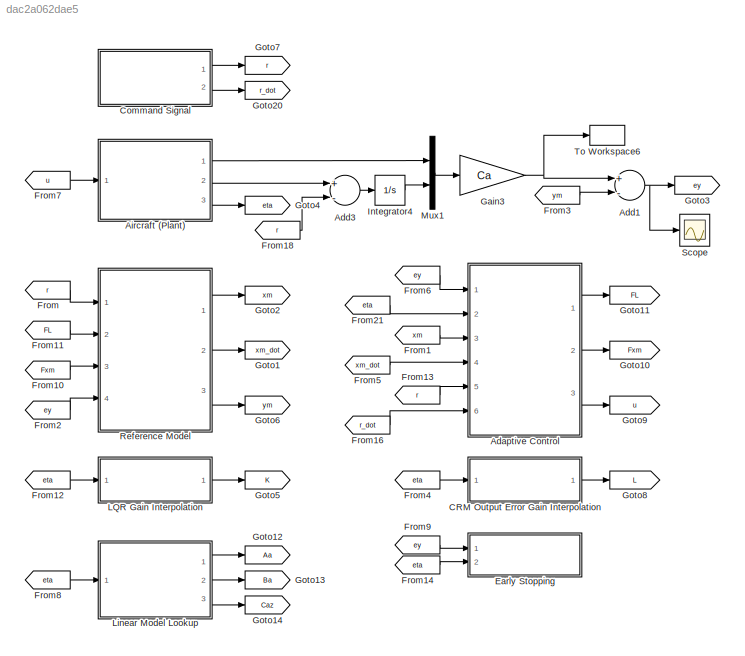
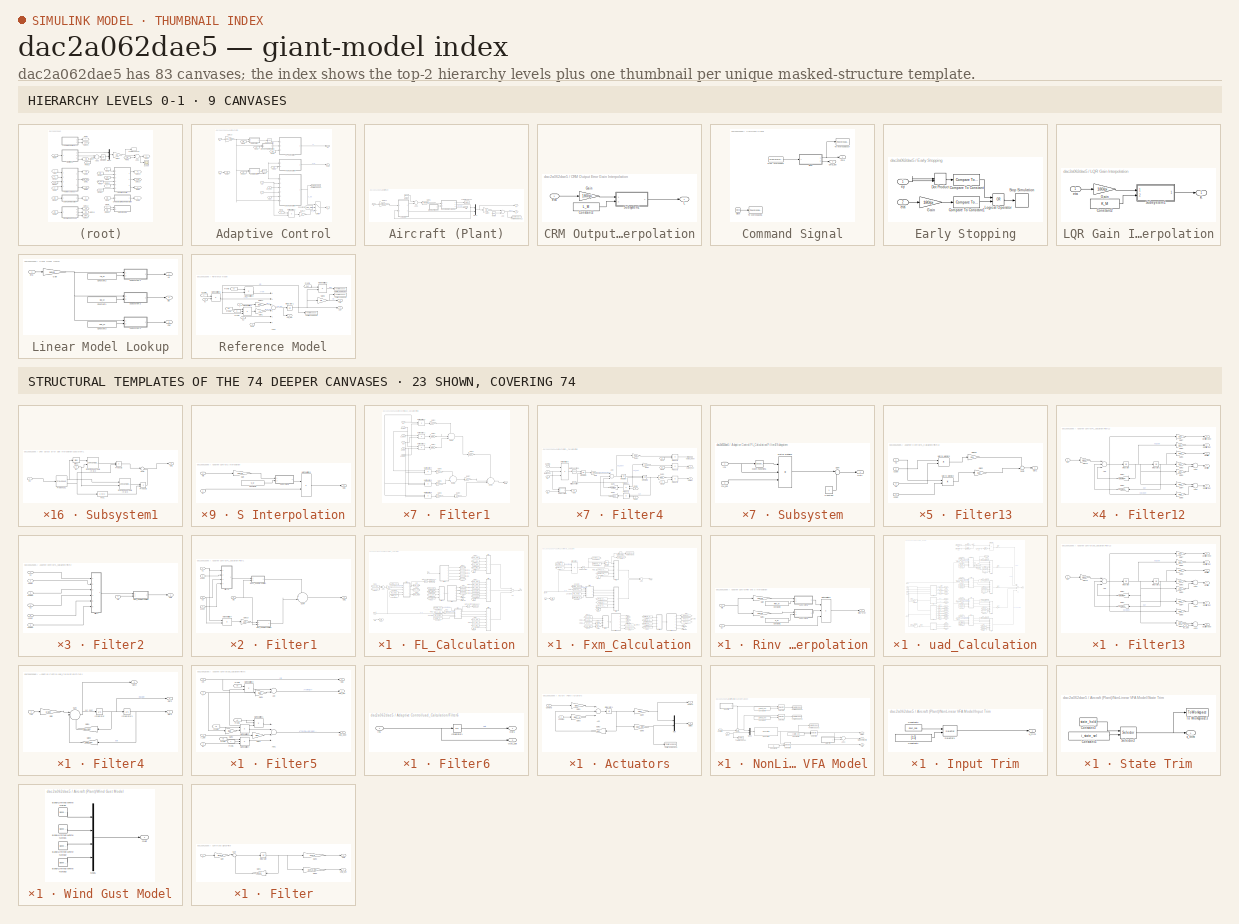
[diagram: thumbnail index - top-2 hierarchy levels (9 canvases) + 23 structural-template representatives of the remaining 74 canvases]
MODEL slx_dac2a062dae5
KIND model
CONFIG AbsTol = auto
CONFIG FixedStep = 0.001
CONFIG MaxStep = auto
CONFIG MinStep = auto
CONFIG RelTol = 1e-3
CONFIG SampleTimeConstraint = Unconstrained
CONFIG Solver = ode23tb
CONFIG SolverMode = SingleTasking
CONFIG SolverName = ode23tb
CONFIG StartTime = 0.0
CONFIG StopTime = tsim
BLOCK [SubSystem] Adaptive Control
  Ports = [6, 3]
  RequestExecContextInheritance = off
  Variant = off
BLOCK [Constant] Adaptive Control/Constant1
  Value = Ada_Flag
  VectorParams1D = off
BLOCK [Outport] Adaptive Control/FL
  IconDisplay = Port number
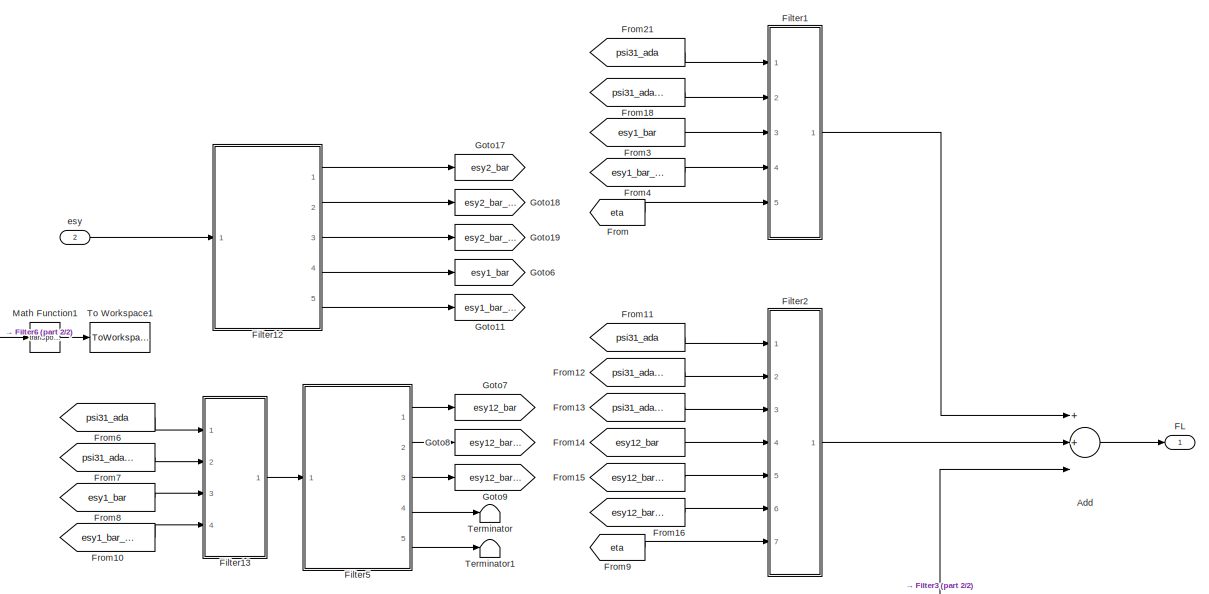
[diagram: Adaptive Control/FL_Calculation - part 1/2, top right region]
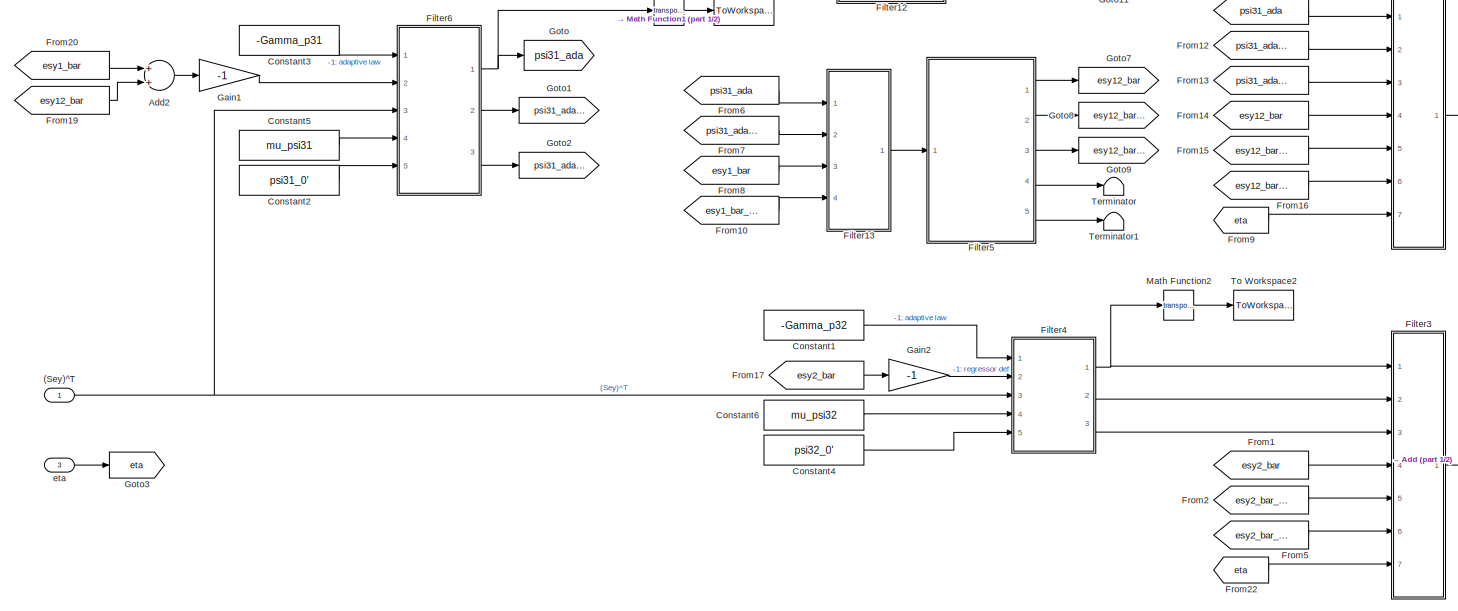
[diagram: Adaptive Control/FL_Calculation - part 2/2, full width, bottom band]
BLOCK [SubSystem] Adaptive Control/FL_Calculation
  Ports = [3, 1]
  RequestExecContextInheritance = off
  Variant = off
BLOCK [Inport] Adaptive Control/FL_Calculation/(Sey)^T
  IconDisplay = Port number
BLOCK [Sum] Adaptive Control/FL_Calculation/Add
  InputSameDT = off
  Inputs = 3
  OutDataTypeStr = Inherit: Inherit via internal rule
  Ports = [3, 1]
  SaturateOnIntegerOverflow = off
BLOCK [Sum] Adaptive Control/FL_Calculation/Add2
  InputSameDT = off
  OutDataTypeStr = Inherit: Inherit via internal rule
  Ports = [2, 1]
  SaturateOnIntegerOverflow = off
BLOCK [Constant] Adaptive Control/FL_Calculation/Constant1
  Value = -Gamma_p32
  VectorParams1D = off
BLOCK [Constant] Adaptive Control/FL_Calculation/Constant2
  Value = psi31_0'
  VectorParams1D = off
BLOCK [Constant] Adaptive Control/FL_Calculation/Constant3
  Value = -Gamma_p31
  VectorParams1D = off
BLOCK [Constant] Adaptive Control/FL_Calculation/Constant4
  Value = psi32_0'
  VectorParams1D = off
BLOCK [Constant] Adaptive Control/FL_Calculation/Constant5
  Value = mu_psi31
  VectorParams1D = off
BLOCK [Constant] Adaptive Control/FL_Calculation/Constant6
  Value = mu_psi32
  VectorParams1D = off
BLOCK [Outport] Adaptive Control/FL_Calculation/FL
  IconDisplay = Port number
BLOCK [SubSystem] Adaptive Control/FL_Calculation/Filter1
  Ports = [5, 1]
  RequestExecContextInheritance = off
  Variant = off
BLOCK [SubSystem] Adaptive Control/FL_Calculation/Filter1/Ba32_aug Interpolation
  Ports = [2, 1]
  RequestExecContextInheritance = off
  Variant = off
BLOCK [Constant] Adaptive Control/FL_Calculation/Filter1/Ba32_aug Interpolation/Constant2
  Value = Ba32_aug_M
BLOCK [Gain] Adaptive Control/FL_Calculation/Filter1/Ba32_aug Interpolation/Gain
  Gain = 180/pi
  OutDataTypeStr = Inherit: Inherit via internal rule
  ParamDataTypeStr = Inherit: Inherit via internal rule
  SaturateOnIntegerOverflow = off
BLOCK [Product] Adaptive Control/FL_Calculation/Filter1/Ba32_aug Interpolation/Matrix Multiply6
  InputSameDT = off
  Multiplication = Matrix(*)
  OutDataTypeStr = Inherit: Inherit via internal rule
  Ports = [2, 1]
  RndMeth = Floor
  SaturateOnIntegerOverflow = off
BLOCK [Outport] Adaptive Control/FL_Calculation/Filter1/Ba32_aug Interpolation/Out1
  IconDisplay = Port number
BLOCK [Inport] Adaptive Control/FL_Calculation/Filter1/Ba32_aug Interpolation/State
  IconDisplay = Port number
BLOCK [SubSystem] Adaptive Control/FL_Calculation/Filter1/Ba32_aug Interpolation/Subsystem1
  Ports = [2, 1]
  RequestExecContextInheritance = off
  Variant = off
BLOCK [Bias] Adaptive Control/FL_Calculation/Filter1/Ba32_aug Interpolation/Subsystem1/Bias1
  Bias = 1
  SaturateOnIntegerOverflow = off
BLOCK [LookupNDDirect] Adaptive Control/FL_Calculation/Filter1/Ba32_aug Interpolation/Subsystem1/Direct Lookup Table (n-D)2
  InputsSelectThisObjectFromTable = 2-D Matrix
  NumberOfTableDimensions = 3
  Ports = [2, 1]
  Table = ahold
  TableIsInput = on
BLOCK [LookupNDDirect] Adaptive Control/FL_Calculation/Filter1/Ba32_aug Interpolation/Subsystem1/Direct Lookup Table (n-D)3
  InputsSelectThisObjectFromTable = 2-D Matrix
  NumberOfTableDimensions = 3
  Ports = [2, 1]
  Table = ahold
  TableIsInput = on
BLOCK [Fcn] Adaptive Control/FL_Calculation/Filter1/Ba32_aug Interpolation/Subsystem1/Fcn1
  Expr = 1-u(1)
BLOCK [Inport] Adaptive Control/FL_Calculation/Filter1/Ba32_aug Interpolation/Subsystem1/In1
  IconDisplay = Port number
BLOCK [Inport] Adaptive Control/FL_Calculation/Filter1/Ba32_aug Interpolation/Subsystem1/In2
  IconDisplay = Port number
  Port = 2
BLOCK [Outport] Adaptive Control/FL_Calculation/Filter1/Ba32_aug Interpolation/Subsystem1/Out1
  IconDisplay = Port number
BLOCK [PreLookup] Adaptive Control/FL_Calculation/Filter1/Ba32_aug Interpolation/Subsystem1/Prelookup1
  BreakpointsData = etasweep
  ExtrapMethod = Linear
  InputPortMap = u0
  Ports = [1, 2]
BLOCK [Product] Adaptive Control/FL_Calculation/Filter1/Ba32_aug Interpolation/Subsystem1/Product2
  InputSameDT = off
  OutDataTypeStr = Inherit: Inherit via internal rule
  Ports = [2, 1]
  SaturateOnIntegerOverflow = off
BLOCK [Product] Adaptive Control/FL_Calculation/Filter1/Ba32_aug Interpolation/Subsystem1/Product3
  InputSameDT = off
  OutDataTypeStr = Inherit: Inherit via internal rule
  Ports = [2, 1]
  SaturateOnIntegerOverflow = off
BLOCK [Sum] Adaptive Control/FL_Calculation/Filter1/Ba32_aug Interpolation/Subsystem1/Sum1
  IconShape = round
  InputSameDT = off
  Inputs = |++
  OutDataTypeStr = Inherit: Inherit via internal rule
  Ports = [2, 1]
  SaturateOnIntegerOverflow = off
BLOCK [Inport] Adaptive Control/FL_Calculation/Filter1/Ba32_aug Interpolation/eta
  IconDisplay = Port number
  Port = 2
BLOCK [SubSystem] Adaptive Control/FL_Calculation/Filter1/Ba3_aug Interpolation
  Ports = [2, 1]
  RequestExecContextInheritance = off
  Variant = off
BLOCK [Constant] Adaptive Control/FL_Calculation/Filter1/Ba3_aug Interpolation/Constant2
  Value = Ba3_aug_M
BLOCK [Gain] Adaptive Control/FL_Calculation/Filter1/Ba3_aug Interpolation/Gain
  Gain = 180/pi
  OutDataTypeStr = Inherit: Inherit via internal rule
  ParamDataTypeStr = Inherit: Inherit via internal rule
  SaturateOnIntegerOverflow = off
BLOCK [Product] Adaptive Control/FL_Calculation/Filter1/Ba3_aug Interpolation/Matrix Multiply6
  InputSameDT = off
  Multiplication = Matrix(*)
  OutDataTypeStr = Inherit: Inherit via internal rule
  Ports = [2, 1]
  RndMeth = Floor
  SaturateOnIntegerOverflow = off
BLOCK [Outport] Adaptive Control/FL_Calculation/Filter1/Ba3_aug Interpolation/Out1
  IconDisplay = Port number
BLOCK [Inport] Adaptive Control/FL_Calculation/Filter1/Ba3_aug Interpolation/State
  IconDisplay = Port number
BLOCK [SubSystem] Adaptive Control/FL_Calculation/Filter1/Ba3_aug Interpolation/Subsystem1
  Ports = [2, 1]
  RequestExecContextInheritance = off
  Variant = off
BLOCK [Bias] Adaptive Control/FL_Calculation/Filter1/Ba3_aug Interpolation/Subsystem1/Bias1
  Bias = 1
  SaturateOnIntegerOverflow = off
BLOCK [LookupNDDirect] Adaptive Control/FL_Calculation/Filter1/Ba3_aug Interpolation/Subsystem1/Direct Lookup Table (n-D)2
  InputsSelectThisObjectFromTable = 2-D Matrix
  NumberOfTableDimensions = 3
  Ports = [2, 1]
  Table = ahold
  TableIsInput = on
BLOCK [LookupNDDirect] Adaptive Control/FL_Calculation/Filter1/Ba3_aug Interpolation/Subsystem1/Direct Lookup Table (n-D)3
  InputsSelectThisObjectFromTable = 2-D Matrix
  NumberOfTableDimensions = 3
  Ports = [2, 1]
  Table = ahold
  TableIsInput = on
BLOCK [Fcn] Adaptive Control/FL_Calculation/Filter1/Ba3_aug Interpolation/Subsystem1/Fcn1
  Expr = 1-u(1)
BLOCK [Inport] Adaptive Control/FL_Calculation/Filter1/Ba3_aug Interpolation/Subsystem1/In1
  IconDisplay = Port number
BLOCK [Inport] Adaptive Control/FL_Calculation/Filter1/Ba3_aug Interpolation/Subsystem1/In2
  IconDisplay = Port number
  Port = 2
BLOCK [Outport] Adaptive Control/FL_Calculation/Filter1/Ba3_aug Interpolation/Subsystem1/Out1
  IconDisplay = Port number
BLOCK [PreLookup] Adaptive Control/FL_Calculation/Filter1/Ba3_aug Interpolation/Subsystem1/Prelookup1
  BreakpointsData = etasweep
  ExtrapMethod = Linear
  InputPortMap = u0
  Ports = [1, 2]
BLOCK [Product] Adaptive Control/FL_Calculation/Filter1/Ba3_aug Interpolation/Subsystem1/Product2
  InputSameDT = off
  OutDataTypeStr = Inherit: Inherit via internal rule
  Ports = [2, 1]
  SaturateOnIntegerOverflow = off
BLOCK [Product] Adaptive Control/FL_Calculation/Filter1/Ba3_aug Interpolation/Subsystem1/Product3
  InputSameDT = off
  OutDataTypeStr = Inherit: Inherit via internal rule
  Ports = [2, 1]
  SaturateOnIntegerOverflow = off
BLOCK [Sum] Adaptive Control/FL_Calculation/Filter1/Ba3_aug Interpolation/Subsystem1/Sum1
  IconShape = round
  InputSameDT = off
  Inputs = |++
  OutDataTypeStr = Inherit: Inherit via internal rule
  Ports = [2, 1]
  SaturateOnIntegerOverflow = off
BLOCK [Inport] Adaptive Control/FL_Calculation/Filter1/Ba3_aug Interpolation/eta
  IconDisplay = Port number
  Port = 2
BLOCK [SubSystem] Adaptive Control/FL_Calculation/Filter1/Filter15
  Ports = [4, 1]
  RequestExecContextInheritance = off
  Variant = off
BLOCK [Gain] Adaptive Control/FL_Calculation/Filter1/Filter15/Gain2
  Gain = d10
  OutDataTypeStr = Inherit: Inherit via internal rule
  ParamDataTypeStr = Inherit: Inherit via internal rule
  SaturateOnIntegerOverflow = off
BLOCK [Gain] Adaptive Control/FL_Calculation/Filter1/Filter15/Gain25
  Gain = d11
  OutDataTypeStr = Inherit: Inherit via internal rule
  ParamDataTypeStr = Inherit: Inherit via internal rule
  SaturateOnIntegerOverflow = off
BLOCK [Product] Adaptive Control/FL_Calculation/Filter1/Filter15/Matrix Multiply2
  InputSameDT = off
  Multiplication = Matrix(*)
  OutDataTypeStr = Inherit: Inherit via internal rule
  Ports = [2, 1]
  RndMeth = Floor
  SaturateOnIntegerOverflow = off
BLOCK [Product] Adaptive Control/FL_Calculation/Filter1/Filter15/Matrix Multiply3
  InputSameDT = off
  Multiplication = Matrix(*)
  OutDataTypeStr = Inherit: Inherit via internal rule
  Ports = [2, 1]
  RndMeth = Floor
  SaturateOnIntegerOverflow = off
BLOCK [Outport] Adaptive Control/FL_Calculation/Filter1/Filter15/Out1
  IconDisplay = Port number
BLOCK [Sum] Adaptive Control/FL_Calculation/Filter1/Filter15/Sum2
  IconShape = round
  InputSameDT = off
  Inputs = ++|
  OutDataTypeStr = Inherit: Inherit via internal rule
  Ports = [2, 1]
  SaturateOnIntegerOverflow = off
BLOCK [Inport] Adaptive Control/FL_Calculation/Filter1/Filter15/u1
  IconDisplay = Port number
BLOCK [Inport] Adaptive Control/FL_Calculation/Filter1/Filter15/u1dot
  IconDisplay = Port number
  Port = 2
BLOCK [Inport] Adaptive Control/FL_Calculation/Filter1/Filter15/u2
  IconDisplay = Port number
  Port = 3
BLOCK [Inport] Adaptive Control/FL_Calculation/Filter1/Filter15/u2dot
  IconDisplay = Port number
  Port = 4
BLOCK [Gain] Adaptive Control/FL_Calculation/Filter1/Gain10
  Gain = a20
  OutDataTypeStr = Inherit: Inherit via internal rule
  ParamDataTypeStr = Inherit: Inherit via internal rule
  SaturateOnIntegerOverflow = off
BLOCK [Product] Adaptive Control/FL_Calculation/Filter1/Matrix Multiply7
  InputSameDT = off
  Multiplication = Matrix(*)
  OutDataTypeStr = Inherit: Inherit via internal rule
  Ports = [2, 1]
  RndMeth = Floor
  SaturateOnIntegerOverflow = off
BLOCK [Outport] Adaptive Control/FL_Calculation/Filter1/Out1
  IconDisplay = Port number
BLOCK [Sum] Adaptive Control/FL_Calculation/Filter1/Sum4
  IconShape = round
  InputSameDT = off
  Inputs = ++|
  OutDataTypeStr = Inherit: Inherit via internal rule
  Ports = [2, 1]
  SaturateOnIntegerOverflow = off
BLOCK [Inport] Adaptive Control/FL_Calculation/Filter1/eta
  IconDisplay = Port number
  Port = 5
BLOCK [Inport] Adaptive Control/FL_Calculation/Filter1/u1
  IconDisplay = Port number
BLOCK [Inport] Adaptive Control/FL_Calculation/Filter1/u1dot
  IconDisplay = Port number
  Port = 2
BLOCK [Inport] Adaptive Control/FL_Calculation/Filter1/u2
  IconDisplay = Port number
  Port = 3
BLOCK [Inport] Adaptive Control/FL_Calculation/Filter1/u2dot
  IconDisplay = Port number
  Port = 4
BLOCK [SubSystem] Adaptive Control/FL_Calculation/Filter12
  Ports = [1, 5]
  RequestExecContextInheritance = off
  Variant = off
BLOCK [Sum] Adaptive Control/FL_Calculation/Filter12/Add
  InputSameDT = off
  Inputs = +--
  OutDataTypeStr = Inherit: Inherit via internal rule
  Ports = [3, 1]
  SaturateOnIntegerOverflow = off
BLOCK [Sum] Adaptive Control/FL_Calculation/Filter12/Add1
  InputSameDT = off
  OutDataTypeStr = Inherit: Inherit via internal rule
  Ports = [2, 1]
  SaturateOnIntegerOverflow = off
BLOCK [Sum] Adaptive Control/FL_Calculation/Filter12/Add2
  InputSameDT = off
  OutDataTypeStr = Inherit: Inherit via internal rule
  Ports = [2, 1]
  SaturateOnIntegerOverflow = off
BLOCK [Gain] Adaptive Control/FL_Calculation/Filter12/Gain1
  Gain = a21/a22
  OutDataTypeStr = Inherit: Inherit via internal rule
  ParamDataTypeStr = Inherit: Inherit via internal rule
  SaturateOnIntegerOverflow = off
BLOCK [Gain] Adaptive Control/FL_Calculation/Filter12/Gain10
  Gain = 1/a22
  OutDataTypeStr = Inherit: Inherit via internal rule
  ParamDataTypeStr = Inherit: Inherit via internal rule
  SaturateOnIntegerOverflow = off
BLOCK [Gain] Adaptive Control/FL_Calculation/Filter12/Gain2
  Gain = a20/a22
  OutDataTypeStr = Inherit: Inherit via internal rule
  ParamDataTypeStr = Inherit: Inherit via internal rule
  SaturateOnIntegerOverflow = off
BLOCK [Gain] Adaptive Control/FL_Calculation/Filter12/Gain3
  Gain = a21
  OutDataTypeStr = Inherit: Inherit via internal rule
  ParamDataTypeStr = Inherit: Inherit via internal rule
  SaturateOnIntegerOverflow = off
BLOCK [Gain] Adaptive Control/FL_Calculation/Filter12/Gain4
  Gain = a21
  OutDataTypeStr = Inherit: Inherit via internal rule
  ParamDataTypeStr = Inherit: Inherit via internal rule
  SaturateOnIntegerOverflow = off
BLOCK [Gain] Adaptive Control/FL_Calculation/Filter12/Gain5
  Gain = a22
  OutDataTypeStr = Inherit: Inherit via internal rule
  ParamDataTypeStr = Inherit: Inherit via internal rule
  SaturateOnIntegerOverflow = off
BLOCK [Gain] Adaptive Control/FL_Calculation/Filter12/Gain6
  Gain = a22
  OutDataTypeStr = Inherit: Inherit via internal rule
  ParamDataTypeStr = Inherit: Inherit via internal rule
  SaturateOnIntegerOverflow = off
BLOCK [Gain] Adaptive Control/FL_Calculation/Filter12/Gain7
  Gain = a22
  OutDataTypeStr = Inherit: Inherit via internal rule
  ParamDataTypeStr = Inherit: Inherit via internal rule
  SaturateOnIntegerOverflow = off
BLOCK [Gain] Adaptive Control/FL_Calculation/Filter12/Gain8
  Gain = a22
  OutDataTypeStr = Inherit: Inherit via internal rule
  ParamDataTypeStr = Inherit: Inherit via internal rule
  SaturateOnIntegerOverflow = off
BLOCK [Gain] Adaptive Control/FL_Calculation/Filter12/Gain9
  Gain = a22
  OutDataTypeStr = Inherit: Inherit via internal rule
  ParamDataTypeStr = Inherit: Inherit via internal rule
  SaturateOnIntegerOverflow = off
BLOCK [Inport] Adaptive Control/FL_Calculation/Filter12/In1
  IconDisplay = Port number
BLOCK [Integrator] Adaptive Control/FL_Calculation/Filter12/Integrator
  Ports = [1, 1]
BLOCK [Integrator] Adaptive Control/FL_Calculation/Filter12/Integrator1
  Ports = [1, 1]
BLOCK [Outport] Adaptive Control/FL_Calculation/Filter12/pi20 filter
  IconDisplay = Port number
BLOCK [Outport] Adaptive Control/FL_Calculation/Filter12/pi20 filter ddot
  IconDisplay = Port number
  Port = 3
BLOCK [Outport] Adaptive Control/FL_Calculation/Filter12/pi20 filter dot
  IconDisplay = Port number
  Port = 2
BLOCK [Outport] Adaptive Control/FL_Calculation/Filter12/pi21 filter
  IconDisplay = Port number
  Port = 4
BLOCK [Outport] Adaptive Control/FL_Calculation/Filter12/pi21 filter dot
  IconDisplay = Port number
  Port = 5
BLOCK [SubSystem] Adaptive Control/FL_Calculation/Filter13
  Ports = [4, 1]
  RequestExecContextInheritance = off
  Variant = off
BLOCK [Gain] Adaptive Control/FL_Calculation/Filter13/Gain2
  Gain = d10
  OutDataTypeStr = Inherit: Inherit via internal rule
  ParamDataTypeStr = Inherit: Inherit via internal rule
  SaturateOnIntegerOverflow = off
BLOCK [Gain] Adaptive Control/FL_Calculation/Filter13/Gain25
  Gain = d11
  OutDataTypeStr = Inherit: Inherit via internal rule
  ParamDataTypeStr = Inherit: Inherit via internal rule
  SaturateOnIntegerOverflow = off
BLOCK [Product] Adaptive Control/FL_Calculation/Filter13/Matrix Multiply2
  InputSameDT = off
  Multiplication = Matrix(*)
  OutDataTypeStr = Inherit: Inherit via internal rule
  Ports = [2, 1]
  RndMeth = Floor
  SaturateOnIntegerOverflow = off
BLOCK [Product] Adaptive Control/FL_Calculation/Filter13/Matrix Multiply3
  InputSameDT = off
  Multiplication = Matrix(*)
  OutDataTypeStr = Inherit: Inherit via internal rule
  Ports = [2, 1]
  RndMeth = Floor
  SaturateOnIntegerOverflow = off
BLOCK [Outport] Adaptive Control/FL_Calculation/Filter13/Out1
  IconDisplay = Port number
BLOCK [Sum] Adaptive Control/FL_Calculation/Filter13/Sum2
  IconShape = round
  InputSameDT = off
  Inputs = ++|
  OutDataTypeStr = Inherit: Inherit via internal rule
  Ports = [2, 1]
  SaturateOnIntegerOverflow = off
BLOCK [Inport] Adaptive Control/FL_Calculation/Filter13/u1
  IconDisplay = Port number
BLOCK [Inport] Adaptive Control/FL_Calculation/Filter13/u1dot
  IconDisplay = Port number
  Port = 2
BLOCK [Inport] Adaptive Control/FL_Calculation/Filter13/u2
  IconDisplay = Port number
  Port = 3
BLOCK [Inport] Adaptive Control/FL_Calculation/Filter13/u2dot
  IconDisplay = Port number
  Port = 4
BLOCK [SubSystem] Adaptive Control/FL_Calculation/Filter2
  Ports = [7, 1]
  RequestExecContextInheritance = off
  Variant = off
BLOCK [SubSystem] Adaptive Control/FL_Calculation/Filter2/Ba3_aug Interpolation
  Ports = [2, 1]
  RequestExecContextInheritance = off
  Variant = off
BLOCK [Constant] Adaptive Control/FL_Calculation/Filter2/Ba3_aug Interpolation/Constant2
  Value = Ba3_aug_M
BLOCK [Gain] Adaptive Control/FL_Calculation/Filter2/Ba3_aug Interpolation/Gain
  Gain = 180/pi
  OutDataTypeStr = Inherit: Inherit via internal rule
  ParamDataTypeStr = Inherit: Inherit via internal rule
  SaturateOnIntegerOverflow = off
BLOCK [Product] Adaptive Control/FL_Calculation/Filter2/Ba3_aug Interpolation/Matrix Multiply6
  InputSameDT = off
  Multiplication = Matrix(*)
  OutDataTypeStr = Inherit: Inherit via internal rule
  Ports = [2, 1]
  RndMeth = Floor
  SaturateOnIntegerOverflow = off
BLOCK [Outport] Adaptive Control/FL_Calculation/Filter2/Ba3_aug Interpolation/Out1
  IconDisplay = Port number
BLOCK [Inport] Adaptive Control/FL_Calculation/Filter2/Ba3_aug Interpolation/State
  IconDisplay = Port number
BLOCK [SubSystem] Adaptive Control/FL_Calculation/Filter2/Ba3_aug Interpolation/Subsystem1
  Ports = [2, 1]
  RequestExecContextInheritance = off
  Variant = off
BLOCK [Bias] Adaptive Control/FL_Calculation/Filter2/Ba3_aug Interpolation/Subsystem1/Bias1
  Bias = 1
  SaturateOnIntegerOverflow = off
BLOCK [LookupNDDirect] Adaptive Control/FL_Calculation/Filter2/Ba3_aug Interpolation/Subsystem1/Direct Lookup Table (n-D)2
  InputsSelectThisObjectFromTable = 2-D Matrix
  NumberOfTableDimensions = 3
  Ports = [2, 1]
  Table = ahold
  TableIsInput = on
BLOCK [LookupNDDirect] Adaptive Control/FL_Calculation/Filter2/Ba3_aug Interpolation/Subsystem1/Direct Lookup Table (n-D)3
  InputsSelectThisObjectFromTable = 2-D Matrix
  NumberOfTableDimensions = 3
  Ports = [2, 1]
  Table = ahold
  TableIsInput = on
BLOCK [Fcn] Adaptive Control/FL_Calculation/Filter2/Ba3_aug Interpolation/Subsystem1/Fcn1
  Expr = 1-u(1)
BLOCK [Inport] Adaptive Control/FL_Calculation/Filter2/Ba3_aug Interpolation/Subsystem1/In1
  IconDisplay = Port number
BLOCK [Inport] Adaptive Control/FL_Calculation/Filter2/Ba3_aug Interpolation/Subsystem1/In2
  IconDisplay = Port number
  Port = 2
BLOCK [Outport] Adaptive Control/FL_Calculation/Filter2/Ba3_aug Interpolation/Subsystem1/Out1
  IconDisplay = Port number
BLOCK [PreLookup] Adaptive Control/FL_Calculation/Filter2/Ba3_aug Interpolation/Subsystem1/Prelookup1
  BreakpointsData = etasweep
  ExtrapMethod = Linear
  InputPortMap = u0
  Ports = [1, 2]
BLOCK [Product] Adaptive Control/FL_Calculation/Filter2/Ba3_aug Interpolation/Subsystem1/Product2
  InputSameDT = off
  OutDataTypeStr = Inherit: Inherit via internal rule
  Ports = [2, 1]
  SaturateOnIntegerOverflow = off
BLOCK [Product] Adaptive Control/FL_Calculation/Filter2/Ba3_aug Interpolation/Subsystem1/Product3
  InputSameDT = off
  OutDataTypeStr = Inherit: Inherit via internal rule
  Ports = [2, 1]
  SaturateOnIntegerOverflow = off
BLOCK [Sum] Adaptive Control/FL_Calculation/Filter2/Ba3_aug Interpolation/Subsystem1/Sum1
  IconShape = round
  InputSameDT = off
  Inputs = |++
  OutDataTypeStr = Inherit: Inherit via internal rule
  Ports = [2, 1]
  SaturateOnIntegerOverflow = off
BLOCK [Inport] Adaptive Control/FL_Calculation/Filter2/Ba3_aug Interpolation/eta
  IconDisplay = Port number
  Port = 2
BLOCK [SubSystem] Adaptive Control/FL_Calculation/Filter2/Filter1
  Ports = [6, 1]
  RequestExecContextInheritance = off
  Variant = off
BLOCK [Gain] Adaptive Control/FL_Calculation/Filter2/Filter1/Gain1
  Gain = d21
  OutDataTypeStr = Inherit: Inherit via internal rule
  ParamDataTypeStr = Inherit: Inherit via internal rule
  SaturateOnIntegerOverflow = off
BLOCK [Gain] Adaptive Control/FL_Calculation/Filter2/Filter1/Gain2
  Gain = d20
  OutDataTypeStr = Inherit: Inherit via internal rule
  ParamDataTypeStr = Inherit: Inherit via internal rule
  SaturateOnIntegerOverflow = off
BLOCK [Gain] Adaptive Control/FL_Calculation/Filter2/Filter1/Gain3
  Gain = d22
  OutDataTypeStr = Inherit: Inherit via internal rule
  ParamDataTypeStr = Inherit: Inherit via internal rule
  SaturateOnIntegerOverflow = off
BLOCK [Gain] Adaptive Control/FL_Calculation/Filter2/Filter1/Gain4
  Gain = a22
  OutDataTypeStr = Inherit: Inherit via internal rule
  ParamDataTypeStr = Inherit: Inherit via internal rule
  SaturateOnIntegerOverflow = off
BLOCK [Gain] Adaptive Control/FL_Calculation/Filter2/Filter1/Gain5
  Gain = d11
  OutDataTypeStr = Inherit: Inherit via internal rule
  ParamDataTypeStr = Inherit: Inherit via internal rule
  SaturateOnIntegerOverflow = off
BLOCK [Gain] Adaptive Control/FL_Calculation/Filter2/Filter1/Gain6
  Gain = d10
  OutDataTypeStr = Inherit: Inherit via internal rule
  ParamDataTypeStr = Inherit: Inherit via internal rule
  SaturateOnIntegerOverflow = off
BLOCK [Gain] Adaptive Control/FL_Calculation/Filter2/Filter1/Gain7
  Gain = a21
  OutDataTypeStr = Inherit: Inherit via internal rule
  ParamDataTypeStr = Inherit: Inherit via internal rule
  SaturateOnIntegerOverflow = off
BLOCK [Gain] Adaptive Control/FL_Calculation/Filter2/Filter1/Gain8
  Gain = d00
  OutDataTypeStr = Inherit: Inherit via internal rule
  ParamDataTypeStr = Inherit: Inherit via internal rule
  SaturateOnIntegerOverflow = off
BLOCK [Gain] Adaptive Control/FL_Calculation/Filter2/Filter1/Gain9
  Gain = a20
  OutDataTypeStr = Inherit: Inherit via internal rule
  ParamDataTypeStr = Inherit: Inherit via internal rule
  SaturateOnIntegerOverflow = off
BLOCK [Product] Adaptive Control/FL_Calculation/Filter2/Filter1/Matrix Multiply1
  InputSameDT = off
  Multiplication = Matrix(*)
  OutDataTypeStr = Inherit: Inherit via internal rule
  Ports = [2, 1]
  RndMeth = Floor
  SaturateOnIntegerOverflow = off
BLOCK [Product] Adaptive Control/FL_Calculation/Filter2/Filter1/Matrix Multiply2
  InputSameDT = off
  Multiplication = Matrix(*)
  OutDataTypeStr = Inherit: Inherit via internal rule
  Ports = [2, 1]
  RndMeth = Floor
  SaturateOnIntegerOverflow = off
BLOCK [Product] Adaptive Control/FL_Calculation/Filter2/Filter1/Matrix Multiply3
  InputSameDT = off
  Multiplication = Matrix(*)
  OutDataTypeStr = Inherit: Inherit via internal rule
  Ports = [2, 1]
  RndMeth = Floor
  SaturateOnIntegerOverflow = off
BLOCK [Product] Adaptive Control/FL_Calculation/Filter2/Filter1/Matrix Multiply4
  InputSameDT = off
  Multiplication = Matrix(*)
  OutDataTypeStr = Inherit: Inherit via internal rule
  Ports = [2, 1]
  RndMeth = Floor
  SaturateOnIntegerOverflow = off
BLOCK [Product] Adaptive Control/FL_Calculation/Filter2/Filter1/Matrix Multiply5
  InputSameDT = off
  Multiplication = Matrix(*)
  OutDataTypeStr = Inherit: Inherit via internal rule
  Ports = [2, 1]
  RndMeth = Floor
  SaturateOnIntegerOverflow = off
BLOCK [Product] Adaptive Control/FL_Calculation/Filter2/Filter1/Matrix Multiply6
  InputSameDT = off
  Multiplication = Matrix(*)
  OutDataTypeStr = Inherit: Inherit via internal rule
  Ports = [2, 1]
  RndMeth = Floor
  SaturateOnIntegerOverflow = off
BLOCK [Outport] Adaptive Control/FL_Calculation/Filter2/Filter1/Out1
  IconDisplay = Port number
BLOCK [Sum] Adaptive Control/FL_Calculation/Filter2/Filter1/Sum1
  IconShape = round
  InputSameDT = off
  Inputs = +++|
  OutDataTypeStr = Inherit: Inherit via internal rule
  Ports = [3, 1]
  SaturateOnIntegerOverflow = off
BLOCK [Sum] Adaptive Control/FL_Calculation/Filter2/Filter1/Sum2
  IconShape = round
  InputSameDT = off
  Inputs = +++|
  OutDataTypeStr = Inherit: Inherit via internal rule
  Ports = [3, 1]
  SaturateOnIntegerOverflow = off
BLOCK [Sum] Adaptive Control/FL_Calculation/Filter2/Filter1/Sum3
  IconShape = round
  InputSameDT = off
  Inputs = ++|
  OutDataTypeStr = Inherit: Inherit via internal rule
  Ports = [2, 1]
  SaturateOnIntegerOverflow = off
BLOCK [Inport] Adaptive Control/FL_Calculation/Filter2/Filter1/u1
  IconDisplay = Port number
BLOCK [Inport] Adaptive Control/FL_Calculation/Filter2/Filter1/u1ddot
  IconDisplay = Port number
  Port = 3
BLOCK [Inport] Adaptive Control/FL_Calculation/Filter2/Filter1/u1dot
  IconDisplay = Port number
  Port = 2
BLOCK [Inport] Adaptive Control/FL_Calculation/Filter2/Filter1/u2
  IconDisplay = Port number
  Port = 4
BLOCK [Inport] Adaptive Control/FL_Calculation/Filter2/Filter1/u2ddot
  IconDisplay = Port number
  Port = 6
BLOCK [Inport] Adaptive Control/FL_Calculation/Filter2/Filter1/u2dot
  IconDisplay = Port number
  Port = 5
BLOCK [Outport] Adaptive Control/FL_Calculation/Filter2/Out1
  IconDisplay = Port number
BLOCK [Inport] Adaptive Control/FL_Calculation/Filter2/eta
  IconDisplay = Port number
  Port = 7
BLOCK [Inport] Adaptive Control/FL_Calculation/Filter2/u1
  IconDisplay = Port number
BLOCK [Inport] Adaptive Control/FL_Calculation/Filter2/u1ddot
  IconDisplay = Port number
  Port = 3
BLOCK [Inport] Adaptive Control/FL_Calculation/Filter2/u1dot
  IconDisplay = Port number
  Port = 2
BLOCK [Inport] Adaptive Control/FL_Calculation/Filter2/u2
  IconDisplay = Port number
  Port = 4
BLOCK [Inport] Adaptive Control/FL_Calculation/Filter2/u2ddot
  IconDisplay = Port number
  Port = 6
BLOCK [Inport] Adaptive Control/FL_Calculation/Filter2/u2dot
  IconDisplay = Port number
  Port = 5
BLOCK [SubSystem] Adaptive Control/FL_Calculation/Filter3
  Ports = [7, 1]
  RequestExecContextInheritance = off
  Variant = off
BLOCK [SubSystem] Adaptive Control/FL_Calculation/Filter3/Ba3_aug Interpolation
  Ports = [2, 1]
  RequestExecContextInheritance = off
  Variant = off
BLOCK [Constant] Adaptive Control/FL_Calculation/Filter3/Ba3_aug Interpolation/Constant2
  Value = Ba3_aug_M
BLOCK [Gain] Adaptive Control/FL_Calculation/Filter3/Ba3_aug Interpolation/Gain
  Gain = 180/pi
  OutDataTypeStr = Inherit: Inherit via internal rule
  ParamDataTypeStr = Inherit: Inherit via internal rule
  SaturateOnIntegerOverflow = off
BLOCK [Product] Adaptive Control/FL_Calculation/Filter3/Ba3_aug Interpolation/Matrix Multiply6
  InputSameDT = off
  Multiplication = Matrix(*)
  OutDataTypeStr = Inherit: Inherit via internal rule
  Ports = [2, 1]
  RndMeth = Floor
  SaturateOnIntegerOverflow = off
BLOCK [Outport] Adaptive Control/FL_Calculation/Filter3/Ba3_aug Interpolation/Out1
  IconDisplay = Port number
BLOCK [Inport] Adaptive Control/FL_Calculation/Filter3/Ba3_aug Interpolation/State
  IconDisplay = Port number
BLOCK [SubSystem] Adaptive Control/FL_Calculation/Filter3/Ba3_aug Interpolation/Subsystem1
  Ports = [2, 1]
  RequestExecContextInheritance = off
  Variant = off
BLOCK [Bias] Adaptive Control/FL_Calculation/Filter3/Ba3_aug Interpolation/Subsystem1/Bias1
  Bias = 1
  SaturateOnIntegerOverflow = off
BLOCK [LookupNDDirect] Adaptive Control/FL_Calculation/Filter3/Ba3_aug Interpolation/Subsystem1/Direct Lookup Table (n-D)2
  InputsSelectThisObjectFromTable = 2-D Matrix
  NumberOfTableDimensions = 3
  Ports = [2, 1]
  Table = ahold
  TableIsInput = on
BLOCK [LookupNDDirect] Adaptive Control/FL_Calculation/Filter3/Ba3_aug Interpolation/Subsystem1/Direct Lookup Table (n-D)3
  InputsSelectThisObjectFromTable = 2-D Matrix
  NumberOfTableDimensions = 3
  Ports = [2, 1]
  Table = ahold
  TableIsInput = on
BLOCK [Fcn] Adaptive Control/FL_Calculation/Filter3/Ba3_aug Interpolation/Subsystem1/Fcn1
  Expr = 1-u(1)
BLOCK [Inport] Adaptive Control/FL_Calculation/Filter3/Ba3_aug Interpolation/Subsystem1/In1
  IconDisplay = Port number
BLOCK [Inport] Adaptive Control/FL_Calculation/Filter3/Ba3_aug Interpolation/Subsystem1/In2
  IconDisplay = Port number
  Port = 2
BLOCK [Outport] Adaptive Control/FL_Calculation/Filter3/Ba3_aug Interpolation/Subsystem1/Out1
  IconDisplay = Port number
BLOCK [PreLookup] Adaptive Control/FL_Calculation/Filter3/Ba3_aug Interpolation/Subsystem1/Prelookup1
  BreakpointsData = etasweep
  ExtrapMethod = Linear
  InputPortMap = u0
  Ports = [1, 2]
BLOCK [Product] Adaptive Control/FL_Calculation/Filter3/Ba3_aug Interpolation/Subsystem1/Product2
  InputSameDT = off
  OutDataTypeStr = Inherit: Inherit via internal rule
  Ports = [2, 1]
  SaturateOnIntegerOverflow = off
BLOCK [Product] Adaptive Control/FL_Calculation/Filter3/Ba3_aug Interpolation/Subsystem1/Product3
  InputSameDT = off
  OutDataTypeStr = Inherit: Inherit via internal rule
  Ports = [2, 1]
  SaturateOnIntegerOverflow = off
BLOCK [Sum] Adaptive Control/FL_Calculation/Filter3/Ba3_aug Interpolation/Subsystem1/Sum1
  IconShape = round
  InputSameDT = off
  Inputs = |++
  OutDataTypeStr = Inherit: Inherit via internal rule
  Ports = [2, 1]
  SaturateOnIntegerOverflow = off
BLOCK [Inport] Adaptive Control/FL_Calculation/Filter3/Ba3_aug Interpolation/eta
  IconDisplay = Port number
  Port = 2
BLOCK [SubSystem] Adaptive Control/FL_Calculation/Filter3/Filter1
  Ports = [6, 1]
  RequestExecContextInheritance = off
  Variant = off
BLOCK [Gain] Adaptive Control/FL_Calculation/Filter3/Filter1/Gain1
  Gain = d21
  OutDataTypeStr = Inherit: Inherit via internal rule
  ParamDataTypeStr = Inherit: Inherit via internal rule
  SaturateOnIntegerOverflow = off
BLOCK [Gain] Adaptive Control/FL_Calculation/Filter3/Filter1/Gain2
  Gain = d20
  OutDataTypeStr = Inherit: Inherit via internal rule
  ParamDataTypeStr = Inherit: Inherit via internal rule
  SaturateOnIntegerOverflow = off
BLOCK [Gain] Adaptive Control/FL_Calculation/Filter3/Filter1/Gain3
  Gain = d22
  OutDataTypeStr = Inherit: Inherit via internal rule
  ParamDataTypeStr = Inherit: Inherit via internal rule
  SaturateOnIntegerOverflow = off
BLOCK [Gain] Adaptive Control/FL_Calculation/Filter3/Filter1/Gain4
  Gain = a22
  OutDataTypeStr = Inherit: Inherit via internal rule
  ParamDataTypeStr = Inherit: Inherit via internal rule
  SaturateOnIntegerOverflow = off
BLOCK [Gain] Adaptive Control/FL_Calculation/Filter3/Filter1/Gain5
  Gain = d11
  OutDataTypeStr = Inherit: Inherit via internal rule
  ParamDataTypeStr = Inherit: Inherit via internal rule
  SaturateOnIntegerOverflow = off
BLOCK [Gain] Adaptive Control/FL_Calculation/Filter3/Filter1/Gain6
  Gain = d10
  OutDataTypeStr = Inherit: Inherit via internal rule
  ParamDataTypeStr = Inherit: Inherit via internal rule
  SaturateOnIntegerOverflow = off
BLOCK [Gain] Adaptive Control/FL_Calculation/Filter3/Filter1/Gain7
  Gain = a21
  OutDataTypeStr = Inherit: Inherit via internal rule
  ParamDataTypeStr = Inherit: Inherit via internal rule
  SaturateOnIntegerOverflow = off
BLOCK [Gain] Adaptive Control/FL_Calculation/Filter3/Filter1/Gain8
  Gain = d00
  OutDataTypeStr = Inherit: Inherit via internal rule
  ParamDataTypeStr = Inherit: Inherit via internal rule
  SaturateOnIntegerOverflow = off
BLOCK [Gain] Adaptive Control/FL_Calculation/Filter3/Filter1/Gain9
  Gain = a20
  OutDataTypeStr = Inherit: Inherit via internal rule
  ParamDataTypeStr = Inherit: Inherit via internal rule
  SaturateOnIntegerOverflow = off
BLOCK [Product] Adaptive Control/FL_Calculation/Filter3/Filter1/Matrix Multiply1
  InputSameDT = off
  Multiplication = Matrix(*)
  OutDataTypeStr = Inherit: Inherit via internal rule
  Ports = [2, 1]
  RndMeth = Floor
  SaturateOnIntegerOverflow = off
BLOCK [Product] Adaptive Control/FL_Calculation/Filter3/Filter1/Matrix Multiply2
  InputSameDT = off
  Multiplication = Matrix(*)
  OutDataTypeStr = Inherit: Inherit via internal rule
  Ports = [2, 1]
  RndMeth = Floor
  SaturateOnIntegerOverflow = off
BLOCK [Product] Adaptive Control/FL_Calculation/Filter3/Filter1/Matrix Multiply3
  InputSameDT = off
  Multiplication = Matrix(*)
  OutDataTypeStr = Inherit: Inherit via internal rule
  Ports = [2, 1]
  RndMeth = Floor
  SaturateOnIntegerOverflow = off
BLOCK [Product] Adaptive Control/FL_Calculation/Filter3/Filter1/Matrix Multiply4
  InputSameDT = off
  Multiplication = Matrix(*)
  OutDataTypeStr = Inherit: Inherit via internal rule
  Ports = [2, 1]
  RndMeth = Floor
  SaturateOnIntegerOverflow = off
BLOCK [Product] Adaptive Control/FL_Calculation/Filter3/Filter1/Matrix Multiply5
  InputSameDT = off
  Multiplication = Matrix(*)
  OutDataTypeStr = Inherit: Inherit via internal rule
  Ports = [2, 1]
  RndMeth = Floor
  SaturateOnIntegerOverflow = off
BLOCK [Product] Adaptive Control/FL_Calculation/Filter3/Filter1/Matrix Multiply6
  InputSameDT = off
  Multiplication = Matrix(*)
  OutDataTypeStr = Inherit: Inherit via internal rule
  Ports = [2, 1]
  RndMeth = Floor
  SaturateOnIntegerOverflow = off
BLOCK [Outport] Adaptive Control/FL_Calculation/Filter3/Filter1/Out1
  IconDisplay = Port number
BLOCK [Sum] Adaptive Control/FL_Calculation/Filter3/Filter1/Sum1
  IconShape = round
  InputSameDT = off
  Inputs = +++|
  OutDataTypeStr = Inherit: Inherit via internal rule
  Ports = [3, 1]
  SaturateOnIntegerOverflow = off
BLOCK [Sum] Adaptive Control/FL_Calculation/Filter3/Filter1/Sum2
  IconShape = round
  InputSameDT = off
  Inputs = +++|
  OutDataTypeStr = Inherit: Inherit via internal rule
  Ports = [3, 1]
  SaturateOnIntegerOverflow = off
BLOCK [Sum] Adaptive Control/FL_Calculation/Filter3/Filter1/Sum3
  IconShape = round
  InputSameDT = off
  Inputs = ++|
  OutDataTypeStr = Inherit: Inherit via internal rule
  Ports = [2, 1]
  SaturateOnIntegerOverflow = off
BLOCK [Inport] Adaptive Control/FL_Calculation/Filter3/Filter1/u1
  IconDisplay = Port number
BLOCK [Inport] Adaptive Control/FL_Calculation/Filter3/Filter1/u1ddot
  IconDisplay = Port number
  Port = 3
BLOCK [Inport] Adaptive Control/FL_Calculation/Filter3/Filter1/u1dot
  IconDisplay = Port number
  Port = 2
BLOCK [Inport] Adaptive Control/FL_Calculation/Filter3/Filter1/u2
  IconDisplay = Port number
  Port = 4
BLOCK [Inport] Adaptive Control/FL_Calculation/Filter3/Filter1/u2ddot
  IconDisplay = Port number
  Port = 6
BLOCK [Inport] Adaptive Control/FL_Calculation/Filter3/Filter1/u2dot
  IconDisplay = Port number
  Port = 5
BLOCK [Outport] Adaptive Control/FL_Calculation/Filter3/Out1
  IconDisplay = Port number
BLOCK [Inport] Adaptive Control/FL_Calculation/Filter3/eta
  IconDisplay = Port number
  Port = 7
BLOCK [Inport] Adaptive Control/FL_Calculation/Filter3/u1
  IconDisplay = Port number
BLOCK [Inport] Adaptive Control/FL_Calculation/Filter3/u1ddot
  IconDisplay = Port number
  Port = 3
BLOCK [Inport] Adaptive Control/FL_Calculation/Filter3/u1dot
  IconDisplay = Port number
  Port = 2
BLOCK [Inport] Adaptive Control/FL_Calculation/Filter3/u2
  IconDisplay = Port number
  Port = 4
BLOCK [Inport] Adaptive Control/FL_Calculation/Filter3/u2ddot
  IconDisplay = Port number
  Port = 6
BLOCK [Inport] Adaptive Control/FL_Calculation/Filter3/u2dot
  IconDisplay = Port number
  Port = 5
BLOCK [SubSystem] Adaptive Control/FL_Calculation/Filter4
  Ports = [5, 3]
  RequestExecContextInheritance = off
  Variant = off
BLOCK [Sum] Adaptive Control/FL_Calculation/Filter4/Add
  InputSameDT = off
  Inputs = +--
  OutDataTypeStr = Inherit: Inherit via internal rule
  Ports = [3, 1]
  SaturateOnIntegerOverflow = off
BLOCK [From] Adaptive Control/FL_Calculation/Filter4/From1
  GotoTag = fx
BLOCK [From] Adaptive Control/FL_Calculation/Filter4/From2
  GotoTag = fx
BLOCK [From] Adaptive Control/FL_Calculation/Filter4/From3
  GotoTag = fx
BLOCK [From] Adaptive Control/FL_Calculation/Filter4/From4
  GotoTag = fx
BLOCK [From] Adaptive Control/FL_Calculation/Filter4/From5
  GotoTag = fx
BLOCK [Gain] Adaptive Control/FL_Calculation/Filter4/Gain
  Gain = 1/a22
  OutDataTypeStr = Inherit: Inherit via internal rule
  ParamDataTypeStr = Inherit: Inherit via internal rule
  SaturateOnIntegerOverflow = off
BLOCK [Gain] Adaptive Control/FL_Calculation/Filter4/Gain1
  Gain = a21/a22
  OutDataTypeStr = Inherit: Inherit via internal rule
  ParamDataTypeStr = Inherit: Inherit via internal rule
  SaturateOnIntegerOverflow = off
BLOCK [Gain] Adaptive Control/FL_Calculation/Filter4/Gain2
  Gain = a20/a22
  OutDataTypeStr = Inherit: Inherit via internal rule
  ParamDataTypeStr = Inherit: Inherit via internal rule
  SaturateOnIntegerOverflow = off
BLOCK [Gain] Adaptive Control/FL_Calculation/Filter4/Gain3
  Gain = a20
  OutDataTypeStr = Inherit: Inherit via internal rule
  ParamDataTypeStr = Inherit: Inherit via internal rule
  SaturateOnIntegerOverflow = off
BLOCK [Gain] Adaptive Control/FL_Calculation/Filter4/Gain4
  Gain = a20
  OutDataTypeStr = Inherit: Inherit via internal rule
  ParamDataTypeStr = Inherit: Inherit via internal rule
  SaturateOnIntegerOverflow = off
BLOCK [Gain] Adaptive Control/FL_Calculation/Filter4/Gain5
  Gain = a20
  OutDataTypeStr = Inherit: Inherit via internal rule
  ParamDataTypeStr = Inherit: Inherit via internal rule
  SaturateOnIntegerOverflow = off
BLOCK [Goto] Adaptive Control/FL_Calculation/Filter4/Goto
  GotoTag = fx
BLOCK [Inport] Adaptive Control/FL_Calculation/Filter4/InitialCondition
  IconDisplay = Port number
  Port = 5
BLOCK [Integrator] Adaptive Control/FL_Calculation/Filter4/Integrator
  Ports = [1, 1]
BLOCK [Integrator] Adaptive Control/FL_Calculation/Filter4/Integrator1
  InitialCondition = lambda_0'
  InitialConditionSource = external
  Ports = [2, 1]
BLOCK [Integrator] Adaptive Control/FL_Calculation/Filter4/Integrator2
  InitialCondition = lambda_0'
  InitialConditionSource = external
  Ports = [2, 1]
BLOCK [Math] Adaptive Control/FL_Calculation/Filter4/Math Function1
  Operator = transpose
  Ports = [1, 1]
BLOCK [Product] Adaptive Control/FL_Calculation/Filter4/Matrix Multiply6
  InputSameDT = off
  Inputs = 3
  Multiplication = Matrix(*)
  OutDataTypeStr = Inherit: Inherit via internal rule
  Ports = [3, 1]
  RndMeth = Floor
  SaturateOnIntegerOverflow = off
BLOCK [Product] Adaptive Control/FL_Calculation/Filter4/Product
  InputSameDT = off
  OutDataTypeStr = Inherit: Inherit via internal rule
  Ports = [2, 1]
  SaturateOnIntegerOverflow = off
BLOCK [Product] Adaptive Control/FL_Calculation/Filter4/Product1
  InputSameDT = off
  OutDataTypeStr = Inherit: Inherit via internal rule
  Ports = [2, 1]
  SaturateOnIntegerOverflow = off
BLOCK [Product] Adaptive Control/FL_Calculation/Filter4/Product2
  InputSameDT = off
  OutDataTypeStr = Inherit: Inherit via internal rule
  Ports = [2, 1]
  SaturateOnIntegerOverflow = off
BLOCK [Product] Adaptive Control/FL_Calculation/Filter4/Product3
  InputSameDT = off
  OutDataTypeStr = Inherit: Inherit via internal rule
  Ports = [2, 1]
  SaturateOnIntegerOverflow = off
BLOCK [Product] Adaptive Control/FL_Calculation/Filter4/Product4
  InputSameDT = off
  OutDataTypeStr = Inherit: Inherit via internal rule
  Ports = [2, 1]
  SaturateOnIntegerOverflow = off
BLOCK [SubSystem] Adaptive Control/FL_Calculation/Filter4/Subsystem
  Ports = [2, 1]
  RequestExecContextInheritance = off
  Variant = off
BLOCK [Constant] Adaptive Control/FL_Calculation/Filter4/Subsystem/Constant
BLOCK [Inport] Adaptive Control/FL_Calculation/Filter4/Subsystem/In1
  IconDisplay = Port number
BLOCK [Math] Adaptive Control/FL_Calculation/Filter4/Subsystem/Math Function1
  Operator = transpose
  Ports = [1, 1]
BLOCK [Product] Adaptive Control/FL_Calculation/Filter4/Subsystem/Matrix Multiply6
  InputSameDT = off
  Inputs = 3
  Multiplication = Matrix(*)
  OutDataTypeStr = Inherit: Inherit via internal rule
  Ports = [3, 1]
  RndMeth = Floor
  SaturateOnIntegerOverflow = off
BLOCK [Outport] Adaptive Control/FL_Calculation/Filter4/Subsystem/Out1
  IconDisplay = Port number
BLOCK [Sum] Adaptive Control/FL_Calculation/Filter4/Subsystem/Sum
  IconShape = round
  InputSameDT = off
  Inputs = |++
  OutDataTypeStr = Inherit: Inherit via internal rule
  Ports = [2, 1]
  SaturateOnIntegerOverflow = off
BLOCK [Inport] Adaptive Control/FL_Calculation/Filter4/Subsystem/mu_psi
  IconDisplay = Port number
  Port = 2
BLOCK [Inport] Adaptive Control/FL_Calculation/Filter4/ey
  IconDisplay = Port number
  Port = 3
BLOCK [Inport] Adaptive Control/FL_Calculation/Filter4/gamma
  IconDisplay = Port number
BLOCK [Inport] Adaptive Control/FL_Calculation/Filter4/mu
  IconDisplay = Port number
  Port = 4
BLOCK [Outport] Adaptive Control/FL_Calculation/Filter4/output
  IconDisplay = Port number
BLOCK [Outport] Adaptive Control/FL_Calculation/Filter4/output_ddot
  IconDisplay = Port number
  Port = 3
BLOCK [Outport] Adaptive Control/FL_Calculation/Filter4/output_dot
  IconDisplay = Port number
  Port = 2
BLOCK [Inport] Adaptive Control/FL_Calculation/Filter4/regressor
  IconDisplay = Port number
  Port = 2
BLOCK [SubSystem] Adaptive Control/FL_Calculation/Filter5
  Ports = [1, 5]
  RequestExecContextInheritance = off
  Variant = off
BLOCK [Sum] Adaptive Control/FL_Calculation/Filter5/Add
  InputSameDT = off
  Inputs = +--
  OutDataTypeStr = Inherit: Inherit via internal rule
  Ports = [3, 1]
  SaturateOnIntegerOverflow = off
BLOCK [Sum] Adaptive Control/FL_Calculation/Filter5/Add1
  InputSameDT = off
  OutDataTypeStr = Inherit: Inherit via internal rule
  Ports = [2, 1]
  SaturateOnIntegerOverflow = off
BLOCK [Sum] Adaptive Control/FL_Calculation/Filter5/Add2
  InputSameDT = off
  OutDataTypeStr = Inherit: Inherit via internal rule
  Ports = [2, 1]
  SaturateOnIntegerOverflow = off
BLOCK [Gain] Adaptive Control/FL_Calculation/Filter5/Gain1
  Gain = a21/a22
  OutDataTypeStr = Inherit: Inherit via internal rule
  ParamDataTypeStr = Inherit: Inherit via internal rule
  SaturateOnIntegerOverflow = off
BLOCK [Gain] Adaptive Control/FL_Calculation/Filter5/Gain10
  Gain = 1/a22
  OutDataTypeStr = Inherit: Inherit via internal rule
  ParamDataTypeStr = Inherit: Inherit via internal rule
  SaturateOnIntegerOverflow = off
BLOCK [Gain] Adaptive Control/FL_Calculation/Filter5/Gain2
  Gain = a20/a22
  OutDataTypeStr = Inherit: Inherit via internal rule
  ParamDataTypeStr = Inherit: Inherit via internal rule
  SaturateOnIntegerOverflow = off
BLOCK [Gain] Adaptive Control/FL_Calculation/Filter5/Gain3
  Gain = a21
  OutDataTypeStr = Inherit: Inherit via internal rule
  ParamDataTypeStr = Inherit: Inherit via internal rule
  SaturateOnIntegerOverflow = off
BLOCK [Gain] Adaptive Control/FL_Calculation/Filter5/Gain4
  Gain = a21
  OutDataTypeStr = Inherit: Inherit via internal rule
  ParamDataTypeStr = Inherit: Inherit via internal rule
  SaturateOnIntegerOverflow = off
BLOCK [Gain] Adaptive Control/FL_Calculation/Filter5/Gain5
  Gain = a22
  OutDataTypeStr = Inherit: Inherit via internal rule
  ParamDataTypeStr = Inherit: Inherit via internal rule
  SaturateOnIntegerOverflow = off
BLOCK [Gain] Adaptive Control/FL_Calculation/Filter5/Gain6
  Gain = a22
  OutDataTypeStr = Inherit: Inherit via internal rule
  ParamDataTypeStr = Inherit: Inherit via internal rule
  SaturateOnIntegerOverflow = off
BLOCK [Gain] Adaptive Control/FL_Calculation/Filter5/Gain7
  Gain = a22
  OutDataTypeStr = Inherit: Inherit via internal rule
  ParamDataTypeStr = Inherit: Inherit via internal rule
  SaturateOnIntegerOverflow = off
BLOCK [Gain] Adaptive Control/FL_Calculation/Filter5/Gain8
  Gain = a22
  OutDataTypeStr = Inherit: Inherit via internal rule
  ParamDataTypeStr = Inherit: Inherit via internal rule
  SaturateOnIntegerOverflow = off
BLOCK [Gain] Adaptive Control/FL_Calculation/Filter5/Gain9
  Gain = a22
  OutDataTypeStr = Inherit: Inherit via internal rule
  ParamDataTypeStr = Inherit: Inherit via internal rule
  SaturateOnIntegerOverflow = off
BLOCK [Inport] Adaptive Control/FL_Calculation/Filter5/In1
  IconDisplay = Port number
BLOCK [Integrator] Adaptive Control/FL_Calculation/Filter5/Integrator
  Ports = [1, 1]
BLOCK [Integrator] Adaptive Control/FL_Calculation/Filter5/Integrator1
  Ports = [1, 1]
BLOCK [Outport] Adaptive Control/FL_Calculation/Filter5/pi20 filter
  IconDisplay = Port number
BLOCK [Outport] Adaptive Control/FL_Calculation/Filter5/pi20 filter ddot
  IconDisplay = Port number
  Port = 3
BLOCK [Outport] Adaptive Control/FL_Calculation/Filter5/pi20 filter dot
  IconDisplay = Port number
  Port = 2
BLOCK [Outport] Adaptive Control/FL_Calculation/Filter5/pi21 filter
  IconDisplay = Port number
  Port = 4
BLOCK [Outport] Adaptive Control/FL_Calculation/Filter5/pi21 filter dot
  IconDisplay = Port number
  Port = 5
BLOCK [SubSystem] Adaptive Control/FL_Calculation/Filter6
  Ports = [5, 3]
  RequestExecContextInheritance = off
  Variant = off
BLOCK [Sum] Adaptive Control/FL_Calculation/Filter6/Add
  InputSameDT = off
  Inputs = +--
  OutDataTypeStr = Inherit: Inherit via internal rule
  Ports = [3, 1]
  SaturateOnIntegerOverflow = off
BLOCK [From] Adaptive Control/FL_Calculation/Filter6/From1
  GotoTag = fx
BLOCK [From] Adaptive Control/FL_Calculation/Filter6/From2
  GotoTag = fx
BLOCK [From] Adaptive Control/FL_Calculation/Filter6/From3
  GotoTag = fx
BLOCK [From] Adaptive Control/FL_Calculation/Filter6/From4
  GotoTag = fx
BLOCK [From] Adaptive Control/FL_Calculation/Filter6/From5
  GotoTag = fx
BLOCK [Gain] Adaptive Control/FL_Calculation/Filter6/Gain
  Gain = 1/a22
  OutDataTypeStr = Inherit: Inherit via internal rule
  ParamDataTypeStr = Inherit: Inherit via internal rule
  SaturateOnIntegerOverflow = off
BLOCK [Gain] Adaptive Control/FL_Calculation/Filter6/Gain1
  Gain = a21/a22
  OutDataTypeStr = Inherit: Inherit via internal rule
  ParamDataTypeStr = Inherit: Inherit via internal rule
  SaturateOnIntegerOverflow = off
BLOCK [Gain] Adaptive Control/FL_Calculation/Filter6/Gain2
  Gain = a20/a22
  OutDataTypeStr = Inherit: Inherit via internal rule
  ParamDataTypeStr = Inherit: Inherit via internal rule
  SaturateOnIntegerOverflow = off
BLOCK [Gain] Adaptive Control/FL_Calculation/Filter6/Gain3
  Gain = a20
  OutDataTypeStr = Inherit: Inherit via internal rule
  ParamDataTypeStr = Inherit: Inherit via internal rule
  SaturateOnIntegerOverflow = off
BLOCK [Gain] Adaptive Control/FL_Calculation/Filter6/Gain4
  Gain = a20
  OutDataTypeStr = Inherit: Inherit via internal rule
  ParamDataTypeStr = Inherit: Inherit via internal rule
  SaturateOnIntegerOverflow = off
BLOCK [Gain] Adaptive Control/FL_Calculation/Filter6/Gain5
  Gain = a20
  OutDataTypeStr = Inherit: Inherit via internal rule
  ParamDataTypeStr = Inherit: Inherit via internal rule
  SaturateOnIntegerOverflow = off
BLOCK [Goto] Adaptive Control/FL_Calculation/Filter6/Goto
  GotoTag = fx
BLOCK [Inport] Adaptive Control/FL_Calculation/Filter6/InitialCondition
  IconDisplay = Port number
  Port = 5
BLOCK [Integrator] Adaptive Control/FL_Calculation/Filter6/Integrator
  Ports = [1, 1]
BLOCK [Integrator] Adaptive Control/FL_Calculation/Filter6/Integrator1
  InitialCondition = lambda_0'
  InitialConditionSource = external
  Ports = [2, 1]
BLOCK [Integrator] Adaptive Control/FL_Calculation/Filter6/Integrator2
  InitialCondition = lambda_0'
  InitialConditionSource = external
  Ports = [2, 1]
BLOCK [Math] Adaptive Control/FL_Calculation/Filter6/Math Function1
  Operator = transpose
  Ports = [1, 1]
BLOCK [Product] Adaptive Control/FL_Calculation/Filter6/Matrix Multiply6
  InputSameDT = off
  Inputs = 3
  Multiplication = Matrix(*)
  OutDataTypeStr = Inherit: Inherit via internal rule
  Ports = [3, 1]
  RndMeth = Floor
  SaturateOnIntegerOverflow = off
BLOCK [Product] Adaptive Control/FL_Calculation/Filter6/Product
  InputSameDT = off
  OutDataTypeStr = Inherit: Inherit via internal rule
  Ports = [2, 1]
  SaturateOnIntegerOverflow = off
BLOCK [Product] Adaptive Control/FL_Calculation/Filter6/Product1
  InputSameDT = off
  OutDataTypeStr = Inherit: Inherit via internal rule
  Ports = [2, 1]
  SaturateOnIntegerOverflow = off
BLOCK [Product] Adaptive Control/FL_Calculation/Filter6/Product2
  InputSameDT = off
  OutDataTypeStr = Inherit: Inherit via internal rule
  Ports = [2, 1]
  SaturateOnIntegerOverflow = off
BLOCK [Product] Adaptive Control/FL_Calculation/Filter6/Product3
  InputSameDT = off
  OutDataTypeStr = Inherit: Inherit via internal rule
  Ports = [2, 1]
  SaturateOnIntegerOverflow = off
BLOCK [Product] Adaptive Control/FL_Calculation/Filter6/Product4
  InputSameDT = off
  OutDataTypeStr = Inherit: Inherit via internal rule
  Ports = [2, 1]
  SaturateOnIntegerOverflow = off
BLOCK [SubSystem] Adaptive Control/FL_Calculation/Filter6/Subsystem
  Ports = [2, 1]
  RequestExecContextInheritance = off
  Variant = off
BLOCK [Constant] Adaptive Control/FL_Calculation/Filter6/Subsystem/Constant
BLOCK [Inport] Adaptive Control/FL_Calculation/Filter6/Subsystem/In1
  IconDisplay = Port number
BLOCK [Math] Adaptive Control/FL_Calculation/Filter6/Subsystem/Math Function1
  Operator = transpose
  Ports = [1, 1]
BLOCK [Product] Adaptive Control/FL_Calculation/Filter6/Subsystem/Matrix Multiply6
  InputSameDT = off
  Inputs = 3
  Multiplication = Matrix(*)
  OutDataTypeStr = Inherit: Inherit via internal rule
  Ports = [3, 1]
  RndMeth = Floor
  SaturateOnIntegerOverflow = off
BLOCK [Outport] Adaptive Control/FL_Calculation/Filter6/Subsystem/Out1
  IconDisplay = Port number
BLOCK [Sum] Adaptive Control/FL_Calculation/Filter6/Subsystem/Sum
  IconShape = round
  InputSameDT = off
  Inputs = |++
  OutDataTypeStr = Inherit: Inherit via internal rule
  Ports = [2, 1]
  SaturateOnIntegerOverflow = off
BLOCK [Inport] Adaptive Control/FL_Calculation/Filter6/Subsystem/mu_psi
  IconDisplay = Port number
  Port = 2
BLOCK [Inport] Adaptive Control/FL_Calculation/Filter6/ey
  IconDisplay = Port number
  Port = 3
BLOCK [Inport] Adaptive Control/FL_Calculation/Filter6/gamma
  IconDisplay = Port number
BLOCK [Inport] Adaptive Control/FL_Calculation/Filter6/mu
  IconDisplay = Port number
  Port = 4
BLOCK [Outport] Adaptive Control/FL_Calculation/Filter6/output
  IconDisplay = Port number
BLOCK [Outport] Adaptive Control/FL_Calculation/Filter6/output_ddot
  IconDisplay = Port number
  Port = 3
BLOCK [Outport] Adaptive Control/FL_Calculation/Filter6/output_dot
  IconDisplay = Port number
  Port = 2
BLOCK [Inport] Adaptive Control/FL_Calculation/Filter6/regressor
  IconDisplay = Port number
  Port = 2
BLOCK [From] Adaptive Control/FL_Calculation/From
  GotoTag = eta
BLOCK [From] Adaptive Control/FL_Calculation/From1
  GotoTag = esy2_bar
  TagVisibility = global
BLOCK [From] Adaptive Control/FL_Calculation/From10
  GotoTag = esy1_bar_dot
  TagVisibility = global
BLOCK [From] Adaptive Control/FL_Calculation/From11
  GotoTag = psi31_ada
  TagVisibility = global
BLOCK [From] Adaptive Control/FL_Calculation/From12
  GotoTag = psi31_ada_dot
  TagVisibility = global
BLOCK [From] Adaptive Control/FL_Calculation/From13
  GotoTag = psi31_ada_ddot
  TagVisibility = global
BLOCK [From] Adaptive Control/FL_Calculation/From14
  GotoTag = esy12_bar
  TagVisibility = global
BLOCK [From] Adaptive Control/FL_Calculation/From15
  GotoTag = esy12_bar_dot
  TagVisibility = global
BLOCK [From] Adaptive Control/FL_Calculation/From16
  GotoTag = esy12_bar_ddot
  TagVisibility = global
BLOCK [From] Adaptive Control/FL_Calculation/From17
  GotoTag = esy2_bar
  TagVisibility = global
BLOCK [From] Adaptive Control/FL_Calculation/From18
  GotoTag = psi31_ada_dot
  TagVisibility = global
BLOCK [From] Adaptive Control/FL_Calculation/From19
  GotoTag = esy12_bar
  TagVisibility = global
BLOCK [From] Adaptive Control/FL_Calculation/From2
  GotoTag = esy2_bar_dot
  TagVisibility = global
BLOCK [From] Adaptive Control/FL_Calculation/From20
  GotoTag = esy1_bar
  TagVisibility = global
BLOCK [From] Adaptive Control/FL_Calculation/From21
  GotoTag = psi31_ada
  TagVisibility = global
BLOCK [From] Adaptive Control/FL_Calculation/From22
  GotoTag = eta
BLOCK [From] Adaptive Control/FL_Calculation/From3
  GotoTag = esy1_bar
  TagVisibility = global
BLOCK [From] Adaptive Control/FL_Calculation/From4
  GotoTag = esy1_bar_dot
  TagVisibility = global
BLOCK [From] Adaptive Control/FL_Calculation/From5
  GotoTag = esy2_bar_ddot
  TagVisibility = global
BLOCK [From] Adaptive Control/FL_Calculation/From6
  GotoTag = psi31_ada
  TagVisibility = global
BLOCK [From] Adaptive Control/FL_Calculation/From7
  GotoTag = psi31_ada_dot
  TagVisibility = global
BLOCK [From] Adaptive Control/FL_Calculation/From8
  GotoTag = esy1_bar
  TagVisibility = global
BLOCK [From] Adaptive Control/FL_Calculation/From9
  GotoTag = eta
BLOCK [Gain] Adaptive Control/FL_Calculation/Gain1
  Gain = -1
  OutDataTypeStr = Inherit: Inherit via internal rule
  ParamDataTypeStr = Inherit: Inherit via internal rule
  SaturateOnIntegerOverflow = off
BLOCK [Gain] Adaptive Control/FL_Calculation/Gain2
  Gain = -1
  OutDataTypeStr = Inherit: Inherit via internal rule
  ParamDataTypeStr = Inherit: Inherit via internal rule
  SaturateOnIntegerOverflow = off
BLOCK [Goto] Adaptive Control/FL_Calculation/Goto
  GotoTag = psi31_ada
  TagVisibility = global
BLOCK [Goto] Adaptive Control/FL_Calculation/Goto1
  GotoTag = psi31_ada_dot
  TagVisibility = global
BLOCK [Goto] Adaptive Control/FL_Calculation/Goto11
  GotoTag = esy1_bar_dot
  TagVisibility = global
BLOCK [Goto] Adaptive Control/FL_Calculation/Goto17
  GotoTag = esy2_bar
  TagVisibility = global
BLOCK [Goto] Adaptive Control/FL_Calculation/Goto18
  GotoTag = esy2_bar_dot
  TagVisibility = global
BLOCK [Goto] Adaptive Control/FL_Calculation/Goto19
  GotoTag = esy2_bar_ddot
  TagVisibility = global
BLOCK [Goto] Adaptive Control/FL_Calculation/Goto2
  GotoTag = psi31_ada_ddot
  TagVisibility = global
BLOCK [Goto] Adaptive Control/FL_Calculation/Goto3
  GotoTag = eta
BLOCK [Goto] Adaptive Control/FL_Calculation/Goto6
  GotoTag = esy1_bar
  TagVisibility = global
BLOCK [Goto] Adaptive Control/FL_Calculation/Goto7
  GotoTag = esy12_bar
  TagVisibility = global
BLOCK [Goto] Adaptive Control/FL_Calculation/Goto8
  GotoTag = esy12_bar_dot
  TagVisibility = global
BLOCK [Goto] Adaptive Control/FL_Calculation/Goto9
  GotoTag = esy12_bar_ddot
  TagVisibility = global
BLOCK [Math] Adaptive Control/FL_Calculation/Math Function1
  Operator = transpose
  Ports = [1, 1]
BLOCK [Math] Adaptive Control/FL_Calculation/Math Function2
  Operator = transpose
  Ports = [1, 1]
BLOCK [Terminator] Adaptive Control/FL_Calculation/Terminator
BLOCK [Terminator] Adaptive Control/FL_Calculation/Terminator1
BLOCK [ToWorkspace] Adaptive Control/FL_Calculation/To Workspace1
  Decimation = data_deci
  MaxDataPoints = inf
  Ports = [1]
  SampleTime = -1
  VariableName = psi31_ada
BLOCK [ToWorkspace] Adaptive Control/FL_Calculation/To Workspace2
  Decimation = data_deci
  MaxDataPoints = inf
  Ports = [1]
  SampleTime = -1
  VariableName = psi32_ada
BLOCK [Inport] Adaptive Control/FL_Calculation/esy
  IconDisplay = Port number
  Port = 2
BLOCK [Inport] Adaptive Control/FL_Calculation/eta
  IconDisplay = Port number
  Port = 3
BLOCK [From] Adaptive Control/From1
  GotoTag = eta
BLOCK [From] Adaptive Control/From12
  GotoTag = eta
BLOCK [From] Adaptive Control/From2
  GotoTag = eta
BLOCK [From] Adaptive Control/From3
  GotoTag = eta
BLOCK [From] Adaptive Control/From4
  GotoTag = eta
BLOCK [From] Adaptive Control/From5
  GotoTag = K
  TagVisibility = global
BLOCK [Outport] Adaptive Control/Fxm
  IconDisplay = Port number
  Port = 2
BLOCK [SubSystem] Adaptive Control/Fxm_Calculation
  Ports = [2, 1]
  RequestExecContextInheritance = off
  Variant = off
BLOCK [Inport] Adaptive Control/Fxm_Calculation/(Sey)^T
  IconDisplay = Port number
BLOCK [Sum] Adaptive Control/Fxm_Calculation/Add2
  InputSameDT = off
  Inputs = --
  OutDataTypeStr = Inherit: Inherit via internal rule
  Ports = [2, 1]
  SaturateOnIntegerOverflow = off
BLOCK [Constant] Adaptive Control/Fxm_Calculation/Constant1
  Value = -Gamma_p31xm
  VectorParams1D = off
BLOCK [Constant] Adaptive Control/Fxm_Calculation/Constant2
  Value = psi31xm_0'
  VectorParams1D = off
BLOCK [Constant] Adaptive Control/Fxm_Calculation/Constant3
  Value = -Gamma_vl
  VectorParams1D = off
BLOCK [Constant] Adaptive Control/Fxm_Calculation/Constant5
  Value = mu_psi31
  VectorParams1D = off
BLOCK [Constant] Adaptive Control/Fxm_Calculation/Constant8
  Value = vlambda_0'
  VectorParams1D = off
BLOCK [SubSystem] Adaptive Control/Fxm_Calculation/Filter1
  Ports = [5, 1]
  RequestExecContextInheritance = off
  Variant = off
BLOCK [SubSystem] Adaptive Control/Fxm_Calculation/Filter1/Ba3 Interpolation
  Ports = [2, 1]
  RequestExecContextInheritance = off
  Variant = off
BLOCK [Constant] Adaptive Control/Fxm_Calculation/Filter1/Ba3 Interpolation/Constant2
  Value = Ba3_M
BLOCK [Gain] Adaptive Control/Fxm_Calculation/Filter1/Ba3 Interpolation/Gain
  Gain = 180/pi
  OutDataTypeStr = Inherit: Inherit via internal rule
  ParamDataTypeStr = Inherit: Inherit via internal rule
  SaturateOnIntegerOverflow = off
BLOCK [Product] Adaptive Control/Fxm_Calculation/Filter1/Ba3 Interpolation/Matrix Multiply6
  InputSameDT = off
  Multiplication = Matrix(*)
  OutDataTypeStr = Inherit: Inherit via internal rule
  Ports = [2, 1]
  RndMeth = Floor
  SaturateOnIntegerOverflow = off
BLOCK [Outport] Adaptive Control/Fxm_Calculation/Filter1/Ba3 Interpolation/Out1
  IconDisplay = Port number
BLOCK [Inport] Adaptive Control/Fxm_Calculation/Filter1/Ba3 Interpolation/State
  IconDisplay = Port number
BLOCK [SubSystem] Adaptive Control/Fxm_Calculation/Filter1/Ba3 Interpolation/Subsystem1
  Ports = [2, 1]
  RequestExecContextInheritance = off
  Variant = off
BLOCK [Bias] Adaptive Control/Fxm_Calculation/Filter1/Ba3 Interpolation/Subsystem1/Bias1
  Bias = 1
  SaturateOnIntegerOverflow = off
BLOCK [LookupNDDirect] Adaptive Control/Fxm_Calculation/Filter1/Ba3 Interpolation/Subsystem1/Direct Lookup Table (n-D)2
  InputsSelectThisObjectFromTable = 2-D Matrix
  NumberOfTableDimensions = 3
  Ports = [2, 1]
  Table = ahold
  TableIsInput = on
BLOCK [LookupNDDirect] Adaptive Control/Fxm_Calculation/Filter1/Ba3 Interpolation/Subsystem1/Direct Lookup Table (n-D)3
  InputsSelectThisObjectFromTable = 2-D Matrix
  NumberOfTableDimensions = 3
  Ports = [2, 1]
  Table = ahold
  TableIsInput = on
BLOCK [Fcn] Adaptive Control/Fxm_Calculation/Filter1/Ba3 Interpolation/Subsystem1/Fcn1
  Expr = 1-u(1)
BLOCK [Inport] Adaptive Control/Fxm_Calculation/Filter1/Ba3 Interpolation/Subsystem1/In1
  IconDisplay = Port number
BLOCK [Inport] Adaptive Control/Fxm_Calculation/Filter1/Ba3 Interpolation/Subsystem1/In2
  IconDisplay = Port number
  Port = 2
BLOCK [Outport] Adaptive Control/Fxm_Calculation/Filter1/Ba3 Interpolation/Subsystem1/Out1
  IconDisplay = Port number
BLOCK [PreLookup] Adaptive Control/Fxm_Calculation/Filter1/Ba3 Interpolation/Subsystem1/Prelookup1
  BreakpointsData = etasweep
  ExtrapMethod = Linear
  InputPortMap = u0
  Ports = [1, 2]
BLOCK [Product] Adaptive Control/Fxm_Calculation/Filter1/Ba3 Interpolation/Subsystem1/Product2
  InputSameDT = off
  OutDataTypeStr = Inherit: Inherit via internal rule
  Ports = [2, 1]
  SaturateOnIntegerOverflow = off
BLOCK [Product] Adaptive Control/Fxm_Calculation/Filter1/Ba3 Interpolation/Subsystem1/Product3
  InputSameDT = off
  OutDataTypeStr = Inherit: Inherit via internal rule
  Ports = [2, 1]
  SaturateOnIntegerOverflow = off
BLOCK [Sum] Adaptive Control/Fxm_Calculation/Filter1/Ba3 Interpolation/Subsystem1/Sum1
  IconShape = round
  InputSameDT = off
  Inputs = |++
  OutDataTypeStr = Inherit: Inherit via internal rule
  Ports = [2, 1]
  SaturateOnIntegerOverflow = off
BLOCK [Inport] Adaptive Control/Fxm_Calculation/Filter1/Ba3 Interpolation/eta
  IconDisplay = Port number
  Port = 2
BLOCK [SubSystem] Adaptive Control/Fxm_Calculation/Filter1/Ba32 Interpolation
  Ports = [2, 1]
  RequestExecContextInheritance = off
  Variant = off
BLOCK [Constant] Adaptive Control/Fxm_Calculation/Filter1/Ba32 Interpolation/Constant2
  Value = Ba32_M
BLOCK [Gain] Adaptive Control/Fxm_Calculation/Filter1/Ba32 Interpolation/Gain
  Gain = 180/pi
  OutDataTypeStr = Inherit: Inherit via internal rule
  ParamDataTypeStr = Inherit: Inherit via internal rule
  SaturateOnIntegerOverflow = off
BLOCK [Product] Adaptive Control/Fxm_Calculation/Filter1/Ba32 Interpolation/Matrix Multiply6
  InputSameDT = off
  Multiplication = Matrix(*)
  OutDataTypeStr = Inherit: Inherit via internal rule
  Ports = [2, 1]
  RndMeth = Floor
  SaturateOnIntegerOverflow = off
BLOCK [Outport] Adaptive Control/Fxm_Calculation/Filter1/Ba32 Interpolation/Out1
  IconDisplay = Port number
BLOCK [Inport] Adaptive Control/Fxm_Calculation/Filter1/Ba32 Interpolation/State
  IconDisplay = Port number
BLOCK [SubSystem] Adaptive Control/Fxm_Calculation/Filter1/Ba32 Interpolation/Subsystem1
  Ports = [2, 1]
  RequestExecContextInheritance = off
  Variant = off
BLOCK [Bias] Adaptive Control/Fxm_Calculation/Filter1/Ba32 Interpolation/Subsystem1/Bias1
  Bias = 1
  SaturateOnIntegerOverflow = off
BLOCK [LookupNDDirect] Adaptive Control/Fxm_Calculation/Filter1/Ba32 Interpolation/Subsystem1/Direct Lookup Table (n-D)2
  InputsSelectThisObjectFromTable = 2-D Matrix
  NumberOfTableDimensions = 3
  Ports = [2, 1]
  Table = ahold
  TableIsInput = on
BLOCK [LookupNDDirect] Adaptive Control/Fxm_Calculation/Filter1/Ba32 Interpolation/Subsystem1/Direct Lookup Table (n-D)3
  InputsSelectThisObjectFromTable = 2-D Matrix
  NumberOfTableDimensions = 3
  Ports = [2, 1]
  Table = ahold
  TableIsInput = on
BLOCK [Fcn] Adaptive Control/Fxm_Calculation/Filter1/Ba32 Interpolation/Subsystem1/Fcn1
  Expr = 1-u(1)
BLOCK [Inport] Adaptive Control/Fxm_Calculation/Filter1/Ba32 Interpolation/Subsystem1/In1
  IconDisplay = Port number
BLOCK [Inport] Adaptive Control/Fxm_Calculation/Filter1/Ba32 Interpolation/Subsystem1/In2
  IconDisplay = Port number
  Port = 2
BLOCK [Outport] Adaptive Control/Fxm_Calculation/Filter1/Ba32 Interpolation/Subsystem1/Out1
  IconDisplay = Port number
BLOCK [PreLookup] Adaptive Control/Fxm_Calculation/Filter1/Ba32 Interpolation/Subsystem1/Prelookup1
  BreakpointsData = etasweep
  ExtrapMethod = Linear
  InputPortMap = u0
  Ports = [1, 2]
BLOCK [Product] Adaptive Control/Fxm_Calculation/Filter1/Ba32 Interpolation/Subsystem1/Product2
  InputSameDT = off
  OutDataTypeStr = Inherit: Inherit via internal rule
  Ports = [2, 1]
  SaturateOnIntegerOverflow = off
BLOCK [Product] Adaptive Control/Fxm_Calculation/Filter1/Ba32 Interpolation/Subsystem1/Product3
  InputSameDT = off
  OutDataTypeStr = Inherit: Inherit via internal rule
  Ports = [2, 1]
  SaturateOnIntegerOverflow = off
BLOCK [Sum] Adaptive Control/Fxm_Calculation/Filter1/Ba32 Interpolation/Subsystem1/Sum1
  IconShape = round
  InputSameDT = off
  Inputs = |++
  OutDataTypeStr = Inherit: Inherit via internal rule
  Ports = [2, 1]
  SaturateOnIntegerOverflow = off
BLOCK [Inport] Adaptive Control/Fxm_Calculation/Filter1/Ba32 Interpolation/eta
  IconDisplay = Port number
  Port = 2
BLOCK [SubSystem] Adaptive Control/Fxm_Calculation/Filter1/Filter15
  Ports = [4, 1]
  RequestExecContextInheritance = off
  Variant = off
BLOCK [Gain] Adaptive Control/Fxm_Calculation/Filter1/Filter15/Gain2
  Gain = d10
  OutDataTypeStr = Inherit: Inherit via internal rule
  ParamDataTypeStr = Inherit: Inherit via internal rule
  SaturateOnIntegerOverflow = off
BLOCK [Gain] Adaptive Control/Fxm_Calculation/Filter1/Filter15/Gain25
  Gain = d11
  OutDataTypeStr = Inherit: Inherit via internal rule
  ParamDataTypeStr = Inherit: Inherit via internal rule
  SaturateOnIntegerOverflow = off
BLOCK [Product] Adaptive Control/Fxm_Calculation/Filter1/Filter15/Matrix Multiply2
  InputSameDT = off
  Multiplication = Matrix(*)
  OutDataTypeStr = Inherit: Inherit via internal rule
  Ports = [2, 1]
  RndMeth = Floor
  SaturateOnIntegerOverflow = off
BLOCK [Product] Adaptive Control/Fxm_Calculation/Filter1/Filter15/Matrix Multiply3
  InputSameDT = off
  Multiplication = Matrix(*)
  OutDataTypeStr = Inherit: Inherit via internal rule
  Ports = [2, 1]
  RndMeth = Floor
  SaturateOnIntegerOverflow = off
BLOCK [Outport] Adaptive Control/Fxm_Calculation/Filter1/Filter15/Out1
  IconDisplay = Port number
BLOCK [Sum] Adaptive Control/Fxm_Calculation/Filter1/Filter15/Sum2
  IconShape = round
  InputSameDT = off
  Inputs = ++|
  OutDataTypeStr = Inherit: Inherit via internal rule
  Ports = [2, 1]
  SaturateOnIntegerOverflow = off
BLOCK [Inport] Adaptive Control/Fxm_Calculation/Filter1/Filter15/u1
  IconDisplay = Port number
BLOCK [Inport] Adaptive Control/Fxm_Calculation/Filter1/Filter15/u1dot
  IconDisplay = Port number
  Port = 2
BLOCK [Inport] Adaptive Control/Fxm_Calculation/Filter1/Filter15/u2
  IconDisplay = Port number
  Port = 3
BLOCK [Inport] Adaptive Control/Fxm_Calculation/Filter1/Filter15/u2dot
  IconDisplay = Port number
  Port = 4
BLOCK [Gain] Adaptive Control/Fxm_Calculation/Filter1/Gain10
  Gain = a20
  OutDataTypeStr = Inherit: Inherit via internal rule
  ParamDataTypeStr = Inherit: Inherit via internal rule
  SaturateOnIntegerOverflow = off
BLOCK [Product] Adaptive Control/Fxm_Calculation/Filter1/Matrix Multiply7
  InputSameDT = off
  Multiplication = Matrix(*)
  OutDataTypeStr = Inherit: Inherit via internal rule
  Ports = [2, 1]
  RndMeth = Floor
  SaturateOnIntegerOverflow = off
BLOCK [Outport] Adaptive Control/Fxm_Calculation/Filter1/Out1
  IconDisplay = Port number
BLOCK [Sum] Adaptive Control/Fxm_Calculation/Filter1/Sum4
  IconShape = round
  InputSameDT = off
  Inputs = ++|
  OutDataTypeStr = Inherit: Inherit via internal rule
  Ports = [2, 1]
  SaturateOnIntegerOverflow = off
BLOCK [Inport] Adaptive Control/Fxm_Calculation/Filter1/eta
  IconDisplay = Port number
  Port = 5
BLOCK [Inport] Adaptive Control/Fxm_Calculation/Filter1/u1
  IconDisplay = Port number
BLOCK [Inport] Adaptive Control/Fxm_Calculation/Filter1/u1dot
  IconDisplay = Port number
  Port = 2
BLOCK [Inport] Adaptive Control/Fxm_Calculation/Filter1/u2
  IconDisplay = Port number
  Port = 3
BLOCK [Inport] Adaptive Control/Fxm_Calculation/Filter1/u2dot
  IconDisplay = Port number
  Port = 4
BLOCK [SubSystem] Adaptive Control/Fxm_Calculation/Filter12
  Ports = [1, 5]
  RequestExecContextInheritance = off
  Variant = off
BLOCK [Sum] Adaptive Control/Fxm_Calculation/Filter12/Add
  InputSameDT = off
  Inputs = +--
  OutDataTypeStr = Inherit: Inherit via internal rule
  Ports = [3, 1]
  SaturateOnIntegerOverflow = off
BLOCK [Sum] Adaptive Control/Fxm_Calculation/Filter12/Add1
  InputSameDT = off
  OutDataTypeStr = Inherit: Inherit via internal rule
  Ports = [2, 1]
  SaturateOnIntegerOverflow = off
BLOCK [Sum] Adaptive Control/Fxm_Calculation/Filter12/Add2
  InputSameDT = off
  OutDataTypeStr = Inherit: Inherit via internal rule
  Ports = [2, 1]
  SaturateOnIntegerOverflow = off
BLOCK [Gain] Adaptive Control/Fxm_Calculation/Filter12/Gain1
  Gain = a21/a22
  OutDataTypeStr = Inherit: Inherit via internal rule
  ParamDataTypeStr = Inherit: Inherit via internal rule
  SaturateOnIntegerOverflow = off
BLOCK [Gain] Adaptive Control/Fxm_Calculation/Filter12/Gain10
  Gain = 1/a22
  OutDataTypeStr = Inherit: Inherit via internal rule
  ParamDataTypeStr = Inherit: Inherit via internal rule
  SaturateOnIntegerOverflow = off
BLOCK [Gain] Adaptive Control/Fxm_Calculation/Filter12/Gain2
  Gain = a20/a22
  OutDataTypeStr = Inherit: Inherit via internal rule
  ParamDataTypeStr = Inherit: Inherit via internal rule
  SaturateOnIntegerOverflow = off
BLOCK [Gain] Adaptive Control/Fxm_Calculation/Filter12/Gain3
  Gain = a21
  OutDataTypeStr = Inherit: Inherit via internal rule
  ParamDataTypeStr = Inherit: Inherit via internal rule
  SaturateOnIntegerOverflow = off
BLOCK [Gain] Adaptive Control/Fxm_Calculation/Filter12/Gain4
  Gain = a21
  OutDataTypeStr = Inherit: Inherit via internal rule
  ParamDataTypeStr = Inherit: Inherit via internal rule
  SaturateOnIntegerOverflow = off
BLOCK [Gain] Adaptive Control/Fxm_Calculation/Filter12/Gain5
  Gain = a22
  OutDataTypeStr = Inherit: Inherit via internal rule
  ParamDataTypeStr = Inherit: Inherit via internal rule
  SaturateOnIntegerOverflow = off
BLOCK [Gain] Adaptive Control/Fxm_Calculation/Filter12/Gain6
  Gain = a22
  OutDataTypeStr = Inherit: Inherit via internal rule
  ParamDataTypeStr = Inherit: Inherit via internal rule
  SaturateOnIntegerOverflow = off
BLOCK [Gain] Adaptive Control/Fxm_Calculation/Filter12/Gain7
  Gain = a22
  OutDataTypeStr = Inherit: Inherit via internal rule
  ParamDataTypeStr = Inherit: Inherit via internal rule
  SaturateOnIntegerOverflow = off
BLOCK [Gain] Adaptive Control/Fxm_Calculation/Filter12/Gain8
  Gain = a22
  OutDataTypeStr = Inherit: Inherit via internal rule
  ParamDataTypeStr = Inherit: Inherit via internal rule
  SaturateOnIntegerOverflow = off
BLOCK [Gain] Adaptive Control/Fxm_Calculation/Filter12/Gain9
  Gain = a22
  OutDataTypeStr = Inherit: Inherit via internal rule
  ParamDataTypeStr = Inherit: Inherit via internal rule
  SaturateOnIntegerOverflow = off
BLOCK [Inport] Adaptive Control/Fxm_Calculation/Filter12/In1
  IconDisplay = Port number
BLOCK [Integrator] Adaptive Control/Fxm_Calculation/Filter12/Integrator
  Ports = [1, 1]
BLOCK [Integrator] Adaptive Control/Fxm_Calculation/Filter12/Integrator1
  Ports = [1, 1]
BLOCK [Outport] Adaptive Control/Fxm_Calculation/Filter12/pi20 filter
  IconDisplay = Port number
BLOCK [Outport] Adaptive Control/Fxm_Calculation/Filter12/pi20 filter ddot
  IconDisplay = Port number
  Port = 3
BLOCK [Outport] Adaptive Control/Fxm_Calculation/Filter12/pi20 filter dot
  IconDisplay = Port number
  Port = 2
BLOCK [Outport] Adaptive Control/Fxm_Calculation/Filter12/pi21 filter
  IconDisplay = Port number
  Port = 4
BLOCK [Outport] Adaptive Control/Fxm_Calculation/Filter12/pi21 filter dot
  IconDisplay = Port number
  Port = 5
BLOCK [SubSystem] Adaptive Control/Fxm_Calculation/Filter13
  Ports = [4, 1]
  RequestExecContextInheritance = off
  Variant = off
BLOCK [Gain] Adaptive Control/Fxm_Calculation/Filter13/Gain2
  Gain = d10
  OutDataTypeStr = Inherit: Inherit via internal rule
  ParamDataTypeStr = Inherit: Inherit via internal rule
  SaturateOnIntegerOverflow = off
BLOCK [Gain] Adaptive Control/Fxm_Calculation/Filter13/Gain25
  Gain = d11
  OutDataTypeStr = Inherit: Inherit via internal rule
  ParamDataTypeStr = Inherit: Inherit via internal rule
  SaturateOnIntegerOverflow = off
BLOCK [Product] Adaptive Control/Fxm_Calculation/Filter13/Matrix Multiply2
  InputSameDT = off
  Multiplication = Matrix(*)
  OutDataTypeStr = Inherit: Inherit via internal rule
  Ports = [2, 1]
  RndMeth = Floor
  SaturateOnIntegerOverflow = off
BLOCK [Product] Adaptive Control/Fxm_Calculation/Filter13/Matrix Multiply3
  InputSameDT = off
  Multiplication = Matrix(*)
  OutDataTypeStr = Inherit: Inherit via internal rule
  Ports = [2, 1]
  RndMeth = Floor
  SaturateOnIntegerOverflow = off
BLOCK [Outport] Adaptive Control/Fxm_Calculation/Filter13/Out1
  IconDisplay = Port number
BLOCK [Sum] Adaptive Control/Fxm_Calculation/Filter13/Sum2
  IconShape = round
  InputSameDT = off
  Inputs = ++|
  OutDataTypeStr = Inherit: Inherit via internal rule
  Ports = [2, 1]
  SaturateOnIntegerOverflow = off
BLOCK [Inport] Adaptive Control/Fxm_Calculation/Filter13/u1
  IconDisplay = Port number
BLOCK [Inport] Adaptive Control/Fxm_Calculation/Filter13/u1dot
  IconDisplay = Port number
  Port = 2
BLOCK [Inport] Adaptive Control/Fxm_Calculation/Filter13/u2
  IconDisplay = Port number
  Port = 3
BLOCK [Inport] Adaptive Control/Fxm_Calculation/Filter13/u2dot
  IconDisplay = Port number
  Port = 4
BLOCK [SubSystem] Adaptive Control/Fxm_Calculation/Filter2
  Ports = [4, 1]
  RequestExecContextInheritance = off
  Variant = off
BLOCK [Gain] Adaptive Control/Fxm_Calculation/Filter2/Gain2
  Gain = d10
  OutDataTypeStr = Inherit: Inherit via internal rule
  ParamDataTypeStr = Inherit: Inherit via internal rule
  SaturateOnIntegerOverflow = off
BLOCK [Gain] Adaptive Control/Fxm_Calculation/Filter2/Gain25
  Gain = d11
  OutDataTypeStr = Inherit: Inherit via internal rule
  ParamDataTypeStr = Inherit: Inherit via internal rule
  SaturateOnIntegerOverflow = off
BLOCK [Product] Adaptive Control/Fxm_Calculation/Filter2/Matrix Multiply2
  InputSameDT = off
  Multiplication = Matrix(*)
  OutDataTypeStr = Inherit: Inherit via internal rule
  Ports = [2, 1]
  RndMeth = Floor
  SaturateOnIntegerOverflow = off
BLOCK [Product] Adaptive Control/Fxm_Calculation/Filter2/Matrix Multiply3
  InputSameDT = off
  Multiplication = Matrix(*)
  OutDataTypeStr = Inherit: Inherit via internal rule
  Ports = [2, 1]
  RndMeth = Floor
  SaturateOnIntegerOverflow = off
BLOCK [Outport] Adaptive Control/Fxm_Calculation/Filter2/Out1
  IconDisplay = Port number
BLOCK [Sum] Adaptive Control/Fxm_Calculation/Filter2/Sum2
  IconShape = round
  InputSameDT = off
  Inputs = ++|
  OutDataTypeStr = Inherit: Inherit via internal rule
  Ports = [2, 1]
  SaturateOnIntegerOverflow = off
BLOCK [Inport] Adaptive Control/Fxm_Calculation/Filter2/u1
  IconDisplay = Port number
BLOCK [Inport] Adaptive Control/Fxm_Calculation/Filter2/u1dot
  IconDisplay = Port number
  Port = 2
BLOCK [Inport] Adaptive Control/Fxm_Calculation/Filter2/u2
  IconDisplay = Port number
  Port = 3
BLOCK [Inport] Adaptive Control/Fxm_Calculation/Filter2/u2dot
  IconDisplay = Port number
  Port = 4
BLOCK [SubSystem] Adaptive Control/Fxm_Calculation/Filter3
  Ports = [7, 1]
  RequestExecContextInheritance = off
  Variant = off
BLOCK [SubSystem] Adaptive Control/Fxm_Calculation/Filter3/Ba3 Interpolation
  Ports = [2, 1]
  RequestExecContextInheritance = off
  Variant = off
BLOCK [Constant] Adaptive Control/Fxm_Calculation/Filter3/Ba3 Interpolation/Constant2
  Value = Ba3_M
BLOCK [Gain] Adaptive Control/Fxm_Calculation/Filter3/Ba3 Interpolation/Gain
  Gain = 180/pi
  OutDataTypeStr = Inherit: Inherit via internal rule
  ParamDataTypeStr = Inherit: Inherit via internal rule
  SaturateOnIntegerOverflow = off
BLOCK [Product] Adaptive Control/Fxm_Calculation/Filter3/Ba3 Interpolation/Matrix Multiply6
  InputSameDT = off
  Multiplication = Matrix(*)
  OutDataTypeStr = Inherit: Inherit via internal rule
  Ports = [2, 1]
  RndMeth = Floor
  SaturateOnIntegerOverflow = off
BLOCK [Outport] Adaptive Control/Fxm_Calculation/Filter3/Ba3 Interpolation/Out1
  IconDisplay = Port number
BLOCK [Inport] Adaptive Control/Fxm_Calculation/Filter3/Ba3 Interpolation/State
  IconDisplay = Port number
BLOCK [SubSystem] Adaptive Control/Fxm_Calculation/Filter3/Ba3 Interpolation/Subsystem1
  Ports = [2, 1]
  RequestExecContextInheritance = off
  Variant = off
BLOCK [Bias] Adaptive Control/Fxm_Calculation/Filter3/Ba3 Interpolation/Subsystem1/Bias1
  Bias = 1
  SaturateOnIntegerOverflow = off
BLOCK [LookupNDDirect] Adaptive Control/Fxm_Calculation/Filter3/Ba3 Interpolation/Subsystem1/Direct Lookup Table (n-D)2
  InputsSelectThisObjectFromTable = 2-D Matrix
  NumberOfTableDimensions = 3
  Ports = [2, 1]
  Table = ahold
  TableIsInput = on
BLOCK [LookupNDDirect] Adaptive Control/Fxm_Calculation/Filter3/Ba3 Interpolation/Subsystem1/Direct Lookup Table (n-D)3
  InputsSelectThisObjectFromTable = 2-D Matrix
  NumberOfTableDimensions = 3
  Ports = [2, 1]
  Table = ahold
  TableIsInput = on
BLOCK [Fcn] Adaptive Control/Fxm_Calculation/Filter3/Ba3 Interpolation/Subsystem1/Fcn1
  Expr = 1-u(1)
BLOCK [Inport] Adaptive Control/Fxm_Calculation/Filter3/Ba3 Interpolation/Subsystem1/In1
  IconDisplay = Port number
BLOCK [Inport] Adaptive Control/Fxm_Calculation/Filter3/Ba3 Interpolation/Subsystem1/In2
  IconDisplay = Port number
  Port = 2
BLOCK [Outport] Adaptive Control/Fxm_Calculation/Filter3/Ba3 Interpolation/Subsystem1/Out1
  IconDisplay = Port number
BLOCK [PreLookup] Adaptive Control/Fxm_Calculation/Filter3/Ba3 Interpolation/Subsystem1/Prelookup1
  BreakpointsData = etasweep
  ExtrapMethod = Linear
  InputPortMap = u0
  Ports = [1, 2]
BLOCK [Product] Adaptive Control/Fxm_Calculation/Filter3/Ba3 Interpolation/Subsystem1/Product2
  InputSameDT = off
  OutDataTypeStr = Inherit: Inherit via internal rule
  Ports = [2, 1]
  SaturateOnIntegerOverflow = off
BLOCK [Product] Adaptive Control/Fxm_Calculation/Filter3/Ba3 Interpolation/Subsystem1/Product3
  InputSameDT = off
  OutDataTypeStr = Inherit: Inherit via internal rule
  Ports = [2, 1]
  SaturateOnIntegerOverflow = off
BLOCK [Sum] Adaptive Control/Fxm_Calculation/Filter3/Ba3 Interpolation/Subsystem1/Sum1
  IconShape = round
  InputSameDT = off
  Inputs = |++
  OutDataTypeStr = Inherit: Inherit via internal rule
  Ports = [2, 1]
  SaturateOnIntegerOverflow = off
BLOCK [Inport] Adaptive Control/Fxm_Calculation/Filter3/Ba3 Interpolation/eta
  IconDisplay = Port number
  Port = 2
BLOCK [SubSystem] Adaptive Control/Fxm_Calculation/Filter3/Filter1
  Ports = [6, 1]
  RequestExecContextInheritance = off
  Variant = off
BLOCK [Gain] Adaptive Control/Fxm_Calculation/Filter3/Filter1/Gain1
  Gain = d21
  OutDataTypeStr = Inherit: Inherit via internal rule
  ParamDataTypeStr = Inherit: Inherit via internal rule
  SaturateOnIntegerOverflow = off
BLOCK [Gain] Adaptive Control/Fxm_Calculation/Filter3/Filter1/Gain2
  Gain = d20
  OutDataTypeStr = Inherit: Inherit via internal rule
  ParamDataTypeStr = Inherit: Inherit via internal rule
  SaturateOnIntegerOverflow = off
BLOCK [Gain] Adaptive Control/Fxm_Calculation/Filter3/Filter1/Gain3
  Gain = d22
  OutDataTypeStr = Inherit: Inherit via internal rule
  ParamDataTypeStr = Inherit: Inherit via internal rule
  SaturateOnIntegerOverflow = off
BLOCK [Gain] Adaptive Control/Fxm_Calculation/Filter3/Filter1/Gain4
  Gain = a22
  OutDataTypeStr = Inherit: Inherit via internal rule
  ParamDataTypeStr = Inherit: Inherit via internal rule
  SaturateOnIntegerOverflow = off
BLOCK [Gain] Adaptive Control/Fxm_Calculation/Filter3/Filter1/Gain5
  Gain = d11
  OutDataTypeStr = Inherit: Inherit via internal rule
  ParamDataTypeStr = Inherit: Inherit via internal rule
  SaturateOnIntegerOverflow = off
BLOCK [Gain] Adaptive Control/Fxm_Calculation/Filter3/Filter1/Gain6
  Gain = d10
  OutDataTypeStr = Inherit: Inherit via internal rule
  ParamDataTypeStr = Inherit: Inherit via internal rule
  SaturateOnIntegerOverflow = off
BLOCK [Gain] Adaptive Control/Fxm_Calculation/Filter3/Filter1/Gain7
  Gain = a21
  OutDataTypeStr = Inherit: Inherit via internal rule
  ParamDataTypeStr = Inherit: Inherit via internal rule
  SaturateOnIntegerOverflow = off
BLOCK [Gain] Adaptive Control/Fxm_Calculation/Filter3/Filter1/Gain8
  Gain = d00
  OutDataTypeStr = Inherit: Inherit via internal rule
  ParamDataTypeStr = Inherit: Inherit via internal rule
  SaturateOnIntegerOverflow = off
BLOCK [Gain] Adaptive Control/Fxm_Calculation/Filter3/Filter1/Gain9
  Gain = a20
  OutDataTypeStr = Inherit: Inherit via internal rule
  ParamDataTypeStr = Inherit: Inherit via internal rule
  SaturateOnIntegerOverflow = off
BLOCK [Product] Adaptive Control/Fxm_Calculation/Filter3/Filter1/Matrix Multiply1
  InputSameDT = off
  Multiplication = Matrix(*)
  OutDataTypeStr = Inherit: Inherit via internal rule
  Ports = [2, 1]
  RndMeth = Floor
  SaturateOnIntegerOverflow = off
BLOCK [Product] Adaptive Control/Fxm_Calculation/Filter3/Filter1/Matrix Multiply2
  InputSameDT = off
  Multiplication = Matrix(*)
  OutDataTypeStr = Inherit: Inherit via internal rule
  Ports = [2, 1]
  RndMeth = Floor
  SaturateOnIntegerOverflow = off
BLOCK [Product] Adaptive Control/Fxm_Calculation/Filter3/Filter1/Matrix Multiply3
  InputSameDT = off
  Multiplication = Matrix(*)
  OutDataTypeStr = Inherit: Inherit via internal rule
  Ports = [2, 1]
  RndMeth = Floor
  SaturateOnIntegerOverflow = off
BLOCK [Product] Adaptive Control/Fxm_Calculation/Filter3/Filter1/Matrix Multiply4
  InputSameDT = off
  Multiplication = Matrix(*)
  OutDataTypeStr = Inherit: Inherit via internal rule
  Ports = [2, 1]
  RndMeth = Floor
  SaturateOnIntegerOverflow = off
BLOCK [Product] Adaptive Control/Fxm_Calculation/Filter3/Filter1/Matrix Multiply5
  InputSameDT = off
  Multiplication = Matrix(*)
  OutDataTypeStr = Inherit: Inherit via internal rule
  Ports = [2, 1]
  RndMeth = Floor
  SaturateOnIntegerOverflow = off
BLOCK [Product] Adaptive Control/Fxm_Calculation/Filter3/Filter1/Matrix Multiply6
  InputSameDT = off
  Multiplication = Matrix(*)
  OutDataTypeStr = Inherit: Inherit via internal rule
  Ports = [2, 1]
  RndMeth = Floor
  SaturateOnIntegerOverflow = off
BLOCK [Outport] Adaptive Control/Fxm_Calculation/Filter3/Filter1/Out1
  IconDisplay = Port number
BLOCK [Sum] Adaptive Control/Fxm_Calculation/Filter3/Filter1/Sum1
  IconShape = round
  InputSameDT = off
  Inputs = +++|
  OutDataTypeStr = Inherit: Inherit via internal rule
  Ports = [3, 1]
  SaturateOnIntegerOverflow = off
BLOCK [Sum] Adaptive Control/Fxm_Calculation/Filter3/Filter1/Sum2
  IconShape = round
  InputSameDT = off
  Inputs = +++|
  OutDataTypeStr = Inherit: Inherit via internal rule
  Ports = [3, 1]
  SaturateOnIntegerOverflow = off
BLOCK [Sum] Adaptive Control/Fxm_Calculation/Filter3/Filter1/Sum3
  IconShape = round
  InputSameDT = off
  Inputs = ++|
  OutDataTypeStr = Inherit: Inherit via internal rule
  Ports = [2, 1]
  SaturateOnIntegerOverflow = off
BLOCK [Inport] Adaptive Control/Fxm_Calculation/Filter3/Filter1/u1
  IconDisplay = Port number
BLOCK [Inport] Adaptive Control/Fxm_Calculation/Filter3/Filter1/u1ddot
  IconDisplay = Port number
  Port = 3
BLOCK [Inport] Adaptive Control/Fxm_Calculation/Filter3/Filter1/u1dot
  IconDisplay = Port number
  Port = 2
BLOCK [Inport] Adaptive Control/Fxm_Calculation/Filter3/Filter1/u2
  IconDisplay = Port number
  Port = 4
BLOCK [Inport] Adaptive Control/Fxm_Calculation/Filter3/Filter1/u2ddot
  IconDisplay = Port number
  Port = 6
BLOCK [Inport] Adaptive Control/Fxm_Calculation/Filter3/Filter1/u2dot
  IconDisplay = Port number
  Port = 5
BLOCK [Outport] Adaptive Control/Fxm_Calculation/Filter3/Out1
  IconDisplay = Port number
BLOCK [Inport] Adaptive Control/Fxm_Calculation/Filter3/eta
  IconDisplay = Port number
  Port = 7
BLOCK [Inport] Adaptive Control/Fxm_Calculation/Filter3/u1
  IconDisplay = Port number
BLOCK [Inport] Adaptive Control/Fxm_Calculation/Filter3/u1ddot
  IconDisplay = Port number
  Port = 3
BLOCK [Inport] Adaptive Control/Fxm_Calculation/Filter3/u1dot
  IconDisplay = Port number
  Port = 2
BLOCK [Inport] Adaptive Control/Fxm_Calculation/Filter3/u2
  IconDisplay = Port number
  Port = 4
BLOCK [Inport] Adaptive Control/Fxm_Calculation/Filter3/u2ddot
  IconDisplay = Port number
  Port = 6
BLOCK [Inport] Adaptive Control/Fxm_Calculation/Filter3/u2dot
  IconDisplay = Port number
  Port = 5
BLOCK [SubSystem] Adaptive Control/Fxm_Calculation/Filter4
  Ports = [1, 5]
  RequestExecContextInheritance = off
  Variant = off
BLOCK [Sum] Adaptive Control/Fxm_Calculation/Filter4/Add
  InputSameDT = off
  Inputs = +--
  OutDataTypeStr = Inherit: Inherit via internal rule
  Ports = [3, 1]
  SaturateOnIntegerOverflow = off
BLOCK [Sum] Adaptive Control/Fxm_Calculation/Filter4/Add1
  InputSameDT = off
  OutDataTypeStr = Inherit: Inherit via internal rule
  Ports = [2, 1]
  SaturateOnIntegerOverflow = off
BLOCK [Sum] Adaptive Control/Fxm_Calculation/Filter4/Add2
  InputSameDT = off
  OutDataTypeStr = Inherit: Inherit via internal rule
  Ports = [2, 1]
  SaturateOnIntegerOverflow = off
BLOCK [Gain] Adaptive Control/Fxm_Calculation/Filter4/Gain1
  Gain = a21/a22
  OutDataTypeStr = Inherit: Inherit via internal rule
  ParamDataTypeStr = Inherit: Inherit via internal rule
  SaturateOnIntegerOverflow = off
BLOCK [Gain] Adaptive Control/Fxm_Calculation/Filter4/Gain10
  Gain = 1/a22
  OutDataTypeStr = Inherit: Inherit via internal rule
  ParamDataTypeStr = Inherit: Inherit via internal rule
  SaturateOnIntegerOverflow = off
BLOCK [Gain] Adaptive Control/Fxm_Calculation/Filter4/Gain2
  Gain = a20/a22
  OutDataTypeStr = Inherit: Inherit via internal rule
  ParamDataTypeStr = Inherit: Inherit via internal rule
  SaturateOnIntegerOverflow = off
BLOCK [Gain] Adaptive Control/Fxm_Calculation/Filter4/Gain3
  Gain = a21
  OutDataTypeStr = Inherit: Inherit via internal rule
  ParamDataTypeStr = Inherit: Inherit via internal rule
  SaturateOnIntegerOverflow = off
BLOCK [Gain] Adaptive Control/Fxm_Calculation/Filter4/Gain4
  Gain = a21
  OutDataTypeStr = Inherit: Inherit via internal rule
  ParamDataTypeStr = Inherit: Inherit via internal rule
  SaturateOnIntegerOverflow = off
BLOCK [Gain] Adaptive Control/Fxm_Calculation/Filter4/Gain5
  Gain = a22
  OutDataTypeStr = Inherit: Inherit via internal rule
  ParamDataTypeStr = Inherit: Inherit via internal rule
  SaturateOnIntegerOverflow = off
BLOCK [Gain] Adaptive Control/Fxm_Calculation/Filter4/Gain6
  Gain = a22
  OutDataTypeStr = Inherit: Inherit via internal rule
  ParamDataTypeStr = Inherit: Inherit via internal rule
  SaturateOnIntegerOverflow = off
BLOCK [Gain] Adaptive Control/Fxm_Calculation/Filter4/Gain7
  Gain = a22
  OutDataTypeStr = Inherit: Inherit via internal rule
  ParamDataTypeStr = Inherit: Inherit via internal rule
  SaturateOnIntegerOverflow = off
BLOCK [Gain] Adaptive Control/Fxm_Calculation/Filter4/Gain8
  Gain = a22
  OutDataTypeStr = Inherit: Inherit via internal rule
  ParamDataTypeStr = Inherit: Inherit via internal rule
  SaturateOnIntegerOverflow = off
BLOCK [Gain] Adaptive Control/Fxm_Calculation/Filter4/Gain9
  Gain = a22
  OutDataTypeStr = Inherit: Inherit via internal rule
  ParamDataTypeStr = Inherit: Inherit via internal rule
  SaturateOnIntegerOverflow = off
BLOCK [Inport] Adaptive Control/Fxm_Calculation/Filter4/In1
  IconDisplay = Port number
BLOCK [Integrator] Adaptive Control/Fxm_Calculation/Filter4/Integrator
  Ports = [1, 1]
BLOCK [Integrator] Adaptive Control/Fxm_Calculation/Filter4/Integrator1
  Ports = [1, 1]
BLOCK [Outport] Adaptive Control/Fxm_Calculation/Filter4/pi20 filter
  IconDisplay = Port number
BLOCK [Outport] Adaptive Control/Fxm_Calculation/Filter4/pi20 filter ddot
  IconDisplay = Port number
  Port = 3
BLOCK [Outport] Adaptive Control/Fxm_Calculation/Filter4/pi20 filter dot
  IconDisplay = Port number
  Port = 2
BLOCK [Outport] Adaptive Control/Fxm_Calculation/Filter4/pi21 filter
  IconDisplay = Port number
  Port = 4
BLOCK [Outport] Adaptive Control/Fxm_Calculation/Filter4/pi21 filter dot
  IconDisplay = Port number
  Port = 5
BLOCK [SubSystem] Adaptive Control/Fxm_Calculation/Filter5
  Ports = [5, 3]
  RequestExecContextInheritance = off
  Variant = off
BLOCK [Sum] Adaptive Control/Fxm_Calculation/Filter5/Add
  InputSameDT = off
  Inputs = +--
  OutDataTypeStr = Inherit: Inherit via internal rule
  Ports = [3, 1]
  SaturateOnIntegerOverflow = off
BLOCK [From] Adaptive Control/Fxm_Calculation/Filter5/From1
  GotoTag = fx
BLOCK [From] Adaptive Control/Fxm_Calculation/Filter5/From2
  GotoTag = fx
BLOCK [From] Adaptive Control/Fxm_Calculation/Filter5/From3
  GotoTag = fx
BLOCK [From] Adaptive Control/Fxm_Calculation/Filter5/From4
  GotoTag = fx
BLOCK [From] Adaptive Control/Fxm_Calculation/Filter5/From5
  GotoTag = fx
BLOCK [Gain] Adaptive Control/Fxm_Calculation/Filter5/Gain
  Gain = 1/a22
  OutDataTypeStr = Inherit: Inherit via internal rule
  ParamDataTypeStr = Inherit: Inherit via internal rule
  SaturateOnIntegerOverflow = off
BLOCK [Gain] Adaptive Control/Fxm_Calculation/Filter5/Gain1
  Gain = a21/a22
  OutDataTypeStr = Inherit: Inherit via internal rule
  ParamDataTypeStr = Inherit: Inherit via internal rule
  SaturateOnIntegerOverflow = off
BLOCK [Gain] Adaptive Control/Fxm_Calculation/Filter5/Gain2
  Gain = a20/a22
  OutDataTypeStr = Inherit: Inherit via internal rule
  ParamDataTypeStr = Inherit: Inherit via internal rule
  SaturateOnIntegerOverflow = off
BLOCK [Gain] Adaptive Control/Fxm_Calculation/Filter5/Gain3
  Gain = a20
  OutDataTypeStr = Inherit: Inherit via internal rule
  ParamDataTypeStr = Inherit: Inherit via internal rule
  SaturateOnIntegerOverflow = off
BLOCK [Gain] Adaptive Control/Fxm_Calculation/Filter5/Gain4
  Gain = a20
  OutDataTypeStr = Inherit: Inherit via internal rule
  ParamDataTypeStr = Inherit: Inherit via internal rule
  SaturateOnIntegerOverflow = off
BLOCK [Gain] Adaptive Control/Fxm_Calculation/Filter5/Gain5
  Gain = a20
  OutDataTypeStr = Inherit: Inherit via internal rule
  ParamDataTypeStr = Inherit: Inherit via internal rule
  SaturateOnIntegerOverflow = off
BLOCK [Goto] Adaptive Control/Fxm_Calculation/Filter5/Goto
  GotoTag = fx
BLOCK [Inport] Adaptive Control/Fxm_Calculation/Filter5/InitialCondition
  IconDisplay = Port number
  Port = 5
BLOCK [Integrator] Adaptive Control/Fxm_Calculation/Filter5/Integrator
  Ports = [1, 1]
BLOCK [Integrator] Adaptive Control/Fxm_Calculation/Filter5/Integrator1
  InitialCondition = lambda_0'
  InitialConditionSource = external
  Ports = [2, 1]
BLOCK [Integrator] Adaptive Control/Fxm_Calculation/Filter5/Integrator2
  InitialCondition = lambda_0'
  InitialConditionSource = external
  Ports = [2, 1]
BLOCK [Math] Adaptive Control/Fxm_Calculation/Filter5/Math Function1
  Operator = transpose
  Ports = [1, 1]
BLOCK [Product] Adaptive Control/Fxm_Calculation/Filter5/Matrix Multiply6
  InputSameDT = off
  Inputs = 3
  Multiplication = Matrix(*)
  OutDataTypeStr = Inherit: Inherit via internal rule
  Ports = [3, 1]
  RndMeth = Floor
  SaturateOnIntegerOverflow = off
BLOCK [Product] Adaptive Control/Fxm_Calculation/Filter5/Product
  InputSameDT = off
  OutDataTypeStr = Inherit: Inherit via internal rule
  Ports = [2, 1]
  SaturateOnIntegerOverflow = off
BLOCK [Product] Adaptive Control/Fxm_Calculation/Filter5/Product1
  InputSameDT = off
  OutDataTypeStr = Inherit: Inherit via internal rule
  Ports = [2, 1]
  SaturateOnIntegerOverflow = off
BLOCK [Product] Adaptive Control/Fxm_Calculation/Filter5/Product2
  InputSameDT = off
  OutDataTypeStr = Inherit: Inherit via internal rule
  Ports = [2, 1]
  SaturateOnIntegerOverflow = off
BLOCK [Product] Adaptive Control/Fxm_Calculation/Filter5/Product3
  InputSameDT = off
  OutDataTypeStr = Inherit: Inherit via internal rule
  Ports = [2, 1]
  SaturateOnIntegerOverflow = off
BLOCK [Product] Adaptive Control/Fxm_Calculation/Filter5/Product4
  InputSameDT = off
  OutDataTypeStr = Inherit: Inherit via internal rule
  Ports = [2, 1]
  SaturateOnIntegerOverflow = off
BLOCK [SubSystem] Adaptive Control/Fxm_Calculation/Filter5/Subsystem
  Ports = [2, 1]
  RequestExecContextInheritance = off
  Variant = off
BLOCK [Constant] Adaptive Control/Fxm_Calculation/Filter5/Subsystem/Constant
BLOCK [Inport] Adaptive Control/Fxm_Calculation/Filter5/Subsystem/In1
  IconDisplay = Port number
BLOCK [Math] Adaptive Control/Fxm_Calculation/Filter5/Subsystem/Math Function1
  Operator = transpose
  Ports = [1, 1]
BLOCK [Product] Adaptive Control/Fxm_Calculation/Filter5/Subsystem/Matrix Multiply6
  InputSameDT = off
  Inputs = 3
  Multiplication = Matrix(*)
  OutDataTypeStr = Inherit: Inherit via internal rule
  Ports = [3, 1]
  RndMeth = Floor
  SaturateOnIntegerOverflow = off
BLOCK [Outport] Adaptive Control/Fxm_Calculation/Filter5/Subsystem/Out1
  IconDisplay = Port number
BLOCK [Sum] Adaptive Control/Fxm_Calculation/Filter5/Subsystem/Sum
  IconShape = round
  InputSameDT = off
  Inputs = |++
  OutDataTypeStr = Inherit: Inherit via internal rule
  Ports = [2, 1]
  SaturateOnIntegerOverflow = off
BLOCK [Inport] Adaptive Control/Fxm_Calculation/Filter5/Subsystem/mu_psi
  IconDisplay = Port number
  Port = 2
BLOCK [Inport] Adaptive Control/Fxm_Calculation/Filter5/ey
  IconDisplay = Port number
  Port = 3
BLOCK [Inport] Adaptive Control/Fxm_Calculation/Filter5/gamma
  IconDisplay = Port number
BLOCK [Inport] Adaptive Control/Fxm_Calculation/Filter5/mu
  IconDisplay = Port number
  Port = 4
BLOCK [Outport] Adaptive Control/Fxm_Calculation/Filter5/output
  IconDisplay = Port number
BLOCK [Outport] Adaptive Control/Fxm_Calculation/Filter5/output_ddot
  IconDisplay = Port number
  Port = 3
BLOCK [Outport] Adaptive Control/Fxm_Calculation/Filter5/output_dot
  IconDisplay = Port number
  Port = 2
BLOCK [Inport] Adaptive Control/Fxm_Calculation/Filter5/regressor
  IconDisplay = Port number
  Port = 2
BLOCK [From] Adaptive Control/Fxm_Calculation/From
  GotoTag = eta
BLOCK [From] Adaptive Control/Fxm_Calculation/From1
  GotoTag = ePsi1y10_1_bar
  TagVisibility = global
BLOCK [From] Adaptive Control/Fxm_Calculation/From10
  GotoTag = ePsi1y10_1_bar_dot
  TagVisibility = global
BLOCK [From] Adaptive Control/Fxm_Calculation/From13
  GotoTag = psi1_ada_dot
  TagVisibility = global
BLOCK [From] Adaptive Control/Fxm_Calculation/From14
  GotoTag = ePsi1y10_12_bar
  TagVisibility = global
BLOCK [From] Adaptive Control/Fxm_Calculation/From15
  GotoTag = ePsi1y10_12_bar_dot
  TagVisibility = global
BLOCK [From] Adaptive Control/Fxm_Calculation/From16
  GotoTag = ePsi1y10_12_bar_ddot
  TagVisibility = global
BLOCK [From] Adaptive Control/Fxm_Calculation/From17
  GotoTag = psi1_ada
  TagVisibility = global
BLOCK [From] Adaptive Control/Fxm_Calculation/From18
  GotoTag = ey10
  TagVisibility = global
BLOCK [From] Adaptive Control/Fxm_Calculation/From19
  GotoTag = ey10_dot
  TagVisibility = global
BLOCK [From] Adaptive Control/Fxm_Calculation/From2
  GotoTag = ePsi1y10_12_bar
  TagVisibility = global
BLOCK [From] Adaptive Control/Fxm_Calculation/From3
  GotoTag = ePsi1y10_1_bar
  TagVisibility = global
BLOCK [From] Adaptive Control/Fxm_Calculation/From4
  GotoTag = ePsi1y10_1_bar_dot
  TagVisibility = global
BLOCK [From] Adaptive Control/Fxm_Calculation/From5
  GotoTag = eta
BLOCK [From] Adaptive Control/Fxm_Calculation/From6
  GotoTag = vlambda_ada
  TagVisibility = global
BLOCK [From] Adaptive Control/Fxm_Calculation/From7
  GotoTag = vlambda_ada_dot
  TagVisibility = global
BLOCK [From] Adaptive Control/Fxm_Calculation/From8
  GotoTag = ePsi1y10_1_bar
  TagVisibility = global
BLOCK [Outport] Adaptive Control/Fxm_Calculation/Fxm
  IconDisplay = Port number
BLOCK [Gain] Adaptive Control/Fxm_Calculation/Gain1
  Gain = Si1
  Multiplication = Matrix(K*u)
  OutDataTypeStr = Inherit: Inherit via internal rule
  ParamDataTypeStr = Inherit: Inherit via internal rule
  SaturateOnIntegerOverflow = off
BLOCK [Gain] Adaptive Control/Fxm_Calculation/Gain20
  Gain = Si1
  Multiplication = Matrix(K*u)
  OutDataTypeStr = Inherit: Inherit via internal rule
  ParamDataTypeStr = Inherit: Inherit via internal rule
  SaturateOnIntegerOverflow = off
BLOCK [Goto] Adaptive Control/Fxm_Calculation/Goto
  GotoTag = vlambda_ada
  TagVisibility = global
BLOCK [Goto] Adaptive Control/Fxm_Calculation/Goto1
  GotoTag = vlambda_ada_dot
  TagVisibility = global
BLOCK [Goto] Adaptive Control/Fxm_Calculation/Goto2
  GotoTag = eta
BLOCK [Goto] Adaptive Control/Fxm_Calculation/Goto26
  GotoTag = ePsi1y10_1_bar
  TagVisibility = global
BLOCK [Goto] Adaptive Control/Fxm_Calculation/Goto27
  GotoTag = ePsi1y10_1_bar_dot
  TagVisibility = global
BLOCK [Goto] Adaptive Control/Fxm_Calculation/Goto7
  GotoTag = ePsi1y10_12_bar
  TagVisibility = global
BLOCK [Goto] Adaptive Control/Fxm_Calculation/Goto8
  GotoTag = ePsi1y10_12_bar_dot
  TagVisibility = global
BLOCK [Goto] Adaptive Control/Fxm_Calculation/Goto9
  GotoTag = ePsi1y10_12_bar_ddot
  TagVisibility = global
BLOCK [Integrator] Adaptive Control/Fxm_Calculation/Integrator2
  InitialCondition = lambda_0'
  InitialConditionSource = external
  Ports = [2, 1]
BLOCK [Math] Adaptive Control/Fxm_Calculation/Math Function1
  Operator = transpose
  Ports = [1, 1]
BLOCK [Math] Adaptive Control/Fxm_Calculation/Math Function8
  Operator = transpose
  Ports = [1, 1]
BLOCK [Product] Adaptive Control/Fxm_Calculation/Matrix Multiply6
  InputSameDT = off
  Inputs = 3
  Multiplication = Matrix(*)
  OutDataTypeStr = Inherit: Inherit via internal rule
  Ports = [3, 1]
  RndMeth = Floor
  SaturateOnIntegerOverflow = off
BLOCK [Terminator] Adaptive Control/Fxm_Calculation/Terminator
BLOCK [Terminator] Adaptive Control/Fxm_Calculation/Terminator1
BLOCK [Terminator] Adaptive Control/Fxm_Calculation/Terminator2
BLOCK [Terminator] Adaptive Control/Fxm_Calculation/Terminator3
BLOCK [Terminator] Adaptive Control/Fxm_Calculation/Terminator4
BLOCK [ToWorkspace] Adaptive Control/Fxm_Calculation/To Workspace1
  Decimation = data_deci
  MaxDataPoints = inf
  Ports = [1]
  SampleTime = -1
  VariableName = vlambda_ada
BLOCK [Inport] Adaptive Control/Fxm_Calculation/eta
  IconDisplay = Port number
  Port = 2
BLOCK [Gain] Adaptive Control/Gain10
  Gain = Ada_Flag
  OutDataTypeStr = Inherit: Inherit via internal rule
  ParamDataTypeStr = Inherit: Inherit via internal rule
  SaturateOnIntegerOverflow = off
BLOCK [Gain] Adaptive Control/Gain14
  Gain = -1
  OutDataTypeStr = Inherit: Inherit via internal rule
  ParamDataTypeStr = Inherit: Inherit via internal rule
  SaturateOnIntegerOverflow = off
BLOCK [Goto] Adaptive Control/Goto4
  GotoTag = eta
BLOCK [Math] Adaptive Control/Math Function
  Operator = transpose
  Ports = [1, 1]
BLOCK [Math] Adaptive Control/Math Function1
  Operator = transpose
  Ports = [1, 1]
BLOCK [Product] Adaptive Control/Matrix Multiply2
  InputSameDT = off
  Multiplication = Matrix(*)
  OutDataTypeStr = Inherit: Inherit via internal rule
  Ports = [2, 1]
  RndMeth = Floor
  SaturateOnIntegerOverflow = off
BLOCK [SubSystem] Adaptive Control/Rinv and S Interpolation
  Ports = [2, 1]
  RequestExecContextInheritance = off
  Variant = off
BLOCK [Constant] Adaptive Control/Rinv and S Interpolation/Constant1
  Value = S_M
BLOCK [Constant] Adaptive Control/Rinv and S Interpolation/Constant2
  Value = Rinv_M
BLOCK [Gain] Adaptive Control/Rinv and S Interpolation/Gain
  Gain = 180/pi
  OutDataTypeStr = Inherit: Inherit via internal rule
  ParamDataTypeStr = Inherit: Inherit via internal rule
  SaturateOnIntegerOverflow = off
BLOCK [Gain] Adaptive Control/Rinv and S Interpolation/Gain1
  Gain = 180/pi
  OutDataTypeStr = Inherit: Inherit via internal rule
  ParamDataTypeStr = Inherit: Inherit via internal rule
  SaturateOnIntegerOverflow = off
BLOCK [Product] Adaptive Control/Rinv and S Interpolation/Matrix Multiply6
  InputSameDT = off
  Inputs = 3
  Multiplication = Matrix(*)
  OutDataTypeStr = Inherit: Inherit via internal rule
  Ports = [3, 1]
  RndMeth = Floor
  SaturateOnIntegerOverflow = off
BLOCK [Outport] Adaptive Control/Rinv and S Interpolation/Rinv*S*ey
  IconDisplay = Port number
BLOCK [SubSystem] Adaptive Control/Rinv and S Interpolation/Subsystem1
  Ports = [2, 1]
  RequestExecContextInheritance = off
  Variant = off
BLOCK [Bias] Adaptive Control/Rinv and S Interpolation/Subsystem1/Bias1
  Bias = 1
  SaturateOnIntegerOverflow = off
BLOCK [LookupNDDirect] Adaptive Control/Rinv and S Interpolation/Subsystem1/Direct Lookup Table (n-D)2
  InputsSelectThisObjectFromTable = 2-D Matrix
  NumberOfTableDimensions = 3
  Ports = [2, 1]
  Table = ahold
  TableIsInput = on
BLOCK [LookupNDDirect] Adaptive Control/Rinv and S Interpolation/Subsystem1/Direct Lookup Table (n-D)3
  InputsSelectThisObjectFromTable = 2-D Matrix
  NumberOfTableDimensions = 3
  Ports = [2, 1]
  Table = ahold
  TableIsInput = on
BLOCK [Fcn] Adaptive Control/Rinv and S Interpolation/Subsystem1/Fcn1
  Expr = 1-u(1)
BLOCK [Inport] Adaptive Control/Rinv and S Interpolation/Subsystem1/In1
  IconDisplay = Port number
BLOCK [Inport] Adaptive Control/Rinv and S Interpolation/Subsystem1/In2
  IconDisplay = Port number
  Port = 2
BLOCK [Outport] Adaptive Control/Rinv and S Interpolation/Subsystem1/Out1
  IconDisplay = Port number
BLOCK [PreLookup] Adaptive Control/Rinv and S Interpolation/Subsystem1/Prelookup1
  BreakpointsData = etasweep
  ExtrapMethod = Linear
  InputPortMap = u0
  Ports = [1, 2]
BLOCK [Product] Adaptive Control/Rinv and S Interpolation/Subsystem1/Product2
  InputSameDT = off
  OutDataTypeStr = Inherit: Inherit via internal rule
  Ports = [2, 1]
  SaturateOnIntegerOverflow = off
BLOCK [Product] Adaptive Control/Rinv and S Interpolation/Subsystem1/Product3
  InputSameDT = off
  OutDataTypeStr = Inherit: Inherit via internal rule
  Ports = [2, 1]
  SaturateOnIntegerOverflow = off
BLOCK [Sum] Adaptive Control/Rinv and S Interpolation/Subsystem1/Sum1
  IconShape = round
  InputSameDT = off
  Inputs = |++
  OutDataTypeStr = Inherit: Inherit via internal rule
  Ports = [2, 1]
  SaturateOnIntegerOverflow = off
BLOCK [SubSystem] Adaptive Control/Rinv and S Interpolation/Subsystem2
  Ports = [2, 1]
  RequestExecContextInheritance = off
  Variant = off
BLOCK [Bias] Adaptive Control/Rinv and S Interpolation/Subsystem2/Bias1
  Bias = 1
  SaturateOnIntegerOverflow = off
BLOCK [LookupNDDirect] Adaptive Control/Rinv and S Interpolation/Subsystem2/Direct Lookup Table (n-D)2
  InputsSelectThisObjectFromTable = 2-D Matrix
  NumberOfTableDimensions = 3
  Ports = [2, 1]
  Table = ahold
  TableIsInput = on
BLOCK [LookupNDDirect] Adaptive Control/Rinv and S Interpolation/Subsystem2/Direct Lookup Table (n-D)3
  InputsSelectThisObjectFromTable = 2-D Matrix
  NumberOfTableDimensions = 3
  Ports = [2, 1]
  Table = ahold
  TableIsInput = on
BLOCK [Fcn] Adaptive Control/Rinv and S Interpolation/Subsystem2/Fcn1
  Expr = 1-u(1)
BLOCK [Inport] Adaptive Control/Rinv and S Interpolation/Subsystem2/In1
  IconDisplay = Port number
BLOCK [Inport] Adaptive Control/Rinv and S Interpolation/Subsystem2/In2
  IconDisplay = Port number
  Port = 2
BLOCK [Outport] Adaptive Control/Rinv and S Interpolation/Subsystem2/Out1
  IconDisplay = Port number
BLOCK [PreLookup] Adaptive Control/Rinv and S Interpolation/Subsystem2/Prelookup1
  BreakpointsData = etasweep
  ExtrapMethod = Linear
  InputPortMap = u0
  Ports = [1, 2]
BLOCK [Product] Adaptive Control/Rinv and S Interpolation/Subsystem2/Product2
  InputSameDT = off
  OutDataTypeStr = Inherit: Inherit via internal rule
  Ports = [2, 1]
  SaturateOnIntegerOverflow = off
BLOCK [Product] Adaptive Control/Rinv and S Interpolation/Subsystem2/Product3
  InputSameDT = off
  OutDataTypeStr = Inherit: Inherit via internal rule
  Ports = [2, 1]
  SaturateOnIntegerOverflow = off
BLOCK [Sum] Adaptive Control/Rinv and S Interpolation/Subsystem2/Sum1
  IconShape = round
  InputSameDT = off
  Inputs = |++
  OutDataTypeStr = Inherit: Inherit via internal rule
  Ports = [2, 1]
  SaturateOnIntegerOverflow = off
BLOCK [Inport] Adaptive Control/Rinv and S Interpolation/eta
  IconDisplay = Port number
  Port = 2
BLOCK [Inport] Adaptive Control/Rinv and S Interpolation/ey
  IconDisplay = Port number
BLOCK [SubSystem] Adaptive Control/S Interpolation
  Ports = [2, 1]
  RequestExecContextInheritance = off
  Variant = off
BLOCK [Constant] Adaptive Control/S Interpolation/Constant2
  Value = S_M
BLOCK [Gain] Adaptive Control/S Interpolation/Gain
  Gain = 180/pi
  OutDataTypeStr = Inherit: Inherit via internal rule
  ParamDataTypeStr = Inherit: Inherit via internal rule
  SaturateOnIntegerOverflow = off
BLOCK [Product] Adaptive Control/S Interpolation/Matrix Multiply6
  InputSameDT = off
  Multiplication = Matrix(*)
  OutDataTypeStr = Inherit: Inherit via internal rule
  Ports = [2, 1]
  RndMeth = Floor
  SaturateOnIntegerOverflow = off
BLOCK [Outport] Adaptive Control/S Interpolation/Out1
  IconDisplay = Port number
BLOCK [SubSystem] Adaptive Control/S Interpolation/Subsystem1
  Ports = [2, 1]
  RequestExecContextInheritance = off
  Variant = off
BLOCK [Bias] Adaptive Control/S Interpolation/Subsystem1/Bias1
  Bias = 1
  SaturateOnIntegerOverflow = off
BLOCK [LookupNDDirect] Adaptive Control/S Interpolation/Subsystem1/Direct Lookup Table (n-D)2
  InputsSelectThisObjectFromTable = 2-D Matrix
  NumberOfTableDimensions = 3
  Ports = [2, 1]
  Table = ahold
  TableIsInput = on
BLOCK [LookupNDDirect] Adaptive Control/S Interpolation/Subsystem1/Direct Lookup Table (n-D)3
  InputsSelectThisObjectFromTable = 2-D Matrix
  NumberOfTableDimensions = 3
  Ports = [2, 1]
  Table = ahold
  TableIsInput = on
BLOCK [Fcn] Adaptive Control/S Interpolation/Subsystem1/Fcn1
  Expr = 1-u(1)
BLOCK [Inport] Adaptive Control/S Interpolation/Subsystem1/In1
  IconDisplay = Port number
BLOCK [Inport] Adaptive Control/S Interpolation/Subsystem1/In2
  IconDisplay = Port number
  Port = 2
BLOCK [Outport] Adaptive Control/S Interpolation/Subsystem1/Out1
  IconDisplay = Port number
BLOCK [PreLookup] Adaptive Control/S Interpolation/Subsystem1/Prelookup1
  BreakpointsData = etasweep
  ExtrapMethod = Linear
  InputPortMap = u0
  Ports = [1, 2]
BLOCK [Product] Adaptive Control/S Interpolation/Subsystem1/Product2
  InputSameDT = off
  OutDataTypeStr = Inherit: Inherit via internal rule
  Ports = [2, 1]
  SaturateOnIntegerOverflow = off
BLOCK [Product] Adaptive Control/S Interpolation/Subsystem1/Product3
  InputSameDT = off
  OutDataTypeStr = Inherit: Inherit via internal rule
  Ports = [2, 1]
  SaturateOnIntegerOverflow = off
BLOCK [Sum] Adaptive Control/S Interpolation/Subsystem1/Sum1
  IconShape = round
  InputSameDT = off
  Inputs = |++
  OutDataTypeStr = Inherit: Inherit via internal rule
  Ports = [2, 1]
  SaturateOnIntegerOverflow = off
BLOCK [Inport] Adaptive Control/S Interpolation/eta
  IconDisplay = Port number
  Port = 2
BLOCK [Inport] Adaptive Control/S Interpolation/ey
  IconDisplay = Port number
BLOCK [SubSystem] Adaptive Control/S1 Interpolation
  Ports = [2, 1]
  RequestExecContextInheritance = off
  Variant = off
BLOCK [Constant] Adaptive Control/S1 Interpolation/Constant2
  Value = S1_M
BLOCK [Gain] Adaptive Control/S1 Interpolation/Gain
  Gain = 180/pi
  OutDataTypeStr = Inherit: Inherit via internal rule
  ParamDataTypeStr = Inherit: Inherit via internal rule
  SaturateOnIntegerOverflow = off
BLOCK [Product] Adaptive Control/S1 Interpolation/Matrix Multiply6
  InputSameDT = off
  Multiplication = Matrix(*)
  OutDataTypeStr = Inherit: Inherit via internal rule
  Ports = [2, 1]
  RndMeth = Floor
  SaturateOnIntegerOverflow = off
BLOCK [Outport] Adaptive Control/S1 Interpolation/Out1
  IconDisplay = Port number
BLOCK [SubSystem] Adaptive Control/S1 Interpolation/Subsystem1
  Ports = [2, 1]
  RequestExecContextInheritance = off
  Variant = off
BLOCK [Bias] Adaptive Control/S1 Interpolation/Subsystem1/Bias1
  Bias = 1
  SaturateOnIntegerOverflow = off
BLOCK [LookupNDDirect] Adaptive Control/S1 Interpolation/Subsystem1/Direct Lookup Table (n-D)2
  InputsSelectThisObjectFromTable = 2-D Matrix
  NumberOfTableDimensions = 3
  Ports = [2, 1]
  Table = ahold
  TableIsInput = on
BLOCK [LookupNDDirect] Adaptive Control/S1 Interpolation/Subsystem1/Direct Lookup Table (n-D)3
  InputsSelectThisObjectFromTable = 2-D Matrix
  NumberOfTableDimensions = 3
  Ports = [2, 1]
  Table = ahold
  TableIsInput = on
BLOCK [Fcn] Adaptive Control/S1 Interpolation/Subsystem1/Fcn1
  Expr = 1-u(1)
BLOCK [Inport] Adaptive Control/S1 Interpolation/Subsystem1/In1
  IconDisplay = Port number
BLOCK [Inport] Adaptive Control/S1 Interpolation/Subsystem1/In2
  IconDisplay = Port number
  Port = 2
BLOCK [Outport] Adaptive Control/S1 Interpolation/Subsystem1/Out1
  IconDisplay = Port number
BLOCK [PreLookup] Adaptive Control/S1 Interpolation/Subsystem1/Prelookup1
  BreakpointsData = etasweep
  ExtrapMethod = Linear
  InputPortMap = u0
  Ports = [1, 2]
BLOCK [Product] Adaptive Control/S1 Interpolation/Subsystem1/Product2
  InputSameDT = off
  OutDataTypeStr = Inherit: Inherit via internal rule
  Ports = [2, 1]
  SaturateOnIntegerOverflow = off
BLOCK [Product] Adaptive Control/S1 Interpolation/Subsystem1/Product3
  InputSameDT = off
  OutDataTypeStr = Inherit: Inherit via internal rule
  Ports = [2, 1]
  SaturateOnIntegerOverflow = off
BLOCK [Sum] Adaptive Control/S1 Interpolation/Subsystem1/Sum1
  IconShape = round
  InputSameDT = off
  Inputs = |++
  OutDataTypeStr = Inherit: Inherit via internal rule
  Ports = [2, 1]
  SaturateOnIntegerOverflow = off
BLOCK [Inport] Adaptive Control/S1 Interpolation/eta
  IconDisplay = Port number
  Port = 2
BLOCK [Inport] Adaptive Control/S1 Interpolation/ey
  IconDisplay = Port number
BLOCK [Switch] Adaptive Control/Switch
  Criteria = u2 ~= 0
  InputSameDT = off
  SaturateOnIntegerOverflow = off
BLOCK [ToWorkspace] Adaptive Control/To Workspace7
  Decimation = data_deci
  MaxDataPoints = inf
  Ports = [1]
  SampleTime = -1
  VariableName = u_ad
BLOCK [Inport] Adaptive Control/eta
  IconDisplay = Port number
  Port = 2
BLOCK [Inport] Adaptive Control/ey
  IconDisplay = Port number
BLOCK [Inport] Adaptive Control/r
  IconDisplay = Port number
  Port = 5
BLOCK [Inport] Adaptive Control/r_dot
  IconDisplay = Port number
  Port = 6
BLOCK [Outport] Adaptive Control/u
  IconDisplay = Port number
  Port = 3
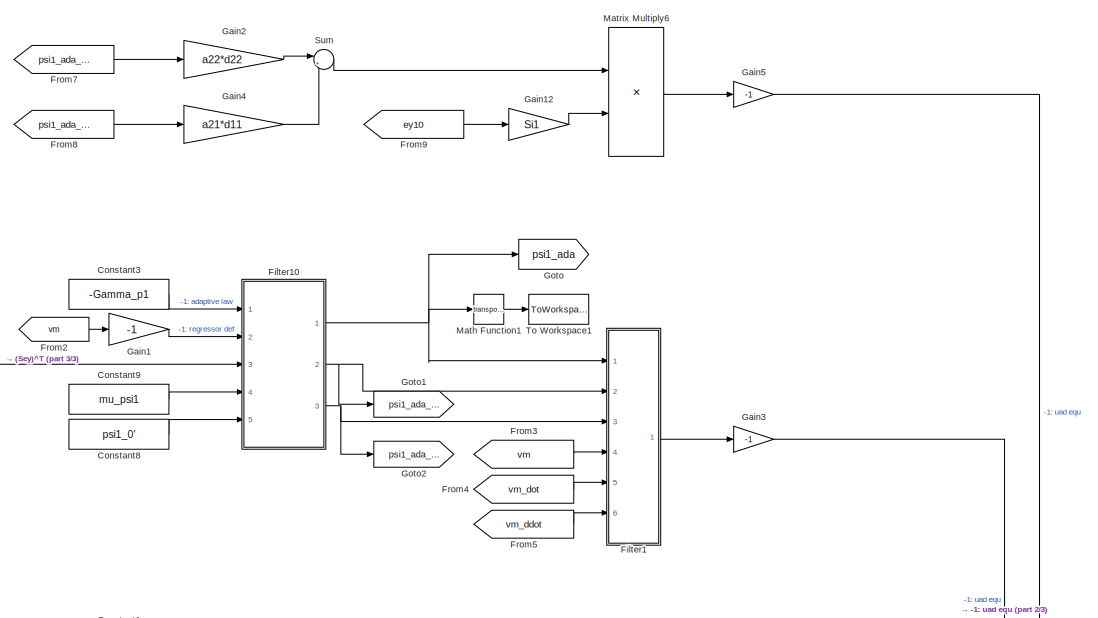
[diagram: Adaptive Control/uad_Calculation - part 1/3, top right region]
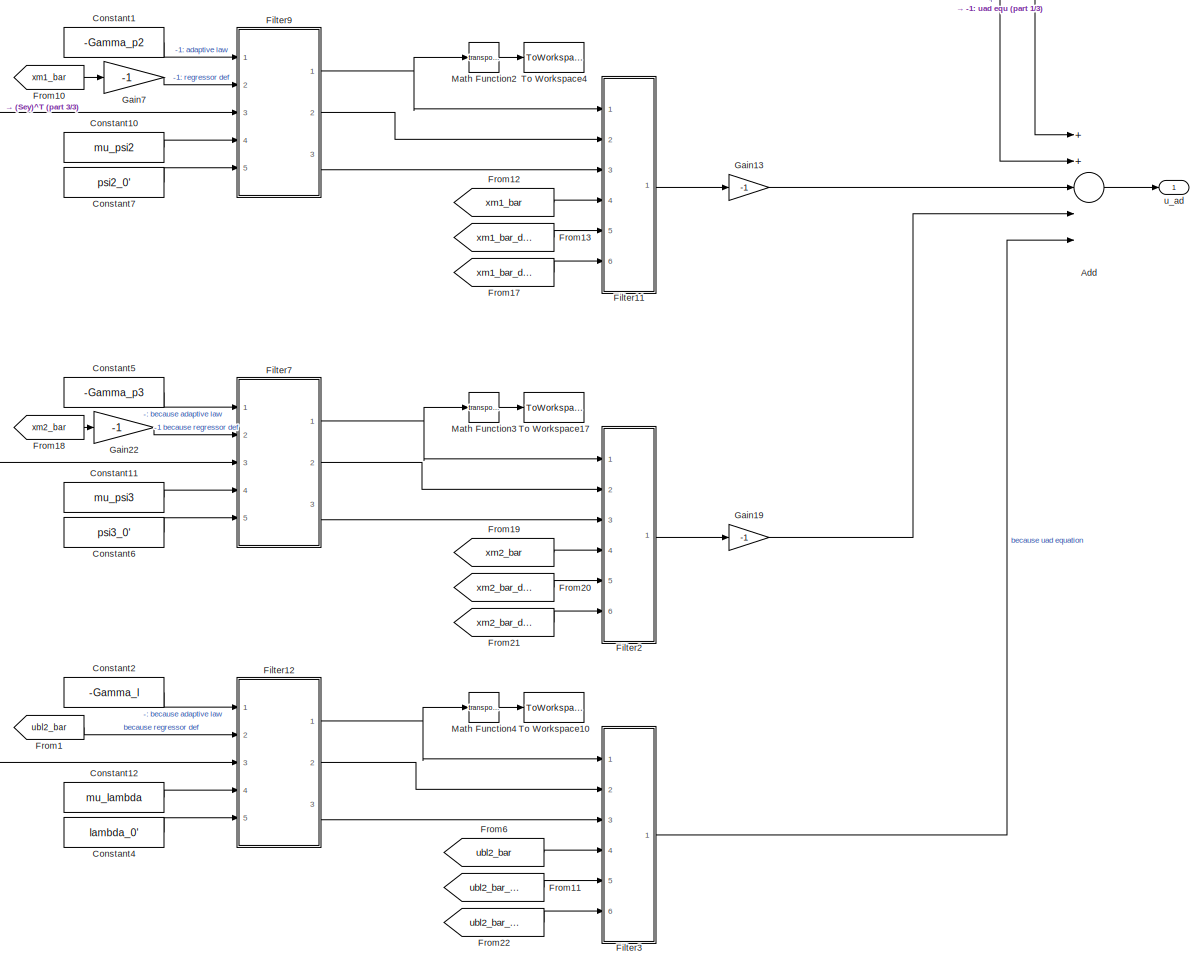
[diagram: Adaptive Control/uad_Calculation - part 2/3, bottom right region]
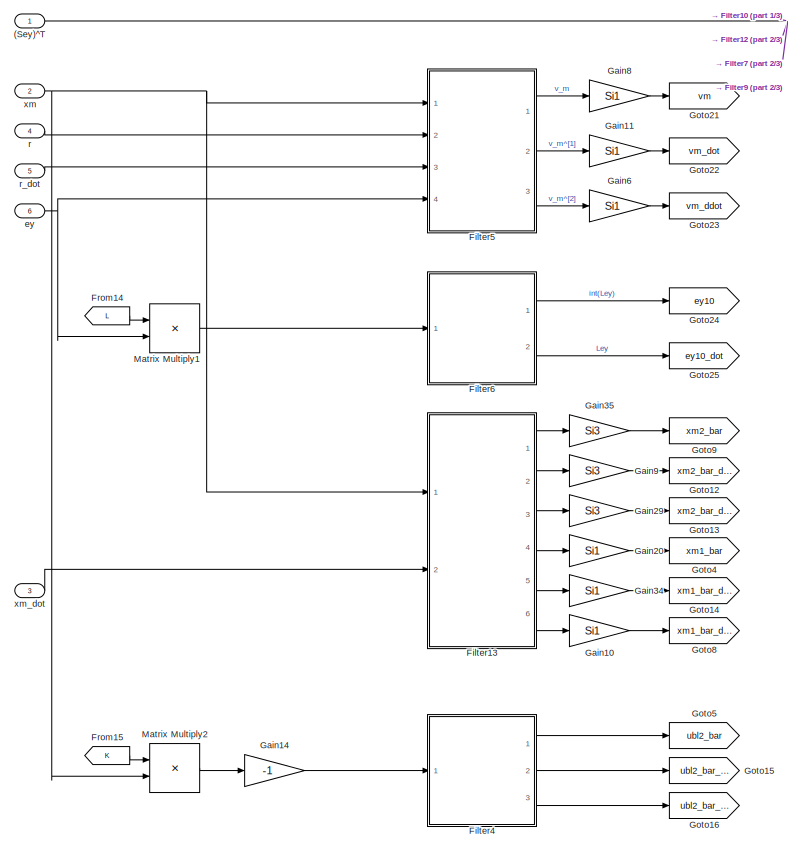
[diagram: Adaptive Control/uad_Calculation - part 3/3, bottom left region]
BLOCK [SubSystem] Adaptive Control/uad_Calculation
  Ports = [6, 1]
  RequestExecContextInheritance = off
  Variant = off
BLOCK [Inport] Adaptive Control/uad_Calculation/(Sey)^T
  IconDisplay = Port number
BLOCK [Sum] Adaptive Control/uad_Calculation/Add
  InputSameDT = off
  Inputs = 5
  OutDataTypeStr = Inherit: Inherit via internal rule
  Ports = [5, 1]
  SaturateOnIntegerOverflow = off
BLOCK [Constant] Adaptive Control/uad_Calculation/Constant1
  Value = -Gamma_p2
  VectorParams1D = off
BLOCK [Constant] Adaptive Control/uad_Calculation/Constant10
  Value = mu_psi2
  VectorParams1D = off
BLOCK [Constant] Adaptive Control/uad_Calculation/Constant11
  Value = mu_psi3
  VectorParams1D = off
BLOCK [Constant] Adaptive Control/uad_Calculation/Constant12
  Value = mu_lambda
  VectorParams1D = off
BLOCK [Constant] Adaptive Control/uad_Calculation/Constant2
  Value = -Gamma_l
  VectorParams1D = off
BLOCK [Constant] Adaptive Control/uad_Calculation/Constant3
  Value = -Gamma_p1
  VectorParams1D = off
BLOCK [Constant] Adaptive Control/uad_Calculation/Constant4
  Value = lambda_0'
  VectorParams1D = off
BLOCK [Constant] Adaptive Control/uad_Calculation/Constant5
  Value = -Gamma_p3
  VectorParams1D = off
BLOCK [Constant] Adaptive Control/uad_Calculation/Constant6
  Value = psi3_0'
  VectorParams1D = off
BLOCK [Constant] Adaptive Control/uad_Calculation/Constant7
  Value = psi2_0'
  VectorParams1D = off
BLOCK [Constant] Adaptive Control/uad_Calculation/Constant8
  Value = psi1_0'
  VectorParams1D = off
BLOCK [Constant] Adaptive Control/uad_Calculation/Constant9
  Value = mu_psi1
  VectorParams1D = off
BLOCK [SubSystem] Adaptive Control/uad_Calculation/Filter1
  Ports = [6, 1]
  RequestExecContextInheritance = off
  Variant = off
BLOCK [Gain] Adaptive Control/uad_Calculation/Filter1/Gain1
  Gain = d21
  OutDataTypeStr = Inherit: Inherit via internal rule
  ParamDataTypeStr = Inherit: Inherit via internal rule
  SaturateOnIntegerOverflow = off
BLOCK [Gain] Adaptive Control/uad_Calculation/Filter1/Gain2
  Gain = d20
  OutDataTypeStr = Inherit: Inherit via internal rule
  ParamDataTypeStr = Inherit: Inherit via internal rule
  SaturateOnIntegerOverflow = off
BLOCK [Gain] Adaptive Control/uad_Calculation/Filter1/Gain3
  Gain = d22
  OutDataTypeStr = Inherit: Inherit via internal rule
  ParamDataTypeStr = Inherit: Inherit via internal rule
  SaturateOnIntegerOverflow = off
BLOCK [Gain] Adaptive Control/uad_Calculation/Filter1/Gain4
  Gain = a22
  OutDataTypeStr = Inherit: Inherit via internal rule
  ParamDataTypeStr = Inherit: Inherit via internal rule
  SaturateOnIntegerOverflow = off
BLOCK [Gain] Adaptive Control/uad_Calculation/Filter1/Gain5
  Gain = d11
  OutDataTypeStr = Inherit: Inherit via internal rule
  ParamDataTypeStr = Inherit: Inherit via internal rule
  SaturateOnIntegerOverflow = off
BLOCK [Gain] Adaptive Control/uad_Calculation/Filter1/Gain6
  Gain = d10
  OutDataTypeStr = Inherit: Inherit via internal rule
  ParamDataTypeStr = Inherit: Inherit via internal rule
  SaturateOnIntegerOverflow = off
BLOCK [Gain] Adaptive Control/uad_Calculation/Filter1/Gain7
  Gain = a21
  OutDataTypeStr = Inherit: Inherit via internal rule
  ParamDataTypeStr = Inherit: Inherit via internal rule
  SaturateOnIntegerOverflow = off
BLOCK [Gain] Adaptive Control/uad_Calculation/Filter1/Gain8
  Gain = d00
  OutDataTypeStr = Inherit: Inherit via internal rule
  ParamDataTypeStr = Inherit: Inherit via internal rule
  SaturateOnIntegerOverflow = off
BLOCK [Gain] Adaptive Control/uad_Calculation/Filter1/Gain9
  Gain = a20
  OutDataTypeStr = Inherit: Inherit via internal rule
  ParamDataTypeStr = Inherit: Inherit via internal rule
  SaturateOnIntegerOverflow = off
BLOCK [Product] Adaptive Control/uad_Calculation/Filter1/Matrix Multiply1
  InputSameDT = off
  Multiplication = Matrix(*)
  OutDataTypeStr = Inherit: Inherit via internal rule
  Ports = [2, 1]
  RndMeth = Floor
  SaturateOnIntegerOverflow = off
BLOCK [Product] Adaptive Control/uad_Calculation/Filter1/Matrix Multiply2
  InputSameDT = off
  Multiplication = Matrix(*)
  OutDataTypeStr = Inherit: Inherit via internal rule
  Ports = [2, 1]
  RndMeth = Floor
  SaturateOnIntegerOverflow = off
BLOCK [Product] Adaptive Control/uad_Calculation/Filter1/Matrix Multiply3
  InputSameDT = off
  Multiplication = Matrix(*)
  OutDataTypeStr = Inherit: Inherit via internal rule
  Ports = [2, 1]
  RndMeth = Floor
  SaturateOnIntegerOverflow = off
BLOCK [Product] Adaptive Control/uad_Calculation/Filter1/Matrix Multiply4
  InputSameDT = off
  Multiplication = Matrix(*)
  OutDataTypeStr = Inherit: Inherit via internal rule
  Ports = [2, 1]
  RndMeth = Floor
  SaturateOnIntegerOverflow = off
BLOCK [Product] Adaptive Control/uad_Calculation/Filter1/Matrix Multiply5
  InputSameDT = off
  Multiplication = Matrix(*)
  OutDataTypeStr = Inherit: Inherit via internal rule
  Ports = [2, 1]
  RndMeth = Floor
  SaturateOnIntegerOverflow = off
BLOCK [Product] Adaptive Control/uad_Calculation/Filter1/Matrix Multiply6
  InputSameDT = off
  Multiplication = Matrix(*)
  OutDataTypeStr = Inherit: Inherit via internal rule
  Ports = [2, 1]
  RndMeth = Floor
  SaturateOnIntegerOverflow = off
BLOCK [Outport] Adaptive Control/uad_Calculation/Filter1/Out1
  IconDisplay = Port number
BLOCK [Sum] Adaptive Control/uad_Calculation/Filter1/Sum1
  IconShape = round
  InputSameDT = off
  Inputs = +++|
  OutDataTypeStr = Inherit: Inherit via internal rule
  Ports = [3, 1]
  SaturateOnIntegerOverflow = off
BLOCK [Sum] Adaptive Control/uad_Calculation/Filter1/Sum2
  IconShape = round
  InputSameDT = off
  Inputs = +++|
  OutDataTypeStr = Inherit: Inherit via internal rule
  Ports = [3, 1]
  SaturateOnIntegerOverflow = off
BLOCK [Sum] Adaptive Control/uad_Calculation/Filter1/Sum3
  IconShape = round
  InputSameDT = off
  Inputs = ++|
  OutDataTypeStr = Inherit: Inherit via internal rule
  Ports = [2, 1]
  SaturateOnIntegerOverflow = off
BLOCK [Inport] Adaptive Control/uad_Calculation/Filter1/u1
  IconDisplay = Port number
BLOCK [Inport] Adaptive Control/uad_Calculation/Filter1/u1ddot
  IconDisplay = Port number
  Port = 3
BLOCK [Inport] Adaptive Control/uad_Calculation/Filter1/u1dot
  IconDisplay = Port number
  Port = 2
BLOCK [Inport] Adaptive Control/uad_Calculation/Filter1/u2
  IconDisplay = Port number
  Port = 4
BLOCK [Inport] Adaptive Control/uad_Calculation/Filter1/u2ddot
  IconDisplay = Port number
  Port = 6
BLOCK [Inport] Adaptive Control/uad_Calculation/Filter1/u2dot
  IconDisplay = Port number
  Port = 5
BLOCK [SubSystem] Adaptive Control/uad_Calculation/Filter10
  Ports = [5, 3]
  RequestExecContextInheritance = off
  Variant = off
BLOCK [Sum] Adaptive Control/uad_Calculation/Filter10/Add
  InputSameDT = off
  Inputs = +--
  OutDataTypeStr = Inherit: Inherit via internal rule
  Ports = [3, 1]
  SaturateOnIntegerOverflow = off
BLOCK [From] Adaptive Control/uad_Calculation/Filter10/From1
  GotoTag = fx
BLOCK [From] Adaptive Control/uad_Calculation/Filter10/From2
  GotoTag = fx
BLOCK [From] Adaptive Control/uad_Calculation/Filter10/From3
  GotoTag = fx
BLOCK [From] Adaptive Control/uad_Calculation/Filter10/From4
  GotoTag = fx
BLOCK [From] Adaptive Control/uad_Calculation/Filter10/From5
  GotoTag = fx
BLOCK [Gain] Adaptive Control/uad_Calculation/Filter10/Gain
  Gain = 1/a22
  OutDataTypeStr = Inherit: Inherit via internal rule
  ParamDataTypeStr = Inherit: Inherit via internal rule
  SaturateOnIntegerOverflow = off
BLOCK [Gain] Adaptive Control/uad_Calculation/Filter10/Gain1
  Gain = a21/a22
  OutDataTypeStr = Inherit: Inherit via internal rule
  ParamDataTypeStr = Inherit: Inherit via internal rule
  SaturateOnIntegerOverflow = off
BLOCK [Gain] Adaptive Control/uad_Calculation/Filter10/Gain2
  Gain = a20/a22
  OutDataTypeStr = Inherit: Inherit via internal rule
  ParamDataTypeStr = Inherit: Inherit via internal rule
  SaturateOnIntegerOverflow = off
BLOCK [Gain] Adaptive Control/uad_Calculation/Filter10/Gain3
  Gain = a20
  OutDataTypeStr = Inherit: Inherit via internal rule
  ParamDataTypeStr = Inherit: Inherit via internal rule
  SaturateOnIntegerOverflow = off
BLOCK [Gain] Adaptive Control/uad_Calculation/Filter10/Gain4
  Gain = a20
  OutDataTypeStr = Inherit: Inherit via internal rule
  ParamDataTypeStr = Inherit: Inherit via internal rule
  SaturateOnIntegerOverflow = off
BLOCK [Gain] Adaptive Control/uad_Calculation/Filter10/Gain5
  Gain = a20
  OutDataTypeStr = Inherit: Inherit via internal rule
  ParamDataTypeStr = Inherit: Inherit via internal rule
  SaturateOnIntegerOverflow = off
BLOCK [Goto] Adaptive Control/uad_Calculation/Filter10/Goto
  GotoTag = fx
BLOCK [Inport] Adaptive Control/uad_Calculation/Filter10/InitialCondition
  IconDisplay = Port number
  Port = 5
BLOCK [Integrator] Adaptive Control/uad_Calculation/Filter10/Integrator
  Ports = [1, 1]
BLOCK [Integrator] Adaptive Control/uad_Calculation/Filter10/Integrator1
  InitialCondition = lambda_0'
  InitialConditionSource = external
  Ports = [2, 1]
BLOCK [Integrator] Adaptive Control/uad_Calculation/Filter10/Integrator2
  InitialCondition = lambda_0'
  InitialConditionSource = external
  Ports = [2, 1]
BLOCK [Math] Adaptive Control/uad_Calculation/Filter10/Math Function1
  Operator = transpose
  Ports = [1, 1]
BLOCK [Product] Adaptive Control/uad_Calculation/Filter10/Matrix Multiply6
  InputSameDT = off
  Inputs = 3
  Multiplication = Matrix(*)
  OutDataTypeStr = Inherit: Inherit via internal rule
  Ports = [3, 1]
  RndMeth = Floor
  SaturateOnIntegerOverflow = off
BLOCK [Product] Adaptive Control/uad_Calculation/Filter10/Product
  InputSameDT = off
  OutDataTypeStr = Inherit: Inherit via internal rule
  Ports = [2, 1]
  SaturateOnIntegerOverflow = off
BLOCK [Product] Adaptive Control/uad_Calculation/Filter10/Product1
  InputSameDT = off
  OutDataTypeStr = Inherit: Inherit via internal rule
  Ports = [2, 1]
  SaturateOnIntegerOverflow = off
BLOCK [Product] Adaptive Control/uad_Calculation/Filter10/Product2
  InputSameDT = off
  OutDataTypeStr = Inherit: Inherit via internal rule
  Ports = [2, 1]
  SaturateOnIntegerOverflow = off
BLOCK [Product] Adaptive Control/uad_Calculation/Filter10/Product3
  InputSameDT = off
  OutDataTypeStr = Inherit: Inherit via internal rule
  Ports = [2, 1]
  SaturateOnIntegerOverflow = off
BLOCK [Product] Adaptive Control/uad_Calculation/Filter10/Product4
  InputSameDT = off
  OutDataTypeStr = Inherit: Inherit via internal rule
  Ports = [2, 1]
  SaturateOnIntegerOverflow = off
BLOCK [SubSystem] Adaptive Control/uad_Calculation/Filter10/Subsystem
  Ports = [2, 1]
  RequestExecContextInheritance = off
  Variant = off
BLOCK [Constant] Adaptive Control/uad_Calculation/Filter10/Subsystem/Constant
BLOCK [Inport] Adaptive Control/uad_Calculation/Filter10/Subsystem/In1
  IconDisplay = Port number
BLOCK [Math] Adaptive Control/uad_Calculation/Filter10/Subsystem/Math Function1
  Operator = transpose
  Ports = [1, 1]
BLOCK [Product] Adaptive Control/uad_Calculation/Filter10/Subsystem/Matrix Multiply6
  InputSameDT = off
  Inputs = 3
  Multiplication = Matrix(*)
  OutDataTypeStr = Inherit: Inherit via internal rule
  Ports = [3, 1]
  RndMeth = Floor
  SaturateOnIntegerOverflow = off
BLOCK [Outport] Adaptive Control/uad_Calculation/Filter10/Subsystem/Out1
  IconDisplay = Port number
BLOCK [Sum] Adaptive Control/uad_Calculation/Filter10/Subsystem/Sum
  IconShape = round
  InputSameDT = off
  Inputs = |++
  OutDataTypeStr = Inherit: Inherit via internal rule
  Ports = [2, 1]
  SaturateOnIntegerOverflow = off
BLOCK [Inport] Adaptive Control/uad_Calculation/Filter10/Subsystem/mu_psi
  IconDisplay = Port number
  Port = 2
BLOCK [Inport] Adaptive Control/uad_Calculation/Filter10/ey
  IconDisplay = Port number
  Port = 3
BLOCK [Inport] Adaptive Control/uad_Calculation/Filter10/gamma
  IconDisplay = Port number
BLOCK [Inport] Adaptive Control/uad_Calculation/Filter10/mu
  IconDisplay = Port number
  Port = 4
BLOCK [Outport] Adaptive Control/uad_Calculation/Filter10/output
  IconDisplay = Port number
BLOCK [Outport] Adaptive Control/uad_Calculation/Filter10/output_ddot
  IconDisplay = Port number
  Port = 3
BLOCK [Outport] Adaptive Control/uad_Calculation/Filter10/output_dot
  IconDisplay = Port number
  Port = 2
BLOCK [Inport] Adaptive Control/uad_Calculation/Filter10/regressor
  IconDisplay = Port number
  Port = 2
BLOCK [SubSystem] Adaptive Control/uad_Calculation/Filter11
  Ports = [6, 1]
  RequestExecContextInheritance = off
  Variant = off
BLOCK [Gain] Adaptive Control/uad_Calculation/Filter11/Gain1
  Gain = d21
  OutDataTypeStr = Inherit: Inherit via internal rule
  ParamDataTypeStr = Inherit: Inherit via internal rule
  SaturateOnIntegerOverflow = off
BLOCK [Gain] Adaptive Control/uad_Calculation/Filter11/Gain2
  Gain = d20
  OutDataTypeStr = Inherit: Inherit via internal rule
  ParamDataTypeStr = Inherit: Inherit via internal rule
  SaturateOnIntegerOverflow = off
BLOCK [Gain] Adaptive Control/uad_Calculation/Filter11/Gain3
  Gain = d22
  OutDataTypeStr = Inherit: Inherit via internal rule
  ParamDataTypeStr = Inherit: Inherit via internal rule
  SaturateOnIntegerOverflow = off
BLOCK [Gain] Adaptive Control/uad_Calculation/Filter11/Gain4
  Gain = a22
  OutDataTypeStr = Inherit: Inherit via internal rule
  ParamDataTypeStr = Inherit: Inherit via internal rule
  SaturateOnIntegerOverflow = off
BLOCK [Gain] Adaptive Control/uad_Calculation/Filter11/Gain5
  Gain = d11
  OutDataTypeStr = Inherit: Inherit via internal rule
  ParamDataTypeStr = Inherit: Inherit via internal rule
  SaturateOnIntegerOverflow = off
BLOCK [Gain] Adaptive Control/uad_Calculation/Filter11/Gain6
  Gain = d10
  OutDataTypeStr = Inherit: Inherit via internal rule
  ParamDataTypeStr = Inherit: Inherit via internal rule
  SaturateOnIntegerOverflow = off
BLOCK [Gain] Adaptive Control/uad_Calculation/Filter11/Gain7
  Gain = a21
  OutDataTypeStr = Inherit: Inherit via internal rule
  ParamDataTypeStr = Inherit: Inherit via internal rule
  SaturateOnIntegerOverflow = off
BLOCK [Gain] Adaptive Control/uad_Calculation/Filter11/Gain8
  Gain = d00
  OutDataTypeStr = Inherit: Inherit via internal rule
  ParamDataTypeStr = Inherit: Inherit via internal rule
  SaturateOnIntegerOverflow = off
BLOCK [Gain] Adaptive Control/uad_Calculation/Filter11/Gain9
  Gain = a20
  OutDataTypeStr = Inherit: Inherit via internal rule
  ParamDataTypeStr = Inherit: Inherit via internal rule
  SaturateOnIntegerOverflow = off
BLOCK [Product] Adaptive Control/uad_Calculation/Filter11/Matrix Multiply1
  InputSameDT = off
  Multiplication = Matrix(*)
  OutDataTypeStr = Inherit: Inherit via internal rule
  Ports = [2, 1]
  RndMeth = Floor
  SaturateOnIntegerOverflow = off
BLOCK [Product] Adaptive Control/uad_Calculation/Filter11/Matrix Multiply2
  InputSameDT = off
  Multiplication = Matrix(*)
  OutDataTypeStr = Inherit: Inherit via internal rule
  Ports = [2, 1]
  RndMeth = Floor
  SaturateOnIntegerOverflow = off
BLOCK [Product] Adaptive Control/uad_Calculation/Filter11/Matrix Multiply3
  InputSameDT = off
  Multiplication = Matrix(*)
  OutDataTypeStr = Inherit: Inherit via internal rule
  Ports = [2, 1]
  RndMeth = Floor
  SaturateOnIntegerOverflow = off
BLOCK [Product] Adaptive Control/uad_Calculation/Filter11/Matrix Multiply4
  InputSameDT = off
  Multiplication = Matrix(*)
  OutDataTypeStr = Inherit: Inherit via internal rule
  Ports = [2, 1]
  RndMeth = Floor
  SaturateOnIntegerOverflow = off
BLOCK [Product] Adaptive Control/uad_Calculation/Filter11/Matrix Multiply5
  InputSameDT = off
  Multiplication = Matrix(*)
  OutDataTypeStr = Inherit: Inherit via internal rule
  Ports = [2, 1]
  RndMeth = Floor
  SaturateOnIntegerOverflow = off
BLOCK [Product] Adaptive Control/uad_Calculation/Filter11/Matrix Multiply6
  InputSameDT = off
  Multiplication = Matrix(*)
  OutDataTypeStr = Inherit: Inherit via internal rule
  Ports = [2, 1]
  RndMeth = Floor
  SaturateOnIntegerOverflow = off
BLOCK [Outport] Adaptive Control/uad_Calculation/Filter11/Out1
  IconDisplay = Port number
BLOCK [Sum] Adaptive Control/uad_Calculation/Filter11/Sum1
  IconShape = round
  InputSameDT = off
  Inputs = +++|
  OutDataTypeStr = Inherit: Inherit via internal rule
  Ports = [3, 1]
  SaturateOnIntegerOverflow = off
BLOCK [Sum] Adaptive Control/uad_Calculation/Filter11/Sum2
  IconShape = round
  InputSameDT = off
  Inputs = +++|
  OutDataTypeStr = Inherit: Inherit via internal rule
  Ports = [3, 1]
  SaturateOnIntegerOverflow = off
BLOCK [Sum] Adaptive Control/uad_Calculation/Filter11/Sum3
  IconShape = round
  InputSameDT = off
  Inputs = ++|
  OutDataTypeStr = Inherit: Inherit via internal rule
  Ports = [2, 1]
  SaturateOnIntegerOverflow = off
BLOCK [Inport] Adaptive Control/uad_Calculation/Filter11/u1
  IconDisplay = Port number
BLOCK [Inport] Adaptive Control/uad_Calculation/Filter11/u1ddot
  IconDisplay = Port number
  Port = 3
BLOCK [Inport] Adaptive Control/uad_Calculation/Filter11/u1dot
  IconDisplay = Port number
  Port = 2
BLOCK [Inport] Adaptive Control/uad_Calculation/Filter11/u2
  IconDisplay = Port number
  Port = 4
BLOCK [Inport] Adaptive Control/uad_Calculation/Filter11/u2ddot
  IconDisplay = Port number
  Port = 6
BLOCK [Inport] Adaptive Control/uad_Calculation/Filter11/u2dot
  IconDisplay = Port number
  Port = 5
BLOCK [SubSystem] Adaptive Control/uad_Calculation/Filter12
  Ports = [5, 3]
  RequestExecContextInheritance = off
  Variant = off
BLOCK [Sum] Adaptive Control/uad_Calculation/Filter12/Add
  InputSameDT = off
  Inputs = +--
  OutDataTypeStr = Inherit: Inherit via internal rule
  Ports = [3, 1]
  SaturateOnIntegerOverflow = off
BLOCK [From] Adaptive Control/uad_Calculation/Filter12/From1
  GotoTag = fx
BLOCK [From] Adaptive Control/uad_Calculation/Filter12/From2
  GotoTag = fx
BLOCK [From] Adaptive Control/uad_Calculation/Filter12/From3
  GotoTag = fx
BLOCK [From] Adaptive Control/uad_Calculation/Filter12/From4
  GotoTag = fx
BLOCK [From] Adaptive Control/uad_Calculation/Filter12/From5
  GotoTag = fx
BLOCK [Gain] Adaptive Control/uad_Calculation/Filter12/Gain
  Gain = 1/a22
  OutDataTypeStr = Inherit: Inherit via internal rule
  ParamDataTypeStr = Inherit: Inherit via internal rule
  SaturateOnIntegerOverflow = off
BLOCK [Gain] Adaptive Control/uad_Calculation/Filter12/Gain1
  Gain = a21/a22
  OutDataTypeStr = Inherit: Inherit via internal rule
  ParamDataTypeStr = Inherit: Inherit via internal rule
  SaturateOnIntegerOverflow = off
BLOCK [Gain] Adaptive Control/uad_Calculation/Filter12/Gain2
  Gain = a20/a22
  OutDataTypeStr = Inherit: Inherit via internal rule
  ParamDataTypeStr = Inherit: Inherit via internal rule
  SaturateOnIntegerOverflow = off
BLOCK [Gain] Adaptive Control/uad_Calculation/Filter12/Gain3
  Gain = a20
  OutDataTypeStr = Inherit: Inherit via internal rule
  ParamDataTypeStr = Inherit: Inherit via internal rule
  SaturateOnIntegerOverflow = off
BLOCK [Gain] Adaptive Control/uad_Calculation/Filter12/Gain4
  Gain = a20
  OutDataTypeStr = Inherit: Inherit via internal rule
  ParamDataTypeStr = Inherit: Inherit via internal rule
  SaturateOnIntegerOverflow = off
BLOCK [Gain] Adaptive Control/uad_Calculation/Filter12/Gain5
  Gain = a20
  OutDataTypeStr = Inherit: Inherit via internal rule
  ParamDataTypeStr = Inherit: Inherit via internal rule
  SaturateOnIntegerOverflow = off
BLOCK [Goto] Adaptive Control/uad_Calculation/Filter12/Goto
  GotoTag = fx
BLOCK [Inport] Adaptive Control/uad_Calculation/Filter12/InitialCondition
  IconDisplay = Port number
  Port = 5
BLOCK [Integrator] Adaptive Control/uad_Calculation/Filter12/Integrator
  Ports = [1, 1]
BLOCK [Integrator] Adaptive Control/uad_Calculation/Filter12/Integrator1
  InitialCondition = lambda_0'
  InitialConditionSource = external
  Ports = [2, 1]
BLOCK [Integrator] Adaptive Control/uad_Calculation/Filter12/Integrator2
  InitialCondition = lambda_0'
  InitialConditionSource = external
  Ports = [2, 1]
BLOCK [Math] Adaptive Control/uad_Calculation/Filter12/Math Function1
  Operator = transpose
  Ports = [1, 1]
BLOCK [Product] Adaptive Control/uad_Calculation/Filter12/Matrix Multiply6
  InputSameDT = off
  Inputs = 3
  Multiplication = Matrix(*)
  OutDataTypeStr = Inherit: Inherit via internal rule
  Ports = [3, 1]
  RndMeth = Floor
  SaturateOnIntegerOverflow = off
BLOCK [Product] Adaptive Control/uad_Calculation/Filter12/Product
  InputSameDT = off
  OutDataTypeStr = Inherit: Inherit via internal rule
  Ports = [2, 1]
  SaturateOnIntegerOverflow = off
BLOCK [Product] Adaptive Control/uad_Calculation/Filter12/Product1
  InputSameDT = off
  OutDataTypeStr = Inherit: Inherit via internal rule
  Ports = [2, 1]
  SaturateOnIntegerOverflow = off
BLOCK [Product] Adaptive Control/uad_Calculation/Filter12/Product2
  InputSameDT = off
  OutDataTypeStr = Inherit: Inherit via internal rule
  Ports = [2, 1]
  SaturateOnIntegerOverflow = off
BLOCK [Product] Adaptive Control/uad_Calculation/Filter12/Product3
  InputSameDT = off
  OutDataTypeStr = Inherit: Inherit via internal rule
  Ports = [2, 1]
  SaturateOnIntegerOverflow = off
BLOCK [Product] Adaptive Control/uad_Calculation/Filter12/Product4
  InputSameDT = off
  OutDataTypeStr = Inherit: Inherit via internal rule
  Ports = [2, 1]
  SaturateOnIntegerOverflow = off
BLOCK [SubSystem] Adaptive Control/uad_Calculation/Filter12/Subsystem
  Ports = [2, 1]
  RequestExecContextInheritance = off
  Variant = off
BLOCK [Constant] Adaptive Control/uad_Calculation/Filter12/Subsystem/Constant
BLOCK [Inport] Adaptive Control/uad_Calculation/Filter12/Subsystem/In1
  IconDisplay = Port number
BLOCK [Math] Adaptive Control/uad_Calculation/Filter12/Subsystem/Math Function1
  Operator = transpose
  Ports = [1, 1]
BLOCK [Product] Adaptive Control/uad_Calculation/Filter12/Subsystem/Matrix Multiply6
  InputSameDT = off
  Inputs = 3
  Multiplication = Matrix(*)
  OutDataTypeStr = Inherit: Inherit via internal rule
  Ports = [3, 1]
  RndMeth = Floor
  SaturateOnIntegerOverflow = off
BLOCK [Outport] Adaptive Control/uad_Calculation/Filter12/Subsystem/Out1
  IconDisplay = Port number
BLOCK [Sum] Adaptive Control/uad_Calculation/Filter12/Subsystem/Sum
  IconShape = round
  InputSameDT = off
  Inputs = |++
  OutDataTypeStr = Inherit: Inherit via internal rule
  Ports = [2, 1]
  SaturateOnIntegerOverflow = off
BLOCK [Inport] Adaptive Control/uad_Calculation/Filter12/Subsystem/mu_psi
  IconDisplay = Port number
  Port = 2
BLOCK [Inport] Adaptive Control/uad_Calculation/Filter12/ey
  IconDisplay = Port number
  Port = 3
BLOCK [Inport] Adaptive Control/uad_Calculation/Filter12/gamma
  IconDisplay = Port number
BLOCK [Inport] Adaptive Control/uad_Calculation/Filter12/mu
  IconDisplay = Port number
  Port = 4
BLOCK [Outport] Adaptive Control/uad_Calculation/Filter12/output
  IconDisplay = Port number
BLOCK [Outport] Adaptive Control/uad_Calculation/Filter12/output_ddot
  IconDisplay = Port number
  Port = 3
BLOCK [Outport] Adaptive Control/uad_Calculation/Filter12/output_dot
  IconDisplay = Port number
  Port = 2
BLOCK [Inport] Adaptive Control/uad_Calculation/Filter12/regressor
  IconDisplay = Port number
  Port = 2
BLOCK [SubSystem] Adaptive Control/uad_Calculation/Filter13
  Ports = [2, 6]
  RequestExecContextInheritance = off
  Variant = off
BLOCK [Sum] Adaptive Control/uad_Calculation/Filter13/Add
  InputSameDT = off
  Inputs = +--
  OutDataTypeStr = Inherit: Inherit via internal rule
  Ports = [3, 1]
  SaturateOnIntegerOverflow = off
BLOCK [Sum] Adaptive Control/uad_Calculation/Filter13/Add1
  InputSameDT = off
  OutDataTypeStr = Inherit: Inherit via internal rule
  Ports = [2, 1]
  SaturateOnIntegerOverflow = off
BLOCK [Sum] Adaptive Control/uad_Calculation/Filter13/Add2
  InputSameDT = off
  OutDataTypeStr = Inherit: Inherit via internal rule
  Ports = [2, 1]
  SaturateOnIntegerOverflow = off
BLOCK [Sum] Adaptive Control/uad_Calculation/Filter13/Add3
  InputSameDT = off
  Inputs = -+
  OutDataTypeStr = Inherit: Inherit via internal rule
  Ports = [2, 1]
  SaturateOnIntegerOverflow = off
BLOCK [Gain] Adaptive Control/uad_Calculation/Filter13/Gain1
  Gain = a21/a22
  OutDataTypeStr = Inherit: Inherit via internal rule
  ParamDataTypeStr = Inherit: Inherit via internal rule
  SaturateOnIntegerOverflow = off
BLOCK [Gain] Adaptive Control/uad_Calculation/Filter13/Gain10
  Gain = 1/a22
  OutDataTypeStr = Inherit: Inherit via internal rule
  ParamDataTypeStr = Inherit: Inherit via internal rule
  SaturateOnIntegerOverflow = off
BLOCK [Gain] Adaptive Control/uad_Calculation/Filter13/Gain11
  Gain = a20
  OutDataTypeStr = Inherit: Inherit via internal rule
  ParamDataTypeStr = Inherit: Inherit via internal rule
  SaturateOnIntegerOverflow = off
BLOCK [Gain] Adaptive Control/uad_Calculation/Filter13/Gain2
  Gain = a20/a22
  OutDataTypeStr = Inherit: Inherit via internal rule
  ParamDataTypeStr = Inherit: Inherit via internal rule
  SaturateOnIntegerOverflow = off
BLOCK [Gain] Adaptive Control/uad_Calculation/Filter13/Gain3
  Gain = a21
  OutDataTypeStr = Inherit: Inherit via internal rule
  ParamDataTypeStr = Inherit: Inherit via internal rule
  SaturateOnIntegerOverflow = off
BLOCK [Gain] Adaptive Control/uad_Calculation/Filter13/Gain4
  Gain = a21
  OutDataTypeStr = Inherit: Inherit via internal rule
  ParamDataTypeStr = Inherit: Inherit via internal rule
  SaturateOnIntegerOverflow = off
BLOCK [Gain] Adaptive Control/uad_Calculation/Filter13/Gain5
  Gain = a22
  OutDataTypeStr = Inherit: Inherit via internal rule
  ParamDataTypeStr = Inherit: Inherit via internal rule
  SaturateOnIntegerOverflow = off
BLOCK [Gain] Adaptive Control/uad_Calculation/Filter13/Gain6
  Gain = a22
  OutDataTypeStr = Inherit: Inherit via internal rule
  ParamDataTypeStr = Inherit: Inherit via internal rule
  SaturateOnIntegerOverflow = off
BLOCK [Gain] Adaptive Control/uad_Calculation/Filter13/Gain7
  Gain = a22
  OutDataTypeStr = Inherit: Inherit via internal rule
  ParamDataTypeStr = Inherit: Inherit via internal rule
  SaturateOnIntegerOverflow = off
BLOCK [Gain] Adaptive Control/uad_Calculation/Filter13/Gain8
  Gain = a22
  OutDataTypeStr = Inherit: Inherit via internal rule
  ParamDataTypeStr = Inherit: Inherit via internal rule
  SaturateOnIntegerOverflow = off
BLOCK [Gain] Adaptive Control/uad_Calculation/Filter13/Gain9
  Gain = a22
  OutDataTypeStr = Inherit: Inherit via internal rule
  ParamDataTypeStr = Inherit: Inherit via internal rule
  SaturateOnIntegerOverflow = off
BLOCK [Inport] Adaptive Control/uad_Calculation/Filter13/In1
  IconDisplay = Port number
BLOCK [Inport] Adaptive Control/uad_Calculation/Filter13/In1_dot
  IconDisplay = Port number
  Port = 2
BLOCK [Integrator] Adaptive Control/uad_Calculation/Filter13/Integrator
  Ports = [1, 1]
BLOCK [Integrator] Adaptive Control/uad_Calculation/Filter13/Integrator1
  Ports = [1, 1]
BLOCK [Outport] Adaptive Control/uad_Calculation/Filter13/pi20 filter
  IconDisplay = Port number
BLOCK [Outport] Adaptive Control/uad_Calculation/Filter13/pi20 filter ddot
  IconDisplay = Port number
  Port = 3
BLOCK [Outport] Adaptive Control/uad_Calculation/Filter13/pi20 filter dot
  IconDisplay = Port number
  Port = 2
BLOCK [Outport] Adaptive Control/uad_Calculation/Filter13/pi21 filter
  IconDisplay = Port number
  Port = 4
BLOCK [Outport] Adaptive Control/uad_Calculation/Filter13/pi21 filter ddot
  IconDisplay = Port number
  Port = 6
BLOCK [Outport] Adaptive Control/uad_Calculation/Filter13/pi21 filter dot
  IconDisplay = Port number
  Port = 5
BLOCK [SubSystem] Adaptive Control/uad_Calculation/Filter2
  Ports = [6, 1]
  RequestExecContextInheritance = off
  Variant = off
BLOCK [Gain] Adaptive Control/uad_Calculation/Filter2/Gain1
  Gain = d21
  OutDataTypeStr = Inherit: Inherit via internal rule
  ParamDataTypeStr = Inherit: Inherit via internal rule
  SaturateOnIntegerOverflow = off
BLOCK [Gain] Adaptive Control/uad_Calculation/Filter2/Gain2
  Gain = d20
  OutDataTypeStr = Inherit: Inherit via internal rule
  ParamDataTypeStr = Inherit: Inherit via internal rule
  SaturateOnIntegerOverflow = off
BLOCK [Gain] Adaptive Control/uad_Calculation/Filter2/Gain3
  Gain = d22
  OutDataTypeStr = Inherit: Inherit via internal rule
  ParamDataTypeStr = Inherit: Inherit via internal rule
  SaturateOnIntegerOverflow = off
BLOCK [Gain] Adaptive Control/uad_Calculation/Filter2/Gain4
  Gain = a22
  OutDataTypeStr = Inherit: Inherit via internal rule
  ParamDataTypeStr = Inherit: Inherit via internal rule
  SaturateOnIntegerOverflow = off
BLOCK [Gain] Adaptive Control/uad_Calculation/Filter2/Gain5
  Gain = d11
  OutDataTypeStr = Inherit: Inherit via internal rule
  ParamDataTypeStr = Inherit: Inherit via internal rule
  SaturateOnIntegerOverflow = off
BLOCK [Gain] Adaptive Control/uad_Calculation/Filter2/Gain6
  Gain = d10
  OutDataTypeStr = Inherit: Inherit via internal rule
  ParamDataTypeStr = Inherit: Inherit via internal rule
  SaturateOnIntegerOverflow = off
BLOCK [Gain] Adaptive Control/uad_Calculation/Filter2/Gain7
  Gain = a21
  OutDataTypeStr = Inherit: Inherit via internal rule
  ParamDataTypeStr = Inherit: Inherit via internal rule
  SaturateOnIntegerOverflow = off
BLOCK [Gain] Adaptive Control/uad_Calculation/Filter2/Gain8
  Gain = d00
  OutDataTypeStr = Inherit: Inherit via internal rule
  ParamDataTypeStr = Inherit: Inherit via internal rule
  SaturateOnIntegerOverflow = off
BLOCK [Gain] Adaptive Control/uad_Calculation/Filter2/Gain9
  Gain = a20
  OutDataTypeStr = Inherit: Inherit via internal rule
  ParamDataTypeStr = Inherit: Inherit via internal rule
  SaturateOnIntegerOverflow = off
BLOCK [Product] Adaptive Control/uad_Calculation/Filter2/Matrix Multiply1
  InputSameDT = off
  Multiplication = Matrix(*)
  OutDataTypeStr = Inherit: Inherit via internal rule
  Ports = [2, 1]
  RndMeth = Floor
  SaturateOnIntegerOverflow = off
BLOCK [Product] Adaptive Control/uad_Calculation/Filter2/Matrix Multiply2
  InputSameDT = off
  Multiplication = Matrix(*)
  OutDataTypeStr = Inherit: Inherit via internal rule
  Ports = [2, 1]
  RndMeth = Floor
  SaturateOnIntegerOverflow = off
BLOCK [Product] Adaptive Control/uad_Calculation/Filter2/Matrix Multiply3
  InputSameDT = off
  Multiplication = Matrix(*)
  OutDataTypeStr = Inherit: Inherit via internal rule
  Ports = [2, 1]
  RndMeth = Floor
  SaturateOnIntegerOverflow = off
BLOCK [Product] Adaptive Control/uad_Calculation/Filter2/Matrix Multiply4
  InputSameDT = off
  Multiplication = Matrix(*)
  OutDataTypeStr = Inherit: Inherit via internal rule
  Ports = [2, 1]
  RndMeth = Floor
  SaturateOnIntegerOverflow = off
BLOCK [Product] Adaptive Control/uad_Calculation/Filter2/Matrix Multiply5
  InputSameDT = off
  Multiplication = Matrix(*)
  OutDataTypeStr = Inherit: Inherit via internal rule
  Ports = [2, 1]
  RndMeth = Floor
  SaturateOnIntegerOverflow = off
BLOCK [Product] Adaptive Control/uad_Calculation/Filter2/Matrix Multiply6
  InputSameDT = off
  Multiplication = Matrix(*)
  OutDataTypeStr = Inherit: Inherit via internal rule
  Ports = [2, 1]
  RndMeth = Floor
  SaturateOnIntegerOverflow = off
BLOCK [Outport] Adaptive Control/uad_Calculation/Filter2/Out1
  IconDisplay = Port number
BLOCK [Sum] Adaptive Control/uad_Calculation/Filter2/Sum1
  IconShape = round
  InputSameDT = off
  Inputs = +++|
  OutDataTypeStr = Inherit: Inherit via internal rule
  Ports = [3, 1]
  SaturateOnIntegerOverflow = off
BLOCK [Sum] Adaptive Control/uad_Calculation/Filter2/Sum2
  IconShape = round
  InputSameDT = off
  Inputs = +++|
  OutDataTypeStr = Inherit: Inherit via internal rule
  Ports = [3, 1]
  SaturateOnIntegerOverflow = off
BLOCK [Sum] Adaptive Control/uad_Calculation/Filter2/Sum3
  IconShape = round
  InputSameDT = off
  Inputs = ++|
  OutDataTypeStr = Inherit: Inherit via internal rule
  Ports = [2, 1]
  SaturateOnIntegerOverflow = off
BLOCK [Inport] Adaptive Control/uad_Calculation/Filter2/u1
  IconDisplay = Port number
BLOCK [Inport] Adaptive Control/uad_Calculation/Filter2/u1ddot
  IconDisplay = Port number
  Port = 3
BLOCK [Inport] Adaptive Control/uad_Calculation/Filter2/u1dot
  IconDisplay = Port number
  Port = 2
BLOCK [Inport] Adaptive Control/uad_Calculation/Filter2/u2
  IconDisplay = Port number
  Port = 4
BLOCK [Inport] Adaptive Control/uad_Calculation/Filter2/u2ddot
  IconDisplay = Port number
  Port = 6
BLOCK [Inport] Adaptive Control/uad_Calculation/Filter2/u2dot
  IconDisplay = Port number
  Port = 5
BLOCK [SubSystem] Adaptive Control/uad_Calculation/Filter3
  Ports = [6, 1]
  RequestExecContextInheritance = off
  Variant = off
BLOCK [Gain] Adaptive Control/uad_Calculation/Filter3/Gain1
  Gain = d21
  OutDataTypeStr = Inherit: Inherit via internal rule
  ParamDataTypeStr = Inherit: Inherit via internal rule
  SaturateOnIntegerOverflow = off
BLOCK [Gain] Adaptive Control/uad_Calculation/Filter3/Gain2
  Gain = d20
  OutDataTypeStr = Inherit: Inherit via internal rule
  ParamDataTypeStr = Inherit: Inherit via internal rule
  SaturateOnIntegerOverflow = off
BLOCK [Gain] Adaptive Control/uad_Calculation/Filter3/Gain3
  Gain = d22
  OutDataTypeStr = Inherit: Inherit via internal rule
  ParamDataTypeStr = Inherit: Inherit via internal rule
  SaturateOnIntegerOverflow = off
BLOCK [Gain] Adaptive Control/uad_Calculation/Filter3/Gain4
  Gain = a22
  OutDataTypeStr = Inherit: Inherit via internal rule
  ParamDataTypeStr = Inherit: Inherit via internal rule
  SaturateOnIntegerOverflow = off
BLOCK [Gain] Adaptive Control/uad_Calculation/Filter3/Gain5
  Gain = d11
  OutDataTypeStr = Inherit: Inherit via internal rule
  ParamDataTypeStr = Inherit: Inherit via internal rule
  SaturateOnIntegerOverflow = off
BLOCK [Gain] Adaptive Control/uad_Calculation/Filter3/Gain6
  Gain = d10
  OutDataTypeStr = Inherit: Inherit via internal rule
  ParamDataTypeStr = Inherit: Inherit via internal rule
  SaturateOnIntegerOverflow = off
BLOCK [Gain] Adaptive Control/uad_Calculation/Filter3/Gain7
  Gain = a21
  OutDataTypeStr = Inherit: Inherit via internal rule
  ParamDataTypeStr = Inherit: Inherit via internal rule
  SaturateOnIntegerOverflow = off
BLOCK [Gain] Adaptive Control/uad_Calculation/Filter3/Gain8
  Gain = d00
  OutDataTypeStr = Inherit: Inherit via internal rule
  ParamDataTypeStr = Inherit: Inherit via internal rule
  SaturateOnIntegerOverflow = off
BLOCK [Gain] Adaptive Control/uad_Calculation/Filter3/Gain9
  Gain = a20
  OutDataTypeStr = Inherit: Inherit via internal rule
  ParamDataTypeStr = Inherit: Inherit via internal rule
  SaturateOnIntegerOverflow = off
BLOCK [Product] Adaptive Control/uad_Calculation/Filter3/Matrix Multiply1
  InputSameDT = off
  Multiplication = Matrix(*)
  OutDataTypeStr = Inherit: Inherit via internal rule
  Ports = [2, 1]
  RndMeth = Floor
  SaturateOnIntegerOverflow = off
BLOCK [Product] Adaptive Control/uad_Calculation/Filter3/Matrix Multiply2
  InputSameDT = off
  Multiplication = Matrix(*)
  OutDataTypeStr = Inherit: Inherit via internal rule
  Ports = [2, 1]
  RndMeth = Floor
  SaturateOnIntegerOverflow = off
BLOCK [Product] Adaptive Control/uad_Calculation/Filter3/Matrix Multiply3
  InputSameDT = off
  Multiplication = Matrix(*)
  OutDataTypeStr = Inherit: Inherit via internal rule
  Ports = [2, 1]
  RndMeth = Floor
  SaturateOnIntegerOverflow = off
BLOCK [Product] Adaptive Control/uad_Calculation/Filter3/Matrix Multiply4
  InputSameDT = off
  Multiplication = Matrix(*)
  OutDataTypeStr = Inherit: Inherit via internal rule
  Ports = [2, 1]
  RndMeth = Floor
  SaturateOnIntegerOverflow = off
BLOCK [Product] Adaptive Control/uad_Calculation/Filter3/Matrix Multiply5
  InputSameDT = off
  Multiplication = Matrix(*)
  OutDataTypeStr = Inherit: Inherit via internal rule
  Ports = [2, 1]
  RndMeth = Floor
  SaturateOnIntegerOverflow = off
BLOCK [Product] Adaptive Control/uad_Calculation/Filter3/Matrix Multiply6
  InputSameDT = off
  Multiplication = Matrix(*)
  OutDataTypeStr = Inherit: Inherit via internal rule
  Ports = [2, 1]
  RndMeth = Floor
  SaturateOnIntegerOverflow = off
BLOCK [Outport] Adaptive Control/uad_Calculation/Filter3/Out1
  IconDisplay = Port number
BLOCK [Sum] Adaptive Control/uad_Calculation/Filter3/Sum1
  IconShape = round
  InputSameDT = off
  Inputs = +++|
  OutDataTypeStr = Inherit: Inherit via internal rule
  Ports = [3, 1]
  SaturateOnIntegerOverflow = off
BLOCK [Sum] Adaptive Control/uad_Calculation/Filter3/Sum2
  IconShape = round
  InputSameDT = off
  Inputs = +++|
  OutDataTypeStr = Inherit: Inherit via internal rule
  Ports = [3, 1]
  SaturateOnIntegerOverflow = off
BLOCK [Sum] Adaptive Control/uad_Calculation/Filter3/Sum3
  IconShape = round
  InputSameDT = off
  Inputs = ++|
  OutDataTypeStr = Inherit: Inherit via internal rule
  Ports = [2, 1]
  SaturateOnIntegerOverflow = off
BLOCK [Inport] Adaptive Control/uad_Calculation/Filter3/u1
  IconDisplay = Port number
BLOCK [Inport] Adaptive Control/uad_Calculation/Filter3/u1ddot
  IconDisplay = Port number
  Port = 3
BLOCK [Inport] Adaptive Control/uad_Calculation/Filter3/u1dot
  IconDisplay = Port number
  Port = 2
BLOCK [Inport] Adaptive Control/uad_Calculation/Filter3/u2
  IconDisplay = Port number
  Port = 4
BLOCK [Inport] Adaptive Control/uad_Calculation/Filter3/u2ddot
  IconDisplay = Port number
  Port = 6
BLOCK [Inport] Adaptive Control/uad_Calculation/Filter3/u2dot
  IconDisplay = Port number
  Port = 5
BLOCK [SubSystem] Adaptive Control/uad_Calculation/Filter4
  Ports = [1, 3]
  RequestExecContextInheritance = off
  Variant = off
BLOCK [Gain] Adaptive Control/uad_Calculation/Filter4/Gain
  Gain = 1/a22
  OutDataTypeStr = Inherit: Inherit via internal rule
  ParamDataTypeStr = Inherit: Inherit via internal rule
  SaturateOnIntegerOverflow = off
BLOCK [Gain] Adaptive Control/uad_Calculation/Filter4/Gain1
  Gain = a21/a22
  OutDataTypeStr = Inherit: Inherit via internal rule
  ParamDataTypeStr = Inherit: Inherit via internal rule
  SaturateOnIntegerOverflow = off
BLOCK [Gain] Adaptive Control/uad_Calculation/Filter4/Gain2
  Gain = a20/a22
  OutDataTypeStr = Inherit: Inherit via internal rule
  ParamDataTypeStr = Inherit: Inherit via internal rule
  SaturateOnIntegerOverflow = off
BLOCK [Inport] Adaptive Control/uad_Calculation/Filter4/In1
  IconDisplay = Port number
BLOCK [Integrator] Adaptive Control/uad_Calculation/Filter4/Integrator
  Ports = [1, 1]
BLOCK [Integrator] Adaptive Control/uad_Calculation/Filter4/Integrator1
  Ports = [1, 1]
BLOCK [Outport] Adaptive Control/uad_Calculation/Filter4/Out1
  IconDisplay = Port number
BLOCK [Outport] Adaptive Control/uad_Calculation/Filter4/Out2
  IconDisplay = Port number
  Port = 2
BLOCK [Outport] Adaptive Control/uad_Calculation/Filter4/Out3
  IconDisplay = Port number
  Port = 3
BLOCK [Sum] Adaptive Control/uad_Calculation/Filter4/Sum
  IconShape = round
  InputSameDT = off
  Inputs = |+--
  OutDataTypeStr = Inherit: Inherit via internal rule
  Ports = [3, 1]
  SaturateOnIntegerOverflow = off
BLOCK [SubSystem] Adaptive Control/uad_Calculation/Filter5
  Ports = [4, 3]
  RequestExecContextInheritance = off
  Variant = off
BLOCK [Sum] Adaptive Control/uad_Calculation/Filter5/Add
  InputSameDT = off
  Inputs = 2
  OutDataTypeStr = Inherit: Inherit via internal rule
  Ports = [2, 1]
  SaturateOnIntegerOverflow = off
BLOCK [Sum] Adaptive Control/uad_Calculation/Filter5/Add1
  InputSameDT = off
  Inputs = +++-
  OutDataTypeStr = Inherit: Inherit via internal rule
  Ports = [4, 1]
  SaturateOnIntegerOverflow = off
BLOCK [From] Adaptive Control/uad_Calculation/Filter5/From1
  GotoTag = L
  TagVisibility = global
BLOCK [From] Adaptive Control/uad_Calculation/Filter5/From2
  GotoTag = Aa
  TagVisibility = global
BLOCK [From] Adaptive Control/uad_Calculation/Filter5/From3
  GotoTag = Aa
  TagVisibility = global
BLOCK [From] Adaptive Control/uad_Calculation/Filter5/From4
  GotoTag = Aa
  TagVisibility = global
BLOCK [From] Adaptive Control/uad_Calculation/Filter5/From8
  GotoTag = Aa
  TagVisibility = global
BLOCK [Gain] Adaptive Control/uad_Calculation/Filter5/Gain1
  Gain = Baz
  Multiplication = Matrix(K*u)
  OutDataTypeStr = Inherit: Inherit via internal rule
  ParamDataTypeStr = Inherit: Inherit via internal rule
  SaturateOnIntegerOverflow = off
BLOCK [Gain] Adaptive Control/uad_Calculation/Filter5/Gain2
  Gain = Baz
  Multiplication = Matrix(K*u)
  OutDataTypeStr = Inherit: Inherit via internal rule
  ParamDataTypeStr = Inherit: Inherit via internal rule
  SaturateOnIntegerOverflow = off
BLOCK [Gain] Adaptive Control/uad_Calculation/Filter5/Gain4
  Gain = Baz
  Multiplication = Matrix(K*u)
  OutDataTypeStr = Inherit: Inherit via internal rule
  ParamDataTypeStr = Inherit: Inherit via internal rule
  SaturateOnIntegerOverflow = off
BLOCK [Product] Adaptive Control/uad_Calculation/Filter5/Matrix Multiply1
  InputSameDT = off
  Inputs = 3
  Multiplication = Matrix(*)
  OutDataTypeStr = Inherit: Inherit via internal rule
  Ports = [3, 1]
  RndMeth = Floor
  SaturateOnIntegerOverflow = off
BLOCK [Product] Adaptive Control/uad_Calculation/Filter5/Matrix Multiply2
  InputSameDT = off
  Multiplication = Matrix(*)
  OutDataTypeStr = Inherit: Inherit via internal rule
  Ports = [2, 1]
  RndMeth = Floor
  SaturateOnIntegerOverflow = off
BLOCK [Product] Adaptive Control/uad_Calculation/Filter5/Matrix Multiply3
  InputSameDT = off
  Multiplication = Matrix(*)
  OutDataTypeStr = Inherit: Inherit via internal rule
  Ports = [2, 1]
  RndMeth = Floor
  SaturateOnIntegerOverflow = off
BLOCK [Product] Adaptive Control/uad_Calculation/Filter5/Matrix Multiply4
  InputSameDT = off
  Inputs = 3
  Multiplication = Matrix(*)
  OutDataTypeStr = Inherit: Inherit via internal rule
  Ports = [3, 1]
  RndMeth = Floor
  SaturateOnIntegerOverflow = off
BLOCK [Outport] Adaptive Control/uad_Calculation/Filter5/Out1
  IconDisplay = Port number
BLOCK [Outport] Adaptive Control/uad_Calculation/Filter5/Out1_ddot
  IconDisplay = Port number
  Port = 3
BLOCK [Outport] Adaptive Control/uad_Calculation/Filter5/Out1_dot
  IconDisplay = Port number
  Port = 2
BLOCK [Inport] Adaptive Control/uad_Calculation/Filter5/ey
  IconDisplay = Port number
  Port = 4
BLOCK [Inport] Adaptive Control/uad_Calculation/Filter5/r
  IconDisplay = Port number
  Port = 2
BLOCK [Inport] Adaptive Control/uad_Calculation/Filter5/r_dot
  IconDisplay = Port number
  Port = 3
BLOCK [Inport] Adaptive Control/uad_Calculation/Filter5/xm
  IconDisplay = Port number
BLOCK [SubSystem] Adaptive Control/uad_Calculation/Filter6
  Ports = [1, 2]
  RequestExecContextInheritance = off
  Variant = off
BLOCK [Inport] Adaptive Control/uad_Calculation/Filter6/In1
  IconDisplay = Port number
BLOCK [Integrator] Adaptive Control/uad_Calculation/Filter6/Integrator1
  Ports = [1, 1]
BLOCK [Outport] Adaptive Control/uad_Calculation/Filter6/Out1
  IconDisplay = Port number
BLOCK [Outport] Adaptive Control/uad_Calculation/Filter6/Out1_dot
  IconDisplay = Port number
  Port = 2
BLOCK [SubSystem] Adaptive Control/uad_Calculation/Filter7
  Ports = [5, 3]
  RequestExecContextInheritance = off
  Variant = off
BLOCK [Sum] Adaptive Control/uad_Calculation/Filter7/Add
  InputSameDT = off
  Inputs = +--
  OutDataTypeStr = Inherit: Inherit via internal rule
  Ports = [3, 1]
  SaturateOnIntegerOverflow = off
BLOCK [From] Adaptive Control/uad_Calculation/Filter7/From1
  GotoTag = fx
BLOCK [From] Adaptive Control/uad_Calculation/Filter7/From2
  GotoTag = fx
BLOCK [From] Adaptive Control/uad_Calculation/Filter7/From3
  GotoTag = fx
BLOCK [From] Adaptive Control/uad_Calculation/Filter7/From4
  GotoTag = fx
BLOCK [From] Adaptive Control/uad_Calculation/Filter7/From5
  GotoTag = fx
BLOCK [Gain] Adaptive Control/uad_Calculation/Filter7/Gain
  Gain = 1/a22
  OutDataTypeStr = Inherit: Inherit via internal rule
  ParamDataTypeStr = Inherit: Inherit via internal rule
  SaturateOnIntegerOverflow = off
BLOCK [Gain] Adaptive Control/uad_Calculation/Filter7/Gain1
  Gain = a21/a22
  OutDataTypeStr = Inherit: Inherit via internal rule
  ParamDataTypeStr = Inherit: Inherit via internal rule
  SaturateOnIntegerOverflow = off
BLOCK [Gain] Adaptive Control/uad_Calculation/Filter7/Gain2
  Gain = a20/a22
  OutDataTypeStr = Inherit: Inherit via internal rule
  ParamDataTypeStr = Inherit: Inherit via internal rule
  SaturateOnIntegerOverflow = off
BLOCK [Gain] Adaptive Control/uad_Calculation/Filter7/Gain3
  Gain = a20
  OutDataTypeStr = Inherit: Inherit via internal rule
  ParamDataTypeStr = Inherit: Inherit via internal rule
  SaturateOnIntegerOverflow = off
BLOCK [Gain] Adaptive Control/uad_Calculation/Filter7/Gain4
  Gain = a20
  OutDataTypeStr = Inherit: Inherit via internal rule
  ParamDataTypeStr = Inherit: Inherit via internal rule
  SaturateOnIntegerOverflow = off
BLOCK [Gain] Adaptive Control/uad_Calculation/Filter7/Gain5
  Gain = a20
  OutDataTypeStr = Inherit: Inherit via internal rule
  ParamDataTypeStr = Inherit: Inherit via internal rule
  SaturateOnIntegerOverflow = off
BLOCK [Goto] Adaptive Control/uad_Calculation/Filter7/Goto
  GotoTag = fx
BLOCK [Inport] Adaptive Control/uad_Calculation/Filter7/InitialCondition
  IconDisplay = Port number
  Port = 5
BLOCK [Integrator] Adaptive Control/uad_Calculation/Filter7/Integrator
  Ports = [1, 1]
BLOCK [Integrator] Adaptive Control/uad_Calculation/Filter7/Integrator1
  InitialCondition = lambda_0'
  InitialConditionSource = external
  Ports = [2, 1]
BLOCK [Integrator] Adaptive Control/uad_Calculation/Filter7/Integrator2
  InitialCondition = lambda_0'
  InitialConditionSource = external
  Ports = [2, 1]
BLOCK [Math] Adaptive Control/uad_Calculation/Filter7/Math Function1
  Operator = transpose
  Ports = [1, 1]
BLOCK [Product] Adaptive Control/uad_Calculation/Filter7/Matrix Multiply6
  InputSameDT = off
  Inputs = 3
  Multiplication = Matrix(*)
  OutDataTypeStr = Inherit: Inherit via internal rule
  Ports = [3, 1]
  RndMeth = Floor
  SaturateOnIntegerOverflow = off
BLOCK [Product] Adaptive Control/uad_Calculation/Filter7/Product
  InputSameDT = off
  OutDataTypeStr = Inherit: Inherit via internal rule
  Ports = [2, 1]
  SaturateOnIntegerOverflow = off
BLOCK [Product] Adaptive Control/uad_Calculation/Filter7/Product1
  InputSameDT = off
  OutDataTypeStr = Inherit: Inherit via internal rule
  Ports = [2, 1]
  SaturateOnIntegerOverflow = off
BLOCK [Product] Adaptive Control/uad_Calculation/Filter7/Product2
  InputSameDT = off
  OutDataTypeStr = Inherit: Inherit via internal rule
  Ports = [2, 1]
  SaturateOnIntegerOverflow = off
BLOCK [Product] Adaptive Control/uad_Calculation/Filter7/Product3
  InputSameDT = off
  OutDataTypeStr = Inherit: Inherit via internal rule
  Ports = [2, 1]
  SaturateOnIntegerOverflow = off
BLOCK [Product] Adaptive Control/uad_Calculation/Filter7/Product4
  InputSameDT = off
  OutDataTypeStr = Inherit: Inherit via internal rule
  Ports = [2, 1]
  SaturateOnIntegerOverflow = off
BLOCK [SubSystem] Adaptive Control/uad_Calculation/Filter7/Subsystem
  Ports = [2, 1]
  RequestExecContextInheritance = off
  Variant = off
BLOCK [Constant] Adaptive Control/uad_Calculation/Filter7/Subsystem/Constant
BLOCK [Inport] Adaptive Control/uad_Calculation/Filter7/Subsystem/In1
  IconDisplay = Port number
BLOCK [Math] Adaptive Control/uad_Calculation/Filter7/Subsystem/Math Function1
  Operator = transpose
  Ports = [1, 1]
BLOCK [Product] Adaptive Control/uad_Calculation/Filter7/Subsystem/Matrix Multiply6
  InputSameDT = off
  Inputs = 3
  Multiplication = Matrix(*)
  OutDataTypeStr = Inherit: Inherit via internal rule
  Ports = [3, 1]
  RndMeth = Floor
  SaturateOnIntegerOverflow = off
BLOCK [Outport] Adaptive Control/uad_Calculation/Filter7/Subsystem/Out1
  IconDisplay = Port number
BLOCK [Sum] Adaptive Control/uad_Calculation/Filter7/Subsystem/Sum
  IconShape = round
  InputSameDT = off
  Inputs = |++
  OutDataTypeStr = Inherit: Inherit via internal rule
  Ports = [2, 1]
  SaturateOnIntegerOverflow = off
BLOCK [Inport] Adaptive Control/uad_Calculation/Filter7/Subsystem/mu_psi
  IconDisplay = Port number
  Port = 2
BLOCK [Inport] Adaptive Control/uad_Calculation/Filter7/ey
  IconDisplay = Port number
  Port = 3
BLOCK [Inport] Adaptive Control/uad_Calculation/Filter7/gamma
  IconDisplay = Port number
BLOCK [Inport] Adaptive Control/uad_Calculation/Filter7/mu
  IconDisplay = Port number
  Port = 4
BLOCK [Outport] Adaptive Control/uad_Calculation/Filter7/output
  IconDisplay = Port number
BLOCK [Outport] Adaptive Control/uad_Calculation/Filter7/output_ddot
  IconDisplay = Port number
  Port = 3
BLOCK [Outport] Adaptive Control/uad_Calculation/Filter7/output_dot
  IconDisplay = Port number
  Port = 2
BLOCK [Inport] Adaptive Control/uad_Calculation/Filter7/regressor
  IconDisplay = Port number
  Port = 2
BLOCK [SubSystem] Adaptive Control/uad_Calculation/Filter9
  Ports = [5, 3]
  RequestExecContextInheritance = off
  Variant = off
BLOCK [Sum] Adaptive Control/uad_Calculation/Filter9/Add
  InputSameDT = off
  Inputs = +--
  OutDataTypeStr = Inherit: Inherit via internal rule
  Ports = [3, 1]
  SaturateOnIntegerOverflow = off
BLOCK [From] Adaptive Control/uad_Calculation/Filter9/From1
  GotoTag = fx
BLOCK [From] Adaptive Control/uad_Calculation/Filter9/From2
  GotoTag = fx
BLOCK [From] Adaptive Control/uad_Calculation/Filter9/From3
  GotoTag = fx
BLOCK [From] Adaptive Control/uad_Calculation/Filter9/From4
  GotoTag = fx
BLOCK [From] Adaptive Control/uad_Calculation/Filter9/From5
  GotoTag = fx
BLOCK [Gain] Adaptive Control/uad_Calculation/Filter9/Gain
  Gain = 1/a22
  OutDataTypeStr = Inherit: Inherit via internal rule
  ParamDataTypeStr = Inherit: Inherit via internal rule
  SaturateOnIntegerOverflow = off
BLOCK [Gain] Adaptive Control/uad_Calculation/Filter9/Gain1
  Gain = a21/a22
  OutDataTypeStr = Inherit: Inherit via internal rule
  ParamDataTypeStr = Inherit: Inherit via internal rule
  SaturateOnIntegerOverflow = off
BLOCK [Gain] Adaptive Control/uad_Calculation/Filter9/Gain2
  Gain = a20/a22
  OutDataTypeStr = Inherit: Inherit via internal rule
  ParamDataTypeStr = Inherit: Inherit via internal rule
  SaturateOnIntegerOverflow = off
BLOCK [Gain] Adaptive Control/uad_Calculation/Filter9/Gain3
  Gain = a20
  OutDataTypeStr = Inherit: Inherit via internal rule
  ParamDataTypeStr = Inherit: Inherit via internal rule
  SaturateOnIntegerOverflow = off
BLOCK [Gain] Adaptive Control/uad_Calculation/Filter9/Gain4
  Gain = a20
  OutDataTypeStr = Inherit: Inherit via internal rule
  ParamDataTypeStr = Inherit: Inherit via internal rule
  SaturateOnIntegerOverflow = off
BLOCK [Gain] Adaptive Control/uad_Calculation/Filter9/Gain5
  Gain = a20
  OutDataTypeStr = Inherit: Inherit via internal rule
  ParamDataTypeStr = Inherit: Inherit via internal rule
  SaturateOnIntegerOverflow = off
BLOCK [Goto] Adaptive Control/uad_Calculation/Filter9/Goto
  GotoTag = fx
BLOCK [Inport] Adaptive Control/uad_Calculation/Filter9/InitialCondition
  IconDisplay = Port number
  Port = 5
BLOCK [Integrator] Adaptive Control/uad_Calculation/Filter9/Integrator
  Ports = [1, 1]
BLOCK [Integrator] Adaptive Control/uad_Calculation/Filter9/Integrator1
  InitialCondition = lambda_0'
  InitialConditionSource = external
  Ports = [2, 1]
BLOCK [Integrator] Adaptive Control/uad_Calculation/Filter9/Integrator2
  InitialCondition = lambda_0'
  InitialConditionSource = external
  Ports = [2, 1]
BLOCK [Math] Adaptive Control/uad_Calculation/Filter9/Math Function1
  Operator = transpose
  Ports = [1, 1]
BLOCK [Product] Adaptive Control/uad_Calculation/Filter9/Matrix Multiply6
  InputSameDT = off
  Inputs = 3
  Multiplication = Matrix(*)
  OutDataTypeStr = Inherit: Inherit via internal rule
  Ports = [3, 1]
  RndMeth = Floor
  SaturateOnIntegerOverflow = off
BLOCK [Product] Adaptive Control/uad_Calculation/Filter9/Product
  InputSameDT = off
  OutDataTypeStr = Inherit: Inherit via internal rule
  Ports = [2, 1]
  SaturateOnIntegerOverflow = off
BLOCK [Product] Adaptive Control/uad_Calculation/Filter9/Product1
  InputSameDT = off
  OutDataTypeStr = Inherit: Inherit via internal rule
  Ports = [2, 1]
  SaturateOnIntegerOverflow = off
BLOCK [Product] Adaptive Control/uad_Calculation/Filter9/Product2
  InputSameDT = off
  OutDataTypeStr = Inherit: Inherit via internal rule
  Ports = [2, 1]
  SaturateOnIntegerOverflow = off
BLOCK [Product] Adaptive Control/uad_Calculation/Filter9/Product3
  InputSameDT = off
  OutDataTypeStr = Inherit: Inherit via internal rule
  Ports = [2, 1]
  SaturateOnIntegerOverflow = off
BLOCK [Product] Adaptive Control/uad_Calculation/Filter9/Product4
  InputSameDT = off
  OutDataTypeStr = Inherit: Inherit via internal rule
  Ports = [2, 1]
  SaturateOnIntegerOverflow = off
BLOCK [SubSystem] Adaptive Control/uad_Calculation/Filter9/Subsystem
  Ports = [2, 1]
  RequestExecContextInheritance = off
  Variant = off
BLOCK [Constant] Adaptive Control/uad_Calculation/Filter9/Subsystem/Constant
BLOCK [Inport] Adaptive Control/uad_Calculation/Filter9/Subsystem/In1
  IconDisplay = Port number
BLOCK [Math] Adaptive Control/uad_Calculation/Filter9/Subsystem/Math Function1
  Operator = transpose
  Ports = [1, 1]
BLOCK [Product] Adaptive Control/uad_Calculation/Filter9/Subsystem/Matrix Multiply6
  InputSameDT = off
  Inputs = 3
  Multiplication = Matrix(*)
  OutDataTypeStr = Inherit: Inherit via internal rule
  Ports = [3, 1]
  RndMeth = Floor
  SaturateOnIntegerOverflow = off
BLOCK [Outport] Adaptive Control/uad_Calculation/Filter9/Subsystem/Out1
  IconDisplay = Port number
BLOCK [Sum] Adaptive Control/uad_Calculation/Filter9/Subsystem/Sum
  IconShape = round
  InputSameDT = off
  Inputs = |++
  OutDataTypeStr = Inherit: Inherit via internal rule
  Ports = [2, 1]
  SaturateOnIntegerOverflow = off
BLOCK [Inport] Adaptive Control/uad_Calculation/Filter9/Subsystem/mu_psi
  IconDisplay = Port number
  Port = 2
BLOCK [Inport] Adaptive Control/uad_Calculation/Filter9/ey
  IconDisplay = Port number
  Port = 3
BLOCK [Inport] Adaptive Control/uad_Calculation/Filter9/gamma
  IconDisplay = Port number
BLOCK [Inport] Adaptive Control/uad_Calculation/Filter9/mu
  IconDisplay = Port number
  Port = 4
BLOCK [Outport] Adaptive Control/uad_Calculation/Filter9/output
  IconDisplay = Port number
BLOCK [Outport] Adaptive Control/uad_Calculation/Filter9/output_ddot
  IconDisplay = Port number
  Port = 3
BLOCK [Outport] Adaptive Control/uad_Calculation/Filter9/output_dot
  IconDisplay = Port number
  Port = 2
BLOCK [Inport] Adaptive Control/uad_Calculation/Filter9/regressor
  IconDisplay = Port number
  Port = 2
BLOCK [From] Adaptive Control/uad_Calculation/From1
  GotoTag = ubl2_bar
  TagVisibility = global
BLOCK [From] Adaptive Control/uad_Calculation/From10
  GotoTag = xm1_bar
  TagVisibility = global
BLOCK [From] Adaptive Control/uad_Calculation/From11
  GotoTag = ubl2_bar_dot
  TagVisibility = global
BLOCK [From] Adaptive Control/uad_Calculation/From12
  GotoTag = xm1_bar
  TagVisibility = global
BLOCK [From] Adaptive Control/uad_Calculation/From13
  GotoTag = xm1_bar_dot
  TagVisibility = global
BLOCK [From] Adaptive Control/uad_Calculation/From14
  GotoTag = L
  TagVisibility = global
BLOCK [From] Adaptive Control/uad_Calculation/From15
  GotoTag = K
  TagVisibility = global
BLOCK [From] Adaptive Control/uad_Calculation/From17
  GotoTag = xm1_bar_ddot
  TagVisibility = global
BLOCK [From] Adaptive Control/uad_Calculation/From18
  GotoTag = xm2_bar
  TagVisibility = global
BLOCK [From] Adaptive Control/uad_Calculation/From19
  GotoTag = xm2_bar
  TagVisibility = global
BLOCK [From] Adaptive Control/uad_Calculation/From2
  GotoTag = vm
  TagVisibility = global
BLOCK [From] Adaptive Control/uad_Calculation/From20
  GotoTag = xm2_bar_dot
  TagVisibility = global
BLOCK [From] Adaptive Control/uad_Calculation/From21
  GotoTag = xm2_bar_ddot
  TagVisibility = global
BLOCK [From] Adaptive Control/uad_Calculation/From22
  GotoTag = ubl2_bar_ddot
  TagVisibility = global
BLOCK [From] Adaptive Control/uad_Calculation/From3
  GotoTag = vm
  TagVisibility = global
BLOCK [From] Adaptive Control/uad_Calculation/From4
  GotoTag = vm_dot
  TagVisibility = global
BLOCK [From] Adaptive Control/uad_Calculation/From5
  GotoTag = vm_ddot
  TagVisibility = global
BLOCK [From] Adaptive Control/uad_Calculation/From6
  GotoTag = ubl2_bar
  TagVisibility = global
BLOCK [From] Adaptive Control/uad_Calculation/From7
  GotoTag = psi1_ada_ddot
  TagVisibility = global
BLOCK [From] Adaptive Control/uad_Calculation/From8
  GotoTag = psi1_ada_dot
  TagVisibility = global
BLOCK [From] Adaptive Control/uad_Calculation/From9
  GotoTag = ey10
  TagVisibility = global
BLOCK [Gain] Adaptive Control/uad_Calculation/Gain1
  Gain = -1
  OutDataTypeStr = Inherit: Inherit via internal rule
  ParamDataTypeStr = Inherit: Inherit via internal rule
  SaturateOnIntegerOverflow = off
BLOCK [Gain] Adaptive Control/uad_Calculation/Gain10
  Gain = Si1
  Multiplication = Matrix(K*u)
  OutDataTypeStr = Inherit: Inherit via internal rule
  ParamDataTypeStr = Inherit: Inherit via internal rule
  SaturateOnIntegerOverflow = off
BLOCK [Gain] Adaptive Control/uad_Calculation/Gain11
  Gain = Si1
  Multiplication = Matrix(K*u)
  OutDataTypeStr = Inherit: Inherit via internal rule
  ParamDataTypeStr = Inherit: Inherit via internal rule
  SaturateOnIntegerOverflow = off
BLOCK [Gain] Adaptive Control/uad_Calculation/Gain12
  Gain = Si1
  Multiplication = Matrix(K*u)
  OutDataTypeStr = Inherit: Inherit via internal rule
  ParamDataTypeStr = Inherit: Inherit via internal rule
  SaturateOnIntegerOverflow = off
BLOCK [Gain] Adaptive Control/uad_Calculation/Gain13
  Gain = -1
  OutDataTypeStr = Inherit: Inherit via internal rule
  ParamDataTypeStr = Inherit: Inherit via internal rule
  SaturateOnIntegerOverflow = off
BLOCK [Gain] Adaptive Control/uad_Calculation/Gain14
  Gain = -1
  OutDataTypeStr = Inherit: Inherit via internal rule
  ParamDataTypeStr = Inherit: Inherit via internal rule
  SaturateOnIntegerOverflow = off
BLOCK [Gain] Adaptive Control/uad_Calculation/Gain19
  Gain = -1
  OutDataTypeStr = Inherit: Inherit via internal rule
  ParamDataTypeStr = Inherit: Inherit via internal rule
  SaturateOnIntegerOverflow = off
BLOCK [Gain] Adaptive Control/uad_Calculation/Gain2
  Gain = a22*d22
  OutDataTypeStr = Inherit: Inherit via internal rule
  ParamDataTypeStr = Inherit: Inherit via internal rule
  SaturateOnIntegerOverflow = off
BLOCK [Gain] Adaptive Control/uad_Calculation/Gain20
  Gain = Si1
  Multiplication = Matrix(K*u)
  OutDataTypeStr = Inherit: Inherit via internal rule
  ParamDataTypeStr = Inherit: Inherit via internal rule
  SaturateOnIntegerOverflow = off
BLOCK [Gain] Adaptive Control/uad_Calculation/Gain22
  Gain = -1
  OutDataTypeStr = Inherit: Inherit via internal rule
  ParamDataTypeStr = Inherit: Inherit via internal rule
  SaturateOnIntegerOverflow = off
BLOCK [Gain] Adaptive Control/uad_Calculation/Gain29
  Gain = Si3
  Multiplication = Matrix(K*u)
  OutDataTypeStr = Inherit: Inherit via internal rule
  ParamDataTypeStr = Inherit: Inherit via internal rule
  SaturateOnIntegerOverflow = off
BLOCK [Gain] Adaptive Control/uad_Calculation/Gain3
  Gain = -1
  OutDataTypeStr = Inherit: Inherit via internal rule
  ParamDataTypeStr = Inherit: Inherit via internal rule
  SaturateOnIntegerOverflow = off
BLOCK [Gain] Adaptive Control/uad_Calculation/Gain34
  Gain = Si1
  Multiplication = Matrix(K*u)
  OutDataTypeStr = Inherit: Inherit via internal rule
  ParamDataTypeStr = Inherit: Inherit via internal rule
  SaturateOnIntegerOverflow = off
BLOCK [Gain] Adaptive Control/uad_Calculation/Gain35
  Gain = Si3
  Multiplication = Matrix(K*u)
  OutDataTypeStr = Inherit: Inherit via internal rule
  ParamDataTypeStr = Inherit: Inherit via internal rule
  SaturateOnIntegerOverflow = off
BLOCK [Gain] Adaptive Control/uad_Calculation/Gain4
  Gain = a21*d11
  OutDataTypeStr = Inherit: Inherit via internal rule
  ParamDataTypeStr = Inherit: Inherit via internal rule
  SaturateOnIntegerOverflow = off
BLOCK [Gain] Adaptive Control/uad_Calculation/Gain5
  Gain = -1
  OutDataTypeStr = Inherit: Inherit via internal rule
  ParamDataTypeStr = Inherit: Inherit via internal rule
  SaturateOnIntegerOverflow = off
BLOCK [Gain] Adaptive Control/uad_Calculation/Gain6
  Gain = Si1
  Multiplication = Matrix(K*u)
  OutDataTypeStr = Inherit: Inherit via internal rule
  ParamDataTypeStr = Inherit: Inherit via internal rule
  SaturateOnIntegerOverflow = off
BLOCK [Gain] Adaptive Control/uad_Calculation/Gain7
  Gain = -1
  OutDataTypeStr = Inherit: Inherit via internal rule
  ParamDataTypeStr = Inherit: Inherit via internal rule
  SaturateOnIntegerOverflow = off
BLOCK [Gain] Adaptive Control/uad_Calculation/Gain8
  Gain = Si1
  Multiplication = Matrix(K*u)
  OutDataTypeStr = Inherit: Inherit via internal rule
  ParamDataTypeStr = Inherit: Inherit via internal rule
  SaturateOnIntegerOverflow = off
BLOCK [Gain] Adaptive Control/uad_Calculation/Gain9
  Gain = Si3
  Multiplication = Matrix(K*u)
  OutDataTypeStr = Inherit: Inherit via internal rule
  ParamDataTypeStr = Inherit: Inherit via internal rule
  SaturateOnIntegerOverflow = off
BLOCK [Goto] Adaptive Control/uad_Calculation/Goto
  GotoTag = psi1_ada
  TagVisibility = global
BLOCK [Goto] Adaptive Control/uad_Calculation/Goto1
  GotoTag = psi1_ada_dot
  TagVisibility = global
BLOCK [Goto] Adaptive Control/uad_Calculation/Goto12
  GotoTag = xm2_bar_dot
  TagVisibility = global
BLOCK [Goto] Adaptive Control/uad_Calculation/Goto13
  GotoTag = xm2_bar_ddot
  TagVisibility = global
BLOCK [Goto] Adaptive Control/uad_Calculation/Goto14
  GotoTag = xm1_bar_dot
  TagVisibility = global
BLOCK [Goto] Adaptive Control/uad_Calculation/Goto15
  GotoTag = ubl2_bar_dot
  TagVisibility = global
BLOCK [Goto] Adaptive Control/uad_Calculation/Goto16
  GotoTag = ubl2_bar_ddot
  TagVisibility = global
BLOCK [Goto] Adaptive Control/uad_Calculation/Goto2
  GotoTag = psi1_ada_ddot
  TagVisibility = global
BLOCK [Goto] Adaptive Control/uad_Calculation/Goto21
  GotoTag = vm
  TagVisibility = global
BLOCK [Goto] Adaptive Control/uad_Calculation/Goto22
  GotoTag = vm_dot
  TagVisibility = global
BLOCK [Goto] Adaptive Control/uad_Calculation/Goto23
  GotoTag = vm_ddot
  TagVisibility = global
BLOCK [Goto] Adaptive Control/uad_Calculation/Goto24
  GotoTag = ey10
  TagVisibility = global
BLOCK [Goto] Adaptive Control/uad_Calculation/Goto25
  GotoTag = ey10_dot
  TagVisibility = global
BLOCK [Goto] Adaptive Control/uad_Calculation/Goto4
  GotoTag = xm1_bar
  TagVisibility = global
BLOCK [Goto] Adaptive Control/uad_Calculation/Goto5
  GotoTag = ubl2_bar
  TagVisibility = global
BLOCK [Goto] Adaptive Control/uad_Calculation/Goto8
  GotoTag = xm1_bar_ddot
  TagVisibility = global
BLOCK [Goto] Adaptive Control/uad_Calculation/Goto9
  GotoTag = xm2_bar
  TagVisibility = global
BLOCK [Math] Adaptive Control/uad_Calculation/Math Function1
  Operator = transpose
  Ports = [1, 1]
BLOCK [Math] Adaptive Control/uad_Calculation/Math Function2
  Operator = transpose
  Ports = [1, 1]
BLOCK [Math] Adaptive Control/uad_Calculation/Math Function3
  Operator = transpose
  Ports = [1, 1]
BLOCK [Math] Adaptive Control/uad_Calculation/Math Function4
  Operator = transpose
  Ports = [1, 1]
BLOCK [Product] Adaptive Control/uad_Calculation/Matrix Multiply1
  InputSameDT = off
  Multiplication = Matrix(*)
  OutDataTypeStr = Inherit: Inherit via internal rule
  Ports = [2, 1]
  RndMeth = Floor
  SaturateOnIntegerOverflow = off
BLOCK [Product] Adaptive Control/uad_Calculation/Matrix Multiply2
  InputSameDT = off
  Multiplication = Matrix(*)
  OutDataTypeStr = Inherit: Inherit via internal rule
  Ports = [2, 1]
  RndMeth = Floor
  SaturateOnIntegerOverflow = off
BLOCK [Product] Adaptive Control/uad_Calculation/Matrix Multiply6
  InputSameDT = off
  Multiplication = Matrix(*)
  OutDataTypeStr = Inherit: Inherit via internal rule
  Ports = [2, 1]
  RndMeth = Floor
  SaturateOnIntegerOverflow = off
BLOCK [Sum] Adaptive Control/uad_Calculation/Sum
  IconShape = round
  InputSameDT = off
  Inputs = |++
  OutDataTypeStr = Inherit: Inherit via internal rule
  Ports = [2, 1]
  SaturateOnIntegerOverflow = off
BLOCK [ToWorkspace] Adaptive Control/uad_Calculation/To Workspace1
  Decimation = data_deci
  MaxDataPoints = inf
  Ports = [1]
  SampleTime = -1
  VariableName = psi1_ada
BLOCK [ToWorkspace] Adaptive Control/uad_Calculation/To Workspace10
  Decimation = data_deci
  MaxDataPoints = inf
  Ports = [1]
  SampleTime = -1
  VariableName = lambda_ada
BLOCK [ToWorkspace] Adaptive Control/uad_Calculation/To Workspace17
  Decimation = data_deci
  MaxDataPoints = inf
  Ports = [1]
  SampleTime = -1
  VariableName = psi3_ada
BLOCK [ToWorkspace] Adaptive Control/uad_Calculation/To Workspace4
  Decimation = data_deci
  MaxDataPoints = inf
  Ports = [1]
  SampleTime = -1
  VariableName = psi2_ada
BLOCK [Inport] Adaptive Control/uad_Calculation/ey
  IconDisplay = Port number
  Port = 6
BLOCK [Inport] Adaptive Control/uad_Calculation/r
  IconDisplay = Port number
  Port = 4
BLOCK [Inport] Adaptive Control/uad_Calculation/r_dot
  IconDisplay = Port number
  Port = 5
BLOCK [Outport] Adaptive Control/uad_Calculation/u_ad
  IconDisplay = Port number
BLOCK [Inport] Adaptive Control/uad_Calculation/xm
  IconDisplay = Port number
  Port = 2
BLOCK [Inport] Adaptive Control/uad_Calculation/xm_dot
  IconDisplay = Port number
  Port = 3
BLOCK [Inport] Adaptive Control/xm
  IconDisplay = Port number
  Port = 3
BLOCK [Inport] Adaptive Control/xm_dot
  IconDisplay = Port number
  Port = 4
BLOCK [Sum] Add1
  InputSameDT = off
  Inputs = +-
  OutDataTypeStr = Inherit: Inherit via internal rule
  Ports = [2, 1]
  SaturateOnIntegerOverflow = off
BLOCK [Sum] Add3
  InputSameDT = off
  Inputs = +-
  OutDataTypeStr = Inherit: Inherit via internal rule
  Ports = [2, 1]
  SaturateOnIntegerOverflow = off
BLOCK [SubSystem] Aircraft (Plant)
  Ports = [1, 3]
  RequestExecContextInheritance = off
  Variant = off
BLOCK [SubSystem] Aircraft (Plant)/Actuators
  Ports = [2, 2]
  RequestExecContextInheritance = off
  Variant = off
BLOCK [Sum] Aircraft (Plant)/Actuators/Add
  InputSameDT = off
  Inputs = 3
  OutDataTypeStr = Inherit: Inherit via internal rule
  Ports = [3, 1]
  SaturateOnIntegerOverflow = off
BLOCK [Inport] Aircraft (Plant)/Actuators/Comand
  IconDisplay = Port number
BLOCK [Outport] Aircraft (Plant)/Actuators/Control
  IconDisplay = Port number
BLOCK [Gain] Aircraft (Plant)/Actuators/Gain1
  Gain = Bact
  Multiplication = Matrix(K*u)
  OutDataTypeStr = Inherit: Inherit via internal rule
  ParamDataTypeStr = Inherit: Inherit via internal rule
  SaturateOnIntegerOverflow = off
BLOCK [Gain] Aircraft (Plant)/Actuators/Gain2
  Gain = Aact
  Multiplication = Matrix(K*u)
  OutDataTypeStr = Inherit: Inherit via internal rule
  ParamDataTypeStr = Inherit: Inherit via internal rule
  SaturateOnIntegerOverflow = off
BLOCK [Gain] Aircraft (Plant)/Actuators/Gain3
  Gain = Bact_x
  Multiplication = Matrix(K*u)
  OutDataTypeStr = Inherit: Inherit via internal rule
  ParamDataTypeStr = Inherit: Inherit via internal rule
  SaturateOnIntegerOverflow = off
BLOCK [Gain] Aircraft (Plant)/Actuators/Gain4
  Gain = Cact
  Multiplication = Matrix(K*u)
  OutDataTypeStr = Inherit: Inherit via internal rule
  ParamDataTypeStr = Inherit: Inherit via internal rule
  SaturateOnIntegerOverflow = off
BLOCK [Gain] Aircraft (Plant)/Actuators/Gain5
  Gain = Cact_dot
  Multiplication = Matrix(K*u)
  OutDataTypeStr = Inherit: Inherit via internal rule
  ParamDataTypeStr = Inherit: Inherit via internal rule
  SaturateOnIntegerOverflow = off
BLOCK [Integrator] Aircraft (Plant)/Actuators/Integrator1
  Ports = [1, 1]
BLOCK [Mux] Aircraft (Plant)/Actuators/Mux
  DisplayOption = bar
  Inputs = 2
  Ports = [2, 1]
BLOCK [Outport] Aircraft (Plant)/Actuators/States
  IconDisplay = Port number
  Port = 2
BLOCK [ToWorkspace] Aircraft (Plant)/Actuators/To Workspace13
  Decimation = data_deci
  MaxDataPoints = inf
  Ports = [1]
  SampleTime = -1
  VariableName = u_dot
BLOCK [Inport] Aircraft (Plant)/Actuators/coupled
  IconDisplay = Port number
  Port = 2
BLOCK [Sum] Aircraft (Plant)/Add
  InputSameDT = off
  OutDataTypeStr = Inherit: Inherit via internal rule
  Ports = [2, 1]
  SaturateOnIntegerOverflow = off
BLOCK [Sum] Aircraft (Plant)/Add1
  InputSameDT = off
  Inputs = 2
  OutDataTypeStr = Inherit: Inherit via internal rule
  Ports = [2, 1]
  SaturateOnIntegerOverflow = off
BLOCK [Gain] Aircraft (Plant)/Gain24
  Gain = Lambda_s
  Multiplication = Matrix(K*u)
  OutDataTypeStr = Inherit: Inherit via internal rule
  ParamDataTypeStr = Inherit: Inherit via internal rule
  SaturateOnIntegerOverflow = off
BLOCK [Gain] Aircraft (Plant)/Gain5
  Gain = inputselect
  Multiplication = Matrix(K*u)
  OutDataTypeStr = Inherit: Inherit via internal rule
  ParamDataTypeStr = Inherit: Inherit via internal rule
  SaturateOnIntegerOverflow = off
BLOCK [Gain] Aircraft (Plant)/Gain9
  Gain = Cz
  Multiplication = Matrix(K*u)
  OutDataTypeStr = Inherit: Inherit via internal rule
  ParamDataTypeStr = Inherit: Inherit via internal rule
  SaturateOnIntegerOverflow = off
BLOCK [Mux] Aircraft (Plant)/Mux2
  DisplayOption = bar
  Inputs = 2
  Ports = [2, 1]
BLOCK [Reference] Aircraft (Plant)/Noise  REF=simulink/Sources/Band-Limited
White Noise
  Cov = n_mean
  Ports = [0, 1]
  SourceBlock = simulink/Sources/Band-Limited\nWhite Noise
  SourceType = Band-Limited White Noise.
  Ts = n_sam
  VectorParams1D = on
  seed = n_seed
BLOCK [Reference] Aircraft (Plant)/Noise1  REF=simulink/Sources/Band-Limited
White Noise
  Cov = d_mean
  Ports = [0, 1]
  SourceBlock = simulink/Sources/Band-Limited\nWhite Noise
  SourceType = Band-Limited White Noise.
  Ts = d_sam
  VectorParams1D = on
  seed = d_seed
BLOCK [SubSystem] Aircraft (Plant)/NonLinear VFA Model
  Ports = [2, 3]
  RequestExecContextInheritance = off
  Variant = off
BLOCK [Sum] Aircraft (Plant)/NonLinear VFA Model/Add1
  InputSameDT = off
  Inputs = +-
  OutDataTypeStr = Inherit: Inherit via internal rule
  Ports = [2, 1]
  SaturateOnIntegerOverflow = off
BLOCK [Constant] Aircraft (Plant)/NonLinear VFA Model/Constant1
  Value = i_input_sel
BLOCK [Constant] Aircraft (Plant)/NonLinear VFA Model/Constant3
  Value = 6
BLOCK [Constant] Aircraft (Plant)/NonLinear VFA Model/Constant5
  Value = i_state_sel
BLOCK [Constant] Aircraft (Plant)/NonLinear VFA Model/Constant6
  Value = i_input_sel
BLOCK [Inport] Aircraft (Plant)/NonLinear VFA Model/Controls
  IconDisplay = Port number
BLOCK [Inport] Aircraft (Plant)/NonLinear VFA Model/Gust
  IconDisplay = Port number
  Port = 2
BLOCK [SubSystem] Aircraft (Plant)/NonLinear VFA Model/Input Trim
  Ports = [0, 1]
  RequestExecContextInheritance = off
  Variant = off
BLOCK [Constant] Aircraft (Plant)/NonLinear VFA Model/Input Trim/Constant1
  Value = [1:5]
BLOCK [Constant] Aircraft (Plant)/NonLinear VFA Model/Input Trim/Constant2
  Value = input_hold
BLOCK [Selector] Aircraft (Plant)/NonLinear VFA Model/Input Trim/Selector1
  IndexOptions = Index vector (port)
  Indices = [1 3]
  InputPortWidth = 9
  OutputSizes = 1
  Ports = [2, 1]
BLOCK [Outport] Aircraft (Plant)/NonLinear VFA Model/Input Trim/u_trim
  IconDisplay = Port number
BLOCK [Mux] Aircraft (Plant)/NonLinear VFA Model/Mux2
  DisplayOption = bar
  Inputs = 2
  Ports = [2, 1]
BLOCK [S-Function] Aircraft (Plant)/NonLinear VFA Model/S-Function
  EnableBusSupport = off
  FunctionName = VFA_v1
  Parameters = data,initstate
  Ports = [1, 1]
  SFunctionDeploymentMode = off
BLOCK [Selector] Aircraft (Plant)/NonLinear VFA Model/Selector1
  IndexOptions = Index vector (port)
  Indices = [1 3]
  InputPortWidth = size(Bp,2)
  OutputSizes = 1
  Ports = [2, 1]
BLOCK [Selector] Aircraft (Plant)/NonLinear VFA Model/Selector2
  IndexOptions = Index vector (port)
  Indices = [1 3]
  InputPortWidth = length(Bp)
  OutputSizes = 1
  Ports = [2, 1]
BLOCK [Selector] Aircraft (Plant)/NonLinear VFA Model/Selector3
  IndexOptions = Index vector (port)
  Indices = [1 3]
  InputPortWidth = length(Bp)
  OutputSizes = 1
  Ports = [2, 1]
BLOCK [Selector] Aircraft (Plant)/NonLinear VFA Model/Selector6
  IndexOptions = Index vector (port)
  Indices = [1 3]
  InputPortWidth = size(Bp,2)
  OutputSizes = 1
  Ports = [2, 1]
BLOCK [SubSystem] Aircraft (Plant)/NonLinear VFA Model/State Trim
  Ports = [0, 1]
  RequestExecContextInheritance = off
  Variant = off
BLOCK [Constant] Aircraft (Plant)/NonLinear VFA Model/State Trim/Constant3
  Value = state_hold
BLOCK [Constant] Aircraft (Plant)/NonLinear VFA Model/State Trim/Constant5
  Value = i_state_sel
BLOCK [Selector] Aircraft (Plant)/NonLinear VFA Model/State Trim/Selector2
  IndexOptions = Index vector (port)
  Indices = [1 3]
  InputPortWidth = length(Bp)
  OutputSizes = 1
  Ports = [2, 1]
BLOCK [ToWorkspace] Aircraft (Plant)/NonLinear VFA Model/State Trim/To Workspace3
  Decimation = data_deci
  MaxDataPoints = inf
  Ports = [1]
  SampleTime = -1
  VariableName = x_hold
BLOCK [Outport] Aircraft (Plant)/NonLinear VFA Model/State Trim/x_trim
  IconDisplay = Port number
BLOCK [Outport] Aircraft (Plant)/NonLinear VFA Model/States
  IconDisplay = Port number
BLOCK [Outport] Aircraft (Plant)/NonLinear VFA Model/States Rel. to Trim
  IconDisplay = Port number
  Port = 2
BLOCK [Sum] Aircraft (Plant)/NonLinear VFA Model/Sum1
  IconShape = round
  InputSameDT = off
  Inputs = ++|
  OutDataTypeStr = Inherit: Inherit via internal rule
  Ports = [2, 1]
  SaturateOnIntegerOverflow = off
BLOCK [ToWorkspace] Aircraft (Plant)/NonLinear VFA Model/To Workspace1
  Decimation = data_deci
  MaxDataPoints = inf
  Ports = [1]
  SampleTime = -1
  VariableName = d
BLOCK [ToWorkspace] Aircraft (Plant)/NonLinear VFA Model/To Workspace2
  Decimation = data_deci
  MaxDataPoints = inf
  Ports = [1]
  SampleTime = -1
  VariableName = u_p
BLOCK [ToWorkspace] Aircraft (Plant)/NonLinear VFA Model/To Workspace3
  Decimation = data_deci
  MaxDataPoints = inf
  Ports = [1]
  SampleTime = -1
  VariableName = x_p_raw
BLOCK [ToWorkspace] Aircraft (Plant)/NonLinear VFA Model/To Workspace4
  Decimation = data_deci
  MaxDataPoints = inf
  Ports = [1]
  SampleTime = -1
  VariableName = u_p_hold
BLOCK [Outport] Aircraft (Plant)/NonLinear VFA Model/eta
  IconDisplay = Port number
  Port = 3
BLOCK [ToWorkspace] Aircraft (Plant)/To Workspace1
  Decimation = data_deci
  MaxDataPoints = inf
  Ports = [1]
  SampleTime = -1
  VariableName = xp
BLOCK [ToWorkspace] Aircraft (Plant)/To Workspace12
  Decimation = data_deci
  MaxDataPoints = inf
  Ports = [1]
  SampleTime = -1
  VariableName = z
BLOCK [SubSystem] Aircraft (Plant)/Wind Gust Model
  Ports = [0, 1]
  RequestExecContextInheritance = off
  Variant = off
BLOCK [Reference] Aircraft (Plant)/Wind Gust Model/Band-Limited White Noise  REF=simulink/Sources/Band-Limited
White Noise
  Cov = tpower
  Ports = [0, 1]
  SourceBlock = simulink/Sources/Band-Limited\nWhite Noise
  SourceType = Band-Limited White Noise.
  Ts = samplet
  VectorParams1D = on
  seed = [23341]
BLOCK [Reference] Aircraft (Plant)/Wind Gust Model/Band-Limited White Noise1  REF=simulink/Sources/Band-Limited
White Noise
  Cov = tpower
  Ports = [0, 1]
  SourceBlock = simulink/Sources/Band-Limited\nWhite Noise
  SourceType = Band-Limited White Noise.
  Ts = samplet
  VectorParams1D = on
  seed = [23342]
BLOCK [Reference] Aircraft (Plant)/Wind Gust Model/Band-Limited White Noise2  REF=simulink/Sources/Band-Limited
White Noise
  Cov = tpower
  Ports = [0, 1]
  SourceBlock = simulink/Sources/Band-Limited\nWhite Noise
  SourceType = Band-Limited White Noise.
  Ts = samplet
  VectorParams1D = on
  seed = [23345]
BLOCK [Reference] Aircraft (Plant)/Wind Gust Model/Band-Limited White Noise3  REF=simulink/Sources/Band-Limited
White Noise
  Cov = tpower
  Ports = [0, 1]
  SourceBlock = simulink/Sources/Band-Limited\nWhite Noise
  SourceType = Band-Limited White Noise.
  Ts = samplet
  VectorParams1D = on
  seed = [23361]
BLOCK [Outport] Aircraft (Plant)/Wind Gust Model/Gust
  IconDisplay = Port number
BLOCK [Mux] Aircraft (Plant)/Wind Gust Model/Mux5
  DisplayOption = bar
  Ports = [4, 1]
BLOCK [Outport] Aircraft (Plant)/eta
  IconDisplay = Port number
  Port = 3
BLOCK [Inport] Aircraft (Plant)/u
  IconDisplay = Port number
BLOCK [Outport] Aircraft (Plant)/x
  IconDisplay = Port number
BLOCK [Outport] Aircraft (Plant)/z
  IconDisplay = Port number
  Port = 2
BLOCK [SubSystem] CRM Output Error Gain Interpolation
  Ports = [1, 1]
  RequestExecContextInheritance = off
  Variant = off
BLOCK [Constant] CRM Output Error Gain Interpolation/Constant2
  Value = L_M
BLOCK [Gain] CRM Output Error Gain Interpolation/Gain
  Gain = 180/pi
  OutDataTypeStr = Inherit: Inherit via internal rule
  ParamDataTypeStr = Inherit: Inherit via internal rule
  SaturateOnIntegerOverflow = off
BLOCK [Outport] CRM Output Error Gain Interpolation/L
  IconDisplay = Port number
BLOCK [SubSystem] CRM Output Error Gain Interpolation/Subsystem1
  Ports = [2, 1]
  RequestExecContextInheritance = off
  Variant = off
BLOCK [Bias] CRM Output Error Gain Interpolation/Subsystem1/Bias1
  Bias = 1
  SaturateOnIntegerOverflow = off
BLOCK [LookupNDDirect] CRM Output Error Gain Interpolation/Subsystem1/Direct Lookup Table (n-D)2
  InputsSelectThisObjectFromTable = 2-D Matrix
  NumberOfTableDimensions = 3
  Ports = [2, 1]
  Table = ahold
  TableIsInput = on
BLOCK [LookupNDDirect] CRM Output Error Gain Interpolation/Subsystem1/Direct Lookup Table (n-D)3
  InputsSelectThisObjectFromTable = 2-D Matrix
  NumberOfTableDimensions = 3
  Ports = [2, 1]
  Table = ahold
  TableIsInput = on
BLOCK [Fcn] CRM Output Error Gain Interpolation/Subsystem1/Fcn1
  Expr = 1-u(1)
BLOCK [Inport] CRM Output Error Gain Interpolation/Subsystem1/In1
  IconDisplay = Port number
BLOCK [Inport] CRM Output Error Gain Interpolation/Subsystem1/In2
  IconDisplay = Port number
  Port = 2
BLOCK [Outport] CRM Output Error Gain Interpolation/Subsystem1/Out1
  IconDisplay = Port number
BLOCK [PreLookup] CRM Output Error Gain Interpolation/Subsystem1/Prelookup1
  BreakpointsData = etasweep
  ExtrapMethod = Linear
  InputPortMap = u0
  Ports = [1, 2]
BLOCK [Product] CRM Output Error Gain Interpolation/Subsystem1/Product2
  InputSameDT = off
  OutDataTypeStr = Inherit: Inherit via internal rule
  Ports = [2, 1]
  SaturateOnIntegerOverflow = off
BLOCK [Product] CRM Output Error Gain Interpolation/Subsystem1/Product3
  InputSameDT = off
  OutDataTypeStr = Inherit: Inherit via internal rule
  Ports = [2, 1]
  SaturateOnIntegerOverflow = off
BLOCK [Sum] CRM Output Error Gain Interpolation/Subsystem1/Sum1
  IconShape = round
  InputSameDT = off
  Inputs = |++
  OutDataTypeStr = Inherit: Inherit via internal rule
  Ports = [2, 1]
  SaturateOnIntegerOverflow = off
BLOCK [Inport] CRM Output Error Gain Interpolation/eta
  IconDisplay = Port number
BLOCK [SubSystem] Command Signal
  Ports = [0, 2]
  RequestExecContextInheritance = off
  Variant = off
BLOCK [Clock] Command Signal/Clock
BLOCK [Outport] Command Signal/Cmd
  IconDisplay = Port number
BLOCK [Outport] Command Signal/Cmd_dot
  IconDisplay = Port number
  Port = 2
BLOCK [SubSystem] Command Signal/Filter
  Ports = [1, 2]
  RequestExecContextInheritance = off
  Variant = off
BLOCK [Outport] Command Signal/Filter/Cmd
  IconDisplay = Port number
BLOCK [Outport] Command Signal/Filter/Cmd_dot
  IconDisplay = Port number
  Port = 2
BLOCK [Gain] Command Signal/Filter/Gain
  Gain = Bcmd
  Multiplication = Matrix(K*u)
  OutDataTypeStr = Inherit: Inherit via internal rule
  ParamDataTypeStr = Inherit: Inherit via internal rule
  SaturateOnIntegerOverflow = off
BLOCK [Gain] Command Signal/Filter/Gain1
  Gain = Acmd
  Multiplication = Matrix(K*u)
  OutDataTypeStr = Inherit: Inherit via internal rule
  ParamDataTypeStr = Inherit: Inherit via internal rule
  SaturateOnIntegerOverflow = off
BLOCK [Gain] Command Signal/Filter/Gain2
  Gain = Ccmd
  Multiplication = Matrix(K*u)
  OutDataTypeStr = Inherit: Inherit via internal rule
  ParamDataTypeStr = Inherit: Inherit via internal rule
  SaturateOnIntegerOverflow = off
BLOCK [Gain] Command Signal/Filter/Gain3
  Gain = Ccmd_dot
  Multiplication = Matrix(K*u)
  OutDataTypeStr = Inherit: Inherit via internal rule
  ParamDataTypeStr = Inherit: Inherit via internal rule
  SaturateOnIntegerOverflow = off
BLOCK [Integrator] Command Signal/Filter/Integrator
  Ports = [1, 1]
BLOCK [Sum] Command Signal/Filter/Sum
  IconShape = round
  InputSameDT = off
  Inputs = |++
  OutDataTypeStr = Inherit: Inherit via internal rule
  Ports = [2, 1]
  SaturateOnIntegerOverflow = off
BLOCK [Inport] Command Signal/Filter/r
  IconDisplay = Port number
BLOCK [FromWorkspace] Command Signal/From Workspace
  Interpolate = off
  OutputAfterFinalValue = Holding final value
  SampleTime = 0
  VariableName = r_timeseries
  ZeroCross = on
BLOCK [ToWorkspace] Command Signal/To Workspace14
  Decimation = data_deci
  MaxDataPoints = inf
  Ports = [1]
  SampleTime = -1
  VariableName = r_cmd
BLOCK [ToWorkspace] Command Signal/To Workspace6
  Decimation = data_deci
  MaxDataPoints = inf
  Ports = [1]
  SampleTime = -1
  VariableName = t_sim
BLOCK [SubSystem] Early Stopping
  Ports = [2]
  RequestExecContextInheritance = off
  Variant = off
BLOCK [Reference] Early Stopping/Compare To Constant  REF=simulink/Logic and Bit
Operations/Compare
To Constant
  OutDataTypeStr = boolean
  Ports = [1, 1]
  SourceBlock = simulink/Logic and Bit\nOperations/Compare\nTo Constant
  SourceType = Compare To Constant
  ZeroCross = on
  const = 1e3
  relop = >=
BLOCK [Reference] Early Stopping/Compare To Constant1  REF=simulink/Logic and Bit
Operations/Compare
To Constant
  OutDataTypeStr = boolean
  Ports = [1, 1]
  SourceBlock = simulink/Logic and Bit\nOperations/Compare\nTo Constant
  SourceType = Compare To Constant
  ZeroCross = on
  const = 20
  relop = >=
BLOCK [DotProduct] Early Stopping/Dot Product
  OutDataTypeStr = Inherit: Inherit via internal rule
BLOCK [Gain] Early Stopping/Gain
  Gain = 180/pi
  OutDataTypeStr = Inherit: Inherit via internal rule
  ParamDataTypeStr = Inherit: Inherit via internal rule
  SaturateOnIntegerOverflow = off
BLOCK [Logic] Early Stopping/Logical Operator
  AllPortsSameDT = off
  Operator = OR
  OutDataTypeStr = boolean
  Ports = [2, 1]
BLOCK [Stop] Early Stopping/Stop Simulation
BLOCK [Inport] Early Stopping/eta
  IconDisplay = Port number
  Port = 2
BLOCK [Inport] Early Stopping/ey
  IconDisplay = Port number
BLOCK [From] From
  GotoTag = r
BLOCK [From] From1
  GotoTag = xm
BLOCK [From] From10
  GotoTag = Fxm
BLOCK [From] From11
  GotoTag = FL
BLOCK [From] From12
  GotoTag = eta
BLOCK [From] From13
  GotoTag = r
BLOCK [From] From14
  GotoTag = eta
BLOCK [From] From16
  GotoTag = r_dot
BLOCK [From] From18
  GotoTag = r
BLOCK [From] From2
  GotoTag = ey
BLOCK [From] From21
  GotoTag = eta
BLOCK [From] From3
  GotoTag = ym
BLOCK [From] From4
  GotoTag = eta
BLOCK [From] From5
  GotoTag = xm_dot
BLOCK [From] From6
  GotoTag = ey
BLOCK [From] From7
  GotoTag = u
BLOCK [From] From8
  GotoTag = eta
BLOCK [From] From9
  GotoTag = ey
BLOCK [Gain] Gain3
  Gain = Ca
  Multiplication = Matrix(K*u)
  OutDataTypeStr = Inherit: Inherit via internal rule
  ParamDataTypeStr = Inherit: Inherit via internal rule
  SaturateOnIntegerOverflow = off
BLOCK [Goto] Goto1
  GotoTag = xm_dot
BLOCK [Goto] Goto10
  GotoTag = Fxm
BLOCK [Goto] Goto11
  GotoTag = FL
BLOCK [Goto] Goto12
  GotoTag = Aa
  TagVisibility = global
BLOCK [Goto] Goto13
  GotoTag = Ba
  TagVisibility = global
BLOCK [Goto] Goto14
  GotoTag = Caz
  TagVisibility = global
BLOCK [Goto] Goto2
  GotoTag = xm
BLOCK [Goto] Goto20
  GotoTag = r_dot
BLOCK [Goto] Goto3
  GotoTag = ey
BLOCK [Goto] Goto4
  GotoTag = eta
BLOCK [Goto] Goto5
  GotoTag = K
  TagVisibility = global
BLOCK [Goto] Goto6
  GotoTag = ym
BLOCK [Goto] Goto7
  GotoTag = r
BLOCK [Goto] Goto8
  GotoTag = L
  TagVisibility = global
BLOCK [Goto] Goto9
  GotoTag = u
BLOCK [Integrator] Integrator4
  Ports = [1, 1]
BLOCK [SubSystem] LQR Gain Interpolation
  Ports = [1, 1]
  RequestExecContextInheritance = off
  Variant = off
BLOCK [Constant] LQR Gain Interpolation/Constant2
  Value = K_M
BLOCK [Gain] LQR Gain Interpolation/Gain
  Gain = 180/pi
  OutDataTypeStr = Inherit: Inherit via internal rule
  ParamDataTypeStr = Inherit: Inherit via internal rule
  SaturateOnIntegerOverflow = off
BLOCK [Outport] LQR Gain Interpolation/K
  IconDisplay = Port number
BLOCK [SubSystem] LQR Gain Interpolation/Subsystem1
  Ports = [2, 1]
  RequestExecContextInheritance = off
  Variant = off
BLOCK [Bias] LQR Gain Interpolation/Subsystem1/Bias1
  Bias = 1
  SaturateOnIntegerOverflow = off
BLOCK [LookupNDDirect] LQR Gain Interpolation/Subsystem1/Direct Lookup Table (n-D)2
  InputsSelectThisObjectFromTable = 2-D Matrix
  NumberOfTableDimensions = 3
  Ports = [2, 1]
  Table = ahold
  TableIsInput = on
BLOCK [LookupNDDirect] LQR Gain Interpolation/Subsystem1/Direct Lookup Table (n-D)3
  InputsSelectThisObjectFromTable = 2-D Matrix
  NumberOfTableDimensions = 3
  Ports = [2, 1]
  Table = ahold
  TableIsInput = on
BLOCK [Fcn] LQR Gain Interpolation/Subsystem1/Fcn1
  Expr = 1-u(1)
BLOCK [Inport] LQR Gain Interpolation/Subsystem1/In1
  IconDisplay = Port number
BLOCK [Inport] LQR Gain Interpolation/Subsystem1/In2
  IconDisplay = Port number
  Port = 2
BLOCK [Outport] LQR Gain Interpolation/Subsystem1/Out1
  IconDisplay = Port number
BLOCK [PreLookup] LQR Gain Interpolation/Subsystem1/Prelookup1
  BreakpointsData = etasweep
  ExtrapMethod = Linear
  InputPortMap = u0
  Ports = [1, 2]
BLOCK [Product] LQR Gain Interpolation/Subsystem1/Product2
  InputSameDT = off
  OutDataTypeStr = Inherit: Inherit via internal rule
  Ports = [2, 1]
  SaturateOnIntegerOverflow = off
BLOCK [Product] LQR Gain Interpolation/Subsystem1/Product3
  InputSameDT = off
  OutDataTypeStr = Inherit: Inherit via internal rule
  Ports = [2, 1]
  SaturateOnIntegerOverflow = off
BLOCK [Sum] LQR Gain Interpolation/Subsystem1/Sum1
  IconShape = round
  InputSameDT = off
  Inputs = |++
  OutDataTypeStr = Inherit: Inherit via internal rule
  Ports = [2, 1]
  SaturateOnIntegerOverflow = off
BLOCK [Inport] LQR Gain Interpolation/eta
  IconDisplay = Port number
BLOCK [SubSystem] Linear Model Lookup
  Ports = [1, 3]
  RequestExecContextInheritance = off
  Variant = off
BLOCK [Outport] Linear Model Lookup/Aa
  IconDisplay = Port number
BLOCK [Outport] Linear Model Lookup/Ba
  IconDisplay = Port number
  Port = 2
BLOCK [Outport] Linear Model Lookup/Caz
  IconDisplay = Port number
  Port = 3
BLOCK [Constant] Linear Model Lookup/Constant1
  Value = Ba_M
BLOCK [Constant] Linear Model Lookup/Constant2
  Value = Aa_M
BLOCK [Constant] Linear Model Lookup/Constant3
  Value = Caz_M
BLOCK [Gain] Linear Model Lookup/Gain
  Gain = 180/pi
  OutDataTypeStr = Inherit: Inherit via internal rule
  ParamDataTypeStr = Inherit: Inherit via internal rule
  SaturateOnIntegerOverflow = off
BLOCK [SubSystem] Linear Model Lookup/Subsystem1
  Ports = [2, 1]
  RequestExecContextInheritance = off
  Variant = off
BLOCK [Bias] Linear Model Lookup/Subsystem1/Bias1
  Bias = 1
  SaturateOnIntegerOverflow = off
BLOCK [LookupNDDirect] Linear Model Lookup/Subsystem1/Direct Lookup Table (n-D)2
  InputsSelectThisObjectFromTable = 2-D Matrix
  NumberOfTableDimensions = 3
  Ports = [2, 1]
  Table = ahold
  TableIsInput = on
BLOCK [LookupNDDirect] Linear Model Lookup/Subsystem1/Direct Lookup Table (n-D)3
  InputsSelectThisObjectFromTable = 2-D Matrix
  NumberOfTableDimensions = 3
  Ports = [2, 1]
  Table = ahold
  TableIsInput = on
BLOCK [Fcn] Linear Model Lookup/Subsystem1/Fcn1
  Expr = 1-u(1)
BLOCK [Inport] Linear Model Lookup/Subsystem1/In1
  IconDisplay = Port number
BLOCK [Inport] Linear Model Lookup/Subsystem1/In2
  IconDisplay = Port number
  Port = 2
BLOCK [Outport] Linear Model Lookup/Subsystem1/Out1
  IconDisplay = Port number
BLOCK [PreLookup] Linear Model Lookup/Subsystem1/Prelookup1
  BreakpointsData = etasweep
  ExtrapMethod = Linear
  InputPortMap = u0
  Ports = [1, 2]
BLOCK [Product] Linear Model Lookup/Subsystem1/Product2
  InputSameDT = off
  OutDataTypeStr = Inherit: Inherit via internal rule
  Ports = [2, 1]
  SaturateOnIntegerOverflow = off
BLOCK [Product] Linear Model Lookup/Subsystem1/Product3
  InputSameDT = off
  OutDataTypeStr = Inherit: Inherit via internal rule
  Ports = [2, 1]
  SaturateOnIntegerOverflow = off
BLOCK [Sum] Linear Model Lookup/Subsystem1/Sum1
  IconShape = round
  InputSameDT = off
  Inputs = |++
  OutDataTypeStr = Inherit: Inherit via internal rule
  Ports = [2, 1]
  SaturateOnIntegerOverflow = off
BLOCK [SubSystem] Linear Model Lookup/Subsystem2
  Ports = [2, 1]
  RequestExecContextInheritance = off
  Variant = off
BLOCK [Bias] Linear Model Lookup/Subsystem2/Bias1
  Bias = 1
  SaturateOnIntegerOverflow = off
BLOCK [LookupNDDirect] Linear Model Lookup/Subsystem2/Direct Lookup Table (n-D)2
  InputsSelectThisObjectFromTable = 2-D Matrix
  NumberOfTableDimensions = 3
  Ports = [2, 1]
  Table = ahold
  TableIsInput = on
BLOCK [LookupNDDirect] Linear Model Lookup/Subsystem2/Direct Lookup Table (n-D)3
  InputsSelectThisObjectFromTable = 2-D Matrix
  NumberOfTableDimensions = 3
  Ports = [2, 1]
  Table = ahold
  TableIsInput = on
BLOCK [Fcn] Linear Model Lookup/Subsystem2/Fcn1
  Expr = 1-u(1)
BLOCK [Inport] Linear Model Lookup/Subsystem2/In1
  IconDisplay = Port number
BLOCK [Inport] Linear Model Lookup/Subsystem2/In2
  IconDisplay = Port number
  Port = 2
BLOCK [Outport] Linear Model Lookup/Subsystem2/Out1
  IconDisplay = Port number
BLOCK [PreLookup] Linear Model Lookup/Subsystem2/Prelookup1
  BreakpointsData = etasweep
  ExtrapMethod = Linear
  InputPortMap = u0
  Ports = [1, 2]
BLOCK [Product] Linear Model Lookup/Subsystem2/Product2
  InputSameDT = off
  OutDataTypeStr = Inherit: Inherit via internal rule
  Ports = [2, 1]
  SaturateOnIntegerOverflow = off
BLOCK [Product] Linear Model Lookup/Subsystem2/Product3
  InputSameDT = off
  OutDataTypeStr = Inherit: Inherit via internal rule
  Ports = [2, 1]
  SaturateOnIntegerOverflow = off
BLOCK [Sum] Linear Model Lookup/Subsystem2/Sum1
  IconShape = round
  InputSameDT = off
  Inputs = |++
  OutDataTypeStr = Inherit: Inherit via internal rule
  Ports = [2, 1]
  SaturateOnIntegerOverflow = off
BLOCK [SubSystem] Linear Model Lookup/Subsystem3
  Ports = [2, 1]
  RequestExecContextInheritance = off
  Variant = off
BLOCK [Bias] Linear Model Lookup/Subsystem3/Bias1
  Bias = 1
  SaturateOnIntegerOverflow = off
BLOCK [LookupNDDirect] Linear Model Lookup/Subsystem3/Direct Lookup Table (n-D)2
  InputsSelectThisObjectFromTable = 2-D Matrix
  NumberOfTableDimensions = 3
  Ports = [2, 1]
  Table = ahold
  TableIsInput = on
BLOCK [LookupNDDirect] Linear Model Lookup/Subsystem3/Direct Lookup Table (n-D)3
  InputsSelectThisObjectFromTable = 2-D Matrix
  NumberOfTableDimensions = 3
  Ports = [2, 1]
  Table = ahold
  TableIsInput = on
BLOCK [Fcn] Linear Model Lookup/Subsystem3/Fcn1
  Expr = 1-u(1)
BLOCK [Inport] Linear Model Lookup/Subsystem3/In1
  IconDisplay = Port number
BLOCK [Inport] Linear Model Lookup/Subsystem3/In2
  IconDisplay = Port number
  Port = 2
BLOCK [Outport] Linear Model Lookup/Subsystem3/Out1
  IconDisplay = Port number
BLOCK [PreLookup] Linear Model Lookup/Subsystem3/Prelookup1
  BreakpointsData = etasweep
  ExtrapMethod = Linear
  InputPortMap = u0
  Ports = [1, 2]
BLOCK [Product] Linear Model Lookup/Subsystem3/Product2
  InputSameDT = off
  OutDataTypeStr = Inherit: Inherit via internal rule
  Ports = [2, 1]
  SaturateOnIntegerOverflow = off
BLOCK [Product] Linear Model Lookup/Subsystem3/Product3
  InputSameDT = off
  OutDataTypeStr = Inherit: Inherit via internal rule
  Ports = [2, 1]
  SaturateOnIntegerOverflow = off
BLOCK [Sum] Linear Model Lookup/Subsystem3/Sum1
  IconShape = round
  InputSameDT = off
  Inputs = |++
  OutDataTypeStr = Inherit: Inherit via internal rule
  Ports = [2, 1]
  SaturateOnIntegerOverflow = off
BLOCK [Inport] Linear Model Lookup/eta
  IconDisplay = Port number
BLOCK [Mux] Mux1
  DisplayOption = bar
  Inputs = 2
  Ports = [2, 1]
BLOCK [SubSystem] Reference Model
  Ports = [4, 3]
  RequestExecContextInheritance = off
  Variant = off
BLOCK [Sum] Reference Model/Add3
  InputSameDT = off
  Inputs = ++++++
  OutDataTypeStr = Inherit: Inherit via internal rule
  Ports = [6, 1]
  SaturateOnIntegerOverflow = off
BLOCK [Inport] Reference Model/FL
  IconDisplay = Port number
  Port = 2
BLOCK [From] Reference Model/From1
  GotoTag = Ba
  TagVisibility = global
BLOCK [From] Reference Model/From2
  GotoTag = Caz
  TagVisibility = global
BLOCK [From] Reference Model/From3
  GotoTag = L
  TagVisibility = global
BLOCK [From] Reference Model/From4
  GotoTag = K
  TagVisibility = global
BLOCK [From] Reference Model/From8
  GotoTag = Aa
  TagVisibility = global
BLOCK [Inport] Reference Model/Fxm
  IconDisplay = Port number
  Port = 3
BLOCK [Gain] Reference Model/Gain1
  Gain = -1
  OutDataTypeStr = Inherit: Inherit via internal rule
  ParamDataTypeStr = Inherit: Inherit via internal rule
  SaturateOnIntegerOverflow = off
BLOCK [Gain] Reference Model/Gain21
  Gain = Baz
  Multiplication = Matrix(K*u)
  OutDataTypeStr = Inherit: Inherit via internal rule
  ParamDataTypeStr = Inherit: Inherit via internal rule
  SaturateOnIntegerOverflow = off
BLOCK [Gain] Reference Model/Gain8
  Gain = Ca
  Multiplication = Matrix(K*u)
  OutDataTypeStr = Inherit: Inherit via internal rule
  ParamDataTypeStr = Inherit: Inherit via internal rule
  SaturateOnIntegerOverflow = off
BLOCK [Integrator] Reference Model/Integrator1
  InitialCondition = xm_0
  Ports = [1, 1]
BLOCK [Product] Reference Model/Matrix Multiply1
  InputSameDT = off
  Inputs = 3
  Multiplication = Matrix(*)
  OutDataTypeStr = Inherit: Inherit via internal rule
  Ports = [3, 1]
  RndMeth = Floor
  SaturateOnIntegerOverflow = off
BLOCK [Product] Reference Model/Matrix Multiply2
  InputSameDT = off
  Multiplication = Matrix(*)
  OutDataTypeStr = Inherit: Inherit via internal rule
  Ports = [2, 1]
  RndMeth = Floor
  SaturateOnIntegerOverflow = off
BLOCK [Product] Reference Model/Matrix Multiply3
  InputSameDT = off
  Multiplication = Matrix(*)
  OutDataTypeStr = Inherit: Inherit via internal rule
  Ports = [2, 1]
  RndMeth = Floor
  SaturateOnIntegerOverflow = off
BLOCK [Product] Reference Model/Matrix Multiply6
  InputSameDT = off
  Multiplication = Matrix(*)
  OutDataTypeStr = Inherit: Inherit via internal rule
  Ports = [2, 1]
  RndMeth = Floor
  SaturateOnIntegerOverflow = off
BLOCK [ToWorkspace] Reference Model/To Workspace11
  Decimation = data_deci
  MaxDataPoints = inf
  Ports = [1]
  SampleTime = -1
  VariableName = zm
BLOCK [ToWorkspace] Reference Model/To Workspace3
  Decimation = data_deci
  MaxDataPoints = inf
  Ports = [1]
  SampleTime = -1
  VariableName = xm
BLOCK [ToWorkspace] Reference Model/To Workspace5
  Decimation = data_deci
  MaxDataPoints = inf
  Ports = [1]
  SampleTime = -1
  VariableName = ym
BLOCK [Inport] Reference Model/ey
  IconDisplay = Port number
  Port = 4
BLOCK [Inport] Reference Model/r
  IconDisplay = Port number
BLOCK [Outport] Reference Model/xm
  IconDisplay = Port number
BLOCK [Outport] Reference Model/xm_dot
  IconDisplay = Port number
  Port = 2
BLOCK [Outport] Reference Model/ym
  IconDisplay = Port number
  Port = 3
BLOCK [Scope] Scope
  DataFormat = StructureWithTime
  Decimation = 1
  Grid = on
  LimitDataPoints = off
  MaxDataPoints = 5000
  NumInputPorts = 1
  Ports = [1]
  SampleInput = off
  SampleTime = -1
  SaveName = ScopeData
  SaveToWorkspace = off
  ShowLegends = off
  TickLabels = OneTimeTick
  TimeRange = auto
  YMax = 0.00077
  YMin = -0.00038
  ZoomMode = on
BLOCK [ToWorkspace] To Workspace6
  Decimation = data_deci
  MaxDataPoints = inf
  Ports = [1]
  SampleTime = -1
  VariableName = y
ANNOTATION Adaptive Control/uad_Calculation/Filter4: out_ddot
LINE Adaptive Control/Constant1:1 -> Adaptive Control/Switch:2
NET Adaptive Control/FL_Calculation/(Sey)^T:1 -> Adaptive Control/FL_Calculation/Filter4:3, Adaptive Control/FL_Calculation/Filter6:3
LINE Adaptive Control/FL_Calculation/Add2:1 -> Adaptive Control/FL_Calculation/Gain1:1
LINE Adaptive Control/FL_Calculation/Add:1 -> Adaptive Control/FL_Calculation/FL:1
LINE Adaptive Control/FL_Calculation/Constant1:1 -> Adaptive Control/FL_Calculation/Filter4:1
LINE Adaptive Control/FL_Calculation/Constant2:1 -> Adaptive Control/FL_Calculation/Filter6:5
LINE Adaptive Control/FL_Calculation/Constant3:1 -> Adaptive Control/FL_Calculation/Filter6:1
LINE Adaptive Control/FL_Calculation/Constant4:1 -> Adaptive Control/FL_Calculation/Filter4:5
LINE Adaptive Control/FL_Calculation/Constant5:1 -> Adaptive Control/FL_Calculation/Filter6:4
LINE Adaptive Control/FL_Calculation/Constant6:1 -> Adaptive Control/FL_Calculation/Filter4:4
LINE Adaptive Control/FL_Calculation/Filter1/Ba32_aug Interpolation/Constant2:1 -> Adaptive Control/FL_Calculation/Filter1/Ba32_aug Interpolation/Subsystem1:2
LINE Adaptive Control/FL_Calculation/Filter1/Ba32_aug Interpolation/Gain:1 -> Adaptive Control/FL_Calculation/Filter1/Ba32_aug Interpolation/Subsystem1:1
LINE Adaptive Control/FL_Calculation/Filter1/Ba32_aug Interpolation/Matrix Multiply6:1 -> Adaptive Control/FL_Calculation/Filter1/Ba32_aug Interpolation/Out1:1
LINE Adaptive Control/FL_Calculation/Filter1/Ba32_aug Interpolation/State:1 -> Adaptive Control/FL_Calculation/Filter1/Ba32_aug Interpolation/Matrix Multiply6:2
LINE Adaptive Control/FL_Calculation/Filter1/Ba32_aug Interpolation/Subsystem1/Bias1:1 -> Adaptive Control/FL_Calculation/Filter1/Ba32_aug Interpolation/Subsystem1/Direct Lookup Table (n-D)2:1
LINE Adaptive Control/FL_Calculation/Filter1/Ba32_aug Interpolation/Subsystem1/Direct Lookup Table (n-D)2:1 -> Adaptive Control/FL_Calculation/Filter1/Ba32_aug Interpolation/Subsystem1/Product2:1
LINE Adaptive Control/FL_Calculation/Filter1/Ba32_aug Interpolation/Subsystem1/Direct Lookup Table (n-D)3:1 -> Adaptive Control/FL_Calculation/Filter1/Ba32_aug Interpolation/Subsystem1/Product3:1
LINE Adaptive Control/FL_Calculation/Filter1/Ba32_aug Interpolation/Subsystem1/Fcn1:1 -> Adaptive Control/FL_Calculation/Filter1/Ba32_aug Interpolation/Subsystem1/Product3:2
LINE Adaptive Control/FL_Calculation/Filter1/Ba32_aug Interpolation/Subsystem1/In1:1 -> Adaptive Control/FL_Calculation/Filter1/Ba32_aug Interpolation/Subsystem1/Prelookup1:1
NET Adaptive Control/FL_Calculation/Filter1/Ba32_aug Interpolation/Subsystem1/In2:1 -> Adaptive Control/FL_Calculation/Filter1/Ba32_aug Interpolation/Subsystem1/Direct Lookup Table (n-D)2:2, Adaptive Control/FL_Calculation/Filter1/Ba32_aug Interpolation/Subsystem1/Direct Lookup Table (n-D)3:2
NET Adaptive Control/FL_Calculation/Filter1/Ba32_aug Interpolation/Subsystem1/Prelookup1:1 -> Adaptive Control/FL_Calculation/Filter1/Ba32_aug Interpolation/Subsystem1/Bias1:1, Adaptive Control/FL_Calculation/Filter1/Ba32_aug Interpolation/Subsystem1/Direct Lookup Table (n-D)3:1
NET Adaptive Control/FL_Calculation/Filter1/Ba32_aug Interpolation/Subsystem1/Prelookup1:2 -> Adaptive Control/FL_Calculation/Filter1/Ba32_aug Interpolation/Subsystem1/Fcn1:1, Adaptive Control/FL_Calculation/Filter1/Ba32_aug Interpolation/Subsystem1/Product2:2
LINE Adaptive Control/FL_Calculation/Filter1/Ba32_aug Interpolation/Subsystem1/Product2:1 -> Adaptive Control/FL_Calculation/Filter1/Ba32_aug Interpolation/Subsystem1/Sum1:1
LINE Adaptive Control/FL_Calculation/Filter1/Ba32_aug Interpolation/Subsystem1/Product3:1 -> Adaptive Control/FL_Calculation/Filter1/Ba32_aug Interpolation/Subsystem1/Sum1:2
LINE Adaptive Control/FL_Calculation/Filter1/Ba32_aug Interpolation/Subsystem1/Sum1:1 -> Adaptive Control/FL_Calculation/Filter1/Ba32_aug Interpolation/Subsystem1/Out1:1
LINE Adaptive Control/FL_Calculation/Filter1/Ba32_aug Interpolation/Subsystem1:1 -> Adaptive Control/FL_Calculation/Filter1/Ba32_aug Interpolation/Matrix Multiply6:1
LINE Adaptive Control/FL_Calculation/Filter1/Ba32_aug Interpolation/eta:1 -> Adaptive Control/FL_Calculation/Filter1/Ba32_aug Interpolation/Gain:1
LINE Adaptive Control/FL_Calculation/Filter1/Ba32_aug Interpolation:1 -> Adaptive Control/FL_Calculation/Filter1/Sum4:1
LINE Adaptive Control/FL_Calculation/Filter1/Ba3_aug Interpolation/Constant2:1 -> Adaptive Control/FL_Calculation/Filter1/Ba3_aug Interpolation/Subsystem1:2
LINE Adaptive Control/FL_Calculation/Filter1/Ba3_aug Interpolation/Gain:1 -> Adaptive Control/FL_Calculation/Filter1/Ba3_aug Interpolation/Subsystem1:1
LINE Adaptive Control/FL_Calculation/Filter1/Ba3_aug Interpolation/Matrix Multiply6:1 -> Adaptive Control/FL_Calculation/Filter1/Ba3_aug Interpolation/Out1:1
LINE Adaptive Control/FL_Calculation/Filter1/Ba3_aug Interpolation/State:1 -> Adaptive Control/FL_Calculation/Filter1/Ba3_aug Interpolation/Matrix Multiply6:2
LINE Adaptive Control/FL_Calculation/Filter1/Ba3_aug Interpolation/Subsystem1/Bias1:1 -> Adaptive Control/FL_Calculation/Filter1/Ba3_aug Interpolation/Subsystem1/Direct Lookup Table (n-D)2:1
LINE Adaptive Control/FL_Calculation/Filter1/Ba3_aug Interpolation/Subsystem1/Direct Lookup Table (n-D)2:1 -> Adaptive Control/FL_Calculation/Filter1/Ba3_aug Interpolation/Subsystem1/Product2:1
LINE Adaptive Control/FL_Calculation/Filter1/Ba3_aug Interpolation/Subsystem1/Direct Lookup Table (n-D)3:1 -> Adaptive Control/FL_Calculation/Filter1/Ba3_aug Interpolation/Subsystem1/Product3:1
LINE Adaptive Control/FL_Calculation/Filter1/Ba3_aug Interpolation/Subsystem1/Fcn1:1 -> Adaptive Control/FL_Calculation/Filter1/Ba3_aug Interpolation/Subsystem1/Product3:2
LINE Adaptive Control/FL_Calculation/Filter1/Ba3_aug Interpolation/Subsystem1/In1:1 -> Adaptive Control/FL_Calculation/Filter1/Ba3_aug Interpolation/Subsystem1/Prelookup1:1
NET Adaptive Control/FL_Calculation/Filter1/Ba3_aug Interpolation/Subsystem1/In2:1 -> Adaptive Control/FL_Calculation/Filter1/Ba3_aug Interpolation/Subsystem1/Direct Lookup Table (n-D)2:2, Adaptive Control/FL_Calculation/Filter1/Ba3_aug Interpolation/Subsystem1/Direct Lookup Table (n-D)3:2
NET Adaptive Control/FL_Calculation/Filter1/Ba3_aug Interpolation/Subsystem1/Prelookup1:1 -> Adaptive Control/FL_Calculation/Filter1/Ba3_aug Interpolation/Subsystem1/Bias1:1, Adaptive Control/FL_Calculation/Filter1/Ba3_aug Interpolation/Subsystem1/Direct Lookup Table (n-D)3:1
NET Adaptive Control/FL_Calculation/Filter1/Ba3_aug Interpolation/Subsystem1/Prelookup1:2 -> Adaptive Control/FL_Calculation/Filter1/Ba3_aug Interpolation/Subsystem1/Fcn1:1, Adaptive Control/FL_Calculation/Filter1/Ba3_aug Interpolation/Subsystem1/Product2:2
LINE Adaptive Control/FL_Calculation/Filter1/Ba3_aug Interpolation/Subsystem1/Product2:1 -> Adaptive Control/FL_Calculation/Filter1/Ba3_aug Interpolation/Subsystem1/Sum1:1
LINE Adaptive Control/FL_Calculation/Filter1/Ba3_aug Interpolation/Subsystem1/Product3:1 -> Adaptive Control/FL_Calculation/Filter1/Ba3_aug Interpolation/Subsystem1/Sum1:2
LINE Adaptive Control/FL_Calculation/Filter1/Ba3_aug Interpolation/Subsystem1/Sum1:1 -> Adaptive Control/FL_Calculation/Filter1/Ba3_aug Interpolation/Subsystem1/Out1:1
LINE Adaptive Control/FL_Calculation/Filter1/Ba3_aug Interpolation/Subsystem1:1 -> Adaptive Control/FL_Calculation/Filter1/Ba3_aug Interpolation/Matrix Multiply6:1
LINE Adaptive Control/FL_Calculation/Filter1/Ba3_aug Interpolation/eta:1 -> Adaptive Control/FL_Calculation/Filter1/Ba3_aug Interpolation/Gain:1
LINE Adaptive Control/FL_Calculation/Filter1/Ba3_aug Interpolation:1 -> Adaptive Control/FL_Calculation/Filter1/Sum4:2
LINE Adaptive Control/FL_Calculation/Filter1/Filter15/Gain25:1 -> Adaptive Control/FL_Calculation/Filter1/Filter15/Sum2:1
LINE Adaptive Control/FL_Calculation/Filter1/Filter15/Gain2:1 -> Adaptive Control/FL_Calculation/Filter1/Filter15/Sum2:2
LINE Adaptive Control/FL_Calculation/Filter1/Filter15/Matrix Multiply2:1 -> Adaptive Control/FL_Calculation/Filter1/Filter15/Gain2:1
LINE Adaptive Control/FL_Calculation/Filter1/Filter15/Matrix Multiply3:1 -> Adaptive Control/FL_Calculation/Filter1/Filter15/Gain25:1
LINE Adaptive Control/FL_Calculation/Filter1/Filter15/Sum2:1 -> Adaptive Control/FL_Calculation/Filter1/Filter15/Out1:1
LINE Adaptive Control/FL_Calculation/Filter1/Filter15/u1:1 -> Adaptive Control/FL_Calculation/Filter1/Filter15/Matrix Multiply2:1
LINE Adaptive Control/FL_Calculation/Filter1/Filter15/u1dot:1 -> Adaptive Control/FL_Calculation/Filter1/Filter15/Matrix Multiply3:1
LINE Adaptive Control/FL_Calculation/Filter1/Filter15/u2:1 -> Adaptive Control/FL_Calculation/Filter1/Filter15/Matrix Multiply3:2
LINE Adaptive Control/FL_Calculation/Filter1/Filter15/u2dot:1 -> Adaptive Control/FL_Calculation/Filter1/Filter15/Matrix Multiply2:2
LINE Adaptive Control/FL_Calculation/Filter1/Filter15:1 -> Adaptive Control/FL_Calculation/Filter1/Ba32_aug Interpolation:1
LINE Adaptive Control/FL_Calculation/Filter1/Gain10:1 -> Adaptive Control/FL_Calculation/Filter1/Ba3_aug Interpolation:1
LINE Adaptive Control/FL_Calculation/Filter1/Matrix Multiply7:1 -> Adaptive Control/FL_Calculation/Filter1/Gain10:1
LINE Adaptive Control/FL_Calculation/Filter1/Sum4:1 -> Adaptive Control/FL_Calculation/Filter1/Out1:1
NET Adaptive Control/FL_Calculation/Filter1/eta:1 -> Adaptive Control/FL_Calculation/Filter1/Ba32_aug Interpolation:2, Adaptive Control/FL_Calculation/Filter1/Ba3_aug Interpolation:2
NET Adaptive Control/FL_Calculation/Filter1/u1:1 -> Adaptive Control/FL_Calculation/Filter1/Filter15:1, Adaptive Control/FL_Calculation/Filter1/Matrix Multiply7:1
LINE Adaptive Control/FL_Calculation/Filter1/u1dot:1 -> Adaptive Control/FL_Calculation/Filter1/Filter15:2
NET Adaptive Control/FL_Calculation/Filter1/u2:1 -> Adaptive Control/FL_Calculation/Filter1/Filter15:3, Adaptive Control/FL_Calculation/Filter1/Matrix Multiply7:2
LINE Adaptive Control/FL_Calculation/Filter1/u2dot:1 -> Adaptive Control/FL_Calculation/Filter1/Filter15:4
LINE Adaptive Control/FL_Calculation/Filter12/Add1:1 -> Adaptive Control/FL_Calculation/Filter12/pi21 filter:1
LINE Adaptive Control/FL_Calculation/Filter12/Add2:1 -> Adaptive Control/FL_Calculation/Filter12/pi21 filter dot:1
NET Adaptive Control/FL_Calculation/Filter12/Add:1 -> Adaptive Control/FL_Calculation/Filter12/Gain7:1, Adaptive Control/FL_Calculation/Filter12/Gain8:1, Adaptive Control/FL_Calculation/Filter12/Integrator:1
LINE Adaptive Control/FL_Calculation/Filter12/Gain10:1 -> Adaptive Control/FL_Calculation/Filter12/Add:1
LINE Adaptive Control/FL_Calculation/Filter12/Gain1:1 -> Adaptive Control/FL_Calculation/Filter12/Add:3
LINE Adaptive Control/FL_Calculation/Filter12/Gain2:1 -> Adaptive Control/FL_Calculation/Filter12/Add:2
LINE Adaptive Control/FL_Calculation/Filter12/Gain3:1 -> Adaptive Control/FL_Calculation/Filter12/Add1:1
LINE Adaptive Control/FL_Calculation/Filter12/Gain4:1 -> Adaptive Control/FL_Calculation/Filter12/Add2:1
LINE Adaptive Control/FL_Calculation/Filter12/Gain5:1 -> Adaptive Control/FL_Calculation/Filter12/pi20 filter:1
LINE Adaptive Control/FL_Calculation/Filter12/Gain6:1 -> Adaptive Control/FL_Calculation/Filter12/pi20 filter dot:1
LINE Adaptive Control/FL_Calculation/Filter12/Gain7:1 -> Adaptive Control/FL_Calculation/Filter12/pi20 filter ddot:1
LINE Adaptive Control/FL_Calculation/Filter12/Gain8:1 -> Adaptive Control/FL_Calculation/Filter12/Add2:2
LINE Adaptive Control/FL_Calculation/Filter12/Gain9:1 -> Adaptive Control/FL_Calculation/Filter12/Add1:2
LINE Adaptive Control/FL_Calculation/Filter12/In1:1 -> Adaptive Control/FL_Calculation/Filter12/Gain10:1
NET Adaptive Control/FL_Calculation/Filter12/Integrator1:1 -> Adaptive Control/FL_Calculation/Filter12/Gain2:1, Adaptive Control/FL_Calculation/Filter12/Gain3:1, Adaptive Control/FL_Calculation/Filter12/Gain5:1
NET Adaptive Control/FL_Calculation/Filter12/Integrator:1 -> Adaptive Control/FL_Calculation/Filter12/Gain1:1, Adaptive Control/FL_Calculation/Filter12/Gain4:1, Adaptive Control/FL_Calculation/Filter12/Gain6:1, Adaptive Control/FL_Calculation/Filter12/Gain9:1, Adaptive Control/FL_Calculation/Filter12/Integrator1:1
LINE Adaptive Control/FL_Calculation/Filter12:1 -> Adaptive Control/FL_Calculation/Goto17:1
LINE Adaptive Control/FL_Calculation/Filter12:2 -> Adaptive Control/FL_Calculation/Goto18:1
LINE Adaptive Control/FL_Calculation/Filter12:3 -> Adaptive Control/FL_Calculation/Goto19:1
LINE Adaptive Control/FL_Calculation/Filter12:4 -> Adaptive Control/FL_Calculation/Goto6:1
LINE Adaptive Control/FL_Calculation/Filter12:5 -> Adaptive Control/FL_Calculation/Goto11:1
LINE Adaptive Control/FL_Calculation/Filter13/Gain25:1 -> Adaptive Control/FL_Calculation/Filter13/Sum2:1
LINE Adaptive Control/FL_Calculation/Filter13/Gain2:1 -> Adaptive Control/FL_Calculation/Filter13/Sum2:2
LINE Adaptive Control/FL_Calculation/Filter13/Matrix Multiply2:1 -> Adaptive Control/FL_Calculation/Filter13/Gain2:1
LINE Adaptive Control/FL_Calculation/Filter13/Matrix Multiply3:1 -> Adaptive Control/FL_Calculation/Filter13/Gain25:1
LINE Adaptive Control/FL_Calculation/Filter13/Sum2:1 -> Adaptive Control/FL_Calculation/Filter13/Out1:1
LINE Adaptive Control/FL_Calculation/Filter13/u1:1 -> Adaptive Control/FL_Calculation/Filter13/Matrix Multiply2:1
LINE Adaptive Control/FL_Calculation/Filter13/u1dot:1 -> Adaptive Control/FL_Calculation/Filter13/Matrix Multiply3:1
LINE Adaptive Control/FL_Calculation/Filter13/u2:1 -> Adaptive Control/FL_Calculation/Filter13/Matrix Multiply3:2
LINE Adaptive Control/FL_Calculation/Filter13/u2dot:1 -> Adaptive Control/FL_Calculation/Filter13/Matrix Multiply2:2
LINE Adaptive Control/FL_Calculation/Filter13:1 -> Adaptive Control/FL_Calculation/Filter5:1
LINE Adaptive Control/FL_Calculation/Filter1:1 -> Adaptive Control/FL_Calculation/Add:1
LINE Adaptive Control/FL_Calculation/Filter2/Ba3_aug Interpolation/Constant2:1 -> Adaptive Control/FL_Calculation/Filter2/Ba3_aug Interpolation/Subsystem1:2
LINE Adaptive Control/FL_Calculation/Filter2/Ba3_aug Interpolation/Gain:1 -> Adaptive Control/FL_Calculation/Filter2/Ba3_aug Interpolation/Subsystem1:1
LINE Adaptive Control/FL_Calculation/Filter2/Ba3_aug Interpolation/Matrix Multiply6:1 -> Adaptive Control/FL_Calculation/Filter2/Ba3_aug Interpolation/Out1:1
LINE Adaptive Control/FL_Calculation/Filter2/Ba3_aug Interpolation/State:1 -> Adaptive Control/FL_Calculation/Filter2/Ba3_aug Interpolation/Matrix Multiply6:2
LINE Adaptive Control/FL_Calculation/Filter2/Ba3_aug Interpolation/Subsystem1/Bias1:1 -> Adaptive Control/FL_Calculation/Filter2/Ba3_aug Interpolation/Subsystem1/Direct Lookup Table (n-D)2:1
LINE Adaptive Control/FL_Calculation/Filter2/Ba3_aug Interpolation/Subsystem1/Direct Lookup Table (n-D)2:1 -> Adaptive Control/FL_Calculation/Filter2/Ba3_aug Interpolation/Subsystem1/Product2:1
LINE Adaptive Control/FL_Calculation/Filter2/Ba3_aug Interpolation/Subsystem1/Direct Lookup Table (n-D)3:1 -> Adaptive Control/FL_Calculation/Filter2/Ba3_aug Interpolation/Subsystem1/Product3:1
LINE Adaptive Control/FL_Calculation/Filter2/Ba3_aug Interpolation/Subsystem1/Fcn1:1 -> Adaptive Control/FL_Calculation/Filter2/Ba3_aug Interpolation/Subsystem1/Product3:2
LINE Adaptive Control/FL_Calculation/Filter2/Ba3_aug Interpolation/Subsystem1/In1:1 -> Adaptive Control/FL_Calculation/Filter2/Ba3_aug Interpolation/Subsystem1/Prelookup1:1
NET Adaptive Control/FL_Calculation/Filter2/Ba3_aug Interpolation/Subsystem1/In2:1 -> Adaptive Control/FL_Calculation/Filter2/Ba3_aug Interpolation/Subsystem1/Direct Lookup Table (n-D)2:2, Adaptive Control/FL_Calculation/Filter2/Ba3_aug Interpolation/Subsystem1/Direct Lookup Table (n-D)3:2
NET Adaptive Control/FL_Calculation/Filter2/Ba3_aug Interpolation/Subsystem1/Prelookup1:1 -> Adaptive Control/FL_Calculation/Filter2/Ba3_aug Interpolation/Subsystem1/Bias1:1, Adaptive Control/FL_Calculation/Filter2/Ba3_aug Interpolation/Subsystem1/Direct Lookup Table (n-D)3:1
NET Adaptive Control/FL_Calculation/Filter2/Ba3_aug Interpolation/Subsystem1/Prelookup1:2 -> Adaptive Control/FL_Calculation/Filter2/Ba3_aug Interpolation/Subsystem1/Fcn1:1, Adaptive Control/FL_Calculation/Filter2/Ba3_aug Interpolation/Subsystem1/Product2:2
LINE Adaptive Control/FL_Calculation/Filter2/Ba3_aug Interpolation/Subsystem1/Product2:1 -> Adaptive Control/FL_Calculation/Filter2/Ba3_aug Interpolation/Subsystem1/Sum1:1
LINE Adaptive Control/FL_Calculation/Filter2/Ba3_aug Interpolation/Subsystem1/Product3:1 -> Adaptive Control/FL_Calculation/Filter2/Ba3_aug Interpolation/Subsystem1/Sum1:2
LINE Adaptive Control/FL_Calculation/Filter2/Ba3_aug Interpolation/Subsystem1/Sum1:1 -> Adaptive Control/FL_Calculation/Filter2/Ba3_aug Interpolation/Subsystem1/Out1:1
LINE Adaptive Control/FL_Calculation/Filter2/Ba3_aug Interpolation/Subsystem1:1 -> Adaptive Control/FL_Calculation/Filter2/Ba3_aug Interpolation/Matrix Multiply6:1
LINE Adaptive Control/FL_Calculation/Filter2/Ba3_aug Interpolation/eta:1 -> Adaptive Control/FL_Calculation/Filter2/Ba3_aug Interpolation/Gain:1
LINE Adaptive Control/FL_Calculation/Filter2/Ba3_aug Interpolation:1 -> Adaptive Control/FL_Calculation/Filter2/Out1:1
LINE Adaptive Control/FL_Calculation/Filter2/Filter1/Gain1:1 -> Adaptive Control/FL_Calculation/Filter2/Filter1/Sum1:3
LINE Adaptive Control/FL_Calculation/Filter2/Filter1/Gain2:1 -> Adaptive Control/FL_Calculation/Filter2/Filter1/Sum1:1
LINE Adaptive Control/FL_Calculation/Filter2/Filter1/Gain3:1 -> Adaptive Control/FL_Calculation/Filter2/Filter1/Sum1:2
LINE Adaptive Control/FL_Calculation/Filter2/Filter1/Gain4:1 -> Adaptive Control/FL_Calculation/Filter2/Filter1/Sum2:1
LINE Adaptive Control/FL_Calculation/Filter2/Filter1/Gain5:1 -> Adaptive Control/FL_Calculation/Filter2/Filter1/Sum3:1
LINE Adaptive Control/FL_Calculation/Filter2/Filter1/Gain6:1 -> Adaptive Control/FL_Calculation/Filter2/Filter1/Sum3:2
LINE Adaptive Control/FL_Calculation/Filter2/Filter1/Gain7:1 -> Adaptive Control/FL_Calculation/Filter2/Filter1/Sum2:2
LINE Adaptive Control/FL_Calculation/Filter2/Filter1/Gain8:1 -> Adaptive Control/FL_Calculation/Filter2/Filter1/Gain9:1
LINE Adaptive Control/FL_Calculation/Filter2/Filter1/Gain9:1 -> Adaptive Control/FL_Calculation/Filter2/Filter1/Sum2:3
LINE Adaptive Control/FL_Calculation/Filter2/Filter1/Matrix Multiply1:1 -> Adaptive Control/FL_Calculation/Filter2/Filter1/Gain3:1
LINE Adaptive Control/FL_Calculation/Filter2/Filter1/Matrix Multiply2:1 -> Adaptive Control/FL_Calculation/Filter2/Filter1/Gain2:1
LINE Adaptive Control/FL_Calculation/Filter2/Filter1/Matrix Multiply3:1 -> Adaptive Control/FL_Calculation/Filter2/Filter1/Gain1:1
LINE Adaptive Control/FL_Calculation/Filter2/Filter1/Matrix Multiply4:1 -> Adaptive Control/FL_Calculation/Filter2/Filter1/Gain5:1
LINE Adaptive Control/FL_Calculation/Filter2/Filter1/Matrix Multiply5:1 -> Adaptive Control/FL_Calculation/Filter2/Filter1/Gain6:1
LINE Adaptive Control/FL_Calculation/Filter2/Filter1/Matrix Multiply6:1 -> Adaptive Control/FL_Calculation/Filter2/Filter1/Gain8:1
LINE Adaptive Control/FL_Calculation/Filter2/Filter1/Sum1:1 -> Adaptive Control/FL_Calculation/Filter2/Filter1/Gain4:1
LINE Adaptive Control/FL_Calculation/Filter2/Filter1/Sum2:1 -> Adaptive Control/FL_Calculation/Filter2/Filter1/Out1:1
LINE Adaptive Control/FL_Calculation/Filter2/Filter1/Sum3:1 -> Adaptive Control/FL_Calculation/Filter2/Filter1/Gain7:1
NET Adaptive Control/FL_Calculation/Filter2/Filter1/u1:1 -> Adaptive Control/FL_Calculation/Filter2/Filter1/Matrix Multiply2:1, Adaptive Control/FL_Calculation/Filter2/Filter1/Matrix Multiply5:1, Adaptive Control/FL_Calculation/Filter2/Filter1/Matrix Multiply6:1
LINE Adaptive Control/FL_Calculation/Filter2/Filter1/u1ddot:1 -> Adaptive Control/FL_Calculation/Filter2/Filter1/Matrix Multiply1:1
NET Adaptive Control/FL_Calculation/Filter2/Filter1/u1dot:1 -> Adaptive Control/FL_Calculation/Filter2/Filter1/Matrix Multiply3:1, Adaptive Control/FL_Calculation/Filter2/Filter1/Matrix Multiply4:1
NET Adaptive Control/FL_Calculation/Filter2/Filter1/u2:1 -> Adaptive Control/FL_Calculation/Filter2/Filter1/Matrix Multiply1:2, Adaptive Control/FL_Calculation/Filter2/Filter1/Matrix Multiply4:2, Adaptive Control/FL_Calculation/Filter2/Filter1/Matrix Multiply6:2
LINE Adaptive Control/FL_Calculation/Filter2/Filter1/u2ddot:1 -> Adaptive Control/FL_Calculation/Filter2/Filter1/Matrix Multiply2:2
NET Adaptive Control/FL_Calculation/Filter2/Filter1/u2dot:1 -> Adaptive Control/FL_Calculation/Filter2/Filter1/Matrix Multiply3:2, Adaptive Control/FL_Calculation/Filter2/Filter1/Matrix Multiply5:2
LINE Adaptive Control/FL_Calculation/Filter2/Filter1:1 -> Adaptive Control/FL_Calculation/Filter2/Ba3_aug Interpolation:1
LINE Adaptive Control/FL_Calculation/Filter2/eta:1 -> Adaptive Control/FL_Calculation/Filter2/Ba3_aug Interpolation:2
LINE Adaptive Control/FL_Calculation/Filter2/u1:1 -> Adaptive Control/FL_Calculation/Filter2/Filter1:1
LINE Adaptive Control/FL_Calculation/Filter2/u1ddot:1 -> Adaptive Control/FL_Calculation/Filter2/Filter1:3
LINE Adaptive Control/FL_Calculation/Filter2/u1dot:1 -> Adaptive Control/FL_Calculation/Filter2/Filter1:2
LINE Adaptive Control/FL_Calculation/Filter2/u2:1 -> Adaptive Control/FL_Calculation/Filter2/Filter1:4
LINE Adaptive Control/FL_Calculation/Filter2/u2ddot:1 -> Adaptive Control/FL_Calculation/Filter2/Filter1:6
LINE Adaptive Control/FL_Calculation/Filter2/u2dot:1 -> Adaptive Control/FL_Calculation/Filter2/Filter1:5
LINE Adaptive Control/FL_Calculation/Filter2:1 -> Adaptive Control/FL_Calculation/Add:2
LINE Adaptive Control/FL_Calculation/Filter3/Ba3_aug Interpolation/Constant2:1 -> Adaptive Control/FL_Calculation/Filter3/Ba3_aug Interpolation/Subsystem1:2
LINE Adaptive Control/FL_Calculation/Filter3/Ba3_aug Interpolation/Gain:1 -> Adaptive Control/FL_Calculation/Filter3/Ba3_aug Interpolation/Subsystem1:1
LINE Adaptive Control/FL_Calculation/Filter3/Ba3_aug Interpolation/Matrix Multiply6:1 -> Adaptive Control/FL_Calculation/Filter3/Ba3_aug Interpolation/Out1:1
LINE Adaptive Control/FL_Calculation/Filter3/Ba3_aug Interpolation/State:1 -> Adaptive Control/FL_Calculation/Filter3/Ba3_aug Interpolation/Matrix Multiply6:2
LINE Adaptive Control/FL_Calculation/Filter3/Ba3_aug Interpolation/Subsystem1/Bias1:1 -> Adaptive Control/FL_Calculation/Filter3/Ba3_aug Interpolation/Subsystem1/Direct Lookup Table (n-D)2:1
LINE Adaptive Control/FL_Calculation/Filter3/Ba3_aug Interpolation/Subsystem1/Direct Lookup Table (n-D)2:1 -> Adaptive Control/FL_Calculation/Filter3/Ba3_aug Interpolation/Subsystem1/Product2:1
LINE Adaptive Control/FL_Calculation/Filter3/Ba3_aug Interpolation/Subsystem1/Direct Lookup Table (n-D)3:1 -> Adaptive Control/FL_Calculation/Filter3/Ba3_aug Interpolation/Subsystem1/Product3:1
LINE Adaptive Control/FL_Calculation/Filter3/Ba3_aug Interpolation/Subsystem1/Fcn1:1 -> Adaptive Control/FL_Calculation/Filter3/Ba3_aug Interpolation/Subsystem1/Product3:2
LINE Adaptive Control/FL_Calculation/Filter3/Ba3_aug Interpolation/Subsystem1/In1:1 -> Adaptive Control/FL_Calculation/Filter3/Ba3_aug Interpolation/Subsystem1/Prelookup1:1
NET Adaptive Control/FL_Calculation/Filter3/Ba3_aug Interpolation/Subsystem1/In2:1 -> Adaptive Control/FL_Calculation/Filter3/Ba3_aug Interpolation/Subsystem1/Direct Lookup Table (n-D)2:2, Adaptive Control/FL_Calculation/Filter3/Ba3_aug Interpolation/Subsystem1/Direct Lookup Table (n-D)3:2
NET Adaptive Control/FL_Calculation/Filter3/Ba3_aug Interpolation/Subsystem1/Prelookup1:1 -> Adaptive Control/FL_Calculation/Filter3/Ba3_aug Interpolation/Subsystem1/Bias1:1, Adaptive Control/FL_Calculation/Filter3/Ba3_aug Interpolation/Subsystem1/Direct Lookup Table (n-D)3:1
NET Adaptive Control/FL_Calculation/Filter3/Ba3_aug Interpolation/Subsystem1/Prelookup1:2 -> Adaptive Control/FL_Calculation/Filter3/Ba3_aug Interpolation/Subsystem1/Fcn1:1, Adaptive Control/FL_Calculation/Filter3/Ba3_aug Interpolation/Subsystem1/Product2:2
LINE Adaptive Control/FL_Calculation/Filter3/Ba3_aug Interpolation/Subsystem1/Product2:1 -> Adaptive Control/FL_Calculation/Filter3/Ba3_aug Interpolation/Subsystem1/Sum1:1
LINE Adaptive Control/FL_Calculation/Filter3/Ba3_aug Interpolation/Subsystem1/Product3:1 -> Adaptive Control/FL_Calculation/Filter3/Ba3_aug Interpolation/Subsystem1/Sum1:2
LINE Adaptive Control/FL_Calculation/Filter3/Ba3_aug Interpolation/Subsystem1/Sum1:1 -> Adaptive Control/FL_Calculation/Filter3/Ba3_aug Interpolation/Subsystem1/Out1:1
LINE Adaptive Control/FL_Calculation/Filter3/Ba3_aug Interpolation/Subsystem1:1 -> Adaptive Control/FL_Calculation/Filter3/Ba3_aug Interpolation/Matrix Multiply6:1
LINE Adaptive Control/FL_Calculation/Filter3/Ba3_aug Interpolation/eta:1 -> Adaptive Control/FL_Calculation/Filter3/Ba3_aug Interpolation/Gain:1
LINE Adaptive Control/FL_Calculation/Filter3/Ba3_aug Interpolation:1 -> Adaptive Control/FL_Calculation/Filter3/Out1:1
LINE Adaptive Control/FL_Calculation/Filter3/Filter1/Gain1:1 -> Adaptive Control/FL_Calculation/Filter3/Filter1/Sum1:3
LINE Adaptive Control/FL_Calculation/Filter3/Filter1/Gain2:1 -> Adaptive Control/FL_Calculation/Filter3/Filter1/Sum1:1
LINE Adaptive Control/FL_Calculation/Filter3/Filter1/Gain3:1 -> Adaptive Control/FL_Calculation/Filter3/Filter1/Sum1:2
LINE Adaptive Control/FL_Calculation/Filter3/Filter1/Gain4:1 -> Adaptive Control/FL_Calculation/Filter3/Filter1/Sum2:1
LINE Adaptive Control/FL_Calculation/Filter3/Filter1/Gain5:1 -> Adaptive Control/FL_Calculation/Filter3/Filter1/Sum3:1
LINE Adaptive Control/FL_Calculation/Filter3/Filter1/Gain6:1 -> Adaptive Control/FL_Calculation/Filter3/Filter1/Sum3:2
LINE Adaptive Control/FL_Calculation/Filter3/Filter1/Gain7:1 -> Adaptive Control/FL_Calculation/Filter3/Filter1/Sum2:2
LINE Adaptive Control/FL_Calculation/Filter3/Filter1/Gain8:1 -> Adaptive Control/FL_Calculation/Filter3/Filter1/Gain9:1
LINE Adaptive Control/FL_Calculation/Filter3/Filter1/Gain9:1 -> Adaptive Control/FL_Calculation/Filter3/Filter1/Sum2:3
LINE Adaptive Control/FL_Calculation/Filter3/Filter1/Matrix Multiply1:1 -> Adaptive Control/FL_Calculation/Filter3/Filter1/Gain3:1
LINE Adaptive Control/FL_Calculation/Filter3/Filter1/Matrix Multiply2:1 -> Adaptive Control/FL_Calculation/Filter3/Filter1/Gain2:1
LINE Adaptive Control/FL_Calculation/Filter3/Filter1/Matrix Multiply3:1 -> Adaptive Control/FL_Calculation/Filter3/Filter1/Gain1:1
LINE Adaptive Control/FL_Calculation/Filter3/Filter1/Matrix Multiply4:1 -> Adaptive Control/FL_Calculation/Filter3/Filter1/Gain5:1
LINE Adaptive Control/FL_Calculation/Filter3/Filter1/Matrix Multiply5:1 -> Adaptive Control/FL_Calculation/Filter3/Filter1/Gain6:1
LINE Adaptive Control/FL_Calculation/Filter3/Filter1/Matrix Multiply6:1 -> Adaptive Control/FL_Calculation/Filter3/Filter1/Gain8:1
LINE Adaptive Control/FL_Calculation/Filter3/Filter1/Sum1:1 -> Adaptive Control/FL_Calculation/Filter3/Filter1/Gain4:1
LINE Adaptive Control/FL_Calculation/Filter3/Filter1/Sum2:1 -> Adaptive Control/FL_Calculation/Filter3/Filter1/Out1:1
LINE Adaptive Control/FL_Calculation/Filter3/Filter1/Sum3:1 -> Adaptive Control/FL_Calculation/Filter3/Filter1/Gain7:1
NET Adaptive Control/FL_Calculation/Filter3/Filter1/u1:1 -> Adaptive Control/FL_Calculation/Filter3/Filter1/Matrix Multiply2:1, Adaptive Control/FL_Calculation/Filter3/Filter1/Matrix Multiply5:1, Adaptive Control/FL_Calculation/Filter3/Filter1/Matrix Multiply6:1
LINE Adaptive Control/FL_Calculation/Filter3/Filter1/u1ddot:1 -> Adaptive Control/FL_Calculation/Filter3/Filter1/Matrix Multiply1:1
NET Adaptive Control/FL_Calculation/Filter3/Filter1/u1dot:1 -> Adaptive Control/FL_Calculation/Filter3/Filter1/Matrix Multiply3:1, Adaptive Control/FL_Calculation/Filter3/Filter1/Matrix Multiply4:1
NET Adaptive Control/FL_Calculation/Filter3/Filter1/u2:1 -> Adaptive Control/FL_Calculation/Filter3/Filter1/Matrix Multiply1:2, Adaptive Control/FL_Calculation/Filter3/Filter1/Matrix Multiply4:2, Adaptive Control/FL_Calculation/Filter3/Filter1/Matrix Multiply6:2
LINE Adaptive Control/FL_Calculation/Filter3/Filter1/u2ddot:1 -> Adaptive Control/FL_Calculation/Filter3/Filter1/Matrix Multiply2:2
NET Adaptive Control/FL_Calculation/Filter3/Filter1/u2dot:1 -> Adaptive Control/FL_Calculation/Filter3/Filter1/Matrix Multiply3:2, Adaptive Control/FL_Calculation/Filter3/Filter1/Matrix Multiply5:2
LINE Adaptive Control/FL_Calculation/Filter3/Filter1:1 -> Adaptive Control/FL_Calculation/Filter3/Ba3_aug Interpolation:1
LINE Adaptive Control/FL_Calculation/Filter3/eta:1 -> Adaptive Control/FL_Calculation/Filter3/Ba3_aug Interpolation:2
LINE Adaptive Control/FL_Calculation/Filter3/u1:1 -> Adaptive Control/FL_Calculation/Filter3/Filter1:1
LINE Adaptive Control/FL_Calculation/Filter3/u1ddot:1 -> Adaptive Control/FL_Calculation/Filter3/Filter1:3
LINE Adaptive Control/FL_Calculation/Filter3/u1dot:1 -> Adaptive Control/FL_Calculation/Filter3/Filter1:2
LINE Adaptive Control/FL_Calculation/Filter3/u2:1 -> Adaptive Control/FL_Calculation/Filter3/Filter1:4
LINE Adaptive Control/FL_Calculation/Filter3/u2ddot:1 -> Adaptive Control/FL_Calculation/Filter3/Filter1:6
LINE Adaptive Control/FL_Calculation/Filter3/u2dot:1 -> Adaptive Control/FL_Calculation/Filter3/Filter1:5
LINE Adaptive Control/FL_Calculation/Filter3:1 -> Adaptive Control/FL_Calculation/Add:3
NET Adaptive Control/FL_Calculation/Filter4/Add:1 -> Adaptive Control/FL_Calculation/Filter4/Gain3:1, Adaptive Control/FL_Calculation/Filter4/Integrator:1
LINE Adaptive Control/FL_Calculation/Filter4/From1:1 -> Adaptive Control/FL_Calculation/Filter4/Product1:2
LINE Adaptive Control/FL_Calculation/Filter4/From2:1 -> Adaptive Control/FL_Calculation/Filter4/Product3:2
LINE Adaptive Control/FL_Calculation/Filter4/From3:1 -> Adaptive Control/FL_Calculation/Filter4/Product2:2
LINE Adaptive Control/FL_Calculation/Filter4/From4:1 -> Adaptive Control/FL_Calculation/Filter4/Product4:2
LINE Adaptive Control/FL_Calculation/Filter4/From5:1 -> Adaptive Control/FL_Calculation/Filter4/Product:2
LINE Adaptive Control/FL_Calculation/Filter4/Gain1:1 -> Adaptive Control/FL_Calculation/Filter4/Add:3
LINE Adaptive Control/FL_Calculation/Filter4/Gain2:1 -> Adaptive Control/FL_Calculation/Filter4/Add:2
LINE Adaptive Control/FL_Calculation/Filter4/Gain3:1 -> Adaptive Control/FL_Calculation/Filter4/Product4:1
LINE Adaptive Control/FL_Calculation/Filter4/Gain4:1 -> Adaptive Control/FL_Calculation/Filter4/Product3:1
LINE Adaptive Control/FL_Calculation/Filter4/Gain5:1 -> Adaptive Control/FL_Calculation/Filter4/Product2:1
LINE Adaptive Control/FL_Calculation/Filter4/Gain:1 -> Adaptive Control/FL_Calculation/Filter4/Add:1
NET Adaptive Control/FL_Calculation/Filter4/InitialCondition:1 -> Adaptive Control/FL_Calculation/Filter4/Integrator1:2, Adaptive Control/FL_Calculation/Filter4/Integrator2:2
NET Adaptive Control/FL_Calculation/Filter4/Integrator1:1 -> Adaptive Control/FL_Calculation/Filter4/Gain5:1, Adaptive Control/FL_Calculation/Filter4/Product1:1
LINE Adaptive Control/FL_Calculation/Filter4/Integrator2:1 -> Adaptive Control/FL_Calculation/Filter4/Gain:1
NET Adaptive Control/FL_Calculation/Filter4/Integrator:1 -> Adaptive Control/FL_Calculation/Filter4/Gain4:1, Adaptive Control/FL_Calculation/Filter4/Integrator1:1, Adaptive Control/FL_Calculation/Filter4/Product:1
LINE Adaptive Control/FL_Calculation/Filter4/Math Function1:1 -> Adaptive Control/FL_Calculation/Filter4/Integrator2:1
LINE Adaptive Control/FL_Calculation/Filter4/Matrix Multiply6:1 -> Adaptive Control/FL_Calculation/Filter4/Math Function1:1
LINE Adaptive Control/FL_Calculation/Filter4/Product1:1 -> Adaptive Control/FL_Calculation/Filter4/Gain2:1
LINE Adaptive Control/FL_Calculation/Filter4/Product2:1 -> Adaptive Control/FL_Calculation/Filter4/output:1
LINE Adaptive Control/FL_Calculation/Filter4/Product3:1 -> Adaptive Control/FL_Calculation/Filter4/output_dot:1
LINE Adaptive Control/FL_Calculation/Filter4/Product4:1 -> Adaptive Control/FL_Calculation/Filter4/output_ddot:1
LINE Adaptive Control/FL_Calculation/Filter4/Product:1 -> Adaptive Control/FL_Calculation/Filter4/Gain1:1
LINE Adaptive Control/FL_Calculation/Filter4/Subsystem/Constant:1 -> Adaptive Control/FL_Calculation/Filter4/Subsystem/Sum:2
NET Adaptive Control/FL_Calculation/Filter4/Subsystem/In1:1 -> Adaptive Control/FL_Calculation/Filter4/Subsystem/Math Function1:1, Adaptive Control/FL_Calculation/Filter4/Subsystem/Matrix Multiply6:2
LINE Adaptive Control/FL_Calculation/Filter4/Subsystem/Math Function1:1 -> Adaptive Control/FL_Calculation/Filter4/Subsystem/Matrix Multiply6:1
LINE Adaptive Control/FL_Calculation/Filter4/Subsystem/Matrix Multiply6:1 -> Adaptive Control/FL_Calculation/Filter4/Subsystem/Sum:1
LINE Adaptive Control/FL_Calculation/Filter4/Subsystem/Sum:1 -> Adaptive Control/FL_Calculation/Filter4/Subsystem/Out1:1
LINE Adaptive Control/FL_Calculation/Filter4/Subsystem/mu_psi:1 -> Adaptive Control/FL_Calculation/Filter4/Subsystem/Matrix Multiply6:3
LINE Adaptive Control/FL_Calculation/Filter4/Subsystem:1 -> Adaptive Control/FL_Calculation/Filter4/Goto:1
LINE Adaptive Control/FL_Calculation/Filter4/ey:1 -> Adaptive Control/FL_Calculation/Filter4/Matrix Multiply6:3
LINE Adaptive Control/FL_Calculation/Filter4/gamma:1 -> Adaptive Control/FL_Calculation/Filter4/Matrix Multiply6:1
LINE Adaptive Control/FL_Calculation/Filter4/mu:1 -> Adaptive Control/FL_Calculation/Filter4/Subsystem:2
NET Adaptive Control/FL_Calculation/Filter4/regressor:1 -> Adaptive Control/FL_Calculation/Filter4/Matrix Multiply6:2, Adaptive Control/FL_Calculation/Filter4/Subsystem:1
NET Adaptive Control/FL_Calculation/Filter4:1 -> Adaptive Control/FL_Calculation/Filter3:1, Adaptive Control/FL_Calculation/Math Function2:1
LINE Adaptive Control/FL_Calculation/Filter4:2 -> Adaptive Control/FL_Calculation/Filter3:2
LINE Adaptive Control/FL_Calculation/Filter4:3 -> Adaptive Control/FL_Calculation/Filter3:3
LINE Adaptive Control/FL_Calculation/Filter5/Add1:1 -> Adaptive Control/FL_Calculation/Filter5/pi21 filter:1
LINE Adaptive Control/FL_Calculation/Filter5/Add2:1 -> Adaptive Control/FL_Calculation/Filter5/pi21 filter dot:1
NET Adaptive Control/FL_Calculation/Filter5/Add:1 -> Adaptive Control/FL_Calculation/Filter5/Gain7:1, Adaptive Control/FL_Calculation/Filter5/Gain8:1, Adaptive Control/FL_Calculation/Filter5/Integrator:1
LINE Adaptive Control/FL_Calculation/Filter5/Gain10:1 -> Adaptive Control/FL_Calculation/Filter5/Add:1
LINE Adaptive Control/FL_Calculation/Filter5/Gain1:1 -> Adaptive Control/FL_Calculation/Filter5/Add:3
LINE Adaptive Control/FL_Calculation/Filter5/Gain2:1 -> Adaptive Control/FL_Calculation/Filter5/Add:2
LINE Adaptive Control/FL_Calculation/Filter5/Gain3:1 -> Adaptive Control/FL_Calculation/Filter5/Add1:1
LINE Adaptive Control/FL_Calculation/Filter5/Gain4:1 -> Adaptive Control/FL_Calculation/Filter5/Add2:1
LINE Adaptive Control/FL_Calculation/Filter5/Gain5:1 -> Adaptive Control/FL_Calculation/Filter5/pi20 filter:1
LINE Adaptive Control/FL_Calculation/Filter5/Gain6:1 -> Adaptive Control/FL_Calculation/Filter5/pi20 filter dot:1
LINE Adaptive Control/FL_Calculation/Filter5/Gain7:1 -> Adaptive Control/FL_Calculation/Filter5/pi20 filter ddot:1
LINE Adaptive Control/FL_Calculation/Filter5/Gain8:1 -> Adaptive Control/FL_Calculation/Filter5/Add2:2
LINE Adaptive Control/FL_Calculation/Filter5/Gain9:1 -> Adaptive Control/FL_Calculation/Filter5/Add1:2
LINE Adaptive Control/FL_Calculation/Filter5/In1:1 -> Adaptive Control/FL_Calculation/Filter5/Gain10:1
NET Adaptive Control/FL_Calculation/Filter5/Integrator1:1 -> Adaptive Control/FL_Calculation/Filter5/Gain2:1, Adaptive Control/FL_Calculation/Filter5/Gain3:1, Adaptive Control/FL_Calculation/Filter5/Gain5:1
NET Adaptive Control/FL_Calculation/Filter5/Integrator:1 -> Adaptive Control/FL_Calculation/Filter5/Gain1:1, Adaptive Control/FL_Calculation/Filter5/Gain4:1, Adaptive Control/FL_Calculation/Filter5/Gain6:1, Adaptive Control/FL_Calculation/Filter5/Gain9:1, Adaptive Control/FL_Calculation/Filter5/Integrator1:1
LINE Adaptive Control/FL_Calculation/Filter5:1 -> Adaptive Control/FL_Calculation/Goto7:1
LINE Adaptive Control/FL_Calculation/Filter5:2 -> Adaptive Control/FL_Calculation/Goto8:1
LINE Adaptive Control/FL_Calculation/Filter5:3 -> Adaptive Control/FL_Calculation/Goto9:1
LINE Adaptive Control/FL_Calculation/Filter5:4 -> Adaptive Control/FL_Calculation/Terminator:1
LINE Adaptive Control/FL_Calculation/Filter5:5 -> Adaptive Control/FL_Calculation/Terminator1:1
NET Adaptive Control/FL_Calculation/Filter6/Add:1 -> Adaptive Control/FL_Calculation/Filter6/Gain3:1, Adaptive Control/FL_Calculation/Filter6/Integrator:1
LINE Adaptive Control/FL_Calculation/Filter6/From1:1 -> Adaptive Control/FL_Calculation/Filter6/Product1:2
LINE Adaptive Control/FL_Calculation/Filter6/From2:1 -> Adaptive Control/FL_Calculation/Filter6/Product3:2
LINE Adaptive Control/FL_Calculation/Filter6/From3:1 -> Adaptive Control/FL_Calculation/Filter6/Product2:2
LINE Adaptive Control/FL_Calculation/Filter6/From4:1 -> Adaptive Control/FL_Calculation/Filter6/Product4:2
LINE Adaptive Control/FL_Calculation/Filter6/From5:1 -> Adaptive Control/FL_Calculation/Filter6/Product:2
LINE Adaptive Control/FL_Calculation/Filter6/Gain1:1 -> Adaptive Control/FL_Calculation/Filter6/Add:3
LINE Adaptive Control/FL_Calculation/Filter6/Gain2:1 -> Adaptive Control/FL_Calculation/Filter6/Add:2
LINE Adaptive Control/FL_Calculation/Filter6/Gain3:1 -> Adaptive Control/FL_Calculation/Filter6/Product4:1
LINE Adaptive Control/FL_Calculation/Filter6/Gain4:1 -> Adaptive Control/FL_Calculation/Filter6/Product3:1
LINE Adaptive Control/FL_Calculation/Filter6/Gain5:1 -> Adaptive Control/FL_Calculation/Filter6/Product2:1
LINE Adaptive Control/FL_Calculation/Filter6/Gain:1 -> Adaptive Control/FL_Calculation/Filter6/Add:1
NET Adaptive Control/FL_Calculation/Filter6/InitialCondition:1 -> Adaptive Control/FL_Calculation/Filter6/Integrator1:2, Adaptive Control/FL_Calculation/Filter6/Integrator2:2
NET Adaptive Control/FL_Calculation/Filter6/Integrator1:1 -> Adaptive Control/FL_Calculation/Filter6/Gain5:1, Adaptive Control/FL_Calculation/Filter6/Product1:1
LINE Adaptive Control/FL_Calculation/Filter6/Integrator2:1 -> Adaptive Control/FL_Calculation/Filter6/Gain:1
NET Adaptive Control/FL_Calculation/Filter6/Integrator:1 -> Adaptive Control/FL_Calculation/Filter6/Gain4:1, Adaptive Control/FL_Calculation/Filter6/Integrator1:1, Adaptive Control/FL_Calculation/Filter6/Product:1
LINE Adaptive Control/FL_Calculation/Filter6/Math Function1:1 -> Adaptive Control/FL_Calculation/Filter6/Integrator2:1
LINE Adaptive Control/FL_Calculation/Filter6/Matrix Multiply6:1 -> Adaptive Control/FL_Calculation/Filter6/Math Function1:1
LINE Adaptive Control/FL_Calculation/Filter6/Product1:1 -> Adaptive Control/FL_Calculation/Filter6/Gain2:1
LINE Adaptive Control/FL_Calculation/Filter6/Product2:1 -> Adaptive Control/FL_Calculation/Filter6/output:1
LINE Adaptive Control/FL_Calculation/Filter6/Product3:1 -> Adaptive Control/FL_Calculation/Filter6/output_dot:1
LINE Adaptive Control/FL_Calculation/Filter6/Product4:1 -> Adaptive Control/FL_Calculation/Filter6/output_ddot:1
LINE Adaptive Control/FL_Calculation/Filter6/Product:1 -> Adaptive Control/FL_Calculation/Filter6/Gain1:1
LINE Adaptive Control/FL_Calculation/Filter6/Subsystem/Constant:1 -> Adaptive Control/FL_Calculation/Filter6/Subsystem/Sum:2
NET Adaptive Control/FL_Calculation/Filter6/Subsystem/In1:1 -> Adaptive Control/FL_Calculation/Filter6/Subsystem/Math Function1:1, Adaptive Control/FL_Calculation/Filter6/Subsystem/Matrix Multiply6:2
LINE Adaptive Control/FL_Calculation/Filter6/Subsystem/Math Function1:1 -> Adaptive Control/FL_Calculation/Filter6/Subsystem/Matrix Multiply6:1
LINE Adaptive Control/FL_Calculation/Filter6/Subsystem/Matrix Multiply6:1 -> Adaptive Control/FL_Calculation/Filter6/Subsystem/Sum:1
LINE Adaptive Control/FL_Calculation/Filter6/Subsystem/Sum:1 -> Adaptive Control/FL_Calculation/Filter6/Subsystem/Out1:1
LINE Adaptive Control/FL_Calculation/Filter6/Subsystem/mu_psi:1 -> Adaptive Control/FL_Calculation/Filter6/Subsystem/Matrix Multiply6:3
LINE Adaptive Control/FL_Calculation/Filter6/Subsystem:1 -> Adaptive Control/FL_Calculation/Filter6/Goto:1
LINE Adaptive Control/FL_Calculation/Filter6/ey:1 -> Adaptive Control/FL_Calculation/Filter6/Matrix Multiply6:3
LINE Adaptive Control/FL_Calculation/Filter6/gamma:1 -> Adaptive Control/FL_Calculation/Filter6/Matrix Multiply6:1
LINE Adaptive Control/FL_Calculation/Filter6/mu:1 -> Adaptive Control/FL_Calculation/Filter6/Subsystem:2
NET Adaptive Control/FL_Calculation/Filter6/regressor:1 -> Adaptive Control/FL_Calculation/Filter6/Matrix Multiply6:2, Adaptive Control/FL_Calculation/Filter6/Subsystem:1
NET Adaptive Control/FL_Calculation/Filter6:1 -> Adaptive Control/FL_Calculation/Goto:1, Adaptive Control/FL_Calculation/Math Function1:1
LINE Adaptive Control/FL_Calculation/Filter6:2 -> Adaptive Control/FL_Calculation/Goto1:1
LINE Adaptive Control/FL_Calculation/Filter6:3 -> Adaptive Control/FL_Calculation/Goto2:1
LINE Adaptive Control/FL_Calculation/From10:1 -> Adaptive Control/FL_Calculation/Filter13:4
LINE Adaptive Control/FL_Calculation/From11:1 -> Adaptive Control/FL_Calculation/Filter2:1
LINE Adaptive Control/FL_Calculation/From12:1 -> Adaptive Control/FL_Calculation/Filter2:2
LINE Adaptive Control/FL_Calculation/From13:1 -> Adaptive Control/FL_Calculation/Filter2:3
LINE Adaptive Control/FL_Calculation/From14:1 -> Adaptive Control/FL_Calculation/Filter2:4
LINE Adaptive Control/FL_Calculation/From15:1 -> Adaptive Control/FL_Calculation/Filter2:5
LINE Adaptive Control/FL_Calculation/From16:1 -> Adaptive Control/FL_Calculation/Filter2:6
LINE Adaptive Control/FL_Calculation/From17:1 -> Adaptive Control/FL_Calculation/Gain2:1
LINE Adaptive Control/FL_Calculation/From18:1 -> Adaptive Control/FL_Calculation/Filter1:2
LINE Adaptive Control/FL_Calculation/From19:1 -> Adaptive Control/FL_Calculation/Add2:2
LINE Adaptive Control/FL_Calculation/From1:1 -> Adaptive Control/FL_Calculation/Filter3:4
LINE Adaptive Control/FL_Calculation/From20:1 -> Adaptive Control/FL_Calculation/Add2:1
LINE Adaptive Control/FL_Calculation/From21:1 -> Adaptive Control/FL_Calculation/Filter1:1
LINE Adaptive Control/FL_Calculation/From22:1 -> Adaptive Control/FL_Calculation/Filter3:7
LINE Adaptive Control/FL_Calculation/From2:1 -> Adaptive Control/FL_Calculation/Filter3:5
LINE Adaptive Control/FL_Calculation/From3:1 -> Adaptive Control/FL_Calculation/Filter1:3
LINE Adaptive Control/FL_Calculation/From4:1 -> Adaptive Control/FL_Calculation/Filter1:4
LINE Adaptive Control/FL_Calculation/From5:1 -> Adaptive Control/FL_Calculation/Filter3:6
LINE Adaptive Control/FL_Calculation/From6:1 -> Adaptive Control/FL_Calculation/Filter13:1
LINE Adaptive Control/FL_Calculation/From7:1 -> Adaptive Control/FL_Calculation/Filter13:2
LINE Adaptive Control/FL_Calculation/From8:1 -> Adaptive Control/FL_Calculation/Filter13:3
LINE Adaptive Control/FL_Calculation/From9:1 -> Adaptive Control/FL_Calculation/Filter2:7
LINE Adaptive Control/FL_Calculation/From:1 -> Adaptive Control/FL_Calculation/Filter1:5
LINE Adaptive Control/FL_Calculation/Gain1:1 -> Adaptive Control/FL_Calculation/Filter6:2
LINE Adaptive Control/FL_Calculation/Gain2:1 -> Adaptive Control/FL_Calculation/Filter4:2
LINE Adaptive Control/FL_Calculation/Math Function1:1 -> Adaptive Control/FL_Calculation/To Workspace1:1
LINE Adaptive Control/FL_Calculation/Math Function2:1 -> Adaptive Control/FL_Calculation/To Workspace2:1
LINE Adaptive Control/FL_Calculation/esy:1 -> Adaptive Control/FL_Calculation/Filter12:1
LINE Adaptive Control/FL_Calculation/eta:1 -> Adaptive Control/FL_Calculation/Goto3:1
LINE Adaptive Control/FL_Calculation:1 -> Adaptive Control/FL:1
LINE Adaptive Control/From12:1 -> Adaptive Control/S1 Interpolation:2
LINE Adaptive Control/From1:1 -> Adaptive Control/S Interpolation:2
LINE Adaptive Control/From2:1 -> Adaptive Control/Rinv and S Interpolation:2
LINE Adaptive Control/From3:1 -> Adaptive Control/Fxm_Calculation:2
LINE Adaptive Control/From4:1 -> Adaptive Control/FL_Calculation:3
LINE Adaptive Control/From5:1 -> Adaptive Control/Matrix Multiply2:1
NET Adaptive Control/Fxm_Calculation/(Sey)^T:1 -> Adaptive Control/Fxm_Calculation/Filter5:3, Adaptive Control/Fxm_Calculation/Matrix Multiply6:3
LINE Adaptive Control/Fxm_Calculation/Add2:1 -> Adaptive Control/Fxm_Calculation/Fxm:1
LINE Adaptive Control/Fxm_Calculation/Constant1:1 -> Adaptive Control/Fxm_Calculation/Filter5:1
LINE Adaptive Control/Fxm_Calculation/Constant2:1 -> Adaptive Control/Fxm_Calculation/Filter5:5
LINE Adaptive Control/Fxm_Calculation/Constant3:1 -> Adaptive Control/Fxm_Calculation/Matrix Multiply6:1
LINE Adaptive Control/Fxm_Calculation/Constant5:1 -> Adaptive Control/Fxm_Calculation/Filter5:4
LINE Adaptive Control/Fxm_Calculation/Constant8:1 -> Adaptive Control/Fxm_Calculation/Integrator2:2
LINE Adaptive Control/Fxm_Calculation/Filter1/Ba3 Interpolation/Constant2:1 -> Adaptive Control/Fxm_Calculation/Filter1/Ba3 Interpolation/Subsystem1:2
LINE Adaptive Control/Fxm_Calculation/Filter1/Ba3 Interpolation/Gain:1 -> Adaptive Control/Fxm_Calculation/Filter1/Ba3 Interpolation/Subsystem1:1
LINE Adaptive Control/Fxm_Calculation/Filter1/Ba3 Interpolation/Matrix Multiply6:1 -> Adaptive Control/Fxm_Calculation/Filter1/Ba3 Interpolation/Out1:1
LINE Adaptive Control/Fxm_Calculation/Filter1/Ba3 Interpolation/State:1 -> Adaptive Control/Fxm_Calculation/Filter1/Ba3 Interpolation/Matrix Multiply6:2
LINE Adaptive Control/Fxm_Calculation/Filter1/Ba3 Interpolation/Subsystem1/Bias1:1 -> Adaptive Control/Fxm_Calculation/Filter1/Ba3 Interpolation/Subsystem1/Direct Lookup Table (n-D)2:1
LINE Adaptive Control/Fxm_Calculation/Filter1/Ba3 Interpolation/Subsystem1/Direct Lookup Table (n-D)2:1 -> Adaptive Control/Fxm_Calculation/Filter1/Ba3 Interpolation/Subsystem1/Product2:1
LINE Adaptive Control/Fxm_Calculation/Filter1/Ba3 Interpolation/Subsystem1/Direct Lookup Table (n-D)3:1 -> Adaptive Control/Fxm_Calculation/Filter1/Ba3 Interpolation/Subsystem1/Product3:1
LINE Adaptive Control/Fxm_Calculation/Filter1/Ba3 Interpolation/Subsystem1/Fcn1:1 -> Adaptive Control/Fxm_Calculation/Filter1/Ba3 Interpolation/Subsystem1/Product3:2
LINE Adaptive Control/Fxm_Calculation/Filter1/Ba3 Interpolation/Subsystem1/In1:1 -> Adaptive Control/Fxm_Calculation/Filter1/Ba3 Interpolation/Subsystem1/Prelookup1:1
NET Adaptive Control/Fxm_Calculation/Filter1/Ba3 Interpolation/Subsystem1/In2:1 -> Adaptive Control/Fxm_Calculation/Filter1/Ba3 Interpolation/Subsystem1/Direct Lookup Table (n-D)2:2, Adaptive Control/Fxm_Calculation/Filter1/Ba3 Interpolation/Subsystem1/Direct Lookup Table (n-D)3:2
NET Adaptive Control/Fxm_Calculation/Filter1/Ba3 Interpolation/Subsystem1/Prelookup1:1 -> Adaptive Control/Fxm_Calculation/Filter1/Ba3 Interpolation/Subsystem1/Bias1:1, Adaptive Control/Fxm_Calculation/Filter1/Ba3 Interpolation/Subsystem1/Direct Lookup Table (n-D)3:1
NET Adaptive Control/Fxm_Calculation/Filter1/Ba3 Interpolation/Subsystem1/Prelookup1:2 -> Adaptive Control/Fxm_Calculation/Filter1/Ba3 Interpolation/Subsystem1/Fcn1:1, Adaptive Control/Fxm_Calculation/Filter1/Ba3 Interpolation/Subsystem1/Product2:2
LINE Adaptive Control/Fxm_Calculation/Filter1/Ba3 Interpolation/Subsystem1/Product2:1 -> Adaptive Control/Fxm_Calculation/Filter1/Ba3 Interpolation/Subsystem1/Sum1:1
LINE Adaptive Control/Fxm_Calculation/Filter1/Ba3 Interpolation/Subsystem1/Product3:1 -> Adaptive Control/Fxm_Calculation/Filter1/Ba3 Interpolation/Subsystem1/Sum1:2
LINE Adaptive Control/Fxm_Calculation/Filter1/Ba3 Interpolation/Subsystem1/Sum1:1 -> Adaptive Control/Fxm_Calculation/Filter1/Ba3 Interpolation/Subsystem1/Out1:1
LINE Adaptive Control/Fxm_Calculation/Filter1/Ba3 Interpolation/Subsystem1:1 -> Adaptive Control/Fxm_Calculation/Filter1/Ba3 Interpolation/Matrix Multiply6:1
LINE Adaptive Control/Fxm_Calculation/Filter1/Ba3 Interpolation/eta:1 -> Adaptive Control/Fxm_Calculation/Filter1/Ba3 Interpolation/Gain:1
LINE Adaptive Control/Fxm_Calculation/Filter1/Ba3 Interpolation:1 -> Adaptive Control/Fxm_Calculation/Filter1/Sum4:2
LINE Adaptive Control/Fxm_Calculation/Filter1/Ba32 Interpolation/Constant2:1 -> Adaptive Control/Fxm_Calculation/Filter1/Ba32 Interpolation/Subsystem1:2
LINE Adaptive Control/Fxm_Calculation/Filter1/Ba32 Interpolation/Gain:1 -> Adaptive Control/Fxm_Calculation/Filter1/Ba32 Interpolation/Subsystem1:1
LINE Adaptive Control/Fxm_Calculation/Filter1/Ba32 Interpolation/Matrix Multiply6:1 -> Adaptive Control/Fxm_Calculation/Filter1/Ba32 Interpolation/Out1:1
LINE Adaptive Control/Fxm_Calculation/Filter1/Ba32 Interpolation/State:1 -> Adaptive Control/Fxm_Calculation/Filter1/Ba32 Interpolation/Matrix Multiply6:2
LINE Adaptive Control/Fxm_Calculation/Filter1/Ba32 Interpolation/Subsystem1/Bias1:1 -> Adaptive Control/Fxm_Calculation/Filter1/Ba32 Interpolation/Subsystem1/Direct Lookup Table (n-D)2:1
LINE Adaptive Control/Fxm_Calculation/Filter1/Ba32 Interpolation/Subsystem1/Direct Lookup Table (n-D)2:1 -> Adaptive Control/Fxm_Calculation/Filter1/Ba32 Interpolation/Subsystem1/Product2:1
LINE Adaptive Control/Fxm_Calculation/Filter1/Ba32 Interpolation/Subsystem1/Direct Lookup Table (n-D)3:1 -> Adaptive Control/Fxm_Calculation/Filter1/Ba32 Interpolation/Subsystem1/Product3:1
LINE Adaptive Control/Fxm_Calculation/Filter1/Ba32 Interpolation/Subsystem1/Fcn1:1 -> Adaptive Control/Fxm_Calculation/Filter1/Ba32 Interpolation/Subsystem1/Product3:2
LINE Adaptive Control/Fxm_Calculation/Filter1/Ba32 Interpolation/Subsystem1/In1:1 -> Adaptive Control/Fxm_Calculation/Filter1/Ba32 Interpolation/Subsystem1/Prelookup1:1
NET Adaptive Control/Fxm_Calculation/Filter1/Ba32 Interpolation/Subsystem1/In2:1 -> Adaptive Control/Fxm_Calculation/Filter1/Ba32 Interpolation/Subsystem1/Direct Lookup Table (n-D)2:2, Adaptive Control/Fxm_Calculation/Filter1/Ba32 Interpolation/Subsystem1/Direct Lookup Table (n-D)3:2
NET Adaptive Control/Fxm_Calculation/Filter1/Ba32 Interpolation/Subsystem1/Prelookup1:1 -> Adaptive Control/Fxm_Calculation/Filter1/Ba32 Interpolation/Subsystem1/Bias1:1, Adaptive Control/Fxm_Calculation/Filter1/Ba32 Interpolation/Subsystem1/Direct Lookup Table (n-D)3:1
NET Adaptive Control/Fxm_Calculation/Filter1/Ba32 Interpolation/Subsystem1/Prelookup1:2 -> Adaptive Control/Fxm_Calculation/Filter1/Ba32 Interpolation/Subsystem1/Fcn1:1, Adaptive Control/Fxm_Calculation/Filter1/Ba32 Interpolation/Subsystem1/Product2:2
LINE Adaptive Control/Fxm_Calculation/Filter1/Ba32 Interpolation/Subsystem1/Product2:1 -> Adaptive Control/Fxm_Calculation/Filter1/Ba32 Interpolation/Subsystem1/Sum1:1
LINE Adaptive Control/Fxm_Calculation/Filter1/Ba32 Interpolation/Subsystem1/Product3:1 -> Adaptive Control/Fxm_Calculation/Filter1/Ba32 Interpolation/Subsystem1/Sum1:2
LINE Adaptive Control/Fxm_Calculation/Filter1/Ba32 Interpolation/Subsystem1/Sum1:1 -> Adaptive Control/Fxm_Calculation/Filter1/Ba32 Interpolation/Subsystem1/Out1:1
LINE Adaptive Control/Fxm_Calculation/Filter1/Ba32 Interpolation/Subsystem1:1 -> Adaptive Control/Fxm_Calculation/Filter1/Ba32 Interpolation/Matrix Multiply6:1
LINE Adaptive Control/Fxm_Calculation/Filter1/Ba32 Interpolation/eta:1 -> Adaptive Control/Fxm_Calculation/Filter1/Ba32 Interpolation/Gain:1
LINE Adaptive Control/Fxm_Calculation/Filter1/Ba32 Interpolation:1 -> Adaptive Control/Fxm_Calculation/Filter1/Sum4:1
LINE Adaptive Control/Fxm_Calculation/Filter1/Filter15/Gain25:1 -> Adaptive Control/Fxm_Calculation/Filter1/Filter15/Sum2:1
LINE Adaptive Control/Fxm_Calculation/Filter1/Filter15/Gain2:1 -> Adaptive Control/Fxm_Calculation/Filter1/Filter15/Sum2:2
LINE Adaptive Control/Fxm_Calculation/Filter1/Filter15/Matrix Multiply2:1 -> Adaptive Control/Fxm_Calculation/Filter1/Filter15/Gain2:1
LINE Adaptive Control/Fxm_Calculation/Filter1/Filter15/Matrix Multiply3:1 -> Adaptive Control/Fxm_Calculation/Filter1/Filter15/Gain25:1
LINE Adaptive Control/Fxm_Calculation/Filter1/Filter15/Sum2:1 -> Adaptive Control/Fxm_Calculation/Filter1/Filter15/Out1:1
LINE Adaptive Control/Fxm_Calculation/Filter1/Filter15/u1:1 -> Adaptive Control/Fxm_Calculation/Filter1/Filter15/Matrix Multiply2:1
LINE Adaptive Control/Fxm_Calculation/Filter1/Filter15/u1dot:1 -> Adaptive Control/Fxm_Calculation/Filter1/Filter15/Matrix Multiply3:1
LINE Adaptive Control/Fxm_Calculation/Filter1/Filter15/u2:1 -> Adaptive Control/Fxm_Calculation/Filter1/Filter15/Matrix Multiply3:2
LINE Adaptive Control/Fxm_Calculation/Filter1/Filter15/u2dot:1 -> Adaptive Control/Fxm_Calculation/Filter1/Filter15/Matrix Multiply2:2
LINE Adaptive Control/Fxm_Calculation/Filter1/Filter15:1 -> Adaptive Control/Fxm_Calculation/Filter1/Ba32 Interpolation:1
LINE Adaptive Control/Fxm_Calculation/Filter1/Gain10:1 -> Adaptive Control/Fxm_Calculation/Filter1/Ba3 Interpolation:1
LINE Adaptive Control/Fxm_Calculation/Filter1/Matrix Multiply7:1 -> Adaptive Control/Fxm_Calculation/Filter1/Gain10:1
LINE Adaptive Control/Fxm_Calculation/Filter1/Sum4:1 -> Adaptive Control/Fxm_Calculation/Filter1/Out1:1
NET Adaptive Control/Fxm_Calculation/Filter1/eta:1 -> Adaptive Control/Fxm_Calculation/Filter1/Ba3 Interpolation:2, Adaptive Control/Fxm_Calculation/Filter1/Ba32 Interpolation:2
NET Adaptive Control/Fxm_Calculation/Filter1/u1:1 -> Adaptive Control/Fxm_Calculation/Filter1/Filter15:1, Adaptive Control/Fxm_Calculation/Filter1/Matrix Multiply7:1
LINE Adaptive Control/Fxm_Calculation/Filter1/u1dot:1 -> Adaptive Control/Fxm_Calculation/Filter1/Filter15:2
NET Adaptive Control/Fxm_Calculation/Filter1/u2:1 -> Adaptive Control/Fxm_Calculation/Filter1/Filter15:3, Adaptive Control/Fxm_Calculation/Filter1/Matrix Multiply7:2
LINE Adaptive Control/Fxm_Calculation/Filter1/u2dot:1 -> Adaptive Control/Fxm_Calculation/Filter1/Filter15:4
LINE Adaptive Control/Fxm_Calculation/Filter12/Add1:1 -> Adaptive Control/Fxm_Calculation/Filter12/pi21 filter:1
LINE Adaptive Control/Fxm_Calculation/Filter12/Add2:1 -> Adaptive Control/Fxm_Calculation/Filter12/pi21 filter dot:1
NET Adaptive Control/Fxm_Calculation/Filter12/Add:1 -> Adaptive Control/Fxm_Calculation/Filter12/Gain7:1, Adaptive Control/Fxm_Calculation/Filter12/Gain8:1, Adaptive Control/Fxm_Calculation/Filter12/Integrator:1
LINE Adaptive Control/Fxm_Calculation/Filter12/Gain10:1 -> Adaptive Control/Fxm_Calculation/Filter12/Add:1
LINE Adaptive Control/Fxm_Calculation/Filter12/Gain1:1 -> Adaptive Control/Fxm_Calculation/Filter12/Add:3
LINE Adaptive Control/Fxm_Calculation/Filter12/Gain2:1 -> Adaptive Control/Fxm_Calculation/Filter12/Add:2
LINE Adaptive Control/Fxm_Calculation/Filter12/Gain3:1 -> Adaptive Control/Fxm_Calculation/Filter12/Add1:1
LINE Adaptive Control/Fxm_Calculation/Filter12/Gain4:1 -> Adaptive Control/Fxm_Calculation/Filter12/Add2:1
LINE Adaptive Control/Fxm_Calculation/Filter12/Gain5:1 -> Adaptive Control/Fxm_Calculation/Filter12/pi20 filter:1
LINE Adaptive Control/Fxm_Calculation/Filter12/Gain6:1 -> Adaptive Control/Fxm_Calculation/Filter12/pi20 filter dot:1
LINE Adaptive Control/Fxm_Calculation/Filter12/Gain7:1 -> Adaptive Control/Fxm_Calculation/Filter12/pi20 filter ddot:1
LINE Adaptive Control/Fxm_Calculation/Filter12/Gain8:1 -> Adaptive Control/Fxm_Calculation/Filter12/Add2:2
LINE Adaptive Control/Fxm_Calculation/Filter12/Gain9:1 -> Adaptive Control/Fxm_Calculation/Filter12/Add1:2
LINE Adaptive Control/Fxm_Calculation/Filter12/In1:1 -> Adaptive Control/Fxm_Calculation/Filter12/Gain10:1
NET Adaptive Control/Fxm_Calculation/Filter12/Integrator1:1 -> Adaptive Control/Fxm_Calculation/Filter12/Gain2:1, Adaptive Control/Fxm_Calculation/Filter12/Gain3:1, Adaptive Control/Fxm_Calculation/Filter12/Gain5:1
NET Adaptive Control/Fxm_Calculation/Filter12/Integrator:1 -> Adaptive Control/Fxm_Calculation/Filter12/Gain1:1, Adaptive Control/Fxm_Calculation/Filter12/Gain4:1, Adaptive Control/Fxm_Calculation/Filter12/Gain6:1, Adaptive Control/Fxm_Calculation/Filter12/Gain9:1, Adaptive Control/Fxm_Calculation/Filter12/Integrator1:1
LINE Adaptive Control/Fxm_Calculation/Filter12:1 -> Adaptive Control/Fxm_Calculation/Terminator:1
LINE Adaptive Control/Fxm_Calculation/Filter12:2 -> Adaptive Control/Fxm_Calculation/Terminator1:1
LINE Adaptive Control/Fxm_Calculation/Filter12:3 -> Adaptive Control/Fxm_Calculation/Terminator2:1
LINE Adaptive Control/Fxm_Calculation/Filter12:4 -> Adaptive Control/Fxm_Calculation/Goto26:1
LINE Adaptive Control/Fxm_Calculation/Filter12:5 -> Adaptive Control/Fxm_Calculation/Goto27:1
LINE Adaptive Control/Fxm_Calculation/Filter13/Gain25:1 -> Adaptive Control/Fxm_Calculation/Filter13/Sum2:1
LINE Adaptive Control/Fxm_Calculation/Filter13/Gain2:1 -> Adaptive Control/Fxm_Calculation/Filter13/Sum2:2
LINE Adaptive Control/Fxm_Calculation/Filter13/Matrix Multiply2:1 -> Adaptive Control/Fxm_Calculation/Filter13/Gain2:1
LINE Adaptive Control/Fxm_Calculation/Filter13/Matrix Multiply3:1 -> Adaptive Control/Fxm_Calculation/Filter13/Gain25:1
LINE Adaptive Control/Fxm_Calculation/Filter13/Sum2:1 -> Adaptive Control/Fxm_Calculation/Filter13/Out1:1
LINE Adaptive Control/Fxm_Calculation/Filter13/u1:1 -> Adaptive Control/Fxm_Calculation/Filter13/Matrix Multiply2:1
LINE Adaptive Control/Fxm_Calculation/Filter13/u1dot:1 -> Adaptive Control/Fxm_Calculation/Filter13/Matrix Multiply3:1
LINE Adaptive Control/Fxm_Calculation/Filter13/u2:1 -> Adaptive Control/Fxm_Calculation/Filter13/Matrix Multiply3:2
LINE Adaptive Control/Fxm_Calculation/Filter13/u2dot:1 -> Adaptive Control/Fxm_Calculation/Filter13/Matrix Multiply2:2
LINE Adaptive Control/Fxm_Calculation/Filter13:1 -> Adaptive Control/Fxm_Calculation/Filter12:1
LINE Adaptive Control/Fxm_Calculation/Filter1:1 -> Adaptive Control/Fxm_Calculation/Add2:1
LINE Adaptive Control/Fxm_Calculation/Filter2/Gain25:1 -> Adaptive Control/Fxm_Calculation/Filter2/Sum2:1
LINE Adaptive Control/Fxm_Calculation/Filter2/Gain2:1 -> Adaptive Control/Fxm_Calculation/Filter2/Sum2:2
LINE Adaptive Control/Fxm_Calculation/Filter2/Matrix Multiply2:1 -> Adaptive Control/Fxm_Calculation/Filter2/Gain2:1
LINE Adaptive Control/Fxm_Calculation/Filter2/Matrix Multiply3:1 -> Adaptive Control/Fxm_Calculation/Filter2/Gain25:1
LINE Adaptive Control/Fxm_Calculation/Filter2/Sum2:1 -> Adaptive Control/Fxm_Calculation/Filter2/Out1:1
LINE Adaptive Control/Fxm_Calculation/Filter2/u1:1 -> Adaptive Control/Fxm_Calculation/Filter2/Matrix Multiply2:1
LINE Adaptive Control/Fxm_Calculation/Filter2/u1dot:1 -> Adaptive Control/Fxm_Calculation/Filter2/Matrix Multiply3:1
LINE Adaptive Control/Fxm_Calculation/Filter2/u2:1 -> Adaptive Control/Fxm_Calculation/Filter2/Matrix Multiply3:2
LINE Adaptive Control/Fxm_Calculation/Filter2/u2dot:1 -> Adaptive Control/Fxm_Calculation/Filter2/Matrix Multiply2:2
LINE Adaptive Control/Fxm_Calculation/Filter2:1 -> Adaptive Control/Fxm_Calculation/Filter4:1
LINE Adaptive Control/Fxm_Calculation/Filter3/Ba3 Interpolation/Constant2:1 -> Adaptive Control/Fxm_Calculation/Filter3/Ba3 Interpolation/Subsystem1:2
LINE Adaptive Control/Fxm_Calculation/Filter3/Ba3 Interpolation/Gain:1 -> Adaptive Control/Fxm_Calculation/Filter3/Ba3 Interpolation/Subsystem1:1
LINE Adaptive Control/Fxm_Calculation/Filter3/Ba3 Interpolation/Matrix Multiply6:1 -> Adaptive Control/Fxm_Calculation/Filter3/Ba3 Interpolation/Out1:1
LINE Adaptive Control/Fxm_Calculation/Filter3/Ba3 Interpolation/State:1 -> Adaptive Control/Fxm_Calculation/Filter3/Ba3 Interpolation/Matrix Multiply6:2
LINE Adaptive Control/Fxm_Calculation/Filter3/Ba3 Interpolation/Subsystem1/Bias1:1 -> Adaptive Control/Fxm_Calculation/Filter3/Ba3 Interpolation/Subsystem1/Direct Lookup Table (n-D)2:1
LINE Adaptive Control/Fxm_Calculation/Filter3/Ba3 Interpolation/Subsystem1/Direct Lookup Table (n-D)2:1 -> Adaptive Control/Fxm_Calculation/Filter3/Ba3 Interpolation/Subsystem1/Product2:1
LINE Adaptive Control/Fxm_Calculation/Filter3/Ba3 Interpolation/Subsystem1/Direct Lookup Table (n-D)3:1 -> Adaptive Control/Fxm_Calculation/Filter3/Ba3 Interpolation/Subsystem1/Product3:1
LINE Adaptive Control/Fxm_Calculation/Filter3/Ba3 Interpolation/Subsystem1/Fcn1:1 -> Adaptive Control/Fxm_Calculation/Filter3/Ba3 Interpolation/Subsystem1/Product3:2
LINE Adaptive Control/Fxm_Calculation/Filter3/Ba3 Interpolation/Subsystem1/In1:1 -> Adaptive Control/Fxm_Calculation/Filter3/Ba3 Interpolation/Subsystem1/Prelookup1:1
NET Adaptive Control/Fxm_Calculation/Filter3/Ba3 Interpolation/Subsystem1/In2:1 -> Adaptive Control/Fxm_Calculation/Filter3/Ba3 Interpolation/Subsystem1/Direct Lookup Table (n-D)2:2, Adaptive Control/Fxm_Calculation/Filter3/Ba3 Interpolation/Subsystem1/Direct Lookup Table (n-D)3:2
NET Adaptive Control/Fxm_Calculation/Filter3/Ba3 Interpolation/Subsystem1/Prelookup1:1 -> Adaptive Control/Fxm_Calculation/Filter3/Ba3 Interpolation/Subsystem1/Bias1:1, Adaptive Control/Fxm_Calculation/Filter3/Ba3 Interpolation/Subsystem1/Direct Lookup Table (n-D)3:1
NET Adaptive Control/Fxm_Calculation/Filter3/Ba3 Interpolation/Subsystem1/Prelookup1:2 -> Adaptive Control/Fxm_Calculation/Filter3/Ba3 Interpolation/Subsystem1/Fcn1:1, Adaptive Control/Fxm_Calculation/Filter3/Ba3 Interpolation/Subsystem1/Product2:2
LINE Adaptive Control/Fxm_Calculation/Filter3/Ba3 Interpolation/Subsystem1/Product2:1 -> Adaptive Control/Fxm_Calculation/Filter3/Ba3 Interpolation/Subsystem1/Sum1:1
LINE Adaptive Control/Fxm_Calculation/Filter3/Ba3 Interpolation/Subsystem1/Product3:1 -> Adaptive Control/Fxm_Calculation/Filter3/Ba3 Interpolation/Subsystem1/Sum1:2
LINE Adaptive Control/Fxm_Calculation/Filter3/Ba3 Interpolation/Subsystem1/Sum1:1 -> Adaptive Control/Fxm_Calculation/Filter3/Ba3 Interpolation/Subsystem1/Out1:1
LINE Adaptive Control/Fxm_Calculation/Filter3/Ba3 Interpolation/Subsystem1:1 -> Adaptive Control/Fxm_Calculation/Filter3/Ba3 Interpolation/Matrix Multiply6:1
LINE Adaptive Control/Fxm_Calculation/Filter3/Ba3 Interpolation/eta:1 -> Adaptive Control/Fxm_Calculation/Filter3/Ba3 Interpolation/Gain:1
LINE Adaptive Control/Fxm_Calculation/Filter3/Ba3 Interpolation:1 -> Adaptive Control/Fxm_Calculation/Filter3/Out1:1
LINE Adaptive Control/Fxm_Calculation/Filter3/Filter1/Gain1:1 -> Adaptive Control/Fxm_Calculation/Filter3/Filter1/Sum1:3
LINE Adaptive Control/Fxm_Calculation/Filter3/Filter1/Gain2:1 -> Adaptive Control/Fxm_Calculation/Filter3/Filter1/Sum1:1
LINE Adaptive Control/Fxm_Calculation/Filter3/Filter1/Gain3:1 -> Adaptive Control/Fxm_Calculation/Filter3/Filter1/Sum1:2
LINE Adaptive Control/Fxm_Calculation/Filter3/Filter1/Gain4:1 -> Adaptive Control/Fxm_Calculation/Filter3/Filter1/Sum2:1
LINE Adaptive Control/Fxm_Calculation/Filter3/Filter1/Gain5:1 -> Adaptive Control/Fxm_Calculation/Filter3/Filter1/Sum3:1
LINE Adaptive Control/Fxm_Calculation/Filter3/Filter1/Gain6:1 -> Adaptive Control/Fxm_Calculation/Filter3/Filter1/Sum3:2
LINE Adaptive Control/Fxm_Calculation/Filter3/Filter1/Gain7:1 -> Adaptive Control/Fxm_Calculation/Filter3/Filter1/Sum2:2
LINE Adaptive Control/Fxm_Calculation/Filter3/Filter1/Gain8:1 -> Adaptive Control/Fxm_Calculation/Filter3/Filter1/Gain9:1
LINE Adaptive Control/Fxm_Calculation/Filter3/Filter1/Gain9:1 -> Adaptive Control/Fxm_Calculation/Filter3/Filter1/Sum2:3
LINE Adaptive Control/Fxm_Calculation/Filter3/Filter1/Matrix Multiply1:1 -> Adaptive Control/Fxm_Calculation/Filter3/Filter1/Gain3:1
LINE Adaptive Control/Fxm_Calculation/Filter3/Filter1/Matrix Multiply2:1 -> Adaptive Control/Fxm_Calculation/Filter3/Filter1/Gain2:1
LINE Adaptive Control/Fxm_Calculation/Filter3/Filter1/Matrix Multiply3:1 -> Adaptive Control/Fxm_Calculation/Filter3/Filter1/Gain1:1
LINE Adaptive Control/Fxm_Calculation/Filter3/Filter1/Matrix Multiply4:1 -> Adaptive Control/Fxm_Calculation/Filter3/Filter1/Gain5:1
LINE Adaptive Control/Fxm_Calculation/Filter3/Filter1/Matrix Multiply5:1 -> Adaptive Control/Fxm_Calculation/Filter3/Filter1/Gain6:1
LINE Adaptive Control/Fxm_Calculation/Filter3/Filter1/Matrix Multiply6:1 -> Adaptive Control/Fxm_Calculation/Filter3/Filter1/Gain8:1
LINE Adaptive Control/Fxm_Calculation/Filter3/Filter1/Sum1:1 -> Adaptive Control/Fxm_Calculation/Filter3/Filter1/Gain4:1
LINE Adaptive Control/Fxm_Calculation/Filter3/Filter1/Sum2:1 -> Adaptive Control/Fxm_Calculation/Filter3/Filter1/Out1:1
LINE Adaptive Control/Fxm_Calculation/Filter3/Filter1/Sum3:1 -> Adaptive Control/Fxm_Calculation/Filter3/Filter1/Gain7:1
NET Adaptive Control/Fxm_Calculation/Filter3/Filter1/u1:1 -> Adaptive Control/Fxm_Calculation/Filter3/Filter1/Matrix Multiply2:1, Adaptive Control/Fxm_Calculation/Filter3/Filter1/Matrix Multiply5:1, Adaptive Control/Fxm_Calculation/Filter3/Filter1/Matrix Multiply6:1
LINE Adaptive Control/Fxm_Calculation/Filter3/Filter1/u1ddot:1 -> Adaptive Control/Fxm_Calculation/Filter3/Filter1/Matrix Multiply1:1
NET Adaptive Control/Fxm_Calculation/Filter3/Filter1/u1dot:1 -> Adaptive Control/Fxm_Calculation/Filter3/Filter1/Matrix Multiply3:1, Adaptive Control/Fxm_Calculation/Filter3/Filter1/Matrix Multiply4:1
NET Adaptive Control/Fxm_Calculation/Filter3/Filter1/u2:1 -> Adaptive Control/Fxm_Calculation/Filter3/Filter1/Matrix Multiply1:2, Adaptive Control/Fxm_Calculation/Filter3/Filter1/Matrix Multiply4:2, Adaptive Control/Fxm_Calculation/Filter3/Filter1/Matrix Multiply6:2
LINE Adaptive Control/Fxm_Calculation/Filter3/Filter1/u2ddot:1 -> Adaptive Control/Fxm_Calculation/Filter3/Filter1/Matrix Multiply2:2
NET Adaptive Control/Fxm_Calculation/Filter3/Filter1/u2dot:1 -> Adaptive Control/Fxm_Calculation/Filter3/Filter1/Matrix Multiply3:2, Adaptive Control/Fxm_Calculation/Filter3/Filter1/Matrix Multiply5:2
LINE Adaptive Control/Fxm_Calculation/Filter3/Filter1:1 -> Adaptive Control/Fxm_Calculation/Filter3/Ba3 Interpolation:1
LINE Adaptive Control/Fxm_Calculation/Filter3/eta:1 -> Adaptive Control/Fxm_Calculation/Filter3/Ba3 Interpolation:2
LINE Adaptive Control/Fxm_Calculation/Filter3/u1:1 -> Adaptive Control/Fxm_Calculation/Filter3/Filter1:1
LINE Adaptive Control/Fxm_Calculation/Filter3/u1ddot:1 -> Adaptive Control/Fxm_Calculation/Filter3/Filter1:3
LINE Adaptive Control/Fxm_Calculation/Filter3/u1dot:1 -> Adaptive Control/Fxm_Calculation/Filter3/Filter1:2
LINE Adaptive Control/Fxm_Calculation/Filter3/u2:1 -> Adaptive Control/Fxm_Calculation/Filter3/Filter1:4
LINE Adaptive Control/Fxm_Calculation/Filter3/u2ddot:1 -> Adaptive Control/Fxm_Calculation/Filter3/Filter1:6
LINE Adaptive Control/Fxm_Calculation/Filter3/u2dot:1 -> Adaptive Control/Fxm_Calculation/Filter3/Filter1:5
LINE Adaptive Control/Fxm_Calculation/Filter3:1 -> Adaptive Control/Fxm_Calculation/Add2:2
LINE Adaptive Control/Fxm_Calculation/Filter4/Add1:1 -> Adaptive Control/Fxm_Calculation/Filter4/pi21 filter:1
LINE Adaptive Control/Fxm_Calculation/Filter4/Add2:1 -> Adaptive Control/Fxm_Calculation/Filter4/pi21 filter dot:1
NET Adaptive Control/Fxm_Calculation/Filter4/Add:1 -> Adaptive Control/Fxm_Calculation/Filter4/Gain7:1, Adaptive Control/Fxm_Calculation/Filter4/Gain8:1, Adaptive Control/Fxm_Calculation/Filter4/Integrator:1
LINE Adaptive Control/Fxm_Calculation/Filter4/Gain10:1 -> Adaptive Control/Fxm_Calculation/Filter4/Add:1
LINE Adaptive Control/Fxm_Calculation/Filter4/Gain1:1 -> Adaptive Control/Fxm_Calculation/Filter4/Add:3
LINE Adaptive Control/Fxm_Calculation/Filter4/Gain2:1 -> Adaptive Control/Fxm_Calculation/Filter4/Add:2
LINE Adaptive Control/Fxm_Calculation/Filter4/Gain3:1 -> Adaptive Control/Fxm_Calculation/Filter4/Add1:1
LINE Adaptive Control/Fxm_Calculation/Filter4/Gain4:1 -> Adaptive Control/Fxm_Calculation/Filter4/Add2:1
LINE Adaptive Control/Fxm_Calculation/Filter4/Gain5:1 -> Adaptive Control/Fxm_Calculation/Filter4/pi20 filter:1
LINE Adaptive Control/Fxm_Calculation/Filter4/Gain6:1 -> Adaptive Control/Fxm_Calculation/Filter4/pi20 filter dot:1
LINE Adaptive Control/Fxm_Calculation/Filter4/Gain7:1 -> Adaptive Control/Fxm_Calculation/Filter4/pi20 filter ddot:1
LINE Adaptive Control/Fxm_Calculation/Filter4/Gain8:1 -> Adaptive Control/Fxm_Calculation/Filter4/Add2:2
LINE Adaptive Control/Fxm_Calculation/Filter4/Gain9:1 -> Adaptive Control/Fxm_Calculation/Filter4/Add1:2
LINE Adaptive Control/Fxm_Calculation/Filter4/In1:1 -> Adaptive Control/Fxm_Calculation/Filter4/Gain10:1
NET Adaptive Control/Fxm_Calculation/Filter4/Integrator1:1 -> Adaptive Control/Fxm_Calculation/Filter4/Gain2:1, Adaptive Control/Fxm_Calculation/Filter4/Gain3:1, Adaptive Control/Fxm_Calculation/Filter4/Gain5:1
NET Adaptive Control/Fxm_Calculation/Filter4/Integrator:1 -> Adaptive Control/Fxm_Calculation/Filter4/Gain1:1, Adaptive Control/Fxm_Calculation/Filter4/Gain4:1, Adaptive Control/Fxm_Calculation/Filter4/Gain6:1, Adaptive Control/Fxm_Calculation/Filter4/Gain9:1, Adaptive Control/Fxm_Calculation/Filter4/Integrator1:1
LINE Adaptive Control/Fxm_Calculation/Filter4:1 -> Adaptive Control/Fxm_Calculation/Goto7:1
LINE Adaptive Control/Fxm_Calculation/Filter4:2 -> Adaptive Control/Fxm_Calculation/Goto8:1
LINE Adaptive Control/Fxm_Calculation/Filter4:3 -> Adaptive Control/Fxm_Calculation/Goto9:1
LINE Adaptive Control/Fxm_Calculation/Filter4:4 -> Adaptive Control/Fxm_Calculation/Terminator3:1
LINE Adaptive Control/Fxm_Calculation/Filter4:5 -> Adaptive Control/Fxm_Calculation/Terminator4:1
NET Adaptive Control/Fxm_Calculation/Filter5/Add:1 -> Adaptive Control/Fxm_Calculation/Filter5/Gain3:1, Adaptive Control/Fxm_Calculation/Filter5/Integrator:1
LINE Adaptive Control/Fxm_Calculation/Filter5/From1:1 -> Adaptive Control/Fxm_Calculation/Filter5/Product1:2
LINE Adaptive Control/Fxm_Calculation/Filter5/From2:1 -> Adaptive Control/Fxm_Calculation/Filter5/Product3:2
LINE Adaptive Control/Fxm_Calculation/Filter5/From3:1 -> Adaptive Control/Fxm_Calculation/Filter5/Product2:2
LINE Adaptive Control/Fxm_Calculation/Filter5/From4:1 -> Adaptive Control/Fxm_Calculation/Filter5/Product4:2
LINE Adaptive Control/Fxm_Calculation/Filter5/From5:1 -> Adaptive Control/Fxm_Calculation/Filter5/Product:2
LINE Adaptive Control/Fxm_Calculation/Filter5/Gain1:1 -> Adaptive Control/Fxm_Calculation/Filter5/Add:3
LINE Adaptive Control/Fxm_Calculation/Filter5/Gain2:1 -> Adaptive Control/Fxm_Calculation/Filter5/Add:2
LINE Adaptive Control/Fxm_Calculation/Filter5/Gain3:1 -> Adaptive Control/Fxm_Calculation/Filter5/Product4:1
LINE Adaptive Control/Fxm_Calculation/Filter5/Gain4:1 -> Adaptive Control/Fxm_Calculation/Filter5/Product3:1
LINE Adaptive Control/Fxm_Calculation/Filter5/Gain5:1 -> Adaptive Control/Fxm_Calculation/Filter5/Product2:1
LINE Adaptive Control/Fxm_Calculation/Filter5/Gain:1 -> Adaptive Control/Fxm_Calculation/Filter5/Add:1
NET Adaptive Control/Fxm_Calculation/Filter5/InitialCondition:1 -> Adaptive Control/Fxm_Calculation/Filter5/Integrator1:2, Adaptive Control/Fxm_Calculation/Filter5/Integrator2:2
NET Adaptive Control/Fxm_Calculation/Filter5/Integrator1:1 -> Adaptive Control/Fxm_Calculation/Filter5/Gain5:1, Adaptive Control/Fxm_Calculation/Filter5/Product1:1
LINE Adaptive Control/Fxm_Calculation/Filter5/Integrator2:1 -> Adaptive Control/Fxm_Calculation/Filter5/Gain:1
NET Adaptive Control/Fxm_Calculation/Filter5/Integrator:1 -> Adaptive Control/Fxm_Calculation/Filter5/Gain4:1, Adaptive Control/Fxm_Calculation/Filter5/Integrator1:1, Adaptive Control/Fxm_Calculation/Filter5/Product:1
LINE Adaptive Control/Fxm_Calculation/Filter5/Math Function1:1 -> Adaptive Control/Fxm_Calculation/Filter5/Integrator2:1
LINE Adaptive Control/Fxm_Calculation/Filter5/Matrix Multiply6:1 -> Adaptive Control/Fxm_Calculation/Filter5/Math Function1:1
LINE Adaptive Control/Fxm_Calculation/Filter5/Product1:1 -> Adaptive Control/Fxm_Calculation/Filter5/Gain2:1
LINE Adaptive Control/Fxm_Calculation/Filter5/Product2:1 -> Adaptive Control/Fxm_Calculation/Filter5/output:1
LINE Adaptive Control/Fxm_Calculation/Filter5/Product3:1 -> Adaptive Control/Fxm_Calculation/Filter5/output_dot:1
LINE Adaptive Control/Fxm_Calculation/Filter5/Product4:1 -> Adaptive Control/Fxm_Calculation/Filter5/output_ddot:1
LINE Adaptive Control/Fxm_Calculation/Filter5/Product:1 -> Adaptive Control/Fxm_Calculation/Filter5/Gain1:1
LINE Adaptive Control/Fxm_Calculation/Filter5/Subsystem/Constant:1 -> Adaptive Control/Fxm_Calculation/Filter5/Subsystem/Sum:2
NET Adaptive Control/Fxm_Calculation/Filter5/Subsystem/In1:1 -> Adaptive Control/Fxm_Calculation/Filter5/Subsystem/Math Function1:1, Adaptive Control/Fxm_Calculation/Filter5/Subsystem/Matrix Multiply6:2
LINE Adaptive Control/Fxm_Calculation/Filter5/Subsystem/Math Function1:1 -> Adaptive Control/Fxm_Calculation/Filter5/Subsystem/Matrix Multiply6:1
LINE Adaptive Control/Fxm_Calculation/Filter5/Subsystem/Matrix Multiply6:1 -> Adaptive Control/Fxm_Calculation/Filter5/Subsystem/Sum:1
LINE Adaptive Control/Fxm_Calculation/Filter5/Subsystem/Sum:1 -> Adaptive Control/Fxm_Calculation/Filter5/Subsystem/Out1:1
LINE Adaptive Control/Fxm_Calculation/Filter5/Subsystem/mu_psi:1 -> Adaptive Control/Fxm_Calculation/Filter5/Subsystem/Matrix Multiply6:3
LINE Adaptive Control/Fxm_Calculation/Filter5/Subsystem:1 -> Adaptive Control/Fxm_Calculation/Filter5/Goto:1
LINE Adaptive Control/Fxm_Calculation/Filter5/ey:1 -> Adaptive Control/Fxm_Calculation/Filter5/Matrix Multiply6:3
LINE Adaptive Control/Fxm_Calculation/Filter5/gamma:1 -> Adaptive Control/Fxm_Calculation/Filter5/Matrix Multiply6:1
LINE Adaptive Control/Fxm_Calculation/Filter5/mu:1 -> Adaptive Control/Fxm_Calculation/Filter5/Subsystem:2
NET Adaptive Control/Fxm_Calculation/Filter5/regressor:1 -> Adaptive Control/Fxm_Calculation/Filter5/Matrix Multiply6:2, Adaptive Control/Fxm_Calculation/Filter5/Subsystem:1
LINE Adaptive Control/Fxm_Calculation/Filter5:1 -> Adaptive Control/Fxm_Calculation/Filter3:1
LINE Adaptive Control/Fxm_Calculation/Filter5:2 -> Adaptive Control/Fxm_Calculation/Filter3:2
LINE Adaptive Control/Fxm_Calculation/Filter5:3 -> Adaptive Control/Fxm_Calculation/Filter3:3
LINE Adaptive Control/Fxm_Calculation/From10:1 -> Adaptive Control/Fxm_Calculation/Filter2:4
LINE Adaptive Control/Fxm_Calculation/From13:1 -> Adaptive Control/Fxm_Calculation/Filter13:2
LINE Adaptive Control/Fxm_Calculation/From14:1 -> Adaptive Control/Fxm_Calculation/Filter3:4
LINE Adaptive Control/Fxm_Calculation/From15:1 -> Adaptive Control/Fxm_Calculation/Filter3:5
LINE Adaptive Control/Fxm_Calculation/From16:1 -> Adaptive Control/Fxm_Calculation/Filter3:6
LINE Adaptive Control/Fxm_Calculation/From17:1 -> Adaptive Control/Fxm_Calculation/Filter13:1
LINE Adaptive Control/Fxm_Calculation/From18:1 -> Adaptive Control/Fxm_Calculation/Gain20:1
LINE Adaptive Control/Fxm_Calculation/From19:1 -> Adaptive Control/Fxm_Calculation/Gain1:1
LINE Adaptive Control/Fxm_Calculation/From1:1 -> Adaptive Control/Fxm_Calculation/Matrix Multiply6:2
LINE Adaptive Control/Fxm_Calculation/From2:1 -> Adaptive Control/Fxm_Calculation/Filter5:2
LINE Adaptive Control/Fxm_Calculation/From3:1 -> Adaptive Control/Fxm_Calculation/Filter1:3
LINE Adaptive Control/Fxm_Calculation/From4:1 -> Adaptive Control/Fxm_Calculation/Filter1:4
LINE Adaptive Control/Fxm_Calculation/From5:1 -> Adaptive Control/Fxm_Calculation/Filter3:7
LINE Adaptive Control/Fxm_Calculation/From6:1 -> Adaptive Control/Fxm_Calculation/Filter2:1
LINE Adaptive Control/Fxm_Calculation/From7:1 -> Adaptive Control/Fxm_Calculation/Filter2:2
LINE Adaptive Control/Fxm_Calculation/From8:1 -> Adaptive Control/Fxm_Calculation/Filter2:3
LINE Adaptive Control/Fxm_Calculation/From:1 -> Adaptive Control/Fxm_Calculation/Filter1:5
LINE Adaptive Control/Fxm_Calculation/Gain1:1 -> Adaptive Control/Fxm_Calculation/Filter13:4
LINE Adaptive Control/Fxm_Calculation/Gain20:1 -> Adaptive Control/Fxm_Calculation/Filter13:3
NET Adaptive Control/Fxm_Calculation/Integrator2:1 -> Adaptive Control/Fxm_Calculation/Filter1:1, Adaptive Control/Fxm_Calculation/Goto:1, Adaptive Control/Fxm_Calculation/Math Function1:1
LINE Adaptive Control/Fxm_Calculation/Math Function1:1 -> Adaptive Control/Fxm_Calculation/To Workspace1:1
NET Adaptive Control/Fxm_Calculation/Math Function8:1 -> Adaptive Control/Fxm_Calculation/Filter1:2, Adaptive Control/Fxm_Calculation/Goto1:1, Adaptive Control/Fxm_Calculation/Integrator2:1
LINE Adaptive Control/Fxm_Calculation/Matrix Multiply6:1 -> Adaptive Control/Fxm_Calculation/Math Function8:1
LINE Adaptive Control/Fxm_Calculation/eta:1 -> Adaptive Control/Fxm_Calculation/Goto2:1
LINE Adaptive Control/Fxm_Calculation:1 -> Adaptive Control/Fxm:1
NET Adaptive Control/Gain10:1 -> Adaptive Control/Rinv and S Interpolation:1, Adaptive Control/S Interpolation:1, Adaptive Control/S1 Interpolation:1, Adaptive Control/uad_Calculation:6
LINE Adaptive Control/Gain14:1 -> Adaptive Control/Switch:3
NET Adaptive Control/Math Function1:1 -> Adaptive Control/Fxm_Calculation:1, Adaptive Control/uad_Calculation:1
LINE Adaptive Control/Math Function:1 -> Adaptive Control/FL_Calculation:1
LINE Adaptive Control/Matrix Multiply2:1 -> Adaptive Control/Gain14:1
LINE Adaptive Control/Rinv and S Interpolation/Constant1:1 -> Adaptive Control/Rinv and S Interpolation/Subsystem2:2
LINE Adaptive Control/Rinv and S Interpolation/Constant2:1 -> Adaptive Control/Rinv and S Interpolation/Subsystem1:2
LINE Adaptive Control/Rinv and S Interpolation/Gain1:1 -> Adaptive Control/Rinv and S Interpolation/Subsystem2:1
LINE Adaptive Control/Rinv and S Interpolation/Gain:1 -> Adaptive Control/Rinv and S Interpolation/Subsystem1:1
LINE Adaptive Control/Rinv and S Interpolation/Matrix Multiply6:1 -> Adaptive Control/Rinv and S Interpolation/Rinv*S*ey:1
LINE Adaptive Control/Rinv and S Interpolation/Subsystem1/Bias1:1 -> Adaptive Control/Rinv and S Interpolation/Subsystem1/Direct Lookup Table (n-D)2:1
LINE Adaptive Control/Rinv and S Interpolation/Subsystem1/Direct Lookup Table (n-D)2:1 -> Adaptive Control/Rinv and S Interpolation/Subsystem1/Product2:1
LINE Adaptive Control/Rinv and S Interpolation/Subsystem1/Direct Lookup Table (n-D)3:1 -> Adaptive Control/Rinv and S Interpolation/Subsystem1/Product3:1
LINE Adaptive Control/Rinv and S Interpolation/Subsystem1/Fcn1:1 -> Adaptive Control/Rinv and S Interpolation/Subsystem1/Product3:2
LINE Adaptive Control/Rinv and S Interpolation/Subsystem1/In1:1 -> Adaptive Control/Rinv and S Interpolation/Subsystem1/Prelookup1:1
NET Adaptive Control/Rinv and S Interpolation/Subsystem1/In2:1 -> Adaptive Control/Rinv and S Interpolation/Subsystem1/Direct Lookup Table (n-D)2:2, Adaptive Control/Rinv and S Interpolation/Subsystem1/Direct Lookup Table (n-D)3:2
NET Adaptive Control/Rinv and S Interpolation/Subsystem1/Prelookup1:1 -> Adaptive Control/Rinv and S Interpolation/Subsystem1/Bias1:1, Adaptive Control/Rinv and S Interpolation/Subsystem1/Direct Lookup Table (n-D)3:1
NET Adaptive Control/Rinv and S Interpolation/Subsystem1/Prelookup1:2 -> Adaptive Control/Rinv and S Interpolation/Subsystem1/Fcn1:1, Adaptive Control/Rinv and S Interpolation/Subsystem1/Product2:2
LINE Adaptive Control/Rinv and S Interpolation/Subsystem1/Product2:1 -> Adaptive Control/Rinv and S Interpolation/Subsystem1/Sum1:1
LINE Adaptive Control/Rinv and S Interpolation/Subsystem1/Product3:1 -> Adaptive Control/Rinv and S Interpolation/Subsystem1/Sum1:2
LINE Adaptive Control/Rinv and S Interpolation/Subsystem1/Sum1:1 -> Adaptive Control/Rinv and S Interpolation/Subsystem1/Out1:1
LINE Adaptive Control/Rinv and S Interpolation/Subsystem1:1 -> Adaptive Control/Rinv and S Interpolation/Matrix Multiply6:1
LINE Adaptive Control/Rinv and S Interpolation/Subsystem2/Bias1:1 -> Adaptive Control/Rinv and S Interpolation/Subsystem2/Direct Lookup Table (n-D)2:1
LINE Adaptive Control/Rinv and S Interpolation/Subsystem2/Direct Lookup Table (n-D)2:1 -> Adaptive Control/Rinv and S Interpolation/Subsystem2/Product2:1
LINE Adaptive Control/Rinv and S Interpolation/Subsystem2/Direct Lookup Table (n-D)3:1 -> Adaptive Control/Rinv and S Interpolation/Subsystem2/Product3:1
LINE Adaptive Control/Rinv and S Interpolation/Subsystem2/Fcn1:1 -> Adaptive Control/Rinv and S Interpolation/Subsystem2/Product3:2
LINE Adaptive Control/Rinv and S Interpolation/Subsystem2/In1:1 -> Adaptive Control/Rinv and S Interpolation/Subsystem2/Prelookup1:1
NET Adaptive Control/Rinv and S Interpolation/Subsystem2/In2:1 -> Adaptive Control/Rinv and S Interpolation/Subsystem2/Direct Lookup Table (n-D)2:2, Adaptive Control/Rinv and S Interpolation/Subsystem2/Direct Lookup Table (n-D)3:2
NET Adaptive Control/Rinv and S Interpolation/Subsystem2/Prelookup1:1 -> Adaptive Control/Rinv and S Interpolation/Subsystem2/Bias1:1, Adaptive Control/Rinv and S Interpolation/Subsystem2/Direct Lookup Table (n-D)3:1
NET Adaptive Control/Rinv and S Interpolation/Subsystem2/Prelookup1:2 -> Adaptive Control/Rinv and S Interpolation/Subsystem2/Fcn1:1, Adaptive Control/Rinv and S Interpolation/Subsystem2/Product2:2
LINE Adaptive Control/Rinv and S Interpolation/Subsystem2/Product2:1 -> Adaptive Control/Rinv and S Interpolation/Subsystem2/Sum1:1
LINE Adaptive Control/Rinv and S Interpolation/Subsystem2/Product3:1 -> Adaptive Control/Rinv and S Interpolation/Subsystem2/Sum1:2
LINE Adaptive Control/Rinv and S Interpolation/Subsystem2/Sum1:1 -> Adaptive Control/Rinv and S Interpolation/Subsystem2/Out1:1
LINE Adaptive Control/Rinv and S Interpolation/Subsystem2:1 -> Adaptive Control/Rinv and S Interpolation/Matrix Multiply6:2
NET Adaptive Control/Rinv and S Interpolation/eta:1 -> Adaptive Control/Rinv and S Interpolation/Gain1:1, Adaptive Control/Rinv and S Interpolation/Gain:1
LINE Adaptive Control/Rinv and S Interpolation/ey:1 -> Adaptive Control/Rinv and S Interpolation/Matrix Multiply6:3
LINE Adaptive Control/Rinv and S Interpolation:1 -> Adaptive Control/FL_Calculation:2
LINE Adaptive Control/S Interpolation/Constant2:1 -> Adaptive Control/S Interpolation/Subsystem1:2
LINE Adaptive Control/S Interpolation/Gain:1 -> Adaptive Control/S Interpolation/Subsystem1:1
LINE Adaptive Control/S Interpolation/Matrix Multiply6:1 -> Adaptive Control/S Interpolation/Out1:1
LINE Adaptive Control/S Interpolation/Subsystem1/Bias1:1 -> Adaptive Control/S Interpolation/Subsystem1/Direct Lookup Table (n-D)2:1
LINE Adaptive Control/S Interpolation/Subsystem1/Direct Lookup Table (n-D)2:1 -> Adaptive Control/S Interpolation/Subsystem1/Product2:1
LINE Adaptive Control/S Interpolation/Subsystem1/Direct Lookup Table (n-D)3:1 -> Adaptive Control/S Interpolation/Subsystem1/Product3:1
LINE Adaptive Control/S Interpolation/Subsystem1/Fcn1:1 -> Adaptive Control/S Interpolation/Subsystem1/Product3:2
LINE Adaptive Control/S Interpolation/Subsystem1/In1:1 -> Adaptive Control/S Interpolation/Subsystem1/Prelookup1:1
NET Adaptive Control/S Interpolation/Subsystem1/In2:1 -> Adaptive Control/S Interpolation/Subsystem1/Direct Lookup Table (n-D)2:2, Adaptive Control/S Interpolation/Subsystem1/Direct Lookup Table (n-D)3:2
NET Adaptive Control/S Interpolation/Subsystem1/Prelookup1:1 -> Adaptive Control/S Interpolation/Subsystem1/Bias1:1, Adaptive Control/S Interpolation/Subsystem1/Direct Lookup Table (n-D)3:1
NET Adaptive Control/S Interpolation/Subsystem1/Prelookup1:2 -> Adaptive Control/S Interpolation/Subsystem1/Fcn1:1, Adaptive Control/S Interpolation/Subsystem1/Product2:2
LINE Adaptive Control/S Interpolation/Subsystem1/Product2:1 -> Adaptive Control/S Interpolation/Subsystem1/Sum1:1
LINE Adaptive Control/S Interpolation/Subsystem1/Product3:1 -> Adaptive Control/S Interpolation/Subsystem1/Sum1:2
LINE Adaptive Control/S Interpolation/Subsystem1/Sum1:1 -> Adaptive Control/S Interpolation/Subsystem1/Out1:1
LINE Adaptive Control/S Interpolation/Subsystem1:1 -> Adaptive Control/S Interpolation/Matrix Multiply6:1
LINE Adaptive Control/S Interpolation/eta:1 -> Adaptive Control/S Interpolation/Gain:1
LINE Adaptive Control/S Interpolation/ey:1 -> Adaptive Control/S Interpolation/Matrix Multiply6:2
LINE Adaptive Control/S Interpolation:1 -> Adaptive Control/Math Function:1
LINE Adaptive Control/S1 Interpolation/Constant2:1 -> Adaptive Control/S1 Interpolation/Subsystem1:2
LINE Adaptive Control/S1 Interpolation/Gain:1 -> Adaptive Control/S1 Interpolation/Subsystem1:1
LINE Adaptive Control/S1 Interpolation/Matrix Multiply6:1 -> Adaptive Control/S1 Interpolation/Out1:1
LINE Adaptive Control/S1 Interpolation/Subsystem1/Bias1:1 -> Adaptive Control/S1 Interpolation/Subsystem1/Direct Lookup Table (n-D)2:1
LINE Adaptive Control/S1 Interpolation/Subsystem1/Direct Lookup Table (n-D)2:1 -> Adaptive Control/S1 Interpolation/Subsystem1/Product2:1
LINE Adaptive Control/S1 Interpolation/Subsystem1/Direct Lookup Table (n-D)3:1 -> Adaptive Control/S1 Interpolation/Subsystem1/Product3:1
LINE Adaptive Control/S1 Interpolation/Subsystem1/Fcn1:1 -> Adaptive Control/S1 Interpolation/Subsystem1/Product3:2
LINE Adaptive Control/S1 Interpolation/Subsystem1/In1:1 -> Adaptive Control/S1 Interpolation/Subsystem1/Prelookup1:1
NET Adaptive Control/S1 Interpolation/Subsystem1/In2:1 -> Adaptive Control/S1 Interpolation/Subsystem1/Direct Lookup Table (n-D)2:2, Adaptive Control/S1 Interpolation/Subsystem1/Direct Lookup Table (n-D)3:2
NET Adaptive Control/S1 Interpolation/Subsystem1/Prelookup1:1 -> Adaptive Control/S1 Interpolation/Subsystem1/Bias1:1, Adaptive Control/S1 Interpolation/Subsystem1/Direct Lookup Table (n-D)3:1
NET Adaptive Control/S1 Interpolation/Subsystem1/Prelookup1:2 -> Adaptive Control/S1 Interpolation/Subsystem1/Fcn1:1, Adaptive Control/S1 Interpolation/Subsystem1/Product2:2
LINE Adaptive Control/S1 Interpolation/Subsystem1/Product2:1 -> Adaptive Control/S1 Interpolation/Subsystem1/Sum1:1
LINE Adaptive Control/S1 Interpolation/Subsystem1/Product3:1 -> Adaptive Control/S1 Interpolation/Subsystem1/Sum1:2
LINE Adaptive Control/S1 Interpolation/Subsystem1/Sum1:1 -> Adaptive Control/S1 Interpolation/Subsystem1/Out1:1
LINE Adaptive Control/S1 Interpolation/Subsystem1:1 -> Adaptive Control/S1 Interpolation/Matrix Multiply6:1
LINE Adaptive Control/S1 Interpolation/eta:1 -> Adaptive Control/S1 Interpolation/Gain:1
LINE Adaptive Control/S1 Interpolation/ey:1 -> Adaptive Control/S1 Interpolation/Matrix Multiply6:2
LINE Adaptive Control/S1 Interpolation:1 -> Adaptive Control/Math Function1:1
LINE Adaptive Control/Switch:1 -> Adaptive Control/u:1
LINE Adaptive Control/eta:1 -> Adaptive Control/Goto4:1
LINE Adaptive Control/ey:1 -> Adaptive Control/Gain10:1
LINE Adaptive Control/r:1 -> Adaptive Control/uad_Calculation:4
LINE Adaptive Control/r_dot:1 -> Adaptive Control/uad_Calculation:5
NET Adaptive Control/uad_Calculation/(Sey)^T:1 -> Adaptive Control/uad_Calculation/Filter10:3, Adaptive Control/uad_Calculation/Filter12:3, Adaptive Control/uad_Calculation/Filter7:3, Adaptive Control/uad_Calculation/Filter9:3
LINE Adaptive Control/uad_Calculation/Add:1 -> Adaptive Control/uad_Calculation/u_ad:1
LINE Adaptive Control/uad_Calculation/Constant10:1 -> Adaptive Control/uad_Calculation/Filter9:4
LINE Adaptive Control/uad_Calculation/Constant11:1 -> Adaptive Control/uad_Calculation/Filter7:4
LINE Adaptive Control/uad_Calculation/Constant12:1 -> Adaptive Control/uad_Calculation/Filter12:4
LINE Adaptive Control/uad_Calculation/Constant1:1 -> Adaptive Control/uad_Calculation/Filter9:1
LINE Adaptive Control/uad_Calculation/Constant2:1 -> Adaptive Control/uad_Calculation/Filter12:1
LINE Adaptive Control/uad_Calculation/Constant3:1 -> Adaptive Control/uad_Calculation/Filter10:1
LINE Adaptive Control/uad_Calculation/Constant4:1 -> Adaptive Control/uad_Calculation/Filter12:5
LINE Adaptive Control/uad_Calculation/Constant5:1 -> Adaptive Control/uad_Calculation/Filter7:1
LINE Adaptive Control/uad_Calculation/Constant6:1 -> Adaptive Control/uad_Calculation/Filter7:5
LINE Adaptive Control/uad_Calculation/Constant7:1 -> Adaptive Control/uad_Calculation/Filter9:5
LINE Adaptive Control/uad_Calculation/Constant8:1 -> Adaptive Control/uad_Calculation/Filter10:5
LINE Adaptive Control/uad_Calculation/Constant9:1 -> Adaptive Control/uad_Calculation/Filter10:4
LINE Adaptive Control/uad_Calculation/Filter1/Gain1:1 -> Adaptive Control/uad_Calculation/Filter1/Sum1:3
LINE Adaptive Control/uad_Calculation/Filter1/Gain2:1 -> Adaptive Control/uad_Calculation/Filter1/Sum1:1
LINE Adaptive Control/uad_Calculation/Filter1/Gain3:1 -> Adaptive Control/uad_Calculation/Filter1/Sum1:2
LINE Adaptive Control/uad_Calculation/Filter1/Gain4:1 -> Adaptive Control/uad_Calculation/Filter1/Sum2:1
LINE Adaptive Control/uad_Calculation/Filter1/Gain5:1 -> Adaptive Control/uad_Calculation/Filter1/Sum3:1
LINE Adaptive Control/uad_Calculation/Filter1/Gain6:1 -> Adaptive Control/uad_Calculation/Filter1/Sum3:2
LINE Adaptive Control/uad_Calculation/Filter1/Gain7:1 -> Adaptive Control/uad_Calculation/Filter1/Sum2:2
LINE Adaptive Control/uad_Calculation/Filter1/Gain8:1 -> Adaptive Control/uad_Calculation/Filter1/Gain9:1
LINE Adaptive Control/uad_Calculation/Filter1/Gain9:1 -> Adaptive Control/uad_Calculation/Filter1/Sum2:3
LINE Adaptive Control/uad_Calculation/Filter1/Matrix Multiply1:1 -> Adaptive Control/uad_Calculation/Filter1/Gain3:1
LINE Adaptive Control/uad_Calculation/Filter1/Matrix Multiply2:1 -> Adaptive Control/uad_Calculation/Filter1/Gain2:1
LINE Adaptive Control/uad_Calculation/Filter1/Matrix Multiply3:1 -> Adaptive Control/uad_Calculation/Filter1/Gain1:1
LINE Adaptive Control/uad_Calculation/Filter1/Matrix Multiply4:1 -> Adaptive Control/uad_Calculation/Filter1/Gain5:1
LINE Adaptive Control/uad_Calculation/Filter1/Matrix Multiply5:1 -> Adaptive Control/uad_Calculation/Filter1/Gain6:1
LINE Adaptive Control/uad_Calculation/Filter1/Matrix Multiply6:1 -> Adaptive Control/uad_Calculation/Filter1/Gain8:1
LINE Adaptive Control/uad_Calculation/Filter1/Sum1:1 -> Adaptive Control/uad_Calculation/Filter1/Gain4:1
LINE Adaptive Control/uad_Calculation/Filter1/Sum2:1 -> Adaptive Control/uad_Calculation/Filter1/Out1:1
LINE Adaptive Control/uad_Calculation/Filter1/Sum3:1 -> Adaptive Control/uad_Calculation/Filter1/Gain7:1
NET Adaptive Control/uad_Calculation/Filter1/u1:1 -> Adaptive Control/uad_Calculation/Filter1/Matrix Multiply2:1, Adaptive Control/uad_Calculation/Filter1/Matrix Multiply5:1, Adaptive Control/uad_Calculation/Filter1/Matrix Multiply6:1
LINE Adaptive Control/uad_Calculation/Filter1/u1ddot:1 -> Adaptive Control/uad_Calculation/Filter1/Matrix Multiply1:1
NET Adaptive Control/uad_Calculation/Filter1/u1dot:1 -> Adaptive Control/uad_Calculation/Filter1/Matrix Multiply3:1, Adaptive Control/uad_Calculation/Filter1/Matrix Multiply4:1
NET Adaptive Control/uad_Calculation/Filter1/u2:1 -> Adaptive Control/uad_Calculation/Filter1/Matrix Multiply1:2, Adaptive Control/uad_Calculation/Filter1/Matrix Multiply4:2, Adaptive Control/uad_Calculation/Filter1/Matrix Multiply6:2
LINE Adaptive Control/uad_Calculation/Filter1/u2ddot:1 -> Adaptive Control/uad_Calculation/Filter1/Matrix Multiply2:2
NET Adaptive Control/uad_Calculation/Filter1/u2dot:1 -> Adaptive Control/uad_Calculation/Filter1/Matrix Multiply3:2, Adaptive Control/uad_Calculation/Filter1/Matrix Multiply5:2
NET Adaptive Control/uad_Calculation/Filter10/Add:1 -> Adaptive Control/uad_Calculation/Filter10/Gain3:1, Adaptive Control/uad_Calculation/Filter10/Integrator:1
LINE Adaptive Control/uad_Calculation/Filter10/From1:1 -> Adaptive Control/uad_Calculation/Filter10/Product1:2
LINE Adaptive Control/uad_Calculation/Filter10/From2:1 -> Adaptive Control/uad_Calculation/Filter10/Product3:2
LINE Adaptive Control/uad_Calculation/Filter10/From3:1 -> Adaptive Control/uad_Calculation/Filter10/Product2:2
LINE Adaptive Control/uad_Calculation/Filter10/From4:1 -> Adaptive Control/uad_Calculation/Filter10/Product4:2
LINE Adaptive Control/uad_Calculation/Filter10/From5:1 -> Adaptive Control/uad_Calculation/Filter10/Product:2
LINE Adaptive Control/uad_Calculation/Filter10/Gain1:1 -> Adaptive Control/uad_Calculation/Filter10/Add:3
LINE Adaptive Control/uad_Calculation/Filter10/Gain2:1 -> Adaptive Control/uad_Calculation/Filter10/Add:2
LINE Adaptive Control/uad_Calculation/Filter10/Gain3:1 -> Adaptive Control/uad_Calculation/Filter10/Product4:1
LINE Adaptive Control/uad_Calculation/Filter10/Gain4:1 -> Adaptive Control/uad_Calculation/Filter10/Product3:1
LINE Adaptive Control/uad_Calculation/Filter10/Gain5:1 -> Adaptive Control/uad_Calculation/Filter10/Product2:1
LINE Adaptive Control/uad_Calculation/Filter10/Gain:1 -> Adaptive Control/uad_Calculation/Filter10/Add:1
NET Adaptive Control/uad_Calculation/Filter10/InitialCondition:1 -> Adaptive Control/uad_Calculation/Filter10/Integrator1:2, Adaptive Control/uad_Calculation/Filter10/Integrator2:2
NET Adaptive Control/uad_Calculation/Filter10/Integrator1:1 -> Adaptive Control/uad_Calculation/Filter10/Gain5:1, Adaptive Control/uad_Calculation/Filter10/Product1:1
LINE Adaptive Control/uad_Calculation/Filter10/Integrator2:1 -> Adaptive Control/uad_Calculation/Filter10/Gain:1
NET Adaptive Control/uad_Calculation/Filter10/Integrator:1 -> Adaptive Control/uad_Calculation/Filter10/Gain4:1, Adaptive Control/uad_Calculation/Filter10/Integrator1:1, Adaptive Control/uad_Calculation/Filter10/Product:1
LINE Adaptive Control/uad_Calculation/Filter10/Math Function1:1 -> Adaptive Control/uad_Calculation/Filter10/Integrator2:1
LINE Adaptive Control/uad_Calculation/Filter10/Matrix Multiply6:1 -> Adaptive Control/uad_Calculation/Filter10/Math Function1:1
LINE Adaptive Control/uad_Calculation/Filter10/Product1:1 -> Adaptive Control/uad_Calculation/Filter10/Gain2:1
LINE Adaptive Control/uad_Calculation/Filter10/Product2:1 -> Adaptive Control/uad_Calculation/Filter10/output:1
LINE Adaptive Control/uad_Calculation/Filter10/Product3:1 -> Adaptive Control/uad_Calculation/Filter10/output_dot:1
LINE Adaptive Control/uad_Calculation/Filter10/Product4:1 -> Adaptive Control/uad_Calculation/Filter10/output_ddot:1
LINE Adaptive Control/uad_Calculation/Filter10/Product:1 -> Adaptive Control/uad_Calculation/Filter10/Gain1:1
LINE Adaptive Control/uad_Calculation/Filter10/Subsystem/Constant:1 -> Adaptive Control/uad_Calculation/Filter10/Subsystem/Sum:2
NET Adaptive Control/uad_Calculation/Filter10/Subsystem/In1:1 -> Adaptive Control/uad_Calculation/Filter10/Subsystem/Math Function1:1, Adaptive Control/uad_Calculation/Filter10/Subsystem/Matrix Multiply6:2
LINE Adaptive Control/uad_Calculation/Filter10/Subsystem/Math Function1:1 -> Adaptive Control/uad_Calculation/Filter10/Subsystem/Matrix Multiply6:1
LINE Adaptive Control/uad_Calculation/Filter10/Subsystem/Matrix Multiply6:1 -> Adaptive Control/uad_Calculation/Filter10/Subsystem/Sum:1
LINE Adaptive Control/uad_Calculation/Filter10/Subsystem/Sum:1 -> Adaptive Control/uad_Calculation/Filter10/Subsystem/Out1:1
LINE Adaptive Control/uad_Calculation/Filter10/Subsystem/mu_psi:1 -> Adaptive Control/uad_Calculation/Filter10/Subsystem/Matrix Multiply6:3
LINE Adaptive Control/uad_Calculation/Filter10/Subsystem:1 -> Adaptive Control/uad_Calculation/Filter10/Goto:1
LINE Adaptive Control/uad_Calculation/Filter10/ey:1 -> Adaptive Control/uad_Calculation/Filter10/Matrix Multiply6:3
LINE Adaptive Control/uad_Calculation/Filter10/gamma:1 -> Adaptive Control/uad_Calculation/Filter10/Matrix Multiply6:1
LINE Adaptive Control/uad_Calculation/Filter10/mu:1 -> Adaptive Control/uad_Calculation/Filter10/Subsystem:2
NET Adaptive Control/uad_Calculation/Filter10/regressor:1 -> Adaptive Control/uad_Calculation/Filter10/Matrix Multiply6:2, Adaptive Control/uad_Calculation/Filter10/Subsystem:1
NET Adaptive Control/uad_Calculation/Filter10:1 -> Adaptive Control/uad_Calculation/Filter1:1, Adaptive Control/uad_Calculation/Goto:1, Adaptive Control/uad_Calculation/Math Function1:1
NET Adaptive Control/uad_Calculation/Filter10:2 -> Adaptive Control/uad_Calculation/Filter1:2, Adaptive Control/uad_Calculation/Goto1:1
NET Adaptive Control/uad_Calculation/Filter10:3 -> Adaptive Control/uad_Calculation/Filter1:3, Adaptive Control/uad_Calculation/Goto2:1
LINE Adaptive Control/uad_Calculation/Filter11/Gain1:1 -> Adaptive Control/uad_Calculation/Filter11/Sum1:3
LINE Adaptive Control/uad_Calculation/Filter11/Gain2:1 -> Adaptive Control/uad_Calculation/Filter11/Sum1:1
LINE Adaptive Control/uad_Calculation/Filter11/Gain3:1 -> Adaptive Control/uad_Calculation/Filter11/Sum1:2
LINE Adaptive Control/uad_Calculation/Filter11/Gain4:1 -> Adaptive Control/uad_Calculation/Filter11/Sum2:1
LINE Adaptive Control/uad_Calculation/Filter11/Gain5:1 -> Adaptive Control/uad_Calculation/Filter11/Sum3:1
LINE Adaptive Control/uad_Calculation/Filter11/Gain6:1 -> Adaptive Control/uad_Calculation/Filter11/Sum3:2
LINE Adaptive Control/uad_Calculation/Filter11/Gain7:1 -> Adaptive Control/uad_Calculation/Filter11/Sum2:2
LINE Adaptive Control/uad_Calculation/Filter11/Gain8:1 -> Adaptive Control/uad_Calculation/Filter11/Gain9:1
LINE Adaptive Control/uad_Calculation/Filter11/Gain9:1 -> Adaptive Control/uad_Calculation/Filter11/Sum2:3
LINE Adaptive Control/uad_Calculation/Filter11/Matrix Multiply1:1 -> Adaptive Control/uad_Calculation/Filter11/Gain3:1
LINE Adaptive Control/uad_Calculation/Filter11/Matrix Multiply2:1 -> Adaptive Control/uad_Calculation/Filter11/Gain2:1
LINE Adaptive Control/uad_Calculation/Filter11/Matrix Multiply3:1 -> Adaptive Control/uad_Calculation/Filter11/Gain1:1
LINE Adaptive Control/uad_Calculation/Filter11/Matrix Multiply4:1 -> Adaptive Control/uad_Calculation/Filter11/Gain5:1
LINE Adaptive Control/uad_Calculation/Filter11/Matrix Multiply5:1 -> Adaptive Control/uad_Calculation/Filter11/Gain6:1
LINE Adaptive Control/uad_Calculation/Filter11/Matrix Multiply6:1 -> Adaptive Control/uad_Calculation/Filter11/Gain8:1
LINE Adaptive Control/uad_Calculation/Filter11/Sum1:1 -> Adaptive Control/uad_Calculation/Filter11/Gain4:1
LINE Adaptive Control/uad_Calculation/Filter11/Sum2:1 -> Adaptive Control/uad_Calculation/Filter11/Out1:1
LINE Adaptive Control/uad_Calculation/Filter11/Sum3:1 -> Adaptive Control/uad_Calculation/Filter11/Gain7:1
NET Adaptive Control/uad_Calculation/Filter11/u1:1 -> Adaptive Control/uad_Calculation/Filter11/Matrix Multiply2:1, Adaptive Control/uad_Calculation/Filter11/Matrix Multiply5:1, Adaptive Control/uad_Calculation/Filter11/Matrix Multiply6:1
LINE Adaptive Control/uad_Calculation/Filter11/u1ddot:1 -> Adaptive Control/uad_Calculation/Filter11/Matrix Multiply1:1
NET Adaptive Control/uad_Calculation/Filter11/u1dot:1 -> Adaptive Control/uad_Calculation/Filter11/Matrix Multiply3:1, Adaptive Control/uad_Calculation/Filter11/Matrix Multiply4:1
NET Adaptive Control/uad_Calculation/Filter11/u2:1 -> Adaptive Control/uad_Calculation/Filter11/Matrix Multiply1:2, Adaptive Control/uad_Calculation/Filter11/Matrix Multiply4:2, Adaptive Control/uad_Calculation/Filter11/Matrix Multiply6:2
LINE Adaptive Control/uad_Calculation/Filter11/u2ddot:1 -> Adaptive Control/uad_Calculation/Filter11/Matrix Multiply2:2
NET Adaptive Control/uad_Calculation/Filter11/u2dot:1 -> Adaptive Control/uad_Calculation/Filter11/Matrix Multiply3:2, Adaptive Control/uad_Calculation/Filter11/Matrix Multiply5:2
LINE Adaptive Control/uad_Calculation/Filter11:1 -> Adaptive Control/uad_Calculation/Gain13:1
NET Adaptive Control/uad_Calculation/Filter12/Add:1 -> Adaptive Control/uad_Calculation/Filter12/Gain3:1, Adaptive Control/uad_Calculation/Filter12/Integrator:1
LINE Adaptive Control/uad_Calculation/Filter12/From1:1 -> Adaptive Control/uad_Calculation/Filter12/Product1:2
LINE Adaptive Control/uad_Calculation/Filter12/From2:1 -> Adaptive Control/uad_Calculation/Filter12/Product3:2
LINE Adaptive Control/uad_Calculation/Filter12/From3:1 -> Adaptive Control/uad_Calculation/Filter12/Product2:2
LINE Adaptive Control/uad_Calculation/Filter12/From4:1 -> Adaptive Control/uad_Calculation/Filter12/Product4:2
LINE Adaptive Control/uad_Calculation/Filter12/From5:1 -> Adaptive Control/uad_Calculation/Filter12/Product:2
LINE Adaptive Control/uad_Calculation/Filter12/Gain1:1 -> Adaptive Control/uad_Calculation/Filter12/Add:3
LINE Adaptive Control/uad_Calculation/Filter12/Gain2:1 -> Adaptive Control/uad_Calculation/Filter12/Add:2
LINE Adaptive Control/uad_Calculation/Filter12/Gain3:1 -> Adaptive Control/uad_Calculation/Filter12/Product4:1
LINE Adaptive Control/uad_Calculation/Filter12/Gain4:1 -> Adaptive Control/uad_Calculation/Filter12/Product3:1
LINE Adaptive Control/uad_Calculation/Filter12/Gain5:1 -> Adaptive Control/uad_Calculation/Filter12/Product2:1
LINE Adaptive Control/uad_Calculation/Filter12/Gain:1 -> Adaptive Control/uad_Calculation/Filter12/Add:1
NET Adaptive Control/uad_Calculation/Filter12/InitialCondition:1 -> Adaptive Control/uad_Calculation/Filter12/Integrator1:2, Adaptive Control/uad_Calculation/Filter12/Integrator2:2
NET Adaptive Control/uad_Calculation/Filter12/Integrator1:1 -> Adaptive Control/uad_Calculation/Filter12/Gain5:1, Adaptive Control/uad_Calculation/Filter12/Product1:1
LINE Adaptive Control/uad_Calculation/Filter12/Integrator2:1 -> Adaptive Control/uad_Calculation/Filter12/Gain:1
NET Adaptive Control/uad_Calculation/Filter12/Integrator:1 -> Adaptive Control/uad_Calculation/Filter12/Gain4:1, Adaptive Control/uad_Calculation/Filter12/Integrator1:1, Adaptive Control/uad_Calculation/Filter12/Product:1
LINE Adaptive Control/uad_Calculation/Filter12/Math Function1:1 -> Adaptive Control/uad_Calculation/Filter12/Integrator2:1
LINE Adaptive Control/uad_Calculation/Filter12/Matrix Multiply6:1 -> Adaptive Control/uad_Calculation/Filter12/Math Function1:1
LINE Adaptive Control/uad_Calculation/Filter12/Product1:1 -> Adaptive Control/uad_Calculation/Filter12/Gain2:1
LINE Adaptive Control/uad_Calculation/Filter12/Product2:1 -> Adaptive Control/uad_Calculation/Filter12/output:1
LINE Adaptive Control/uad_Calculation/Filter12/Product3:1 -> Adaptive Control/uad_Calculation/Filter12/output_dot:1
LINE Adaptive Control/uad_Calculation/Filter12/Product4:1 -> Adaptive Control/uad_Calculation/Filter12/output_ddot:1
LINE Adaptive Control/uad_Calculation/Filter12/Product:1 -> Adaptive Control/uad_Calculation/Filter12/Gain1:1
LINE Adaptive Control/uad_Calculation/Filter12/Subsystem/Constant:1 -> Adaptive Control/uad_Calculation/Filter12/Subsystem/Sum:2
NET Adaptive Control/uad_Calculation/Filter12/Subsystem/In1:1 -> Adaptive Control/uad_Calculation/Filter12/Subsystem/Math Function1:1, Adaptive Control/uad_Calculation/Filter12/Subsystem/Matrix Multiply6:2
LINE Adaptive Control/uad_Calculation/Filter12/Subsystem/Math Function1:1 -> Adaptive Control/uad_Calculation/Filter12/Subsystem/Matrix Multiply6:1
LINE Adaptive Control/uad_Calculation/Filter12/Subsystem/Matrix Multiply6:1 -> Adaptive Control/uad_Calculation/Filter12/Subsystem/Sum:1
LINE Adaptive Control/uad_Calculation/Filter12/Subsystem/Sum:1 -> Adaptive Control/uad_Calculation/Filter12/Subsystem/Out1:1
LINE Adaptive Control/uad_Calculation/Filter12/Subsystem/mu_psi:1 -> Adaptive Control/uad_Calculation/Filter12/Subsystem/Matrix Multiply6:3
LINE Adaptive Control/uad_Calculation/Filter12/Subsystem:1 -> Adaptive Control/uad_Calculation/Filter12/Goto:1
LINE Adaptive Control/uad_Calculation/Filter12/ey:1 -> Adaptive Control/uad_Calculation/Filter12/Matrix Multiply6:3
LINE Adaptive Control/uad_Calculation/Filter12/gamma:1 -> Adaptive Control/uad_Calculation/Filter12/Matrix Multiply6:1
LINE Adaptive Control/uad_Calculation/Filter12/mu:1 -> Adaptive Control/uad_Calculation/Filter12/Subsystem:2
NET Adaptive Control/uad_Calculation/Filter12/regressor:1 -> Adaptive Control/uad_Calculation/Filter12/Matrix Multiply6:2, Adaptive Control/uad_Calculation/Filter12/Subsystem:1
NET Adaptive Control/uad_Calculation/Filter12:1 -> Adaptive Control/uad_Calculation/Filter3:1, Adaptive Control/uad_Calculation/Math Function4:1
LINE Adaptive Control/uad_Calculation/Filter12:2 -> Adaptive Control/uad_Calculation/Filter3:2
LINE Adaptive Control/uad_Calculation/Filter12:3 -> Adaptive Control/uad_Calculation/Filter3:3
LINE Adaptive Control/uad_Calculation/Filter13/Add1:1 -> Adaptive Control/uad_Calculation/Filter13/pi21 filter:1
LINE Adaptive Control/uad_Calculation/Filter13/Add2:1 -> Adaptive Control/uad_Calculation/Filter13/pi21 filter dot:1
LINE Adaptive Control/uad_Calculation/Filter13/Add3:1 -> Adaptive Control/uad_Calculation/Filter13/pi21 filter ddot:1
NET Adaptive Control/uad_Calculation/Filter13/Add:1 -> Adaptive Control/uad_Calculation/Filter13/Gain7:1, Adaptive Control/uad_Calculation/Filter13/Gain8:1, Adaptive Control/uad_Calculation/Filter13/Integrator:1
LINE Adaptive Control/uad_Calculation/Filter13/Gain10:1 -> Adaptive Control/uad_Calculation/Filter13/Add:1
LINE Adaptive Control/uad_Calculation/Filter13/Gain11:1 -> Adaptive Control/uad_Calculation/Filter13/Add3:1
LINE Adaptive Control/uad_Calculation/Filter13/Gain1:1 -> Adaptive Control/uad_Calculation/Filter13/Add:3
LINE Adaptive Control/uad_Calculation/Filter13/Gain2:1 -> Adaptive Control/uad_Calculation/Filter13/Add:2
LINE Adaptive Control/uad_Calculation/Filter13/Gain3:1 -> Adaptive Control/uad_Calculation/Filter13/Add1:1
LINE Adaptive Control/uad_Calculation/Filter13/Gain4:1 -> Adaptive Control/uad_Calculation/Filter13/Add2:1
LINE Adaptive Control/uad_Calculation/Filter13/Gain5:1 -> Adaptive Control/uad_Calculation/Filter13/pi20 filter:1
LINE Adaptive Control/uad_Calculation/Filter13/Gain6:1 -> Adaptive Control/uad_Calculation/Filter13/pi20 filter dot:1
LINE Adaptive Control/uad_Calculation/Filter13/Gain7:1 -> Adaptive Control/uad_Calculation/Filter13/pi20 filter ddot:1
LINE Adaptive Control/uad_Calculation/Filter13/Gain8:1 -> Adaptive Control/uad_Calculation/Filter13/Add2:2
LINE Adaptive Control/uad_Calculation/Filter13/Gain9:1 -> Adaptive Control/uad_Calculation/Filter13/Add1:2
LINE Adaptive Control/uad_Calculation/Filter13/In1:1 -> Adaptive Control/uad_Calculation/Filter13/Gain10:1
LINE Adaptive Control/uad_Calculation/Filter13/In1_dot:1 -> Adaptive Control/uad_Calculation/Filter13/Add3:2
NET Adaptive Control/uad_Calculation/Filter13/Integrator1:1 -> Adaptive Control/uad_Calculation/Filter13/Gain2:1, Adaptive Control/uad_Calculation/Filter13/Gain3:1, Adaptive Control/uad_Calculation/Filter13/Gain5:1
NET Adaptive Control/uad_Calculation/Filter13/Integrator:1 -> Adaptive Control/uad_Calculation/Filter13/Gain11:1, Adaptive Control/uad_Calculation/Filter13/Gain1:1, Adaptive Control/uad_Calculation/Filter13/Gain4:1, Adaptive Control/uad_Calculation/Filter13/Gain6:1, Adaptive Control/uad_Calculation/Filter13/Gain9:1, Adaptive Control/uad_Calculation/Filter13/Integrator1:1
LINE Adaptive Control/uad_Calculation/Filter13:1 -> Adaptive Control/uad_Calculation/Gain35:1
LINE Adaptive Control/uad_Calculation/Filter13:2 -> Adaptive Control/uad_Calculation/Gain9:1
LINE Adaptive Control/uad_Calculation/Filter13:3 -> Adaptive Control/uad_Calculation/Gain29:1
LINE Adaptive Control/uad_Calculation/Filter13:4 -> Adaptive Control/uad_Calculation/Gain20:1
LINE Adaptive Control/uad_Calculation/Filter13:5 -> Adaptive Control/uad_Calculation/Gain34:1
LINE Adaptive Control/uad_Calculation/Filter13:6 -> Adaptive Control/uad_Calculation/Gain10:1
LINE Adaptive Control/uad_Calculation/Filter1:1 -> Adaptive Control/uad_Calculation/Gain3:1
LINE Adaptive Control/uad_Calculation/Filter2/Gain1:1 -> Adaptive Control/uad_Calculation/Filter2/Sum1:3
LINE Adaptive Control/uad_Calculation/Filter2/Gain2:1 -> Adaptive Control/uad_Calculation/Filter2/Sum1:1
LINE Adaptive Control/uad_Calculation/Filter2/Gain3:1 -> Adaptive Control/uad_Calculation/Filter2/Sum1:2
LINE Adaptive Control/uad_Calculation/Filter2/Gain4:1 -> Adaptive Control/uad_Calculation/Filter2/Sum2:1
LINE Adaptive Control/uad_Calculation/Filter2/Gain5:1 -> Adaptive Control/uad_Calculation/Filter2/Sum3:1
LINE Adaptive Control/uad_Calculation/Filter2/Gain6:1 -> Adaptive Control/uad_Calculation/Filter2/Sum3:2
LINE Adaptive Control/uad_Calculation/Filter2/Gain7:1 -> Adaptive Control/uad_Calculation/Filter2/Sum2:2
LINE Adaptive Control/uad_Calculation/Filter2/Gain8:1 -> Adaptive Control/uad_Calculation/Filter2/Gain9:1
LINE Adaptive Control/uad_Calculation/Filter2/Gain9:1 -> Adaptive Control/uad_Calculation/Filter2/Sum2:3
LINE Adaptive Control/uad_Calculation/Filter2/Matrix Multiply1:1 -> Adaptive Control/uad_Calculation/Filter2/Gain3:1
LINE Adaptive Control/uad_Calculation/Filter2/Matrix Multiply2:1 -> Adaptive Control/uad_Calculation/Filter2/Gain2:1
LINE Adaptive Control/uad_Calculation/Filter2/Matrix Multiply3:1 -> Adaptive Control/uad_Calculation/Filter2/Gain1:1
LINE Adaptive Control/uad_Calculation/Filter2/Matrix Multiply4:1 -> Adaptive Control/uad_Calculation/Filter2/Gain5:1
LINE Adaptive Control/uad_Calculation/Filter2/Matrix Multiply5:1 -> Adaptive Control/uad_Calculation/Filter2/Gain6:1
LINE Adaptive Control/uad_Calculation/Filter2/Matrix Multiply6:1 -> Adaptive Control/uad_Calculation/Filter2/Gain8:1
LINE Adaptive Control/uad_Calculation/Filter2/Sum1:1 -> Adaptive Control/uad_Calculation/Filter2/Gain4:1
LINE Adaptive Control/uad_Calculation/Filter2/Sum2:1 -> Adaptive Control/uad_Calculation/Filter2/Out1:1
LINE Adaptive Control/uad_Calculation/Filter2/Sum3:1 -> Adaptive Control/uad_Calculation/Filter2/Gain7:1
NET Adaptive Control/uad_Calculation/Filter2/u1:1 -> Adaptive Control/uad_Calculation/Filter2/Matrix Multiply2:1, Adaptive Control/uad_Calculation/Filter2/Matrix Multiply5:1, Adaptive Control/uad_Calculation/Filter2/Matrix Multiply6:1
LINE Adaptive Control/uad_Calculation/Filter2/u1ddot:1 -> Adaptive Control/uad_Calculation/Filter2/Matrix Multiply1:1
NET Adaptive Control/uad_Calculation/Filter2/u1dot:1 -> Adaptive Control/uad_Calculation/Filter2/Matrix Multiply3:1, Adaptive Control/uad_Calculation/Filter2/Matrix Multiply4:1
NET Adaptive Control/uad_Calculation/Filter2/u2:1 -> Adaptive Control/uad_Calculation/Filter2/Matrix Multiply1:2, Adaptive Control/uad_Calculation/Filter2/Matrix Multiply4:2, Adaptive Control/uad_Calculation/Filter2/Matrix Multiply6:2
LINE Adaptive Control/uad_Calculation/Filter2/u2ddot:1 -> Adaptive Control/uad_Calculation/Filter2/Matrix Multiply2:2
NET Adaptive Control/uad_Calculation/Filter2/u2dot:1 -> Adaptive Control/uad_Calculation/Filter2/Matrix Multiply3:2, Adaptive Control/uad_Calculation/Filter2/Matrix Multiply5:2
LINE Adaptive Control/uad_Calculation/Filter2:1 -> Adaptive Control/uad_Calculation/Gain19:1
LINE Adaptive Control/uad_Calculation/Filter3/Gain1:1 -> Adaptive Control/uad_Calculation/Filter3/Sum1:3
LINE Adaptive Control/uad_Calculation/Filter3/Gain2:1 -> Adaptive Control/uad_Calculation/Filter3/Sum1:1
LINE Adaptive Control/uad_Calculation/Filter3/Gain3:1 -> Adaptive Control/uad_Calculation/Filter3/Sum1:2
LINE Adaptive Control/uad_Calculation/Filter3/Gain4:1 -> Adaptive Control/uad_Calculation/Filter3/Sum2:1
LINE Adaptive Control/uad_Calculation/Filter3/Gain5:1 -> Adaptive Control/uad_Calculation/Filter3/Sum3:1
LINE Adaptive Control/uad_Calculation/Filter3/Gain6:1 -> Adaptive Control/uad_Calculation/Filter3/Sum3:2
LINE Adaptive Control/uad_Calculation/Filter3/Gain7:1 -> Adaptive Control/uad_Calculation/Filter3/Sum2:2
LINE Adaptive Control/uad_Calculation/Filter3/Gain8:1 -> Adaptive Control/uad_Calculation/Filter3/Gain9:1
LINE Adaptive Control/uad_Calculation/Filter3/Gain9:1 -> Adaptive Control/uad_Calculation/Filter3/Sum2:3
LINE Adaptive Control/uad_Calculation/Filter3/Matrix Multiply1:1 -> Adaptive Control/uad_Calculation/Filter3/Gain3:1
LINE Adaptive Control/uad_Calculation/Filter3/Matrix Multiply2:1 -> Adaptive Control/uad_Calculation/Filter3/Gain2:1
LINE Adaptive Control/uad_Calculation/Filter3/Matrix Multiply3:1 -> Adaptive Control/uad_Calculation/Filter3/Gain1:1
LINE Adaptive Control/uad_Calculation/Filter3/Matrix Multiply4:1 -> Adaptive Control/uad_Calculation/Filter3/Gain5:1
LINE Adaptive Control/uad_Calculation/Filter3/Matrix Multiply5:1 -> Adaptive Control/uad_Calculation/Filter3/Gain6:1
LINE Adaptive Control/uad_Calculation/Filter3/Matrix Multiply6:1 -> Adaptive Control/uad_Calculation/Filter3/Gain8:1
LINE Adaptive Control/uad_Calculation/Filter3/Sum1:1 -> Adaptive Control/uad_Calculation/Filter3/Gain4:1
LINE Adaptive Control/uad_Calculation/Filter3/Sum2:1 -> Adaptive Control/uad_Calculation/Filter3/Out1:1
LINE Adaptive Control/uad_Calculation/Filter3/Sum3:1 -> Adaptive Control/uad_Calculation/Filter3/Gain7:1
NET Adaptive Control/uad_Calculation/Filter3/u1:1 -> Adaptive Control/uad_Calculation/Filter3/Matrix Multiply2:1, Adaptive Control/uad_Calculation/Filter3/Matrix Multiply5:1, Adaptive Control/uad_Calculation/Filter3/Matrix Multiply6:1
LINE Adaptive Control/uad_Calculation/Filter3/u1ddot:1 -> Adaptive Control/uad_Calculation/Filter3/Matrix Multiply1:1
NET Adaptive Control/uad_Calculation/Filter3/u1dot:1 -> Adaptive Control/uad_Calculation/Filter3/Matrix Multiply3:1, Adaptive Control/uad_Calculation/Filter3/Matrix Multiply4:1
NET Adaptive Control/uad_Calculation/Filter3/u2:1 -> Adaptive Control/uad_Calculation/Filter3/Matrix Multiply1:2, Adaptive Control/uad_Calculation/Filter3/Matrix Multiply4:2, Adaptive Control/uad_Calculation/Filter3/Matrix Multiply6:2
LINE Adaptive Control/uad_Calculation/Filter3/u2ddot:1 -> Adaptive Control/uad_Calculation/Filter3/Matrix Multiply2:2
NET Adaptive Control/uad_Calculation/Filter3/u2dot:1 -> Adaptive Control/uad_Calculation/Filter3/Matrix Multiply3:2, Adaptive Control/uad_Calculation/Filter3/Matrix Multiply5:2
LINE Adaptive Control/uad_Calculation/Filter3:1 -> Adaptive Control/uad_Calculation/Add:5
LINE Adaptive Control/uad_Calculation/Filter4/Gain1:1 -> Adaptive Control/uad_Calculation/Filter4/Sum:3
LINE Adaptive Control/uad_Calculation/Filter4/Gain2:1 -> Adaptive Control/uad_Calculation/Filter4/Sum:2
LINE Adaptive Control/uad_Calculation/Filter4/Gain:1 -> Adaptive Control/uad_Calculation/Filter4/Sum:1
LINE Adaptive Control/uad_Calculation/Filter4/In1:1 -> Adaptive Control/uad_Calculation/Filter4/Gain:1
NET Adaptive Control/uad_Calculation/Filter4/Integrator1:1 -> Adaptive Control/uad_Calculation/Filter4/Gain2:1, Adaptive Control/uad_Calculation/Filter4/Out1:1
NET Adaptive Control/uad_Calculation/Filter4/Integrator:1 -> Adaptive Control/uad_Calculation/Filter4/Gain1:1, Adaptive Control/uad_Calculation/Filter4/Integrator1:1, Adaptive Control/uad_Calculation/Filter4/Out2:1
NET Adaptive Control/uad_Calculation/Filter4/Sum:1 -> Adaptive Control/uad_Calculation/Filter4/Integrator:1, Adaptive Control/uad_Calculation/Filter4/Out3:1
LINE Adaptive Control/uad_Calculation/Filter4:1 -> Adaptive Control/uad_Calculation/Goto5:1
LINE Adaptive Control/uad_Calculation/Filter4:2 -> Adaptive Control/uad_Calculation/Goto15:1
LINE Adaptive Control/uad_Calculation/Filter4:3 -> Adaptive Control/uad_Calculation/Goto16:1
LINE Adaptive Control/uad_Calculation/Filter5/Add1:1 -> Adaptive Control/uad_Calculation/Filter5/Out1_ddot:1
LINE Adaptive Control/uad_Calculation/Filter5/Add:1 -> Adaptive Control/uad_Calculation/Filter5/Out1_dot:1
LINE Adaptive Control/uad_Calculation/Filter5/From1:1 -> Adaptive Control/uad_Calculation/Filter5/Matrix Multiply4:2
NET Adaptive Control/uad_Calculation/Filter5/From2:1 -> Adaptive Control/uad_Calculation/Filter5/Matrix Multiply1:1, Adaptive Control/uad_Calculation/Filter5/Matrix Multiply1:2
LINE Adaptive Control/uad_Calculation/Filter5/From3:1 -> Adaptive Control/uad_Calculation/Filter5/Matrix Multiply3:1
LINE Adaptive Control/uad_Calculation/Filter5/From4:1 -> Adaptive Control/uad_Calculation/Filter5/Matrix Multiply4:1
LINE Adaptive Control/uad_Calculation/Filter5/From8:1 -> Adaptive Control/uad_Calculation/Filter5/Matrix Multiply2:1
LINE Adaptive Control/uad_Calculation/Filter5/Gain1:1 -> Adaptive Control/uad_Calculation/Filter5/Add:2
LINE Adaptive Control/uad_Calculation/Filter5/Gain2:1 -> Adaptive Control/uad_Calculation/Filter5/Matrix Multiply3:2
LINE Adaptive Control/uad_Calculation/Filter5/Gain4:1 -> Adaptive Control/uad_Calculation/Filter5/Add1:3
LINE Adaptive Control/uad_Calculation/Filter5/Matrix Multiply1:1 -> Adaptive Control/uad_Calculation/Filter5/Add1:1
LINE Adaptive Control/uad_Calculation/Filter5/Matrix Multiply2:1 -> Adaptive Control/uad_Calculation/Filter5/Add:1
LINE Adaptive Control/uad_Calculation/Filter5/Matrix Multiply3:1 -> Adaptive Control/uad_Calculation/Filter5/Add1:2
LINE Adaptive Control/uad_Calculation/Filter5/Matrix Multiply4:1 -> Adaptive Control/uad_Calculation/Filter5/Add1:4
LINE Adaptive Control/uad_Calculation/Filter5/ey:1 -> Adaptive Control/uad_Calculation/Filter5/Matrix Multiply4:3
NET Adaptive Control/uad_Calculation/Filter5/r:1 -> Adaptive Control/uad_Calculation/Filter5/Gain1:1, Adaptive Control/uad_Calculation/Filter5/Gain2:1
LINE Adaptive Control/uad_Calculation/Filter5/r_dot:1 -> Adaptive Control/uad_Calculation/Filter5/Gain4:1
NET Adaptive Control/uad_Calculation/Filter5/xm:1 -> Adaptive Control/uad_Calculation/Filter5/Matrix Multiply1:3, Adaptive Control/uad_Calculation/Filter5/Matrix Multiply2:2, Adaptive Control/uad_Calculation/Filter5/Out1:1
LINE Adaptive Control/uad_Calculation/Filter5:1 -> Adaptive Control/uad_Calculation/Gain8:1
LINE Adaptive Control/uad_Calculation/Filter5:2 -> Adaptive Control/uad_Calculation/Gain11:1
LINE Adaptive Control/uad_Calculation/Filter5:3 -> Adaptive Control/uad_Calculation/Gain6:1
NET Adaptive Control/uad_Calculation/Filter6/In1:1 -> Adaptive Control/uad_Calculation/Filter6/Integrator1:1, Adaptive Control/uad_Calculation/Filter6/Out1_dot:1
LINE Adaptive Control/uad_Calculation/Filter6/Integrator1:1 -> Adaptive Control/uad_Calculation/Filter6/Out1:1
LINE Adaptive Control/uad_Calculation/Filter6:1 -> Adaptive Control/uad_Calculation/Goto24:1
LINE Adaptive Control/uad_Calculation/Filter6:2 -> Adaptive Control/uad_Calculation/Goto25:1
NET Adaptive Control/uad_Calculation/Filter7/Add:1 -> Adaptive Control/uad_Calculation/Filter7/Gain3:1, Adaptive Control/uad_Calculation/Filter7/Integrator:1
LINE Adaptive Control/uad_Calculation/Filter7/From1:1 -> Adaptive Control/uad_Calculation/Filter7/Product1:2
LINE Adaptive Control/uad_Calculation/Filter7/From2:1 -> Adaptive Control/uad_Calculation/Filter7/Product3:2
LINE Adaptive Control/uad_Calculation/Filter7/From3:1 -> Adaptive Control/uad_Calculation/Filter7/Product2:2
LINE Adaptive Control/uad_Calculation/Filter7/From4:1 -> Adaptive Control/uad_Calculation/Filter7/Product4:2
LINE Adaptive Control/uad_Calculation/Filter7/From5:1 -> Adaptive Control/uad_Calculation/Filter7/Product:2
LINE Adaptive Control/uad_Calculation/Filter7/Gain1:1 -> Adaptive Control/uad_Calculation/Filter7/Add:3
LINE Adaptive Control/uad_Calculation/Filter7/Gain2:1 -> Adaptive Control/uad_Calculation/Filter7/Add:2
LINE Adaptive Control/uad_Calculation/Filter7/Gain3:1 -> Adaptive Control/uad_Calculation/Filter7/Product4:1
LINE Adaptive Control/uad_Calculation/Filter7/Gain4:1 -> Adaptive Control/uad_Calculation/Filter7/Product3:1
LINE Adaptive Control/uad_Calculation/Filter7/Gain5:1 -> Adaptive Control/uad_Calculation/Filter7/Product2:1
LINE Adaptive Control/uad_Calculation/Filter7/Gain:1 -> Adaptive Control/uad_Calculation/Filter7/Add:1
NET Adaptive Control/uad_Calculation/Filter7/InitialCondition:1 -> Adaptive Control/uad_Calculation/Filter7/Integrator1:2, Adaptive Control/uad_Calculation/Filter7/Integrator2:2
NET Adaptive Control/uad_Calculation/Filter7/Integrator1:1 -> Adaptive Control/uad_Calculation/Filter7/Gain5:1, Adaptive Control/uad_Calculation/Filter7/Product1:1
LINE Adaptive Control/uad_Calculation/Filter7/Integrator2:1 -> Adaptive Control/uad_Calculation/Filter7/Gain:1
NET Adaptive Control/uad_Calculation/Filter7/Integrator:1 -> Adaptive Control/uad_Calculation/Filter7/Gain4:1, Adaptive Control/uad_Calculation/Filter7/Integrator1:1, Adaptive Control/uad_Calculation/Filter7/Product:1
LINE Adaptive Control/uad_Calculation/Filter7/Math Function1:1 -> Adaptive Control/uad_Calculation/Filter7/Integrator2:1
LINE Adaptive Control/uad_Calculation/Filter7/Matrix Multiply6:1 -> Adaptive Control/uad_Calculation/Filter7/Math Function1:1
LINE Adaptive Control/uad_Calculation/Filter7/Product1:1 -> Adaptive Control/uad_Calculation/Filter7/Gain2:1
LINE Adaptive Control/uad_Calculation/Filter7/Product2:1 -> Adaptive Control/uad_Calculation/Filter7/output:1
LINE Adaptive Control/uad_Calculation/Filter7/Product3:1 -> Adaptive Control/uad_Calculation/Filter7/output_dot:1
LINE Adaptive Control/uad_Calculation/Filter7/Product4:1 -> Adaptive Control/uad_Calculation/Filter7/output_ddot:1
LINE Adaptive Control/uad_Calculation/Filter7/Product:1 -> Adaptive Control/uad_Calculation/Filter7/Gain1:1
LINE Adaptive Control/uad_Calculation/Filter7/Subsystem/Constant:1 -> Adaptive Control/uad_Calculation/Filter7/Subsystem/Sum:2
NET Adaptive Control/uad_Calculation/Filter7/Subsystem/In1:1 -> Adaptive Control/uad_Calculation/Filter7/Subsystem/Math Function1:1, Adaptive Control/uad_Calculation/Filter7/Subsystem/Matrix Multiply6:2
LINE Adaptive Control/uad_Calculation/Filter7/Subsystem/Math Function1:1 -> Adaptive Control/uad_Calculation/Filter7/Subsystem/Matrix Multiply6:1
LINE Adaptive Control/uad_Calculation/Filter7/Subsystem/Matrix Multiply6:1 -> Adaptive Control/uad_Calculation/Filter7/Subsystem/Sum:1
LINE Adaptive Control/uad_Calculation/Filter7/Subsystem/Sum:1 -> Adaptive Control/uad_Calculation/Filter7/Subsystem/Out1:1
LINE Adaptive Control/uad_Calculation/Filter7/Subsystem/mu_psi:1 -> Adaptive Control/uad_Calculation/Filter7/Subsystem/Matrix Multiply6:3
LINE Adaptive Control/uad_Calculation/Filter7/Subsystem:1 -> Adaptive Control/uad_Calculation/Filter7/Goto:1
LINE Adaptive Control/uad_Calculation/Filter7/ey:1 -> Adaptive Control/uad_Calculation/Filter7/Matrix Multiply6:3
LINE Adaptive Control/uad_Calculation/Filter7/gamma:1 -> Adaptive Control/uad_Calculation/Filter7/Matrix Multiply6:1
LINE Adaptive Control/uad_Calculation/Filter7/mu:1 -> Adaptive Control/uad_Calculation/Filter7/Subsystem:2
NET Adaptive Control/uad_Calculation/Filter7/regressor:1 -> Adaptive Control/uad_Calculation/Filter7/Matrix Multiply6:2, Adaptive Control/uad_Calculation/Filter7/Subsystem:1
NET Adaptive Control/uad_Calculation/Filter7:1 -> Adaptive Control/uad_Calculation/Filter2:1, Adaptive Control/uad_Calculation/Math Function3:1
LINE Adaptive Control/uad_Calculation/Filter7:2 -> Adaptive Control/uad_Calculation/Filter2:2
LINE Adaptive Control/uad_Calculation/Filter7:3 -> Adaptive Control/uad_Calculation/Filter2:3
NET Adaptive Control/uad_Calculation/Filter9/Add:1 -> Adaptive Control/uad_Calculation/Filter9/Gain3:1, Adaptive Control/uad_Calculation/Filter9/Integrator:1
LINE Adaptive Control/uad_Calculation/Filter9/From1:1 -> Adaptive Control/uad_Calculation/Filter9/Product1:2
LINE Adaptive Control/uad_Calculation/Filter9/From2:1 -> Adaptive Control/uad_Calculation/Filter9/Product3:2
LINE Adaptive Control/uad_Calculation/Filter9/From3:1 -> Adaptive Control/uad_Calculation/Filter9/Product2:2
LINE Adaptive Control/uad_Calculation/Filter9/From4:1 -> Adaptive Control/uad_Calculation/Filter9/Product4:2
LINE Adaptive Control/uad_Calculation/Filter9/From5:1 -> Adaptive Control/uad_Calculation/Filter9/Product:2
LINE Adaptive Control/uad_Calculation/Filter9/Gain1:1 -> Adaptive Control/uad_Calculation/Filter9/Add:3
LINE Adaptive Control/uad_Calculation/Filter9/Gain2:1 -> Adaptive Control/uad_Calculation/Filter9/Add:2
LINE Adaptive Control/uad_Calculation/Filter9/Gain3:1 -> Adaptive Control/uad_Calculation/Filter9/Product4:1
LINE Adaptive Control/uad_Calculation/Filter9/Gain4:1 -> Adaptive Control/uad_Calculation/Filter9/Product3:1
LINE Adaptive Control/uad_Calculation/Filter9/Gain5:1 -> Adaptive Control/uad_Calculation/Filter9/Product2:1
LINE Adaptive Control/uad_Calculation/Filter9/Gain:1 -> Adaptive Control/uad_Calculation/Filter9/Add:1
NET Adaptive Control/uad_Calculation/Filter9/InitialCondition:1 -> Adaptive Control/uad_Calculation/Filter9/Integrator1:2, Adaptive Control/uad_Calculation/Filter9/Integrator2:2
NET Adaptive Control/uad_Calculation/Filter9/Integrator1:1 -> Adaptive Control/uad_Calculation/Filter9/Gain5:1, Adaptive Control/uad_Calculation/Filter9/Product1:1
LINE Adaptive Control/uad_Calculation/Filter9/Integrator2:1 -> Adaptive Control/uad_Calculation/Filter9/Gain:1
NET Adaptive Control/uad_Calculation/Filter9/Integrator:1 -> Adaptive Control/uad_Calculation/Filter9/Gain4:1, Adaptive Control/uad_Calculation/Filter9/Integrator1:1, Adaptive Control/uad_Calculation/Filter9/Product:1
LINE Adaptive Control/uad_Calculation/Filter9/Math Function1:1 -> Adaptive Control/uad_Calculation/Filter9/Integrator2:1
LINE Adaptive Control/uad_Calculation/Filter9/Matrix Multiply6:1 -> Adaptive Control/uad_Calculation/Filter9/Math Function1:1
LINE Adaptive Control/uad_Calculation/Filter9/Product1:1 -> Adaptive Control/uad_Calculation/Filter9/Gain2:1
LINE Adaptive Control/uad_Calculation/Filter9/Product2:1 -> Adaptive Control/uad_Calculation/Filter9/output:1
LINE Adaptive Control/uad_Calculation/Filter9/Product3:1 -> Adaptive Control/uad_Calculation/Filter9/output_dot:1
LINE Adaptive Control/uad_Calculation/Filter9/Product4:1 -> Adaptive Control/uad_Calculation/Filter9/output_ddot:1
LINE Adaptive Control/uad_Calculation/Filter9/Product:1 -> Adaptive Control/uad_Calculation/Filter9/Gain1:1
LINE Adaptive Control/uad_Calculation/Filter9/Subsystem/Constant:1 -> Adaptive Control/uad_Calculation/Filter9/Subsystem/Sum:2
NET Adaptive Control/uad_Calculation/Filter9/Subsystem/In1:1 -> Adaptive Control/uad_Calculation/Filter9/Subsystem/Math Function1:1, Adaptive Control/uad_Calculation/Filter9/Subsystem/Matrix Multiply6:2
LINE Adaptive Control/uad_Calculation/Filter9/Subsystem/Math Function1:1 -> Adaptive Control/uad_Calculation/Filter9/Subsystem/Matrix Multiply6:1
LINE Adaptive Control/uad_Calculation/Filter9/Subsystem/Matrix Multiply6:1 -> Adaptive Control/uad_Calculation/Filter9/Subsystem/Sum:1
LINE Adaptive Control/uad_Calculation/Filter9/Subsystem/Sum:1 -> Adaptive Control/uad_Calculation/Filter9/Subsystem/Out1:1
LINE Adaptive Control/uad_Calculation/Filter9/Subsystem/mu_psi:1 -> Adaptive Control/uad_Calculation/Filter9/Subsystem/Matrix Multiply6:3
LINE Adaptive Control/uad_Calculation/Filter9/Subsystem:1 -> Adaptive Control/uad_Calculation/Filter9/Goto:1
LINE Adaptive Control/uad_Calculation/Filter9/ey:1 -> Adaptive Control/uad_Calculation/Filter9/Matrix Multiply6:3
LINE Adaptive Control/uad_Calculation/Filter9/gamma:1 -> Adaptive Control/uad_Calculation/Filter9/Matrix Multiply6:1
LINE Adaptive Control/uad_Calculation/Filter9/mu:1 -> Adaptive Control/uad_Calculation/Filter9/Subsystem:2
NET Adaptive Control/uad_Calculation/Filter9/regressor:1 -> Adaptive Control/uad_Calculation/Filter9/Matrix Multiply6:2, Adaptive Control/uad_Calculation/Filter9/Subsystem:1
NET Adaptive Control/uad_Calculation/Filter9:1 -> Adaptive Control/uad_Calculation/Filter11:1, Adaptive Control/uad_Calculation/Math Function2:1
LINE Adaptive Control/uad_Calculation/Filter9:2 -> Adaptive Control/uad_Calculation/Filter11:2
LINE Adaptive Control/uad_Calculation/Filter9:3 -> Adaptive Control/uad_Calculation/Filter11:3
LINE Adaptive Control/uad_Calculation/From10:1 -> Adaptive Control/uad_Calculation/Gain7:1
LINE Adaptive Control/uad_Calculation/From11:1 -> Adaptive Control/uad_Calculation/Filter3:5
LINE Adaptive Control/uad_Calculation/From12:1 -> Adaptive Control/uad_Calculation/Filter11:4
LINE Adaptive Control/uad_Calculation/From13:1 -> Adaptive Control/uad_Calculation/Filter11:5
LINE Adaptive Control/uad_Calculation/From14:1 -> Adaptive Control/uad_Calculation/Matrix Multiply1:1
LINE Adaptive Control/uad_Calculation/From15:1 -> Adaptive Control/uad_Calculation/Matrix Multiply2:1
LINE Adaptive Control/uad_Calculation/From17:1 -> Adaptive Control/uad_Calculation/Filter11:6
LINE Adaptive Control/uad_Calculation/From18:1 -> Adaptive Control/uad_Calculation/Gain22:1
LINE Adaptive Control/uad_Calculation/From19:1 -> Adaptive Control/uad_Calculation/Filter2:4
LINE Adaptive Control/uad_Calculation/From1:1 -> Adaptive Control/uad_Calculation/Filter12:2
LINE Adaptive Control/uad_Calculation/From20:1 -> Adaptive Control/uad_Calculation/Filter2:5
LINE Adaptive Control/uad_Calculation/From21:1 -> Adaptive Control/uad_Calculation/Filter2:6
LINE Adaptive Control/uad_Calculation/From22:1 -> Adaptive Control/uad_Calculation/Filter3:6
LINE Adaptive Control/uad_Calculation/From2:1 -> Adaptive Control/uad_Calculation/Gain1:1
LINE Adaptive Control/uad_Calculation/From3:1 -> Adaptive Control/uad_Calculation/Filter1:4
LINE Adaptive Control/uad_Calculation/From4:1 -> Adaptive Control/uad_Calculation/Filter1:5
LINE Adaptive Control/uad_Calculation/From5:1 -> Adaptive Control/uad_Calculation/Filter1:6
LINE Adaptive Control/uad_Calculation/From6:1 -> Adaptive Control/uad_Calculation/Filter3:4
LINE Adaptive Control/uad_Calculation/From7:1 -> Adaptive Control/uad_Calculation/Gain2:1
LINE Adaptive Control/uad_Calculation/From8:1 -> Adaptive Control/uad_Calculation/Gain4:1
LINE Adaptive Control/uad_Calculation/From9:1 -> Adaptive Control/uad_Calculation/Gain12:1
LINE Adaptive Control/uad_Calculation/Gain10:1 -> Adaptive Control/uad_Calculation/Goto8:1
LINE Adaptive Control/uad_Calculation/Gain11:1 -> Adaptive Control/uad_Calculation/Goto22:1
LINE Adaptive Control/uad_Calculation/Gain12:1 -> Adaptive Control/uad_Calculation/Matrix Multiply6:2
LINE Adaptive Control/uad_Calculation/Gain13:1 -> Adaptive Control/uad_Calculation/Add:3
LINE Adaptive Control/uad_Calculation/Gain14:1 -> Adaptive Control/uad_Calculation/Filter4:1
LINE Adaptive Control/uad_Calculation/Gain19:1 -> Adaptive Control/uad_Calculation/Add:4
LINE Adaptive Control/uad_Calculation/Gain1:1 -> Adaptive Control/uad_Calculation/Filter10:2
LINE Adaptive Control/uad_Calculation/Gain20:1 -> Adaptive Control/uad_Calculation/Goto4:1
LINE Adaptive Control/uad_Calculation/Gain22:1 -> Adaptive Control/uad_Calculation/Filter7:2
LINE Adaptive Control/uad_Calculation/Gain29:1 -> Adaptive Control/uad_Calculation/Goto13:1
LINE Adaptive Control/uad_Calculation/Gain2:1 -> Adaptive Control/uad_Calculation/Sum:1
LINE Adaptive Control/uad_Calculation/Gain34:1 -> Adaptive Control/uad_Calculation/Goto14:1
LINE Adaptive Control/uad_Calculation/Gain35:1 -> Adaptive Control/uad_Calculation/Goto9:1
LINE Adaptive Control/uad_Calculation/Gain3:1 -> Adaptive Control/uad_Calculation/Add:2
LINE Adaptive Control/uad_Calculation/Gain4:1 -> Adaptive Control/uad_Calculation/Sum:2
LINE Adaptive Control/uad_Calculation/Gain5:1 -> Adaptive Control/uad_Calculation/Add:1
LINE Adaptive Control/uad_Calculation/Gain6:1 -> Adaptive Control/uad_Calculation/Goto23:1
LINE Adaptive Control/uad_Calculation/Gain7:1 -> Adaptive Control/uad_Calculation/Filter9:2
LINE Adaptive Control/uad_Calculation/Gain8:1 -> Adaptive Control/uad_Calculation/Goto21:1
LINE Adaptive Control/uad_Calculation/Gain9:1 -> Adaptive Control/uad_Calculation/Goto12:1
LINE Adaptive Control/uad_Calculation/Math Function1:1 -> Adaptive Control/uad_Calculation/To Workspace1:1
LINE Adaptive Control/uad_Calculation/Math Function2:1 -> Adaptive Control/uad_Calculation/To Workspace4:1
LINE Adaptive Control/uad_Calculation/Math Function3:1 -> Adaptive Control/uad_Calculation/To Workspace17:1
LINE Adaptive Control/uad_Calculation/Math Function4:1 -> Adaptive Control/uad_Calculation/To Workspace10:1
LINE Adaptive Control/uad_Calculation/Matrix Multiply1:1 -> Adaptive Control/uad_Calculation/Filter6:1
LINE Adaptive Control/uad_Calculation/Matrix Multiply2:1 -> Adaptive Control/uad_Calculation/Gain14:1
LINE Adaptive Control/uad_Calculation/Matrix Multiply6:1 -> Adaptive Control/uad_Calculation/Gain5:1
LINE Adaptive Control/uad_Calculation/Sum:1 -> Adaptive Control/uad_Calculation/Matrix Multiply6:1
NET Adaptive Control/uad_Calculation/ey:1 -> Adaptive Control/uad_Calculation/Filter5:4, Adaptive Control/uad_Calculation/Matrix Multiply1:2
LINE Adaptive Control/uad_Calculation/r:1 -> Adaptive Control/uad_Calculation/Filter5:2
LINE Adaptive Control/uad_Calculation/r_dot:1 -> Adaptive Control/uad_Calculation/Filter5:3
NET Adaptive Control/uad_Calculation/xm:1 -> Adaptive Control/uad_Calculation/Filter13:1, Adaptive Control/uad_Calculation/Filter5:1, Adaptive Control/uad_Calculation/Matrix Multiply2:2
LINE Adaptive Control/uad_Calculation/xm_dot:1 -> Adaptive Control/uad_Calculation/Filter13:2
NET Adaptive Control/uad_Calculation:1 -> Adaptive Control/Switch:1, Adaptive Control/To Workspace7:1
NET Adaptive Control/xm:1 -> Adaptive Control/Matrix Multiply2:2, Adaptive Control/uad_Calculation:2
LINE Adaptive Control/xm_dot:1 -> Adaptive Control/uad_Calculation:3
LINE Adaptive Control:1 -> Goto11:1
LINE Adaptive Control:2 -> Goto10:1
LINE Adaptive Control:3 -> Goto9:1
NET Add1:1 -> Goto3:1, Scope:1
LINE Add3:1 -> Integrator4:1
LINE Aircraft (Plant)/Actuators/Add:1 -> Aircraft (Plant)/Actuators/Integrator1:1
LINE Aircraft (Plant)/Actuators/Comand:1 -> Aircraft (Plant)/Actuators/Gain1:1
LINE Aircraft (Plant)/Actuators/Gain1:1 -> Aircraft (Plant)/Actuators/Add:1
LINE Aircraft (Plant)/Actuators/Gain2:1 -> Aircraft (Plant)/Actuators/Add:2
LINE Aircraft (Plant)/Actuators/Gain3:1 -> Aircraft (Plant)/Actuators/Add:3
NET Aircraft (Plant)/Actuators/Gain4:1 -> Aircraft (Plant)/Actuators/Control:1, Aircraft (Plant)/Actuators/Mux:1
NET Aircraft (Plant)/Actuators/Gain5:1 -> Aircraft (Plant)/Actuators/Mux:2, Aircraft (Plant)/Actuators/To Workspace13:1
NET Aircraft (Plant)/Actuators/Integrator1:1 -> Aircraft (Plant)/Actuators/Gain2:1, Aircraft (Plant)/Actuators/Gain4:1, Aircraft (Plant)/Actuators/Gain5:1
LINE Aircraft (Plant)/Actuators/Mux:1 -> Aircraft (Plant)/Actuators/States:1
LINE Aircraft (Plant)/Actuators/coupled:1 -> Aircraft (Plant)/Actuators/Gain3:1
LINE Aircraft (Plant)/Actuators:1 -> Aircraft (Plant)/Add1:2
LINE Aircraft (Plant)/Actuators:2 -> Aircraft (Plant)/Mux2:2
LINE Aircraft (Plant)/Add1:1 -> Aircraft (Plant)/Gain5:1
NET Aircraft (Plant)/Add:1 -> Aircraft (Plant)/To Workspace12:1, Aircraft (Plant)/z:1
LINE Aircraft (Plant)/Gain24:1 -> Aircraft (Plant)/Actuators:1
LINE Aircraft (Plant)/Gain5:1 -> Aircraft (Plant)/NonLinear VFA Model:1
LINE Aircraft (Plant)/Gain9:1 -> Aircraft (Plant)/Add:1
NET Aircraft (Plant)/Mux2:1 -> Aircraft (Plant)/Gain9:1, Aircraft (Plant)/x:1
LINE Aircraft (Plant)/Noise1:1 -> Aircraft (Plant)/Add1:1
LINE Aircraft (Plant)/Noise:1 -> Aircraft (Plant)/Add:2
LINE Aircraft (Plant)/NonLinear VFA Model/Add1:1 -> Aircraft (Plant)/NonLinear VFA Model/States Rel. to Trim:1
LINE Aircraft (Plant)/NonLinear VFA Model/Constant1:1 -> Aircraft (Plant)/NonLinear VFA Model/Selector1:2
LINE Aircraft (Plant)/NonLinear VFA Model/Constant3:1 -> Aircraft (Plant)/NonLinear VFA Model/Selector3:2
LINE Aircraft (Plant)/NonLinear VFA Model/Constant5:1 -> Aircraft (Plant)/NonLinear VFA Model/Selector2:2
LINE Aircraft (Plant)/NonLinear VFA Model/Constant6:1 -> Aircraft (Plant)/NonLinear VFA Model/Selector6:2
LINE Aircraft (Plant)/NonLinear VFA Model/Controls:1 -> Aircraft (Plant)/NonLinear VFA Model/Sum1:2
NET Aircraft (Plant)/NonLinear VFA Model/Gust:1 -> Aircraft (Plant)/NonLinear VFA Model/Mux2:2, Aircraft (Plant)/NonLinear VFA Model/To Workspace1:1
LINE Aircraft (Plant)/NonLinear VFA Model/Input Trim/Constant1:1 -> Aircraft (Plant)/NonLinear VFA Model/Input Trim/Selector1:2
LINE Aircraft (Plant)/NonLinear VFA Model/Input Trim/Constant2:1 -> Aircraft (Plant)/NonLinear VFA Model/Input Trim/Selector1:1
LINE Aircraft (Plant)/NonLinear VFA Model/Input Trim/Selector1:1 -> Aircraft (Plant)/NonLinear VFA Model/Input Trim/u_trim:1
NET Aircraft (Plant)/NonLinear VFA Model/Input Trim:1 -> Aircraft (Plant)/NonLinear VFA Model/Selector6:1, Aircraft (Plant)/NonLinear VFA Model/Sum1:1
LINE Aircraft (Plant)/NonLinear VFA Model/Mux2:1 -> Aircraft (Plant)/NonLinear VFA Model/S-Function:1
NET Aircraft (Plant)/NonLinear VFA Model/S-Function:1 -> Aircraft (Plant)/NonLinear VFA Model/Selector2:1, Aircraft (Plant)/NonLinear VFA Model/Selector3:1, Aircraft (Plant)/NonLinear VFA Model/To Workspace3:1
LINE Aircraft (Plant)/NonLinear VFA Model/Selector1:1 -> Aircraft (Plant)/NonLinear VFA Model/To Workspace2:1
NET Aircraft (Plant)/NonLinear VFA Model/Selector2:1 -> Aircraft (Plant)/NonLinear VFA Model/Add1:1, Aircraft (Plant)/NonLinear VFA Model/States:1
LINE Aircraft (Plant)/NonLinear VFA Model/Selector3:1 -> Aircraft (Plant)/NonLinear VFA Model/eta:1
LINE Aircraft (Plant)/NonLinear VFA Model/Selector6:1 -> Aircraft (Plant)/NonLinear VFA Model/To Workspace4:1
LINE Aircraft (Plant)/NonLinear VFA Model/State Trim/Constant3:1 -> Aircraft (Plant)/NonLinear VFA Model/State Trim/Selector2:1
LINE Aircraft (Plant)/NonLinear VFA Model/State Trim/Constant5:1 -> Aircraft (Plant)/NonLinear VFA Model/State Trim/Selector2:2
NET Aircraft (Plant)/NonLinear VFA Model/State Trim/Selector2:1 -> Aircraft (Plant)/NonLinear VFA Model/State Trim/To Workspace3:1, Aircraft (Plant)/NonLinear VFA Model/State Trim/x_trim:1
LINE Aircraft (Plant)/NonLinear VFA Model/State Trim:1 -> Aircraft (Plant)/NonLinear VFA Model/Add1:2
NET Aircraft (Plant)/NonLinear VFA Model/Sum1:1 -> Aircraft (Plant)/NonLinear VFA Model/Mux2:1, Aircraft (Plant)/NonLinear VFA Model/Selector1:1
LINE Aircraft (Plant)/NonLinear VFA Model:1 -> Aircraft (Plant)/To Workspace1:1
NET Aircraft (Plant)/NonLinear VFA Model:2 -> Aircraft (Plant)/Actuators:2, Aircraft (Plant)/Mux2:1
LINE Aircraft (Plant)/NonLinear VFA Model:3 -> Aircraft (Plant)/eta:1
LINE Aircraft (Plant)/Wind Gust Model/Band-Limited White Noise1:1 -> Aircraft (Plant)/Wind Gust Model/Mux5:2
LINE Aircraft (Plant)/Wind Gust Model/Band-Limited White Noise2:1 -> Aircraft (Plant)/Wind Gust Model/Mux5:3
LINE Aircraft (Plant)/Wind Gust Model/Band-Limited White Noise3:1 -> Aircraft (Plant)/Wind Gust Model/Mux5:4
LINE Aircraft (Plant)/Wind Gust Model/Band-Limited White Noise:1 -> Aircraft (Plant)/Wind Gust Model/Mux5:1
LINE Aircraft (Plant)/Wind Gust Model/Mux5:1 -> Aircraft (Plant)/Wind Gust Model/Gust:1
LINE Aircraft (Plant)/Wind Gust Model:1 -> Aircraft (Plant)/NonLinear VFA Model:2
LINE Aircraft (Plant)/u:1 -> Aircraft (Plant)/Gain24:1
LINE Aircraft (Plant):1 -> Mux1:1
LINE Aircraft (Plant):2 -> Add3:1
LINE Aircraft (Plant):3 -> Goto4:1
LINE CRM Output Error Gain Interpolation/Constant2:1 -> CRM Output Error Gain Interpolation/Subsystem1:2
LINE CRM Output Error Gain Interpolation/Gain:1 -> CRM Output Error Gain Interpolation/Subsystem1:1
LINE CRM Output Error Gain Interpolation/Subsystem1/Bias1:1 -> CRM Output Error Gain Interpolation/Subsystem1/Direct Lookup Table (n-D)2:1
LINE CRM Output Error Gain Interpolation/Subsystem1/Direct Lookup Table (n-D)2:1 -> CRM Output Error Gain Interpolation/Subsystem1/Product2:1
LINE CRM Output Error Gain Interpolation/Subsystem1/Direct Lookup Table (n-D)3:1 -> CRM Output Error Gain Interpolation/Subsystem1/Product3:1
LINE CRM Output Error Gain Interpolation/Subsystem1/Fcn1:1 -> CRM Output Error Gain Interpolation/Subsystem1/Product3:2
LINE CRM Output Error Gain Interpolation/Subsystem1/In1:1 -> CRM Output Error Gain Interpolation/Subsystem1/Prelookup1:1
NET CRM Output Error Gain Interpolation/Subsystem1/In2:1 -> CRM Output Error Gain Interpolation/Subsystem1/Direct Lookup Table (n-D)2:2, CRM Output Error Gain Interpolation/Subsystem1/Direct Lookup Table (n-D)3:2
NET CRM Output Error Gain Interpolation/Subsystem1/Prelookup1:1 -> CRM Output Error Gain Interpolation/Subsystem1/Bias1:1, CRM Output Error Gain Interpolation/Subsystem1/Direct Lookup Table (n-D)3:1
NET CRM Output Error Gain Interpolation/Subsystem1/Prelookup1:2 -> CRM Output Error Gain Interpolation/Subsystem1/Fcn1:1, CRM Output Error Gain Interpolation/Subsystem1/Product2:2
LINE CRM Output Error Gain Interpolation/Subsystem1/Product2:1 -> CRM Output Error Gain Interpolation/Subsystem1/Sum1:1
LINE CRM Output Error Gain Interpolation/Subsystem1/Product3:1 -> CRM Output Error Gain Interpolation/Subsystem1/Sum1:2
LINE CRM Output Error Gain Interpolation/Subsystem1/Sum1:1 -> CRM Output Error Gain Interpolation/Subsystem1/Out1:1
LINE CRM Output Error Gain Interpolation/Subsystem1:1 -> CRM Output Error Gain Interpolation/L:1
LINE CRM Output Error Gain Interpolation/eta:1 -> CRM Output Error Gain Interpolation/Gain:1
LINE CRM Output Error Gain Interpolation:1 -> Goto8:1
LINE Command Signal/Clock:1 -> Command Signal/To Workspace6:1
LINE Command Signal/Filter/Gain1:1 -> Command Signal/Filter/Sum:2
LINE Command Signal/Filter/Gain2:1 -> Command Signal/Filter/Cmd:1
LINE Command Signal/Filter/Gain3:1 -> Command Signal/Filter/Cmd_dot:1
LINE Command Signal/Filter/Gain:1 -> Command Signal/Filter/Sum:1
NET Command Signal/Filter/Integrator:1 -> Command Signal/Filter/Gain1:1, Command Signal/Filter/Gain2:1, Command Signal/Filter/Gain3:1
LINE Command Signal/Filter/Sum:1 -> Command Signal/Filter/Integrator:1
LINE Command Signal/Filter/r:1 -> Command Signal/Filter/Gain:1
NET Command Signal/Filter:1 -> Command Signal/Cmd:1, Command Signal/To Workspace14:1
LINE Command Signal/Filter:2 -> Command Signal/Cmd_dot:1
LINE Command Signal/From Workspace:1 -> Command Signal/Filter:1
LINE Command Signal:1 -> Goto7:1
LINE Command Signal:2 -> Goto20:1
LINE Early Stopping/Compare To Constant1:1 -> Early Stopping/Logical Operator:2
LINE Early Stopping/Compare To Constant:1 -> Early Stopping/Logical Operator:1
LINE Early Stopping/Dot Product:1 -> Early Stopping/Compare To Constant:1
LINE Early Stopping/Gain:1 -> Early Stopping/Compare To Constant1:1
LINE Early Stopping/Logical Operator:1 -> Early Stopping/Stop Simulation:1
LINE Early Stopping/eta:1 -> Early Stopping/Gain:1
NET Early Stopping/ey:1 -> Early Stopping/Dot Product:1, Early Stopping/Dot Product:2
LINE From10:1 -> Reference Model:3
LINE From11:1 -> Reference Model:2
LINE From12:1 -> LQR Gain Interpolation:1
LINE From13:1 -> Adaptive Control:5
LINE From14:1 -> Early Stopping:2
LINE From16:1 -> Adaptive Control:6
LINE From18:1 -> Add3:2
LINE From1:1 -> Adaptive Control:3
LINE From21:1 -> Adaptive Control:2
LINE From2:1 -> Reference Model:4
LINE From3:1 -> Add1:2
LINE From4:1 -> CRM Output Error Gain Interpolation:1
LINE From5:1 -> Adaptive Control:4
LINE From6:1 -> Adaptive Control:1
LINE From7:1 -> Aircraft (Plant):1
LINE From8:1 -> Linear Model Lookup:1
LINE From9:1 -> Early Stopping:1
LINE From:1 -> Reference Model:1
NET Gain3:1 -> Add1:1, To Workspace6:1
LINE Integrator4:1 -> Mux1:2
LINE LQR Gain Interpolation/Constant2:1 -> LQR Gain Interpolation/Subsystem1:2
LINE LQR Gain Interpolation/Gain:1 -> LQR Gain Interpolation/Subsystem1:1
LINE LQR Gain Interpolation/Subsystem1/Bias1:1 -> LQR Gain Interpolation/Subsystem1/Direct Lookup Table (n-D)2:1
LINE LQR Gain Interpolation/Subsystem1/Direct Lookup Table (n-D)2:1 -> LQR Gain Interpolation/Subsystem1/Product2:1
LINE LQR Gain Interpolation/Subsystem1/Direct Lookup Table (n-D)3:1 -> LQR Gain Interpolation/Subsystem1/Product3:1
LINE LQR Gain Interpolation/Subsystem1/Fcn1:1 -> LQR Gain Interpolation/Subsystem1/Product3:2
LINE LQR Gain Interpolation/Subsystem1/In1:1 -> LQR Gain Interpolation/Subsystem1/Prelookup1:1
NET LQR Gain Interpolation/Subsystem1/In2:1 -> LQR Gain Interpolation/Subsystem1/Direct Lookup Table (n-D)2:2, LQR Gain Interpolation/Subsystem1/Direct Lookup Table (n-D)3:2
NET LQR Gain Interpolation/Subsystem1/Prelookup1:1 -> LQR Gain Interpolation/Subsystem1/Bias1:1, LQR Gain Interpolation/Subsystem1/Direct Lookup Table (n-D)3:1
NET LQR Gain Interpolation/Subsystem1/Prelookup1:2 -> LQR Gain Interpolation/Subsystem1/Fcn1:1, LQR Gain Interpolation/Subsystem1/Product2:2
LINE LQR Gain Interpolation/Subsystem1/Product2:1 -> LQR Gain Interpolation/Subsystem1/Sum1:1
LINE LQR Gain Interpolation/Subsystem1/Product3:1 -> LQR Gain Interpolation/Subsystem1/Sum1:2
LINE LQR Gain Interpolation/Subsystem1/Sum1:1 -> LQR Gain Interpolation/Subsystem1/Out1:1
LINE LQR Gain Interpolation/Subsystem1:1 -> LQR Gain Interpolation/K:1
LINE LQR Gain Interpolation/eta:1 -> LQR Gain Interpolation/Gain:1
LINE LQR Gain Interpolation:1 -> Goto5:1
LINE Linear Model Lookup/Constant1:1 -> Linear Model Lookup/Subsystem2:2
LINE Linear Model Lookup/Constant2:1 -> Linear Model Lookup/Subsystem1:2
LINE Linear Model Lookup/Constant3:1 -> Linear Model Lookup/Subsystem3:2
NET Linear Model Lookup/Gain:1 -> Linear Model Lookup/Subsystem1:1, Linear Model Lookup/Subsystem2:1, Linear Model Lookup/Subsystem3:1
LINE Linear Model Lookup/Subsystem1/Bias1:1 -> Linear Model Lookup/Subsystem1/Direct Lookup Table (n-D)2:1
LINE Linear Model Lookup/Subsystem1/Direct Lookup Table (n-D)2:1 -> Linear Model Lookup/Subsystem1/Product2:1
LINE Linear Model Lookup/Subsystem1/Direct Lookup Table (n-D)3:1 -> Linear Model Lookup/Subsystem1/Product3:1
LINE Linear Model Lookup/Subsystem1/Fcn1:1 -> Linear Model Lookup/Subsystem1/Product3:2
LINE Linear Model Lookup/Subsystem1/In1:1 -> Linear Model Lookup/Subsystem1/Prelookup1:1
NET Linear Model Lookup/Subsystem1/In2:1 -> Linear Model Lookup/Subsystem1/Direct Lookup Table (n-D)2:2, Linear Model Lookup/Subsystem1/Direct Lookup Table (n-D)3:2
NET Linear Model Lookup/Subsystem1/Prelookup1:1 -> Linear Model Lookup/Subsystem1/Bias1:1, Linear Model Lookup/Subsystem1/Direct Lookup Table (n-D)3:1
NET Linear Model Lookup/Subsystem1/Prelookup1:2 -> Linear Model Lookup/Subsystem1/Fcn1:1, Linear Model Lookup/Subsystem1/Product2:2
LINE Linear Model Lookup/Subsystem1/Product2:1 -> Linear Model Lookup/Subsystem1/Sum1:1
LINE Linear Model Lookup/Subsystem1/Product3:1 -> Linear Model Lookup/Subsystem1/Sum1:2
LINE Linear Model Lookup/Subsystem1/Sum1:1 -> Linear Model Lookup/Subsystem1/Out1:1
LINE Linear Model Lookup/Subsystem1:1 -> Linear Model Lookup/Aa:1
LINE Linear Model Lookup/Subsystem2/Bias1:1 -> Linear Model Lookup/Subsystem2/Direct Lookup Table (n-D)2:1
LINE Linear Model Lookup/Subsystem2/Direct Lookup Table (n-D)2:1 -> Linear Model Lookup/Subsystem2/Product2:1
LINE Linear Model Lookup/Subsystem2/Direct Lookup Table (n-D)3:1 -> Linear Model Lookup/Subsystem2/Product3:1
LINE Linear Model Lookup/Subsystem2/Fcn1:1 -> Linear Model Lookup/Subsystem2/Product3:2
LINE Linear Model Lookup/Subsystem2/In1:1 -> Linear Model Lookup/Subsystem2/Prelookup1:1
NET Linear Model Lookup/Subsystem2/In2:1 -> Linear Model Lookup/Subsystem2/Direct Lookup Table (n-D)2:2, Linear Model Lookup/Subsystem2/Direct Lookup Table (n-D)3:2
NET Linear Model Lookup/Subsystem2/Prelookup1:1 -> Linear Model Lookup/Subsystem2/Bias1:1, Linear Model Lookup/Subsystem2/Direct Lookup Table (n-D)3:1
NET Linear Model Lookup/Subsystem2/Prelookup1:2 -> Linear Model Lookup/Subsystem2/Fcn1:1, Linear Model Lookup/Subsystem2/Product2:2
LINE Linear Model Lookup/Subsystem2/Product2:1 -> Linear Model Lookup/Subsystem2/Sum1:1
LINE Linear Model Lookup/Subsystem2/Product3:1 -> Linear Model Lookup/Subsystem2/Sum1:2
LINE Linear Model Lookup/Subsystem2/Sum1:1 -> Linear Model Lookup/Subsystem2/Out1:1
LINE Linear Model Lookup/Subsystem2:1 -> Linear Model Lookup/Ba:1
LINE Linear Model Lookup/Subsystem3/Bias1:1 -> Linear Model Lookup/Subsystem3/Direct Lookup Table (n-D)2:1
LINE Linear Model Lookup/Subsystem3/Direct Lookup Table (n-D)2:1 -> Linear Model Lookup/Subsystem3/Product2:1
LINE Linear Model Lookup/Subsystem3/Direct Lookup Table (n-D)3:1 -> Linear Model Lookup/Subsystem3/Product3:1
LINE Linear Model Lookup/Subsystem3/Fcn1:1 -> Linear Model Lookup/Subsystem3/Product3:2
LINE Linear Model Lookup/Subsystem3/In1:1 -> Linear Model Lookup/Subsystem3/Prelookup1:1
NET Linear Model Lookup/Subsystem3/In2:1 -> Linear Model Lookup/Subsystem3/Direct Lookup Table (n-D)2:2, Linear Model Lookup/Subsystem3/Direct Lookup Table (n-D)3:2
NET Linear Model Lookup/Subsystem3/Prelookup1:1 -> Linear Model Lookup/Subsystem3/Bias1:1, Linear Model Lookup/Subsystem3/Direct Lookup Table (n-D)3:1
NET Linear Model Lookup/Subsystem3/Prelookup1:2 -> Linear Model Lookup/Subsystem3/Fcn1:1, Linear Model Lookup/Subsystem3/Product2:2
LINE Linear Model Lookup/Subsystem3/Product2:1 -> Linear Model Lookup/Subsystem3/Sum1:1
LINE Linear Model Lookup/Subsystem3/Product3:1 -> Linear Model Lookup/Subsystem3/Sum1:2
LINE Linear Model Lookup/Subsystem3/Sum1:1 -> Linear Model Lookup/Subsystem3/Out1:1
LINE Linear Model Lookup/Subsystem3:1 -> Linear Model Lookup/Caz:1
LINE Linear Model Lookup/eta:1 -> Linear Model Lookup/Gain:1
LINE Linear Model Lookup:1 -> Goto12:1
LINE Linear Model Lookup:2 -> Goto13:1
LINE Linear Model Lookup:3 -> Goto14:1
LINE Mux1:1 -> Gain3:1
NET Reference Model/Add3:1 -> Reference Model/Integrator1:1, Reference Model/xm_dot:1
LINE Reference Model/FL:1 -> Reference Model/Add3:5
LINE Reference Model/From1:1 -> Reference Model/Matrix Multiply1:1
LINE Reference Model/From2:1 -> Reference Model/Matrix Multiply3:1
LINE Reference Model/From3:1 -> Reference Model/Matrix Multiply6:1
LINE Reference Model/From4:1 -> Reference Model/Matrix Multiply1:2
LINE Reference Model/From8:1 -> Reference Model/Matrix Multiply2:1
LINE Reference Model/Fxm:1 -> Reference Model/Add3:6
LINE Reference Model/Gain1:1 -> Reference Model/Add3:4
LINE Reference Model/Gain21:1 -> Reference Model/Add3:3
NET Reference Model/Gain8:1 -> Reference Model/To Workspace5:1, Reference Model/ym:1
NET Reference Model/Integrator1:1 -> Reference Model/Gain8:1, Reference Model/Matrix Multiply1:3, Reference Model/Matrix Multiply2:2, Reference Model/Matrix Multiply3:2, Reference Model/To Workspace3:1, Reference Model/xm:1
LINE Reference Model/Matrix Multiply1:1 -> Reference Model/Gain1:1
LINE Reference Model/Matrix Multiply2:1 -> Reference Model/Add3:1
LINE Reference Model/Matrix Multiply3:1 -> Reference Model/To Workspace11:1
LINE Reference Model/Matrix Multiply6:1 -> Reference Model/Add3:2
LINE Reference Model/ey:1 -> Reference Model/Matrix Multiply6:2
LINE Reference Model/r:1 -> Reference Model/Gain21:1
LINE Reference Model:1 -> Goto2:1
LINE Reference Model:2 -> Goto1:1
LINE Reference Model:3 -> Goto6:1
note: NET lines group one-source signal fan-out (src -> all destinations, sorted); 1:1 wires keep LINE
